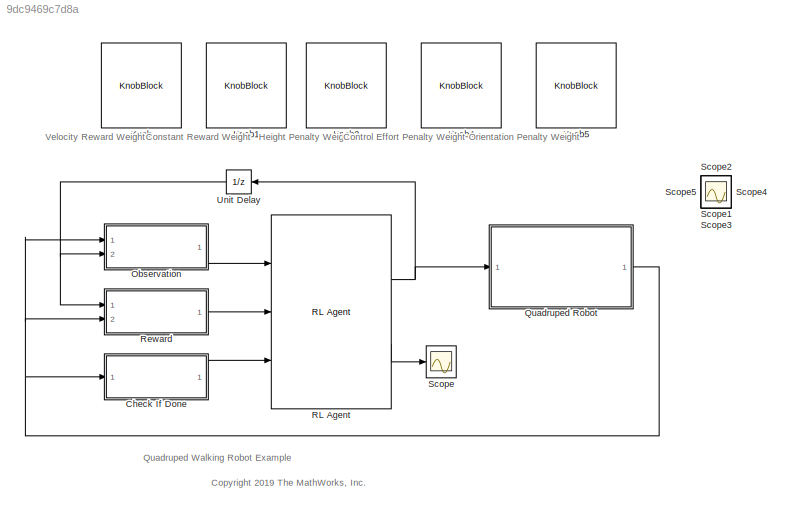
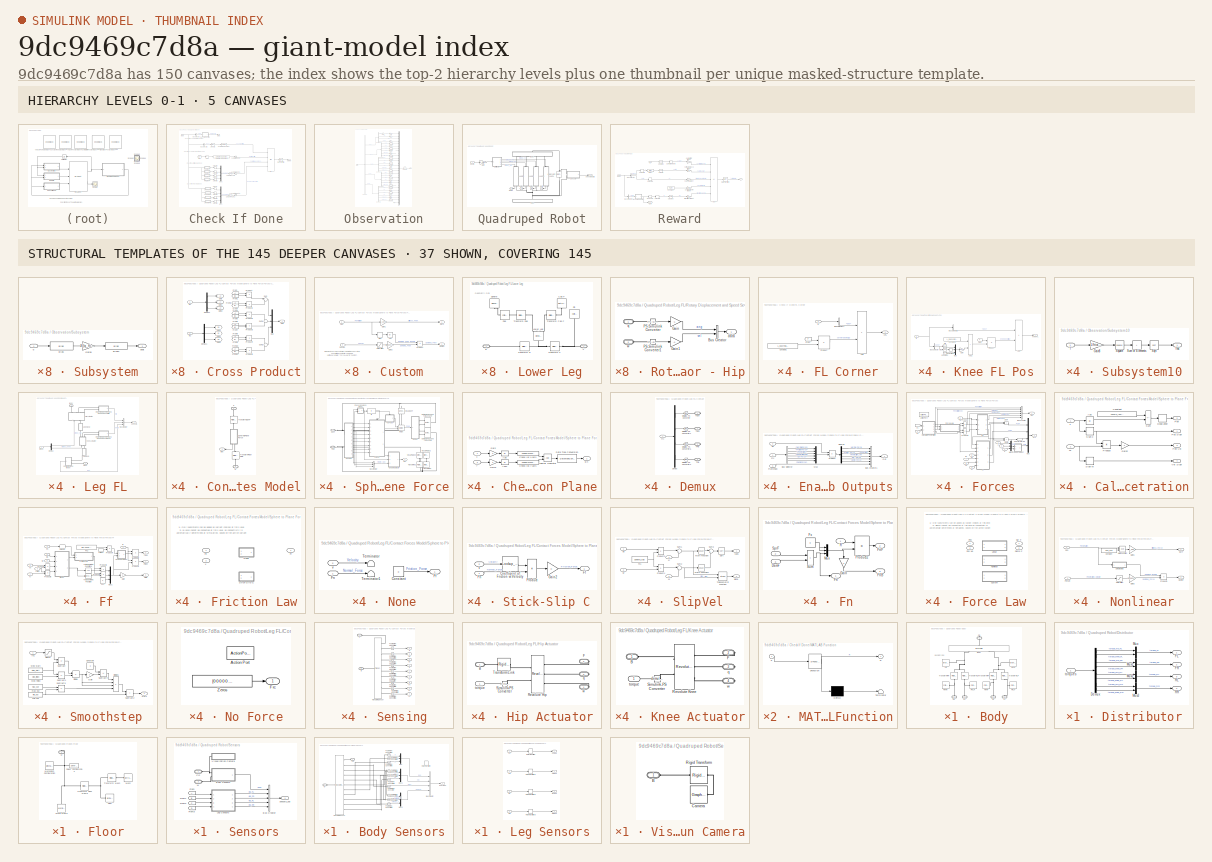
[diagram: thumbnail index - top-2 hierarchy levels (5 canvases) + 37 structural-template representatives of the remaining 145 canvases]
MODEL slx_9dc9469c7d8a
KIND model
CONFIG AbsTol = 1e-4
CONFIG EnableMultiTasking = on
CONFIG FixedStep = auto
CONFIG MaxStep = auto
CONFIG MinStep = auto
CONFIG RelTol = 1e-3
CONFIG SampleTimeConstraint = Unconstrained
CONFIG Solver = ode23t
CONFIG SolverName = ode23t
CONFIG StartTime = 0.0
CONFIG StopTime = Tf
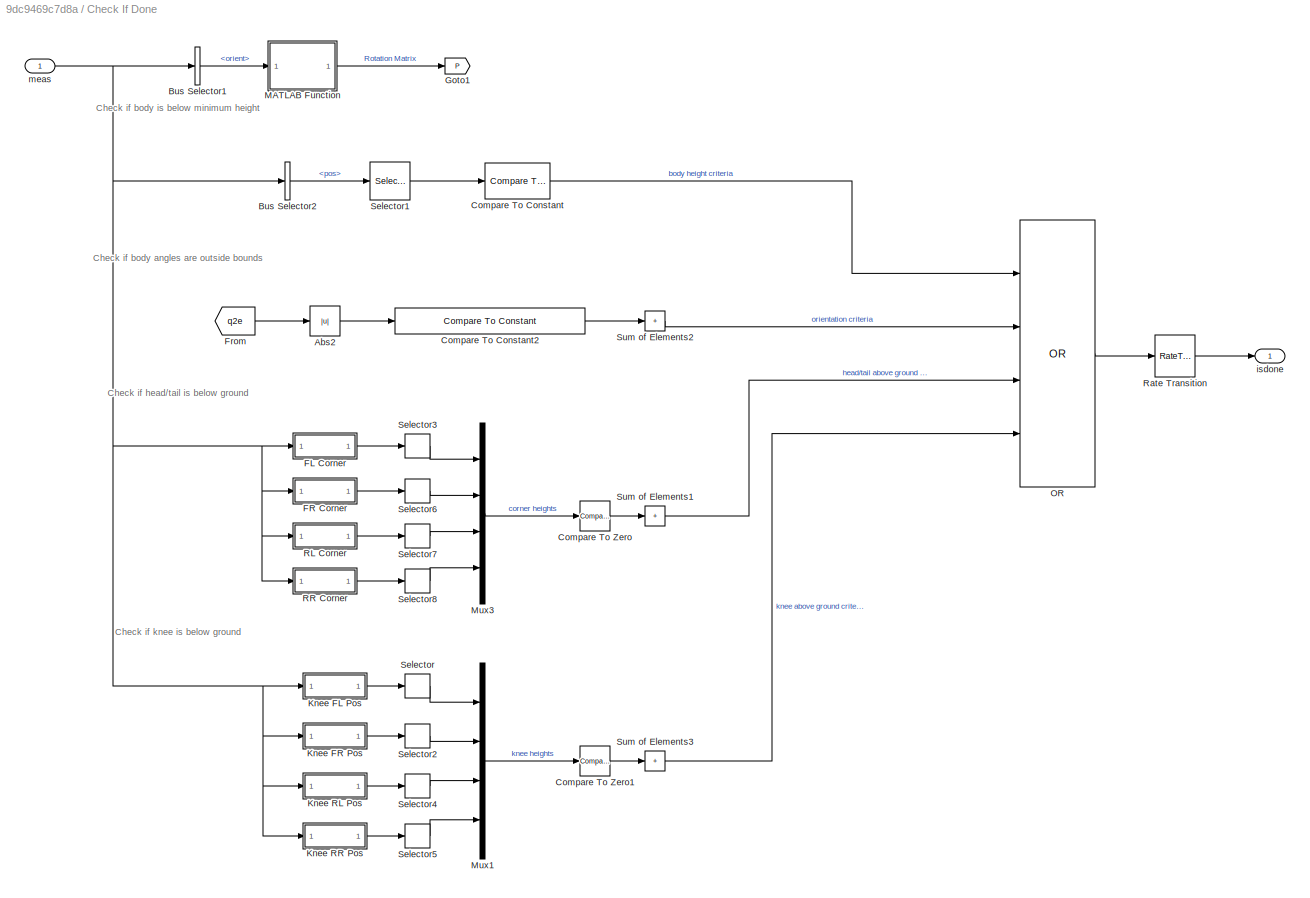
BLOCK [SubSystem] Check If Done
  Ports = [1, 1]
  RequestExecContextInheritance = off
BLOCK [Abs] Check If Done/Abs2
  SaturateOnIntegerOverflow = off
  ZeroCross = off
BLOCK [BusSelector] Check If Done/Bus Selector1
  OutputSignals = body.orient
  Ports = [1, 1]
BLOCK [BusSelector] Check If Done/Bus Selector2
  OutputSignals = body.pos
  Ports = [1, 1]
BLOCK [Reference] Check If Done/Compare To Constant  REF=simulink/Logic and Bit
Operations/Compare
To Constant
  Ports = [1, 1]
  SourceBlock = simulink/Logic and Bit\nOperations/Compare\nTo Constant
  SourceProductBaseCode = SL
  SourceType = Compare To Constant
BLOCK [Reference] Check If Done/Compare To Constant2  REF=simulink/Logic and Bit
Operations/Compare
To Constant
  Ports = [1, 1]
  SourceBlock = simulink/Logic and Bit\nOperations/Compare\nTo Constant
  SourceProductBaseCode = SL
  SourceType = Compare To Constant
BLOCK [Reference] Check If Done/Compare To Zero  REF=simulink/Logic and Bit
Operations/Compare
To Zero
  Ports = [1, 1]
  SourceBlock = simulink/Logic and Bit\nOperations/Compare\nTo Zero
  SourceProductBaseCode = SL
  SourceType = Compare To Zero
BLOCK [Reference] Check If Done/Compare To Zero1  REF=simulink/Logic and Bit
Operations/Compare
To Zero
  Ports = [1, 1]
  SourceBlock = simulink/Logic and Bit\nOperations/Compare\nTo Zero
  SourceProductBaseCode = SL
  SourceType = Compare To Zero
BLOCK [SubSystem] Check If Done/FL Corner
  Ports = [1, 1]
  RequestExecContextInheritance = off
BLOCK [Sum] Check If Done/FL Corner/Add
  IconShape = rectangular
  Ports = [2, 1]
BLOCK [BusSelector] Check If Done/FL Corner/Bus Selector1
  OutputSignals = body.pos
  Ports = [1, 1]
BLOCK [Constant] Check If Done/FL Corner/Constant1
  SampleTime = -1
  Value = L_back*[0.5; -0.5*0.1; 0.5*0.1]
BLOCK [From] Check If Done/FL Corner/From
  GotoTag = P
  TagVisibility = global
BLOCK [Product] Check If Done/FL Corner/Product
  Multiplication = Matrix(*)
  Ports = [2, 1]
BLOCK [Outport] Check If Done/FL Corner/cFL
  VectorParamsAs1DForOutWhenUnconnected = off
BLOCK [Inport] Check If Done/FL Corner/in
BLOCK [SubSystem] Check If Done/FR Corner
  Ports = [1, 1]
  RequestExecContextInheritance = off
BLOCK [Sum] Check If Done/FR Corner/Add
  IconShape = rectangular
  Ports = [2, 1]
BLOCK [BusSelector] Check If Done/FR Corner/Bus Selector1
  OutputSignals = body.pos
  Ports = [1, 1]
BLOCK [Constant] Check If Done/FR Corner/Constant1
  SampleTime = -1
  Value = L_back*[0.5; -0.5*0.1; -0.5*0.1]
BLOCK [From] Check If Done/FR Corner/From
  GotoTag = P
  TagVisibility = global
BLOCK [Product] Check If Done/FR Corner/Product
  Multiplication = Matrix(*)
  Ports = [2, 1]
BLOCK [Outport] Check If Done/FR Corner/cFR
  VectorParamsAs1DForOutWhenUnconnected = off
BLOCK [Inport] Check If Done/FR Corner/in
BLOCK [From] Check If Done/From
  GotoTag = q2e
  TagVisibility = global
BLOCK [Goto] Check If Done/Goto1
  GotoTag = P
  TagVisibility = global
BLOCK [SubSystem] Check If Done/Knee FL Pos
  Ports = [1, 1]
  RequestExecContextInheritance = off
BLOCK [Sum] Check If Done/Knee FL Pos/Add
  IconShape = rectangular
  Ports = [2, 1]
BLOCK [Sum] Check If Done/Knee FL Pos/Add1
  IconShape = rectangular
  Ports = [2, 1]
BLOCK [BusSelector] Check If Done/Knee FL Pos/Bus Selector
  OutputSignals = leg_FL.hip.ang
  Ports = [1, 1]
BLOCK [BusSelector] Check If Done/Knee FL Pos/Bus Selector1
  OutputSignals = body.pos
  Ports = [1, 1]
BLOCK [Constant] Check If Done/Knee FL Pos/Constant
  SampleTime = -1
  Value = 0
BLOCK [Constant] Check If Done/Knee FL Pos/Constant1
  SampleTime = -1
  Value = L_back*[0.5; 0; 0.5*0.1]
BLOCK [From] Check If Done/Knee FL Pos/From
  GotoTag = P
  TagVisibility = global
BLOCK [Gain] Check If Done/Knee FL Pos/Gain
  Gain = l1*1.1
BLOCK [Mux] Check If Done/Knee FL Pos/Mux
  DisplayOption = bar
  Inputs = 3
  Ports = [3, 1]
BLOCK [Product] Check If Done/Knee FL Pos/Product
  Multiplication = Matrix(*)
  Ports = [2, 1]
BLOCK [Trigonometry] Check If Done/Knee FL Pos/Sin
  Ports = [1, 1]
BLOCK [Trigonometry] Check If Done/Knee FL Pos/Sin1
  Operator = cos
  Ports = [1, 1]
BLOCK [UnaryMinus] Check If Done/Knee FL Pos/Unary Minus
BLOCK [Inport] Check If Done/Knee FL Pos/in
BLOCK [Outport] Check If Done/Knee FL Pos/kneeFL
  VectorParamsAs1DForOutWhenUnconnected = off
BLOCK [SubSystem] Check If Done/Knee FR Pos
  Ports = [1, 1]
  RequestExecContextInheritance = off
BLOCK [Sum] Check If Done/Knee FR Pos/Add
  IconShape = rectangular
  Ports = [2, 1]
BLOCK [Sum] Check If Done/Knee FR Pos/Add1
  IconShape = rectangular
  Ports = [2, 1]
BLOCK [BusSelector] Check If Done/Knee FR Pos/Bus Selector
  OutputSignals = leg_FR.hip.ang
  Ports = [1, 1]
BLOCK [BusSelector] Check If Done/Knee FR Pos/Bus Selector1
  OutputSignals = body.pos
  Ports = [1, 1]
BLOCK [Constant] Check If Done/Knee FR Pos/Constant
  SampleTime = -1
  Value = 0
BLOCK [Constant] Check If Done/Knee FR Pos/Constant1
  SampleTime = -1
  Value = L_back*[0.5; 0; -0.5*0.1]
BLOCK [From] Check If Done/Knee FR Pos/From
  GotoTag = P
  TagVisibility = global
BLOCK [Gain] Check If Done/Knee FR Pos/Gain
  Gain = l1*1.1
BLOCK [Mux] Check If Done/Knee FR Pos/Mux
  DisplayOption = bar
  Inputs = 3
  Ports = [3, 1]
BLOCK [Product] Check If Done/Knee FR Pos/Product
  Multiplication = Matrix(*)
  Ports = [2, 1]
BLOCK [Trigonometry] Check If Done/Knee FR Pos/Sin
  Ports = [1, 1]
BLOCK [Trigonometry] Check If Done/Knee FR Pos/Sin1
  Operator = cos
  Ports = [1, 1]
BLOCK [UnaryMinus] Check If Done/Knee FR Pos/Unary Minus
BLOCK [Inport] Check If Done/Knee FR Pos/in
BLOCK [Outport] Check If Done/Knee FR Pos/kneeFR
  VectorParamsAs1DForOutWhenUnconnected = off
BLOCK [SubSystem] Check If Done/Knee RL Pos
  Ports = [1, 1]
  RequestExecContextInheritance = off
BLOCK [Sum] Check If Done/Knee RL Pos/Add
  IconShape = rectangular
  Ports = [2, 1]
BLOCK [Sum] Check If Done/Knee RL Pos/Add1
  IconShape = rectangular
  Ports = [2, 1]
BLOCK [BusSelector] Check If Done/Knee RL Pos/Bus Selector
  OutputSignals = leg_RL.hip.ang
  Ports = [1, 1]
BLOCK [BusSelector] Check If Done/Knee RL Pos/Bus Selector1
  OutputSignals = body.pos
  Ports = [1, 1]
BLOCK [Constant] Check If Done/Knee RL Pos/Constant
  SampleTime = -1
  Value = 0
BLOCK [Constant] Check If Done/Knee RL Pos/Constant1
  SampleTime = -1
  Value = L_back*[-0.5; 0; 0.5*0.1]
BLOCK [From] Check If Done/Knee RL Pos/From
  GotoTag = P
  TagVisibility = global
BLOCK [Gain] Check If Done/Knee RL Pos/Gain
  Gain = l1*1.1
BLOCK [Mux] Check If Done/Knee RL Pos/Mux
  DisplayOption = bar
  Inputs = 3
  Ports = [3, 1]
BLOCK [Product] Check If Done/Knee RL Pos/Product
  Multiplication = Matrix(*)
  Ports = [2, 1]
BLOCK [Trigonometry] Check If Done/Knee RL Pos/Sin
  Ports = [1, 1]
BLOCK [Trigonometry] Check If Done/Knee RL Pos/Sin1
  Operator = cos
  Ports = [1, 1]
BLOCK [UnaryMinus] Check If Done/Knee RL Pos/Unary Minus
BLOCK [Inport] Check If Done/Knee RL Pos/in
BLOCK [Outport] Check If Done/Knee RL Pos/kneeRL
  VectorParamsAs1DForOutWhenUnconnected = off
BLOCK [SubSystem] Check If Done/Knee RR Pos
  Ports = [1, 1]
  RequestExecContextInheritance = off
BLOCK [Sum] Check If Done/Knee RR Pos/Add
  IconShape = rectangular
  Ports = [2, 1]
BLOCK [Sum] Check If Done/Knee RR Pos/Add1
  IconShape = rectangular
  Ports = [2, 1]
BLOCK [BusSelector] Check If Done/Knee RR Pos/Bus Selector
  OutputSignals = leg_RR.hip.ang
  Ports = [1, 1]
BLOCK [BusSelector] Check If Done/Knee RR Pos/Bus Selector1
  OutputSignals = body.pos
  Ports = [1, 1]
BLOCK [Constant] Check If Done/Knee RR Pos/Constant
  SampleTime = -1
  Value = 0
BLOCK [Constant] Check If Done/Knee RR Pos/Constant1
  SampleTime = -1
  Value = L_back*[-0.5; 0; -0.5*0.1]
BLOCK [From] Check If Done/Knee RR Pos/From
  GotoTag = P
  TagVisibility = global
BLOCK [Gain] Check If Done/Knee RR Pos/Gain
  Gain = l1*1.1
BLOCK [Mux] Check If Done/Knee RR Pos/Mux
  DisplayOption = bar
  Inputs = 3
  Ports = [3, 1]
BLOCK [Product] Check If Done/Knee RR Pos/Product
  Multiplication = Matrix(*)
  Ports = [2, 1]
BLOCK [Trigonometry] Check If Done/Knee RR Pos/Sin
  Ports = [1, 1]
BLOCK [Trigonometry] Check If Done/Knee RR Pos/Sin1
  Operator = cos
  Ports = [1, 1]
BLOCK [UnaryMinus] Check If Done/Knee RR Pos/Unary Minus
BLOCK [Inport] Check If Done/Knee RR Pos/in
BLOCK [Outport] Check If Done/Knee RR Pos/kneeRR
  VectorParamsAs1DForOutWhenUnconnected = off
BLOCK [SubSystem] Check If Done/MATLAB Function
  ErrorFcn = Stateflow.Translate.translate
  PermitHierarchicalResolution = ExplicitOnly
  Ports = [1, 1]
  RequestExecContextInheritance = off
  SFBlockType = MATLAB Function
  TreatAsAtomicUnit = on
BLOCK [Demux] Check If Done/MATLAB Function/ Demux 
  Outputs = 1
  Ports = [1, 1]
BLOCK [S-Function] Check If Done/MATLAB Function/ SFunction 
  EnableBusSupport = off
  FunctionName = sf_sfun
  PortCounts = [1 2]
  Ports = [1, 2]
  SFcnIsStateOwnerBlock = off
  SFunctionDeploymentMode = off
  Tag = Stateflow S-Function 2
BLOCK [Terminator] Check If Done/MATLAB Function/ Terminator 
BLOCK [Outport] Check If Done/MATLAB Function/R
  VectorParamsAs1DForOutWhenUnconnected = off
BLOCK [Inport] Check If Done/MATLAB Function/q
BLOCK [Mux] Check If Done/Mux1
  DisplayOption = bar
  Ports = [4, 1]
BLOCK [Mux] Check If Done/Mux3
  DisplayOption = bar
  Ports = [4, 1]
BLOCK [Logic] Check If Done/OR
  AllPortsSameDT = off
  Inputs = 4
  Operator = OR
  OutDataTypeStr = boolean
  Ports = [4, 1]
BLOCK [SubSystem] Check If Done/RL Corner
  Ports = [1, 1]
  RequestExecContextInheritance = off
BLOCK [Sum] Check If Done/RL Corner/Add
  IconShape = rectangular
  Ports = [2, 1]
BLOCK [BusSelector] Check If Done/RL Corner/Bus Selector1
  OutputSignals = body.pos
  Ports = [1, 1]
BLOCK [Constant] Check If Done/RL Corner/Constant1
  SampleTime = -1
  Value = L_back*[-0.5; 0.5*0.1; 0.5*0.1]
BLOCK [From] Check If Done/RL Corner/From
  GotoTag = P
  TagVisibility = global
BLOCK [Product] Check If Done/RL Corner/Product
  Multiplication = Matrix(*)
  Ports = [2, 1]
BLOCK [Outport] Check If Done/RL Corner/cRL
  VectorParamsAs1DForOutWhenUnconnected = off
BLOCK [Inport] Check If Done/RL Corner/in
BLOCK [SubSystem] Check If Done/RR Corner
  Ports = [1, 1]
  RequestExecContextInheritance = off
BLOCK [Sum] Check If Done/RR Corner/Add
  IconShape = rectangular
  Ports = [2, 1]
BLOCK [BusSelector] Check If Done/RR Corner/Bus Selector1
  OutputSignals = body.pos
  Ports = [1, 1]
BLOCK [Constant] Check If Done/RR Corner/Constant1
  SampleTime = -1
  Value = L_back*[-0.5; -0.5*0.1; -0.5*0.1]
BLOCK [From] Check If Done/RR Corner/From
  GotoTag = P
  TagVisibility = global
BLOCK [Product] Check If Done/RR Corner/Product
  Multiplication = Matrix(*)
  Ports = [2, 1]
BLOCK [Outport] Check If Done/RR Corner/cRR
  VectorParamsAs1DForOutWhenUnconnected = off
BLOCK [Inport] Check If Done/RR Corner/in
BLOCK [RateTransition] Check If Done/Rate Transition
BLOCK [Selector] Check If Done/Selector
  IndexOptions = Index vector (dialog)
  Indices = 2
  InputPortWidth = 3
  OutputSizes = 1
  Ports = [1, 1]
BLOCK [Selector] Check If Done/Selector1
  IndexOptions = Index vector (dialog)
  Indices = 2
  InputPortWidth = 3
  OutputSizes = 1
  Ports = [1, 1]
BLOCK [Selector] Check If Done/Selector2
  IndexOptions = Index vector (dialog)
  Indices = 2
  InputPortWidth = 3
  OutputSizes = 1
  Ports = [1, 1]
BLOCK [Selector] Check If Done/Selector3
  IndexOptions = Index vector (dialog)
  Indices = 2
  InputPortWidth = 3
  OutputSizes = 1
  Ports = [1, 1]
BLOCK [Selector] Check If Done/Selector4
  IndexOptions = Index vector (dialog)
  Indices = 2
  InputPortWidth = 3
  OutputSizes = 1
  Ports = [1, 1]
BLOCK [Selector] Check If Done/Selector5
  IndexOptions = Index vector (dialog)
  Indices = 2
  InputPortWidth = 3
  OutputSizes = 1
  Ports = [1, 1]
BLOCK [Selector] Check If Done/Selector6
  IndexOptions = Index vector (dialog)
  Indices = 2
  InputPortWidth = 3
  OutputSizes = 1
  Ports = [1, 1]
BLOCK [Selector] Check If Done/Selector7
  IndexOptions = Index vector (dialog)
  Indices = 2
  InputPortWidth = 3
  OutputSizes = 1
  Ports = [1, 1]
BLOCK [Selector] Check If Done/Selector8
  IndexOptions = Index vector (dialog)
  Indices = 2
  InputPortWidth = 3
  OutputSizes = 1
  Ports = [1, 1]
BLOCK [Sum] Check If Done/Sum of Elements1
  IconShape = rectangular
  Inputs = +
  Ports = [1, 1]
BLOCK [Sum] Check If Done/Sum of Elements2
  IconShape = rectangular
  Inputs = +
  Ports = [1, 1]
BLOCK [Sum] Check If Done/Sum of Elements3
  IconShape = rectangular
  Inputs = +
  Ports = [1, 1]
BLOCK [Outport] Check If Done/isdone
  VectorParamsAs1DForOutWhenUnconnected = off
BLOCK [Inport] Check If Done/meas
BLOCK [KnobBlock] Knob
  LabelPosition = Hide
  ScaleMax = 10
  TickInterval = 1
BLOCK [KnobBlock] Knob1
  LabelPosition = Hide
  TickInterval = 10
BLOCK [KnobBlock] Knob2
  LabelPosition = Hide
  TickInterval = 10
BLOCK [KnobBlock] Knob4
  LabelPosition = Hide
  ScaleMax = 1
  TickInterval = 0.10000000000000001
BLOCK [KnobBlock] Knob5
  LabelPosition = Hide
  TickInterval = 10
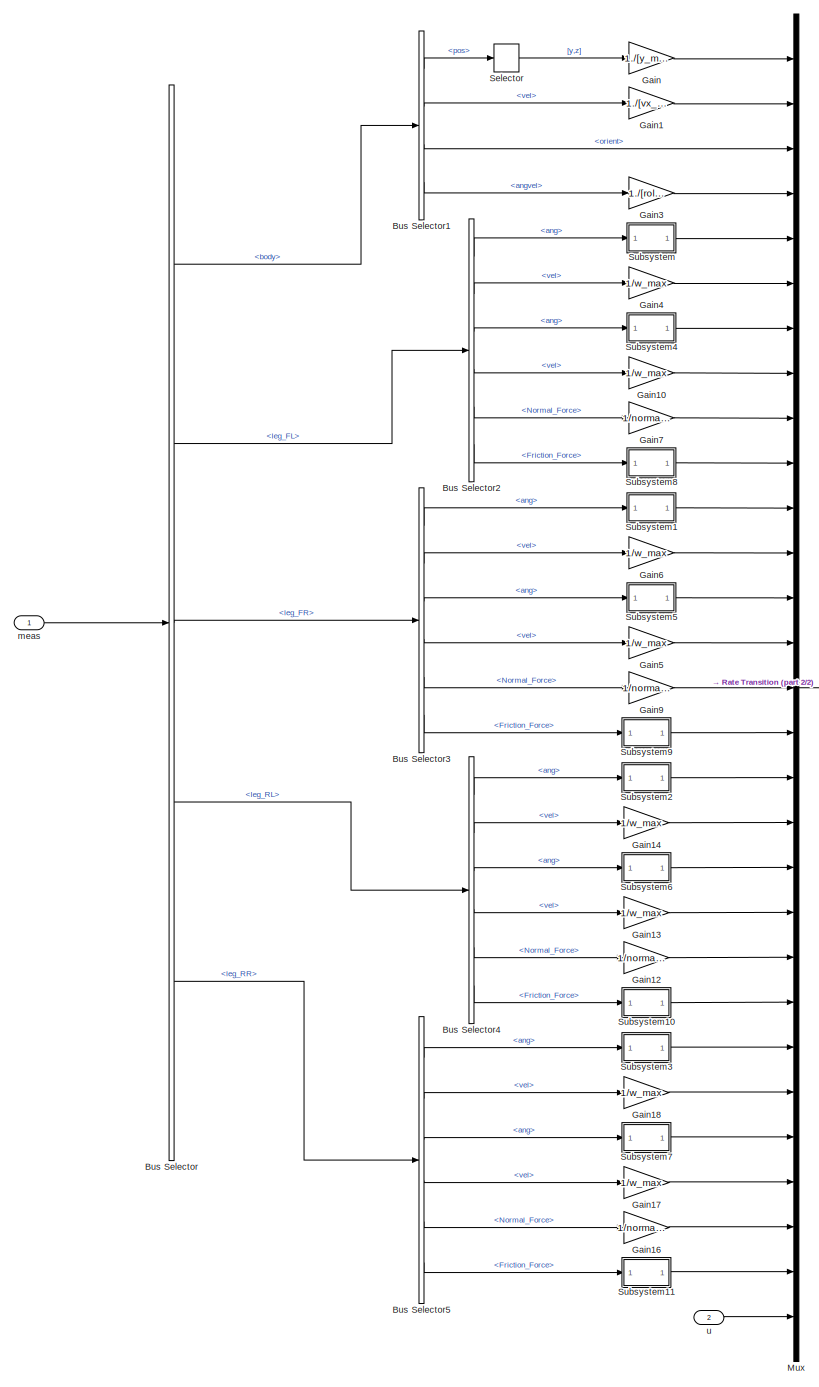
[diagram: Observation - part 1/2, most of the canvas]
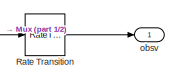
[diagram: Observation - part 2/2, middle right region]
BLOCK [SubSystem] Observation
  Ports = [2, 1]
  RequestExecContextInheritance = off
BLOCK [BusSelector] Observation/Bus Selector
  OutputSignals = body,leg_FL,leg_FR,leg_RL,leg_RR
  Ports = [1, 5]
BLOCK [BusSelector] Observation/Bus Selector1
  OutputSignals = pos,vel,orient,angvel
  Ports = [1, 4]
BLOCK [BusSelector] Observation/Bus Selector2
  OutputSignals = hip.ang,hip.vel,knee.ang,knee.vel,foot.Normal_Force,foot.Friction_Force
  Ports = [1, 6]
BLOCK [BusSelector] Observation/Bus Selector3
  OutputSignals = hip.ang,hip.vel,knee.ang,knee.vel,foot.Normal_Force,foot.Friction_Force
  Ports = [1, 6]
BLOCK [BusSelector] Observation/Bus Selector4
  OutputSignals = hip.ang,hip.vel,knee.ang,knee.vel,foot.Normal_Force,foot.Friction_Force
  Ports = [1, 6]
BLOCK [BusSelector] Observation/Bus Selector5
  OutputSignals = hip.ang,hip.vel,knee.ang,knee.vel,foot.Normal_Force,foot.Friction_Force
  Ports = [1, 6]
BLOCK [Gain] Observation/Gain
  Gain = 1./[y_max z_max]
BLOCK [Gain] Observation/Gain1
  Gain = 1./[vx_max vy_max vz_max]
BLOCK [Gain] Observation/Gain10
  Gain = 1/w_max
BLOCK [Gain] Observation/Gain12
  Gain = 1/normal_force_max
BLOCK [Gain] Observation/Gain13
  Gain = 1/w_max
BLOCK [Gain] Observation/Gain14
  Gain = 1/w_max
BLOCK [Gain] Observation/Gain16
  Gain = 1/normal_force_max
BLOCK [Gain] Observation/Gain17
  Gain = 1/w_max
BLOCK [Gain] Observation/Gain18
  Gain = 1/w_max
BLOCK [Gain] Observation/Gain3
  Gain = 1./[roll_max yaw_max pitch_max]
BLOCK [Gain] Observation/Gain4
  Gain = 1/w_max
BLOCK [Gain] Observation/Gain5
  Gain = 1/w_max
BLOCK [Gain] Observation/Gain6
  Gain = 1/w_max
BLOCK [Gain] Observation/Gain7
  Gain = 1/normal_force_max
BLOCK [Gain] Observation/Gain9
  Gain = 1/normal_force_max
BLOCK [Mux] Observation/Mux
  DisplayOption = bar
  Inputs = 29
  Ports = [29, 1]
BLOCK [RateTransition] Observation/Rate Transition
BLOCK [Selector] Observation/Selector
  IndexOptions = Index vector (dialog)
  Indices = [2 3]
  InputPortWidth = 3
  OutputSizes = 1
  Ports = [1, 1]
BLOCK [SubSystem] Observation/Subsystem
  Ports = [1, 1]
  RequestExecContextInheritance = off
BLOCK [Bias] Observation/Subsystem/Bias
  Bias = -q_hip_min
  SaturateOnIntegerOverflow = off
BLOCK [Bias] Observation/Subsystem/Bias1
  Bias = -1
  SaturateOnIntegerOverflow = off
BLOCK [Gain] Observation/Subsystem/Gain8
  Gain = 2/(q_hip_max-q_hip_min)
BLOCK [Inport] Observation/Subsystem/q
BLOCK [Outport] Observation/Subsystem/qhat
  VectorParamsAs1DForOutWhenUnconnected = off
BLOCK [SubSystem] Observation/Subsystem1
  Ports = [1, 1]
  RequestExecContextInheritance = off
BLOCK [Bias] Observation/Subsystem1/Bias
  Bias = -q_hip_min
  SaturateOnIntegerOverflow = off
BLOCK [Bias] Observation/Subsystem1/Bias1
  Bias = -1
  SaturateOnIntegerOverflow = off
BLOCK [Gain] Observation/Subsystem1/Gain8
  Gain = 2/(q_hip_max-q_hip_min)
BLOCK [Inport] Observation/Subsystem1/q
BLOCK [Outport] Observation/Subsystem1/qhat
  VectorParamsAs1DForOutWhenUnconnected = off
BLOCK [SubSystem] Observation/Subsystem10
  Ports = [1, 1]
  RequestExecContextInheritance = off
BLOCK [Gain] Observation/Subsystem10/Gain8
  Gain = 1/friction_force_max
BLOCK [Sqrt] Observation/Subsystem10/Sqrt
BLOCK [Math] Observation/Subsystem10/Square
  Operator = square
  Ports = [1, 1]
  SignedPower = on
BLOCK [Sum] Observation/Subsystem10/Sum of Elements
  IconShape = rectangular
  Inputs = +
  Ports = [1, 1]
BLOCK [Inport] Observation/Subsystem10/f
BLOCK [Outport] Observation/Subsystem10/fhat
  VectorParamsAs1DForOutWhenUnconnected = off
BLOCK [SubSystem] Observation/Subsystem11
  Ports = [1, 1]
  RequestExecContextInheritance = off
BLOCK [Gain] Observation/Subsystem11/Gain8
  Gain = 1/friction_force_max
BLOCK [Sqrt] Observation/Subsystem11/Sqrt
BLOCK [Math] Observation/Subsystem11/Square
  Operator = square
  Ports = [1, 1]
  SignedPower = on
BLOCK [Sum] Observation/Subsystem11/Sum of Elements
  IconShape = rectangular
  Inputs = +
  Ports = [1, 1]
BLOCK [Inport] Observation/Subsystem11/f
BLOCK [Outport] Observation/Subsystem11/fhat
  VectorParamsAs1DForOutWhenUnconnected = off
BLOCK [SubSystem] Observation/Subsystem2
  Ports = [1, 1]
  RequestExecContextInheritance = off
BLOCK [Bias] Observation/Subsystem2/Bias
  Bias = -q_hip_min
  SaturateOnIntegerOverflow = off
BLOCK [Bias] Observation/Subsystem2/Bias1
  Bias = -1
  SaturateOnIntegerOverflow = off
BLOCK [Gain] Observation/Subsystem2/Gain8
  Gain = 2/(q_hip_max-q_hip_min)
BLOCK [Inport] Observation/Subsystem2/q
BLOCK [Outport] Observation/Subsystem2/qhat
  VectorParamsAs1DForOutWhenUnconnected = off
BLOCK [SubSystem] Observation/Subsystem3
  Ports = [1, 1]
  RequestExecContextInheritance = off
BLOCK [Bias] Observation/Subsystem3/Bias
  Bias = -q_hip_min
  SaturateOnIntegerOverflow = off
BLOCK [Bias] Observation/Subsystem3/Bias1
  Bias = -1
  SaturateOnIntegerOverflow = off
BLOCK [Gain] Observation/Subsystem3/Gain8
  Gain = 2/(q_hip_max-q_hip_min)
BLOCK [Inport] Observation/Subsystem3/q
BLOCK [Outport] Observation/Subsystem3/qhat
  VectorParamsAs1DForOutWhenUnconnected = off
BLOCK [SubSystem] Observation/Subsystem4
  Ports = [1, 1]
  RequestExecContextInheritance = off
BLOCK [Bias] Observation/Subsystem4/Bias
  Bias = -q_knee_min
  SaturateOnIntegerOverflow = off
BLOCK [Bias] Observation/Subsystem4/Bias1
  Bias = -1
  SaturateOnIntegerOverflow = off
BLOCK [Gain] Observation/Subsystem4/Gain8
  Gain = 2/(q_knee_max-q_knee_min)
BLOCK [Inport] Observation/Subsystem4/q
BLOCK [Outport] Observation/Subsystem4/qhat
  VectorParamsAs1DForOutWhenUnconnected = off
BLOCK [SubSystem] Observation/Subsystem5
  Ports = [1, 1]
  RequestExecContextInheritance = off
BLOCK [Bias] Observation/Subsystem5/Bias
  Bias = -q_knee_min
  SaturateOnIntegerOverflow = off
BLOCK [Bias] Observation/Subsystem5/Bias1
  Bias = -1
  SaturateOnIntegerOverflow = off
BLOCK [Gain] Observation/Subsystem5/Gain8
  Gain = 2/(q_knee_max-q_knee_min)
BLOCK [Inport] Observation/Subsystem5/q
BLOCK [Outport] Observation/Subsystem5/qhat
  VectorParamsAs1DForOutWhenUnconnected = off
BLOCK [SubSystem] Observation/Subsystem6
  Ports = [1, 1]
  RequestExecContextInheritance = off
BLOCK [Bias] Observation/Subsystem6/Bias
  Bias = -q_knee_min
  SaturateOnIntegerOverflow = off
BLOCK [Bias] Observation/Subsystem6/Bias1
  Bias = -1
  SaturateOnIntegerOverflow = off
BLOCK [Gain] Observation/Subsystem6/Gain8
  Gain = 2/(q_knee_max-q_knee_min)
BLOCK [Inport] Observation/Subsystem6/q
BLOCK [Outport] Observation/Subsystem6/qhat
  VectorParamsAs1DForOutWhenUnconnected = off
BLOCK [SubSystem] Observation/Subsystem7
  Ports = [1, 1]
  RequestExecContextInheritance = off
BLOCK [Bias] Observation/Subsystem7/Bias
  Bias = -q_knee_min
  SaturateOnIntegerOverflow = off
BLOCK [Bias] Observation/Subsystem7/Bias1
  Bias = -1
  SaturateOnIntegerOverflow = off
BLOCK [Gain] Observation/Subsystem7/Gain8
  Gain = 2/(q_knee_max-q_knee_min)
BLOCK [Inport] Observation/Subsystem7/q
BLOCK [Outport] Observation/Subsystem7/qhat
  VectorParamsAs1DForOutWhenUnconnected = off
BLOCK [SubSystem] Observation/Subsystem8
  Ports = [1, 1]
  RequestExecContextInheritance = off
BLOCK [Gain] Observation/Subsystem8/Gain8
  Gain = 1/friction_force_max
BLOCK [Sqrt] Observation/Subsystem8/Sqrt
BLOCK [Math] Observation/Subsystem8/Square
  Operator = square
  Ports = [1, 1]
  SignedPower = on
BLOCK [Sum] Observation/Subsystem8/Sum of Elements
  IconShape = rectangular
  Inputs = +
  Ports = [1, 1]
BLOCK [Inport] Observation/Subsystem8/f
BLOCK [Outport] Observation/Subsystem8/fhat
  VectorParamsAs1DForOutWhenUnconnected = off
BLOCK [SubSystem] Observation/Subsystem9
  Ports = [1, 1]
  RequestExecContextInheritance = off
BLOCK [Gain] Observation/Subsystem9/Gain8
  Gain = 1/friction_force_max
BLOCK [Sqrt] Observation/Subsystem9/Sqrt
BLOCK [Math] Observation/Subsystem9/Square
  Operator = square
  Ports = [1, 1]
  SignedPower = on
BLOCK [Sum] Observation/Subsystem9/Sum of Elements
  IconShape = rectangular
  Inputs = +
  Ports = [1, 1]
BLOCK [Inport] Observation/Subsystem9/f
BLOCK [Outport] Observation/Subsystem9/fhat
  VectorParamsAs1DForOutWhenUnconnected = off
BLOCK [Inport] Observation/meas
BLOCK [Outport] Observation/obsv
  VectorParamsAs1DForOutWhenUnconnected = off
BLOCK [Inport] Observation/u
  Port = 2
BLOCK [SubSystem] Quadruped Robot
  Ports = [1, 1]
  RequestExecContextInheritance = off
BLOCK [Reference] Quadruped Robot/6-DOF Joint  REF=sm_lib/Joints/6-DOF Joint
  NameLocation = right
  Ports = [0, 0, 0, 0, 0, 1, 1]
  SourceBlock = sm_lib/Joints/6-DOF Joint
  SourceProductBaseCode = MS
  SourceType = 6-DOF Joint
BLOCK [SubSystem] Quadruped Robot/Body
  NameLocation = left
  Ports = [0, 0, 0, 0, 0, 4, 1]
  RequestExecContextInheritance = off
  Tag = CustomStyle
BLOCK [Reference] Quadruped Robot/Body/Body  REF=sm_lib/Body Elements/Brick Solid
  NameLocation = right
  Ports = [0, 0, 0, 0, 0, 2, 1]
  SourceBlock = sm_lib/Body Elements/Brick Solid
  SourceProductBaseCode = MS
  SourceType = Brick Solid
BLOCK [PMIOPort] Quadruped Robot/Body/CG
  NameLocation = right
  Side = Right
BLOCK [PMIOPort] Quadruped Robot/Body/LF
  NameLocation = right
  Port = 5
  Side = Left
BLOCK [PMIOPort] Quadruped Robot/Body/LR
  NameLocation = right
  Port = 3
  Side = Left
BLOCK [Reference] Quadruped Robot/Body/Nose  REF=sm_lib/Body Elements/Brick Solid
  Ports = [0, 0, 0, 0, 0, 1]
  SourceBlock = sm_lib/Body Elements/Brick Solid
  SourceProductBaseCode = MS
  SourceType = Brick Solid
BLOCK [Reference] Quadruped Robot/Body/Pin LF  REF=sm_lib/Body Elements/Cylindrical Solid
  Ports = [0, 0, 0, 0, 0, 1, 1]
  SourceBlock = sm_lib/Body Elements/Cylindrical Solid
  SourceProductBaseCode = MS
  SourceType = Cylindrical Solid
BLOCK [Reference] Quadruped Robot/Body/Pin LR  REF=sm_lib/Body Elements/Cylindrical Solid
  Ports = [0, 0, 0, 0, 0, 1, 1]
  SourceBlock = sm_lib/Body Elements/Cylindrical Solid
  SourceProductBaseCode = MS
  SourceType = Cylindrical Solid
BLOCK [Reference] Quadruped Robot/Body/Pin RF  REF=sm_lib/Body Elements/Cylindrical Solid
  Ports = [0, 0, 0, 0, 0, 1, 1]
  SourceBlock = sm_lib/Body Elements/Cylindrical Solid
  SourceProductBaseCode = MS
  SourceType = Cylindrical Solid
BLOCK [Reference] Quadruped Robot/Body/Pin RR  REF=sm_lib/Body Elements/Cylindrical Solid
  Ports = [0, 0, 0, 0, 0, 1, 1]
  SourceBlock = sm_lib/Body Elements/Cylindrical Solid
  SourceProductBaseCode = MS
  SourceType = Cylindrical Solid
BLOCK [PMIOPort] Quadruped Robot/Body/RF
  NameLocation = left
  Port = 4
  Side = Left
BLOCK [PMIOPort] Quadruped Robot/Body/RR
  NameLocation = left
  Port = 2
  Side = Left
BLOCK [Reference] Quadruped Robot/Body/Tail  REF=sm_lib/Body Elements/Brick Solid
  Ports = [0, 0, 0, 0, 0, 1]
  SourceBlock = sm_lib/Body Elements/Brick Solid
  SourceProductBaseCode = MS
  SourceType = Brick Solid
BLOCK [Reference] Quadruped Robot/Body/Transform LF  REF=sm_lib/Frames and
Transforms/Rigid
Transform
  NameLocation = right
  Ports = [0, 0, 0, 0, 0, 1, 1]
  SourceBlock = sm_lib/Frames and\nTransforms/Rigid\nTransform
  SourceProductBaseCode = MS
  SourceType = Rigid\nTransform
BLOCK [Reference] Quadruped Robot/Body/Transform LR  REF=sm_lib/Frames and
Transforms/Rigid
Transform
  NameLocation = right
  Ports = [0, 0, 0, 0, 0, 1, 1]
  SourceBlock = sm_lib/Frames and\nTransforms/Rigid\nTransform
  SourceProductBaseCode = MS
  SourceType = Rigid\nTransform
BLOCK [Reference] Quadruped Robot/Body/Transform RF  REF=sm_lib/Frames and
Transforms/Rigid
Transform
  NameLocation = left
  Ports = [0, 0, 0, 0, 0, 1, 1]
  SourceBlock = sm_lib/Frames and\nTransforms/Rigid\nTransform
  SourceProductBaseCode = MS
  SourceType = Rigid\nTransform
BLOCK [Reference] Quadruped Robot/Body/Transform RR  REF=sm_lib/Frames and
Transforms/Rigid
Transform
  NameLocation = left
  Ports = [0, 0, 0, 0, 0, 1, 1]
  SourceBlock = sm_lib/Frames and\nTransforms/Rigid\nTransform
  SourceProductBaseCode = MS
  SourceType = Rigid\nTransform
BLOCK [SubSystem] Quadruped Robot/Distributor
  Ports = [1, 4]
  RequestExecContextInheritance = off
BLOCK [Demux] Quadruped Robot/Distributor/Demux
  Outputs = 8
  Ports = [1, 8]
BLOCK [Outport] Quadruped Robot/Distributor/FL
  VectorParamsAs1DForOutWhenUnconnected = off
BLOCK [Outport] Quadruped Robot/Distributor/FR
  Port = 2
  VectorParamsAs1DForOutWhenUnconnected = off
BLOCK [Mux] Quadruped Robot/Distributor/Mux
  DisplayOption = bar
  Inputs = 2
  Ports = [2, 1]
BLOCK [Mux] Quadruped Robot/Distributor/Mux1
  DisplayOption = bar
  Inputs = 2
  Ports = [2, 1]
BLOCK [Mux] Quadruped Robot/Distributor/Mux2
  DisplayOption = bar
  Inputs = 2
  Ports = [2, 1]
BLOCK [Mux] Quadruped Robot/Distributor/Mux3
  DisplayOption = bar
  Inputs = 2
  Ports = [2, 1]
BLOCK [Outport] Quadruped Robot/Distributor/RL
  Port = 3
  VectorParamsAs1DForOutWhenUnconnected = off
BLOCK [Outport] Quadruped Robot/Distributor/RR
  Port = 4
  VectorParamsAs1DForOutWhenUnconnected = off
BLOCK [Inport] Quadruped Robot/Distributor/torques
BLOCK [SubSystem] Quadruped Robot/Floor
  NameLocation = left
  Ports = [0, 0, 0, 0, 0, 0, 1]
  RequestExecContextInheritance = off
BLOCK [Reference] Quadruped Robot/Floor/Floor  REF=sm_lib/Body Elements/Brick Solid
  NameLocation = top
  Ports = [0, 0, 0, 0, 0, 0, 1]
  SourceBlock = sm_lib/Body Elements/Brick Solid
  SourceProductBaseCode = MS
  SourceType = Brick Solid
BLOCK [Reference] Quadruped Robot/Floor/Mechanism Configuration  REF=sm_lib/Utilities/Mechanism
Configuration
  Ports = [0, 0, 0, 0, 0, 0, 1]
  SourceBlock = sm_lib/Utilities/Mechanism\nConfiguration
  SourceProductBaseCode = MS
  SourceType = Mechanism\nConfiguration
BLOCK [Reference] Quadruped Robot/Floor/Mesh  REF=sm_lib/Body Elements/Extruded Solid
  Ports = [0, 0, 0, 0, 0, 0, 1]
  SourceBlock = sm_lib/Body Elements/Extruded Solid
  SourceProductBaseCode = MS
  SourceType = Extruded Solid
BLOCK [Reference] Quadruped Robot/Floor/Solver Configuration  REF=nesl_utility/Solver
Configuration
  Ports = [0, 0, 0, 0, 0, 0, 1]
  SourceBlock = nesl_utility/Solver\nConfiguration
  SourceProductBaseCode = MT,SS
  SourceType = Solver\nConfiguration
BLOCK [Reference] Quadruped Robot/Floor/Transform Floor Frame  REF=sm_lib/Frames and
Transforms/Rigid
Transform
  NameLocation = top
  Ports = [0, 0, 0, 0, 0, 1, 1]
  SourceBlock = sm_lib/Frames and\nTransforms/Rigid\nTransform
  SourceProductBaseCode = MS
  SourceType = Rigid\nTransform
BLOCK [Reference] Quadruped Robot/Floor/Transform Mesh  REF=sm_lib/Frames and
Transforms/Rigid
Transform
  Ports = [0, 0, 0, 0, 0, 1, 1]
  SourceBlock = sm_lib/Frames and\nTransforms/Rigid\nTransform
  SourceProductBaseCode = MS
  SourceType = Rigid\nTransform
BLOCK [PMIOPort] Quadruped Robot/Floor/W
  NameLocation = right
  Side = Right
BLOCK [Reference] Quadruped Robot/Floor/World Frame  REF=sm_lib/Frames and
Transforms/World Frame
  NameLocation = right
  Ports = [0, 0, 0, 0, 0, 0, 1]
  SourceBlock = sm_lib/Frames and\nTransforms/World Frame
  SourceProductBaseCode = MS
  SourceType = World Frame
BLOCK [Gain] Quadruped Robot/Gain
  Gain = u_max
BLOCK [Goto] Quadruped Robot/Goto
  NameLocation = top
  TagVisibility = global
BLOCK [Goto] Quadruped Robot/Goto1
  GotoTag = B
  NameLocation = top
  TagVisibility = global
BLOCK [Goto] Quadruped Robot/Goto2
  GotoTag = C
  NameLocation = top
  TagVisibility = global
BLOCK [Goto] Quadruped Robot/Goto3
  GotoTag = D
  NameLocation = top
  TagVisibility = global
BLOCK [SubSystem] Quadruped Robot/Leg FL
  NameLocation = left
  Ports = [1, 1, 0, 0, 0, 1, 1]
  RequestExecContextInheritance = off
  Tag = PublishSubsystemCustomStyle
BLOCK [PMIOPort] Quadruped Robot/Leg FL/Body
  NameLocation = left
  Side = Left
BLOCK [BusCreator] Quadruped Robot/Leg FL/Bus Creator
  DisplayOption = bar
  InheritFromInputs = on
  Inputs = 3
  Ports = [3, 1]
BLOCK [SubSystem] Quadruped Robot/Leg FL/Contact Forces Model
  Ports = [0, 1, 0, 0, 0, 2]
  RequestExecContextInheritance = off
  VariantControl = SixDOF
BLOCK [PMIOPort] Quadruped Robot/Leg FL/Contact Forces Model/F
  NameLocation = right
  Side = Left
BLOCK [SubSystem] Quadruped Robot/Leg FL/Contact Forces Model/Sphere to Plane Force
  NameLocation = right
  Ports = [0, 1, 0, 0, 0, 1, 1]
  RequestExecContextInheritance = off
BLOCK [BusCreator] Quadruped Robot/Leg FL/Contact Forces Model/Sphere to Plane Force/Bus Creator
  DisplayOption = bar
  InheritFromInputs = on
  Inputs = 3
  Ports = [3, 1]
BLOCK [SubSystem] Quadruped Robot/Leg FL/Contact Forces Model/Sphere to Plane Force/Check Sphere on Plane
  NameLocation = top
  Ports = [2, 1]
  RequestExecContextInheritance = off
BLOCK [Abs] Quadruped Robot/Leg FL/Contact Forces Model/Sphere to Plane Force/Check Sphere on Plane/Abs
  SaturateOnIntegerOverflow = off
  ZeroCross = off
BLOCK [Abs] Quadruped Robot/Leg FL/Contact Forces Model/Sphere to Plane Force/Check Sphere on Plane/Abs1
  SaturateOnIntegerOverflow = off
  ZeroCross = off
BLOCK [Reference] Quadruped Robot/Leg FL/Contact Forces Model/Sphere to Plane Force/Check Sphere on Plane/Check loc x-axis  REF=simulink/Logic and Bit
Operations/Compare
To Constant
  NameLocation = top
  Ports = [1, 1]
  SourceBlock = simulink/Logic and Bit\nOperations/Compare\nTo Constant
  SourceProductBaseCode = SL
  SourceType = Compare To Constant
BLOCK [Reference] Quadruped Robot/Leg FL/Contact Forces Model/Sphere to Plane Force/Check Sphere on Plane/Check loc y-axis  REF=simulink/Logic and Bit
Operations/Compare
To Constant
  Ports = [1, 1]
  SourceBlock = simulink/Logic and Bit\nOperations/Compare\nTo Constant
  SourceProductBaseCode = SL
  SourceType = Compare To Constant
BLOCK [DataTypeConversion] Quadruped Robot/Leg FL/Contact Forces Model/Sphere to Plane Force/Check Sphere on Plane/Data Type Conversion
  RndMeth = Floor
  SaturateOnIntegerOverflow = off
BLOCK [Outport] Quadruped Robot/Leg FL/Contact Forces Model/Sphere to Plane Force/Check Sphere on Plane/En
  VectorParamsAs1DForOutWhenUnconnected = off
BLOCK [Gain] Quadruped Robot/Leg FL/Contact Forces Model/Sphere to Plane Force/Check Sphere on Plane/Gain
  Gain = 2
BLOCK [Gain] Quadruped Robot/Leg FL/Contact Forces Model/Sphere to Plane Force/Check Sphere on Plane/Gain1
  Gain = 2
BLOCK [Logic] Quadruped Robot/Leg FL/Contact Forces Model/Sphere to Plane Force/Check Sphere on Plane/Logical Operator
  AllPortsSameDT = off
  OutDataTypeStr = boolean
  Ports = [2, 1]
BLOCK [Inport] Quadruped Robot/Leg FL/Contact Forces Model/Sphere to Plane Force/Check Sphere on Plane/x
  NameLocation = top
BLOCK [Inport] Quadruped Robot/Leg FL/Contact Forces Model/Sphere to Plane Force/Check Sphere on Plane/y
  Port = 2
BLOCK [SubSystem] Quadruped Robot/Leg FL/Contact Forces Model/Sphere to Plane Force/Demux
  Ports = [1, 0, 0, 0, 0, 0, 4]
  RequestExecContextInheritance = off
BLOCK [Demux] Quadruped Robot/Leg FL/Contact Forces Model/Sphere to Plane Force/Demux/Demux
  Ports = [1, 4]
BLOCK [PMIOPort] Quadruped Robot/Leg FL/Contact Forces Model/Sphere to Plane Force/Demux/FPla
  Port = 3
  Side = Right
BLOCK [PMIOPort] Quadruped Robot/Leg FL/Contact Forces Model/Sphere to Plane Force/Demux/FSph
  Side = Right
BLOCK [Inport] Quadruped Robot/Leg FL/Contact Forces Model/Sphere to Plane Force/Demux/Frc
BLOCK [Reference] Quadruped Robot/Leg FL/Contact Forces Model/Sphere to Plane Force/Demux/Simulink-PS Converter  REF=nesl_utility/Simulink-PS
Converter
  Ports = [1, 0, 0, 0, 0, 0, 1]
  SourceBlock = nesl_utility/Simulink-PS\nConverter
  SourceProductBaseCode = MT,SS
  SourceType = Simulink-PS\nConverter
BLOCK [Reference] Quadruped Robot/Leg FL/Contact Forces Model/Sphere to Plane Force/Demux/Simulink-PS Converter1  REF=nesl_utility/Simulink-PS
Converter
  Ports = [1, 0, 0, 0, 0, 0, 1]
  SourceBlock = nesl_utility/Simulink-PS\nConverter
  SourceProductBaseCode = MT,SS
  SourceType = Simulink-PS\nConverter
BLOCK [Reference] Quadruped Robot/Leg FL/Contact Forces Model/Sphere to Plane Force/Demux/Simulink-PS Converter2  REF=nesl_utility/Simulink-PS
Converter
  Ports = [1, 0, 0, 0, 0, 0, 1]
  SourceBlock = nesl_utility/Simulink-PS\nConverter
  SourceProductBaseCode = MT,SS
  SourceType = Simulink-PS\nConverter
BLOCK [Reference] Quadruped Robot/Leg FL/Contact Forces Model/Sphere to Plane Force/Demux/Simulink-PS Converter6  REF=nesl_utility/Simulink-PS
Converter
  Ports = [1, 0, 0, 0, 0, 0, 1]
  SourceBlock = nesl_utility/Simulink-PS\nConverter
  SourceProductBaseCode = MT,SS
  SourceType = Simulink-PS\nConverter
BLOCK [PMIOPort] Quadruped Robot/Leg FL/Contact Forces Model/Sphere to Plane Force/Demux/TPla
  Port = 4
  Side = Right
BLOCK [PMIOPort] Quadruped Robot/Leg FL/Contact Forces Model/Sphere to Plane Force/Demux/TSph
  Port = 2
  Side = Right
BLOCK [SubSystem] Quadruped Robot/Leg FL/Contact Forces Model/Sphere to Plane Force/Enable Outputs
  NameLocation = top
  Ports = [3, 1]
  RequestExecContextInheritance = off
BLOCK [BusCreator] Quadruped Robot/Leg FL/Contact Forces Model/Sphere to Plane Force/Enable Outputs/Bus Creator1
  DisplayOption = bar
  InheritFromInputs = on
  Inputs = 7
  Ports = [7, 1]
BLOCK [BusSelector] Quadruped Robot/Leg FL/Contact Forces Model/Sphere to Plane Force/Enable Outputs/Bus Selector
  OutputSignals = Normal Force,Friction Force,Penetration,Penetration Vel,Spr Force,Damp Force
  Ports = [1, 6]
BLOCK [Demux] Quadruped Robot/Leg FL/Contact Forces Model/Sphere to Plane Force/Enable Outputs/Demux
  Outputs = [1 3 1 1 1 1]
  Ports = [1, 6]
BLOCK [Inport] Quadruped Robot/Leg FL/Contact Forces Model/Sphere to Plane Force/Enable Outputs/En
  Port = 2
BLOCK [Inport] Quadruped Robot/Leg FL/Contact Forces Model/Sphere to Plane Force/Enable Outputs/FrameSep
  Port = 3
BLOCK [Inport] Quadruped Robot/Leg FL/Contact Forces Model/Sphere to Plane Force/Enable Outputs/Frc
BLOCK [Mux] Quadruped Robot/Leg FL/Contact Forces Model/Sphere to Plane Force/Enable Outputs/Mux
  DisplayOption = bar
  Inputs = 6
  Ports = [6, 1]
BLOCK [Outport] Quadruped Robot/Leg FL/Contact Forces Model/Sphere to Plane Force/Enable Outputs/Out
  VectorParamsAs1DForOutWhenUnconnected = off
BLOCK [Product] Quadruped Robot/Leg FL/Contact Forces Model/Sphere to Plane Force/Enable Outputs/Product
  Ports = [2, 1]
BLOCK [Reference] Quadruped Robot/Leg FL/Contact Forces Model/Sphere to Plane Force/External Force and Torque PlaB  REF=sm_lib/Forces and
Torques/External Force
and Torque
  Ports = [0, 0, 0, 0, 0, 2, 1]
  SourceBlock = sm_lib/Forces and\nTorques/External Force\nand Torque
  SourceProductBaseCode = MS
  SourceType = External Force\nand Torque
BLOCK [Reference] Quadruped Robot/Leg FL/Contact Forces Model/Sphere to Plane Force/External Force and Torque SphF  REF=sm_lib/Forces and
Torques/External Force
and Torque
  NameLocation = top
  Ports = [0, 0, 0, 0, 0, 2, 1]
  SourceBlock = sm_lib/Forces and\nTorques/External Force\nand Torque
  SourceProductBaseCode = MS
  SourceType = External Force\nand Torque
BLOCK [SubSystem] Quadruped Robot/Leg FL/Contact Forces Model/Sphere to Plane Force/Forces
  Ports = [9, 2, 0, 0, 0, 0, 0, 1]
  RequestExecContextInheritance = off
BLOCK [ActionPort] Quadruped Robot/Leg FL/Contact Forces Model/Sphere to Plane Force/Forces/Action Port
  ActionPortLabel = if(u1>0)
BLOCK [BusCreator] Quadruped Robot/Leg FL/Contact Forces Model/Sphere to Plane Force/Forces/Bus Creator
  DisplayOption = bar
  InheritFromInputs = on
  Inputs = 6
  Ports = [6, 1]
BLOCK [SubSystem] Quadruped Robot/Leg FL/Contact Forces Model/Sphere to Plane Force/Forces/Calculate Penetration
  Ports = [2, 4]
  RequestExecContextInheritance = off
BLOCK [Abs] Quadruped Robot/Leg FL/Contact Forces Model/Sphere to Plane Force/Forces/Calculate Penetration/Abs
  NameLocation = top
  SaturateOnIntegerOverflow = off
  ZeroCross = off
BLOCK [Constant] Quadruped Robot/Leg FL/Contact Forces Model/Sphere to Plane Force/Forces/Calculate Penetration/Constant
  NameLocation = top
  Value = sphere_rad+plane_depth
BLOCK [DeadZone] Quadruped Robot/Leg FL/Contact Forces Model/Sphere to Plane Force/Forces/Calculate Penetration/Dead Zone
  LowerValue = -inf
  UpperValue = 0
BLOCK [Gain] Quadruped Robot/Leg FL/Contact Forces Model/Sphere to Plane Force/Forces/Calculate Penetration/Gain2
  Gain = -1
BLOCK [Outport] Quadruped Robot/Leg FL/Contact Forces Model/Sphere to Plane Force/Forces/Calculate Penetration/Pen
  Port = 2
  VectorParamsAs1DForOutWhenUnconnected = off
BLOCK [Outport] Quadruped Robot/Leg FL/Contact Forces Model/Sphere to Plane Force/Forces/Calculate Penetration/Pen Vel
  Port = 3
  VectorParamsAs1DForOutWhenUnconnected = off
BLOCK [Outport] Quadruped Robot/Leg FL/Contact Forces Model/Sphere to Plane Force/Forces/Calculate Penetration/Pos Sign
  VectorParamsAs1DForOutWhenUnconnected = off
BLOCK [Product] Quadruped Robot/Leg FL/Contact Forces Model/Sphere to Plane Force/Forces/Calculate Penetration/Product
  Ports = [2, 1]
BLOCK [Signum] Quadruped Robot/Leg FL/Contact Forces Model/Sphere to Plane Force/Forces/Calculate Penetration/Sign vx
  ZeroCross = off
BLOCK [Signum] Quadruped Robot/Leg FL/Contact Forces Model/Sphere to Plane Force/Forces/Calculate Penetration/Sign x
  ZeroCross = off
BLOCK [Sum] Quadruped Robot/Leg FL/Contact Forces Model/Sphere to Plane Force/Forces/Calculate Penetration/Sum
  IconShape = rectangular
  Inputs = +-
  Ports = [2, 1]
BLOCK [Outport] Quadruped Robot/Leg FL/Contact Forces Model/Sphere to Plane Force/Forces/Calculate Penetration/Vel Sign
  Port = 4
  VectorParamsAs1DForOutWhenUnconnected = off
BLOCK [Inport] Quadruped Robot/Leg FL/Contact Forces Model/Sphere to Plane Force/Forces/Calculate Penetration/vz
  Port = 2
BLOCK [Inport] Quadruped Robot/Leg FL/Contact Forces Model/Sphere to Plane Force/Forces/Calculate Penetration/z
BLOCK [SignalConversion] Quadruped Robot/Leg FL/Contact Forces Model/Sphere to Plane Force/Forces/Copy for Merge
  NameLocation = top
  OverrideOpt = off
BLOCK [SubSystem] Quadruped Robot/Leg FL/Contact Forces Model/Sphere to Plane Force/Forces/Cross Product
  Ports = [2, 1]
  RequestExecContextInheritance = off
BLOCK [Demux] Quadruped Robot/Leg FL/Contact Forces Model/Sphere to Plane Force/Forces/Cross Product/Demux1
  Outputs = 3
  Ports = [1, 3]
BLOCK [Demux] Quadruped Robot/Leg FL/Contact Forces Model/Sphere to Plane Force/Forces/Cross Product/Demux2
  Outputs = 3
  Ports = [1, 3]
BLOCK [From] Quadruped Robot/Leg FL/Contact Forces Model/Sphere to Plane Force/Forces/Cross Product/From
  GotoTag = Ay
BLOCK [From] Quadruped Robot/Leg FL/Contact Forces Model/Sphere to Plane Force/Forces/Cross Product/From1
  GotoTag = Bz
BLOCK [From] Quadruped Robot/Leg FL/Contact Forces Model/Sphere to Plane Force/Forces/Cross Product/From10
  GotoTag = Ay
BLOCK [From] Quadruped Robot/Leg FL/Contact Forces Model/Sphere to Plane Force/Forces/Cross Product/From11
  GotoTag = Bx
BLOCK [From] Quadruped Robot/Leg FL/Contact Forces Model/Sphere to Plane Force/Forces/Cross Product/From2
  GotoTag = Az
BLOCK [From] Quadruped Robot/Leg FL/Contact Forces Model/Sphere to Plane Force/Forces/Cross Product/From3
  GotoTag = By
BLOCK [From] Quadruped Robot/Leg FL/Contact Forces Model/Sphere to Plane Force/Forces/Cross Product/From4
  GotoTag = Az
BLOCK [From] Quadruped Robot/Leg FL/Contact Forces Model/Sphere to Plane Force/Forces/Cross Product/From5
  GotoTag = Bx
BLOCK [From] Quadruped Robot/Leg FL/Contact Forces Model/Sphere to Plane Force/Forces/Cross Product/From6
  GotoTag = Ax
BLOCK [From] Quadruped Robot/Leg FL/Contact Forces Model/Sphere to Plane Force/Forces/Cross Product/From7
  GotoTag = Bz
BLOCK [From] Quadruped Robot/Leg FL/Contact Forces Model/Sphere to Plane Force/Forces/Cross Product/From8
  GotoTag = Ax
BLOCK [From] Quadruped Robot/Leg FL/Contact Forces Model/Sphere to Plane Force/Forces/Cross Product/From9
  GotoTag = By
BLOCK [Goto] Quadruped Robot/Leg FL/Contact Forces Model/Sphere to Plane Force/Forces/Cross Product/Goto
  GotoTag = Ax
BLOCK [Goto] Quadruped Robot/Leg FL/Contact Forces Model/Sphere to Plane Force/Forces/Cross Product/Goto1
  GotoTag = Ay
BLOCK [Goto] Quadruped Robot/Leg FL/Contact Forces Model/Sphere to Plane Force/Forces/Cross Product/Goto2
  GotoTag = Az
BLOCK [Goto] Quadruped Robot/Leg FL/Contact Forces Model/Sphere to Plane Force/Forces/Cross Product/Goto3
  GotoTag = Bx
BLOCK [Goto] Quadruped Robot/Leg FL/Contact Forces Model/Sphere to Plane Force/Forces/Cross Product/Goto4
  GotoTag = By
BLOCK [Goto] Quadruped Robot/Leg FL/Contact Forces Model/Sphere to Plane Force/Forces/Cross Product/Goto5
  GotoTag = Bz
BLOCK [Inport] Quadruped Robot/Leg FL/Contact Forces Model/Sphere to Plane Force/Forces/Cross Product/In1
BLOCK [Inport] Quadruped Robot/Leg FL/Contact Forces Model/Sphere to Plane Force/Forces/Cross Product/In2
  Port = 2
BLOCK [Mux] Quadruped Robot/Leg FL/Contact Forces Model/Sphere to Plane Force/Forces/Cross Product/Mux
  DisplayOption = bar
  Inputs = 3
  Ports = [3, 1]
BLOCK [Outport] Quadruped Robot/Leg FL/Contact Forces Model/Sphere to Plane Force/Forces/Cross Product/Out1
  VectorParamsAs1DForOutWhenUnconnected = off
BLOCK [Product] Quadruped Robot/Leg FL/Contact Forces Model/Sphere to Plane Force/Forces/Cross Product/Product
  Ports = [2, 1]
BLOCK [Product] Quadruped Robot/Leg FL/Contact Forces Model/Sphere to Plane Force/Forces/Cross Product/Product1
  Ports = [2, 1]
BLOCK [Product] Quadruped Robot/Leg FL/Contact Forces Model/Sphere to Plane Force/Forces/Cross Product/Product2
  Ports = [2, 1]
BLOCK [Product] Quadruped Robot/Leg FL/Contact Forces Model/Sphere to Plane Force/Forces/Cross Product/Product3
  Ports = [2, 1]
BLOCK [Product] Quadruped Robot/Leg FL/Contact Forces Model/Sphere to Plane Force/Forces/Cross Product/Product4
  Ports = [2, 1]
BLOCK [Product] Quadruped Robot/Leg FL/Contact Forces Model/Sphere to Plane Force/Forces/Cross Product/Product5
  Ports = [2, 1]
BLOCK [Sum] Quadruped Robot/Leg FL/Contact Forces Model/Sphere to Plane Force/Forces/Cross Product/Sum
  Inputs = +|-
  Ports = [2, 1]
BLOCK [Sum] Quadruped Robot/Leg FL/Contact Forces Model/Sphere to Plane Force/Forces/Cross Product/Sum1
  Inputs = +|-
  Ports = [2, 1]
BLOCK [Sum] Quadruped Robot/Leg FL/Contact Forces Model/Sphere to Plane Force/Forces/Cross Product/Sum2
  Inputs = +|-
  Ports = [2, 1]
BLOCK [SubSystem] Quadruped Robot/Leg FL/Contact Forces Model/Sphere to Plane Force/Forces/Ff
  Ports = [7, 3]
  RequestExecContextInheritance = off
BLOCK [SubSystem] Quadruped Robot/Leg FL/Contact Forces Model/Sphere to Plane Force/Forces/Ff/Cross Product
  Ports = [2, 1]
  RequestExecContextInheritance = off
BLOCK [Demux] Quadruped Robot/Leg FL/Contact Forces Model/Sphere to Plane Force/Forces/Ff/Cross Product/Demux1
  Outputs = 3
  Ports = [1, 3]
BLOCK [Demux] Quadruped Robot/Leg FL/Contact Forces Model/Sphere to Plane Force/Forces/Ff/Cross Product/Demux2
  Outputs = 3
  Ports = [1, 3]
BLOCK [From] Quadruped Robot/Leg FL/Contact Forces Model/Sphere to Plane Force/Forces/Ff/Cross Product/From
  GotoTag = Ay
BLOCK [From] Quadruped Robot/Leg FL/Contact Forces Model/Sphere to Plane Force/Forces/Ff/Cross Product/From1
  GotoTag = Bz
BLOCK [From] Quadruped Robot/Leg FL/Contact Forces Model/Sphere to Plane Force/Forces/Ff/Cross Product/From10
  GotoTag = Ay
BLOCK [From] Quadruped Robot/Leg FL/Contact Forces Model/Sphere to Plane Force/Forces/Ff/Cross Product/From11
  GotoTag = Bx
BLOCK [From] Quadruped Robot/Leg FL/Contact Forces Model/Sphere to Plane Force/Forces/Ff/Cross Product/From2
  GotoTag = Az
BLOCK [From] Quadruped Robot/Leg FL/Contact Forces Model/Sphere to Plane Force/Forces/Ff/Cross Product/From3
  GotoTag = By
BLOCK [From] Quadruped Robot/Leg FL/Contact Forces Model/Sphere to Plane Force/Forces/Ff/Cross Product/From4
  GotoTag = Az
BLOCK [From] Quadruped Robot/Leg FL/Contact Forces Model/Sphere to Plane Force/Forces/Ff/Cross Product/From5
  GotoTag = Bx
BLOCK [From] Quadruped Robot/Leg FL/Contact Forces Model/Sphere to Plane Force/Forces/Ff/Cross Product/From6
  GotoTag = Ax
BLOCK [From] Quadruped Robot/Leg FL/Contact Forces Model/Sphere to Plane Force/Forces/Ff/Cross Product/From7
  GotoTag = Bz
BLOCK [From] Quadruped Robot/Leg FL/Contact Forces Model/Sphere to Plane Force/Forces/Ff/Cross Product/From8
  GotoTag = Ax
BLOCK [From] Quadruped Robot/Leg FL/Contact Forces Model/Sphere to Plane Force/Forces/Ff/Cross Product/From9
  GotoTag = By
BLOCK [Goto] Quadruped Robot/Leg FL/Contact Forces Model/Sphere to Plane Force/Forces/Ff/Cross Product/Goto
  GotoTag = Ax
BLOCK [Goto] Quadruped Robot/Leg FL/Contact Forces Model/Sphere to Plane Force/Forces/Ff/Cross Product/Goto1
  GotoTag = Ay
BLOCK [Goto] Quadruped Robot/Leg FL/Contact Forces Model/Sphere to Plane Force/Forces/Ff/Cross Product/Goto2
  GotoTag = Az
BLOCK [Goto] Quadruped Robot/Leg FL/Contact Forces Model/Sphere to Plane Force/Forces/Ff/Cross Product/Goto3
  GotoTag = Bx
BLOCK [Goto] Quadruped Robot/Leg FL/Contact Forces Model/Sphere to Plane Force/Forces/Ff/Cross Product/Goto4
  GotoTag = By
BLOCK [Goto] Quadruped Robot/Leg FL/Contact Forces Model/Sphere to Plane Force/Forces/Ff/Cross Product/Goto5
  GotoTag = Bz
BLOCK [Inport] Quadruped Robot/Leg FL/Contact Forces Model/Sphere to Plane Force/Forces/Ff/Cross Product/In1
BLOCK [Inport] Quadruped Robot/Leg FL/Contact Forces Model/Sphere to Plane Force/Forces/Ff/Cross Product/In2
  Port = 2
BLOCK [Mux] Quadruped Robot/Leg FL/Contact Forces Model/Sphere to Plane Force/Forces/Ff/Cross Product/Mux
  DisplayOption = bar
  Inputs = 3
  Ports = [3, 1]
BLOCK [Outport] Quadruped Robot/Leg FL/Contact Forces Model/Sphere to Plane Force/Forces/Ff/Cross Product/Out1
  VectorParamsAs1DForOutWhenUnconnected = off
BLOCK [Product] Quadruped Robot/Leg FL/Contact Forces Model/Sphere to Plane Force/Forces/Ff/Cross Product/Product
  Ports = [2, 1]
BLOCK [Product] Quadruped Robot/Leg FL/Contact Forces Model/Sphere to Plane Force/Forces/Ff/Cross Product/Product1
  Ports = [2, 1]
BLOCK [Product] Quadruped Robot/Leg FL/Contact Forces Model/Sphere to Plane Force/Forces/Ff/Cross Product/Product2
  Ports = [2, 1]
BLOCK [Product] Quadruped Robot/Leg FL/Contact Forces Model/Sphere to Plane Force/Forces/Ff/Cross Product/Product3
  Ports = [2, 1]
BLOCK [Product] Quadruped Robot/Leg FL/Contact Forces Model/Sphere to Plane Force/Forces/Ff/Cross Product/Product4
  Ports = [2, 1]
BLOCK [Product] Quadruped Robot/Leg FL/Contact Forces Model/Sphere to Plane Force/Forces/Ff/Cross Product/Product5
  Ports = [2, 1]
BLOCK [Sum] Quadruped Robot/Leg FL/Contact Forces Model/Sphere to Plane Force/Forces/Ff/Cross Product/Sum
  Inputs = +|-
  Ports = [2, 1]
BLOCK [Sum] Quadruped Robot/Leg FL/Contact Forces Model/Sphere to Plane Force/Forces/Ff/Cross Product/Sum1
  Inputs = +|-
  Ports = [2, 1]
BLOCK [Sum] Quadruped Robot/Leg FL/Contact Forces Model/Sphere to Plane Force/Forces/Ff/Cross Product/Sum2
  Inputs = +|-
  Ports = [2, 1]
BLOCK [Outport] Quadruped Robot/Leg FL/Contact Forces Model/Sphere to Plane Force/Forces/Ff/Ff Pla
  Port = 3
  VectorParamsAs1DForOutWhenUnconnected = off
BLOCK [Outport] Quadruped Robot/Leg FL/Contact Forces Model/Sphere to Plane Force/Forces/Ff/Ff Sph
  VectorParamsAs1DForOutWhenUnconnected = off
BLOCK [Inport] Quadruped Robot/Leg FL/Contact Forces Model/Sphere to Plane Force/Forces/Ff/Fn
  NameLocation = top
BLOCK [SubSystem] Quadruped Robot/Leg FL/Contact Forces Model/Sphere to Plane Force/Forces/Ff/Friction Law
  LabelModeActiveChoice = Stick_Slip_C
  Ports = [2, 1]
  RequestExecContextInheritance = off
  Variant = on
  VariantControlMode = Label
BLOCK [Outport] Quadruped Robot/Leg FL/Contact Forces Model/Sphere to Plane Force/Forces/Ff/Friction Law/Ff
  VectorParamsAs1DForOutWhenUnconnected = off
BLOCK [Inport] Quadruped Robot/Leg FL/Contact Forces Model/Sphere to Plane Force/Forces/Ff/Friction Law/Fn
BLOCK [SubSystem] Quadruped Robot/Leg FL/Contact Forces Model/Sphere to Plane Force/Forces/Ff/Friction Law/None
  Ports = [2, 1]
  RequestExecContextInheritance = off
  VariantControl = None
BLOCK [Constant] Quadruped Robot/Leg FL/Contact Forces Model/Sphere to Plane Force/Forces/Ff/Friction Law/None/Constant
  Value = 0
BLOCK [Outport] Quadruped Robot/Leg FL/Contact Forces Model/Sphere to Plane Force/Forces/Ff/Friction Law/None/Ff
  VectorParamsAs1DForOutWhenUnconnected = off
BLOCK [Inport] Quadruped Robot/Leg FL/Contact Forces Model/Sphere to Plane Force/Forces/Ff/Friction Law/None/Fn
BLOCK [Terminator] Quadruped Robot/Leg FL/Contact Forces Model/Sphere to Plane Force/Forces/Ff/Friction Law/None/Terminator
  NameLocation = top
BLOCK [Terminator] Quadruped Robot/Leg FL/Contact Forces Model/Sphere to Plane Force/Forces/Ff/Friction Law/None/Terminator1
BLOCK [Inport] Quadruped Robot/Leg FL/Contact Forces Model/Sphere to Plane Force/Forces/Ff/Friction Law/None/v
  Port = 2
BLOCK [SubSystem] Quadruped Robot/Leg FL/Contact Forces Model/Sphere to Plane Force/Forces/Ff/Friction Law/Stick-Slip C 
  Ports = [2, 1]
  RequestExecContextInheritance = off
  VariantControl = Stick_Slip_C
BLOCK [Lookup_n-D] Quadruped Robot/Leg FL/Contact Forces Model/Sphere to Plane Force/Forces/Ff/Friction Law/Stick-Slip C /Coefficient of Friction vs Velocity
  BreakpointsForDimension1 = [-3 -1.5 -1 1 1.5 3]*vth
  InternalRulePriority = Speed
  NameLocation = top
  NumberOfTableDimensions = 1
  Ports = [1, 1]
  Table = [-muk -muk -mus mus  muk muk]
BLOCK [Outport] Quadruped Robot/Leg FL/Contact Forces Model/Sphere to Plane Force/Forces/Ff/Friction Law/Stick-Slip C /Ff
  VectorParamsAs1DForOutWhenUnconnected = off
BLOCK [Inport] Quadruped Robot/Leg FL/Contact Forces Model/Sphere to Plane Force/Forces/Ff/Friction Law/Stick-Slip C /Fn
BLOCK [Gain] Quadruped Robot/Leg FL/Contact Forces Model/Sphere to Plane Force/Forces/Ff/Friction Law/Stick-Slip C /Gain2
  Multiplication = Matrix(K*u)
  OutDataTypeStr = Inherit: Same as input
  ParamDataTypeStr = Inherit: Same as input
  SaturateOnIntegerOverflow = on
BLOCK [Product] Quadruped Robot/Leg FL/Contact Forces Model/Sphere to Plane Force/Forces/Ff/Friction Law/Stick-Slip C /Product
  Ports = [2, 1]
  RndMeth = Zero
BLOCK [Inport] Quadruped Robot/Leg FL/Contact Forces Model/Sphere to Plane Force/Forces/Ff/Friction Law/Stick-Slip C /v
  Port = 2
BLOCK [Inport] Quadruped Robot/Leg FL/Contact Forces Model/Sphere to Plane Force/Forces/Ff/Friction Law/v
  Port = 2
BLOCK [Constant] Quadruped Robot/Leg FL/Contact Forces Model/Sphere to Plane Force/Forces/Ff/Fx1
  Value = 0
BLOCK [Constant] Quadruped Robot/Leg FL/Contact Forces Model/Sphere to Plane Force/Forces/Ff/Fx2
  Value = [0 0 -sphere_rad]
BLOCK [Gain] Quadruped Robot/Leg FL/Contact Forces Model/Sphere to Plane Force/Forces/Ff/Gain
  Gain = -1
BLOCK [Mux] Quadruped Robot/Leg FL/Contact Forces Model/Sphere to Plane Force/Forces/Ff/Mux1
  DisplayOption = bar
  Inputs = 3
  Ports = [3, 1]
BLOCK [Product] Quadruped Robot/Leg FL/Contact Forces Model/Sphere to Plane Force/Forces/Ff/Product1
  Inputs = /*
  Multiplication = Matrix(*)
  Ports = [2, 1]
BLOCK [Product] Quadruped Robot/Leg FL/Contact Forces Model/Sphere to Plane Force/Forces/Ff/Product2
  Inputs = /*
  Multiplication = Matrix(*)
  Ports = [2, 1]
BLOCK [Product] Quadruped Robot/Leg FL/Contact Forces Model/Sphere to Plane Force/Forces/Ff/Product3
  Ports = [2, 1]
BLOCK [Product] Quadruped Robot/Leg FL/Contact Forces Model/Sphere to Plane Force/Forces/Ff/Product4
  Ports = [2, 1]
BLOCK [Product] Quadruped Robot/Leg FL/Contact Forces Model/Sphere to Plane Force/Forces/Ff/Product5
  Ports = [2, 1]
BLOCK [Product] Quadruped Robot/Leg FL/Contact Forces Model/Sphere to Plane Force/Forces/Ff/Product6
  Ports = [2, 1]
BLOCK [Product] Quadruped Robot/Leg FL/Contact Forces Model/Sphere to Plane Force/Forces/Ff/Product7
  Ports = [2, 1]
BLOCK [Inport] Quadruped Robot/Leg FL/Contact Forces Model/Sphere to Plane Force/Forces/Ff/R
  NameLocation = top
  Port = 2
BLOCK [Selector] Quadruped Robot/Leg FL/Contact Forces Model/Sphere to Plane Force/Forces/Ff/Selector
  IndexOptions = Index vector (dialog)
  Indices = 3
  InputPortWidth = 3
  OutputSizes = 1
  Ports = [1, 1]
BLOCK [SubSystem] Quadruped Robot/Leg FL/Contact Forces Model/Sphere to Plane Force/Forces/Ff/SlipVel
  Ports = [4, 2]
  RequestExecContextInheritance = off
BLOCK [Constant] Quadruped Robot/Leg FL/Contact Forces Model/Sphere to Plane Force/Forces/Ff/SlipVel/Fx1
  Value = sphere_rad
BLOCK [Math] Quadruped Robot/Leg FL/Contact Forces Model/Sphere to Plane Force/Forces/Ff/SlipVel/Math Function
  Operator = square
  Ports = [1, 1]
  SignedPower = on
BLOCK [Math] Quadruped Robot/Leg FL/Contact Forces Model/Sphere to Plane Force/Forces/Ff/SlipVel/Math Function1
  Operator = square
  Ports = [1, 1]
  SignedPower = on
BLOCK [Product] Quadruped Robot/Leg FL/Contact Forces Model/Sphere to Plane Force/Forces/Ff/SlipVel/Product3
  Ports = [2, 1]
BLOCK [Product] Quadruped Robot/Leg FL/Contact Forces Model/Sphere to Plane Force/Forces/Ff/SlipVel/Product4
  Ports = [2, 1]
BLOCK [Sqrt] Quadruped Robot/Leg FL/Contact Forces Model/Sphere to Plane Force/Forces/Ff/SlipVel/Sqrt
BLOCK [Sum] Quadruped Robot/Leg FL/Contact Forces Model/Sphere to Plane Force/Forces/Ff/SlipVel/Sum1
  Inputs = |++
  Ports = [2, 1]
BLOCK [Sum] Quadruped Robot/Leg FL/Contact Forces Model/Sphere to Plane Force/Forces/Ff/SlipVel/Sum2
  Inputs = |-+
  Ports = [2, 1]
BLOCK [Sum] Quadruped Robot/Leg FL/Contact Forces Model/Sphere to Plane Force/Forces/Ff/SlipVel/Sum3
  Inputs = |++
  Ports = [2, 1]
BLOCK [Trigonometry] Quadruped Robot/Leg FL/Contact Forces Model/Sphere to Plane Force/Forces/Ff/SlipVel/Trigonometric Function
  Operator = atan2
  Ports = [2, 1]
BLOCK [Outport] Quadruped Robot/Leg FL/Contact Forces Model/Sphere to Plane Force/Forces/Ff/SlipVel/alpha
  Port = 2
  VectorParamsAs1DForOutWhenUnconnected = off
BLOCK [Outport] Quadruped Robot/Leg FL/Contact Forces Model/Sphere to Plane Force/Forces/Ff/SlipVel/vabs
  VectorParamsAs1DForOutWhenUnconnected = off
BLOCK [Inport] Quadruped Robot/Leg FL/Contact Forces Model/Sphere to Plane Force/Forces/Ff/SlipVel/vx
  Port = 3
BLOCK [Inport] Quadruped Robot/Leg FL/Contact Forces Model/Sphere to Plane Force/Forces/Ff/SlipVel/vy
  Port = 4
BLOCK [Inport] Quadruped Robot/Leg FL/Contact Forces Model/Sphere to Plane Force/Forces/Ff/SlipVel/wx
BLOCK [Inport] Quadruped Robot/Leg FL/Contact Forces Model/Sphere to Plane Force/Forces/Ff/SlipVel/wy
  Port = 2
BLOCK [Outport] Quadruped Robot/Leg FL/Contact Forces Model/Sphere to Plane Force/Forces/Ff/T Sph
  Port = 2
  VectorParamsAs1DForOutWhenUnconnected = off
BLOCK [Trigonometry] Quadruped Robot/Leg FL/Contact Forces Model/Sphere to Plane Force/Forces/Ff/Trigonometric Function
  Ports = [1, 1]
BLOCK [Trigonometry] Quadruped Robot/Leg FL/Contact Forces Model/Sphere to Plane Force/Forces/Ff/Trigonometric Function1
  Operator = cos
  Ports = [1, 1]
BLOCK [Inport] Quadruped Robot/Leg FL/Contact Forces Model/Sphere to Plane Force/Forces/Ff/vx
  Port = 6
BLOCK [Inport] Quadruped Robot/Leg FL/Contact Forces Model/Sphere to Plane Force/Forces/Ff/vy
  Port = 7
BLOCK [Inport] Quadruped Robot/Leg FL/Contact Forces Model/Sphere to Plane Force/Forces/Ff/wx
  NameLocation = top
  Port = 4
BLOCK [Inport] Quadruped Robot/Leg FL/Contact Forces Model/Sphere to Plane Force/Forces/Ff/wy
  NameLocation = top
  Port = 5
BLOCK [Inport] Quadruped Robot/Leg FL/Contact Forces Model/Sphere to Plane Force/Forces/Ff/zSign
  Port = 3
BLOCK [InportShadow] Quadruped Robot/Leg FL/Contact Forces Model/Sphere to Plane Force/Forces/Ff/zSign1
  Port = 3
BLOCK [SubSystem] Quadruped Robot/Leg FL/Contact Forces Model/Sphere to Plane Force/Forces/Fn
  Ports = [3, 3]
  RequestExecContextInheritance = off
BLOCK [Inport] Quadruped Robot/Leg FL/Contact Forces Model/Sphere to Plane Force/Forces/Fn/DamF
  Port = 3
BLOCK [Outport] Quadruped Robot/Leg FL/Contact Forces Model/Sphere to Plane Force/Forces/Fn/Fn
  VectorParamsAs1DForOutWhenUnconnected = off
BLOCK [Outport] Quadruped Robot/Leg FL/Contact Forces Model/Sphere to Plane Force/Forces/Fn/FnB
  Port = 3
  VectorParamsAs1DForOutWhenUnconnected = off
BLOCK [Outport] Quadruped Robot/Leg FL/Contact Forces Model/Sphere to Plane Force/Forces/Fn/FnF
  Port = 2
  VectorParamsAs1DForOutWhenUnconnected = off
BLOCK [Constant] Quadruped Robot/Leg FL/Contact Forces Model/Sphere to Plane Force/Forces/Fn/Fx
  Value = 0
BLOCK [Gain] Quadruped Robot/Leg FL/Contact Forces Model/Sphere to Plane Force/Forces/Fn/Gain
  Gain = -1
  NameLocation = left
BLOCK [Mux] Quadruped Robot/Leg FL/Contact Forces Model/Sphere to Plane Force/Forces/Fn/Mux
  DisplayOption = bar
  Inputs = 3
  Ports = [3, 1]
BLOCK [Product] Quadruped Robot/Leg FL/Contact Forces Model/Sphere to Plane Force/Forces/Fn/Product2
  Inputs = /*
  Multiplication = Matrix(*)
  Ports = [2, 1]
BLOCK [Inport] Quadruped Robot/Leg FL/Contact Forces Model/Sphere to Plane Force/Forces/Fn/R
BLOCK [Inport] Quadruped Robot/Leg FL/Contact Forces Model/Sphere to Plane Force/Forces/Fn/SprF
  NameLocation = top
  Port = 2
BLOCK [Sum] Quadruped Robot/Leg FL/Contact Forces Model/Sphere to Plane Force/Forces/Fn/Sum
  IconShape = rectangular
  Ports = [2, 1]
BLOCK [SubSystem] Quadruped Robot/Leg FL/Contact Forces Model/Sphere to Plane Force/Forces/Force Law
  LabelModeActiveChoice = Linear
  Ports = [2, 2]
  RequestExecContextInheritance = off
  Variant = on
  VariantControlMode = Label
BLOCK [SubSystem] Quadruped Robot/Leg FL/Contact Forces Model/Sphere to Plane Force/Forces/Force Law/Custom
  Ports = [2, 2]
  RequestExecContextInheritance = off
  VariantControl = Custom
BLOCK [Abs] Quadruped Robot/Leg FL/Contact Forces Model/Sphere to Plane Force/Forces/Force Law/Custom/Abs
  SaturateOnIntegerOverflow = off
  ZeroCross = off
BLOCK [Outport] Quadruped Robot/Leg FL/Contact Forces Model/Sphere to Plane Force/Forces/Force Law/Custom/Damp F
  Port = 2
  VectorParamsAs1DForOutWhenUnconnected = off
BLOCK [Gain] Quadruped Robot/Leg FL/Contact Forces Model/Sphere to Plane Force/Forces/Force Law/Custom/Gain1
  Gain = k_pen
  Multiplication = Matrix(K*u)
  OutDataTypeStr = Inherit: Same as input
  ParamDataTypeStr = Inherit: Same as input
  SaturateOnIntegerOverflow = on
BLOCK [Gain] Quadruped Robot/Leg FL/Contact Forces Model/Sphere to Plane Force/Forces/Force Law/Custom/Gain2
  Gain = -b_penvel
  Multiplication = Matrix(K*u)
  OutDataTypeStr = Inherit: Same as input
  ParamDataTypeStr = Inherit: Same as input
  SaturateOnIntegerOverflow = on
BLOCK [Inport] Quadruped Robot/Leg FL/Contact Forces Model/Sphere to Plane Force/Forces/Force Law/Custom/Pen
BLOCK [Inport] Quadruped Robot/Leg FL/Contact Forces Model/Sphere to Plane Force/Forces/Force Law/Custom/Pen Vel
  Port = 2
BLOCK [Product] Quadruped Robot/Leg FL/Contact Forces Model/Sphere to Plane Force/Forces/Force Law/Custom/Product
  Ports = [2, 1]
  RndMeth = Zero
BLOCK [Saturate] Quadruped Robot/Leg FL/Contact Forces Model/Sphere to Plane Force/Forces/Force Law/Custom/Saturation
  LowerLimit = 0
  UpperLimit = Inf
  ZeroCross = off
BLOCK [Signum] Quadruped Robot/Leg FL/Contact Forces Model/Sphere to Plane Force/Forces/Force Law/Custom/Sign
  ZeroCross = off
BLOCK [Outport] Quadruped Robot/Leg FL/Contact Forces Model/Sphere to Plane Force/Forces/Force Law/Custom/Spr F
  VectorParamsAs1DForOutWhenUnconnected = off
BLOCK [Outport] Quadruped Robot/Leg FL/Contact Forces Model/Sphere to Plane Force/Forces/Force Law/Damp F
  Port = 2
  VectorParamsAs1DForOutWhenUnconnected = off
BLOCK [SubSystem] Quadruped Robot/Leg FL/Contact Forces Model/Sphere to Plane Force/Forces/Force Law/Linear
  Ports = [2, 2]
  RequestExecContextInheritance = off
  VariantControl = Linear
BLOCK [Abs] Quadruped Robot/Leg FL/Contact Forces Model/Sphere to Plane Force/Forces/Force Law/Linear/Abs
  SaturateOnIntegerOverflow = off
  ZeroCross = off
BLOCK [Outport] Quadruped Robot/Leg FL/Contact Forces Model/Sphere to Plane Force/Forces/Force Law/Linear/Damp F
  Port = 2
  VectorParamsAs1DForOutWhenUnconnected = off
BLOCK [Gain] Quadruped Robot/Leg FL/Contact Forces Model/Sphere to Plane Force/Forces/Force Law/Linear/Gain1
  Gain = k_pen
  Multiplication = Matrix(K*u)
  OutDataTypeStr = Inherit: Same as input
  ParamDataTypeStr = Inherit: Same as input
  SaturateOnIntegerOverflow = on
BLOCK [Gain] Quadruped Robot/Leg FL/Contact Forces Model/Sphere to Plane Force/Forces/Force Law/Linear/Gain2
  Gain = -b_penvel
  Multiplication = Matrix(K*u)
  OutDataTypeStr = Inherit: Same as input
  ParamDataTypeStr = Inherit: Same as input
  SaturateOnIntegerOverflow = on
BLOCK [Inport] Quadruped Robot/Leg FL/Contact Forces Model/Sphere to Plane Force/Forces/Force Law/Linear/Pen
BLOCK [Inport] Quadruped Robot/Leg FL/Contact Forces Model/Sphere to Plane Force/Forces/Force Law/Linear/Pen Vel
  Port = 2
BLOCK [Product] Quadruped Robot/Leg FL/Contact Forces Model/Sphere to Plane Force/Forces/Force Law/Linear/Product
  Ports = [2, 1]
  RndMeth = Zero
BLOCK [Saturate] Quadruped Robot/Leg FL/Contact Forces Model/Sphere to Plane Force/Forces/Force Law/Linear/Saturation
  LowerLimit = 0
  UpperLimit = Inf
  ZeroCross = off
BLOCK [Signum] Quadruped Robot/Leg FL/Contact Forces Model/Sphere to Plane Force/Forces/Force Law/Linear/Sign
  ZeroCross = off
BLOCK [Outport] Quadruped Robot/Leg FL/Contact Forces Model/Sphere to Plane Force/Forces/Force Law/Linear/Spr F
  VectorParamsAs1DForOutWhenUnconnected = off
BLOCK [SubSystem] Quadruped Robot/Leg FL/Contact Forces Model/Sphere to Plane Force/Forces/Force Law/Nonlinear
  Ports = [2, 2]
  RequestExecContextInheritance = off
  VariantControl = Nonlinear
BLOCK [Constant] Quadruped Robot/Leg FL/Contact Forces Model/Sphere to Plane Force/Forces/Force Law/Nonlinear/Constant
  Value = pen_exp
BLOCK [Outport] Quadruped Robot/Leg FL/Contact Forces Model/Sphere to Plane Force/Forces/Force Law/Nonlinear/Damp F
  Port = 2
  VectorParamsAs1DForOutWhenUnconnected = off
BLOCK [Gain] Quadruped Robot/Leg FL/Contact Forces Model/Sphere to Plane Force/Forces/Force Law/Nonlinear/Gain1
  Gain = k_pen
  Multiplication = Matrix(K*u)
  OutDataTypeStr = Inherit: Same as input
  ParamDataTypeStr = Inherit: Same as input
  SaturateOnIntegerOverflow = on
BLOCK [Gain] Quadruped Robot/Leg FL/Contact Forces Model/Sphere to Plane Force/Forces/Force Law/Nonlinear/Gain2
  Gain = -b_penvel
  Multiplication = Matrix(K*u)
  OutDataTypeStr = Inherit: Same as input
  ParamDataTypeStr = Inherit: Same as input
  SaturateOnIntegerOverflow = on
BLOCK [Math] Quadruped Robot/Leg FL/Contact Forces Model/Sphere to Plane Force/Forces/Force Law/Nonlinear/Math Function
  Operator = pow
  Ports = [2, 1]
  SignedPower = on
BLOCK [Inport] Quadruped Robot/Leg FL/Contact Forces Model/Sphere to Plane Force/Forces/Force Law/Nonlinear/Pen
BLOCK [Inport] Quadruped Robot/Leg FL/Contact Forces Model/Sphere to Plane Force/Forces/Force Law/Nonlinear/Pen Vel
  Port = 2
BLOCK [Product] Quadruped Robot/Leg FL/Contact Forces Model/Sphere to Plane Force/Forces/Force Law/Nonlinear/Product1
  Ports = [2, 1]
  RndMeth = Zero
BLOCK [Saturate] Quadruped Robot/Leg FL/Contact Forces Model/Sphere to Plane Force/Forces/Force Law/Nonlinear/Saturation
  LowerLimit = 0
  UpperLimit = Inf
  ZeroCross = off
BLOCK [SubSystem] Quadruped Robot/Leg FL/Contact Forces Model/Sphere to Plane Force/Forces/Force Law/Nonlinear/Smoothstep
  Ports = [1, 1]
  RequestExecContextInheritance = off
BLOCK [Saturate] Quadruped Robot/Leg FL/Contact Forces Model/Sphere to Plane Force/Forces/Force Law/Nonlinear/Smoothstep/Clamp
  LowerLimit = step_start
  NameLocation = top
  UpperLimit = step_finish
BLOCK [Constant] Quadruped Robot/Leg FL/Contact Forces Model/Sphere to Plane Force/Forces/Force Law/Nonlinear/Smoothstep/Constant
  NameLocation = top
  Value = 3
BLOCK [Product] Quadruped Robot/Leg FL/Contact Forces Model/Sphere to Plane Force/Forces/Force Law/Nonlinear/Smoothstep/Divide
  Inputs = */
  Ports = [2, 1]
BLOCK [Product] Quadruped Robot/Leg FL/Contact Forces Model/Sphere to Plane Force/Forces/Force Law/Nonlinear/Smoothstep/Divide1
  Inputs = ****
  NameLocation = top
  Ports = [4, 1]
BLOCK [Gain] Quadruped Robot/Leg FL/Contact Forces Model/Sphere to Plane Force/Forces/Force Law/Nonlinear/Smoothstep/Gain
  Gain = 2
BLOCK [Inport] Quadruped Robot/Leg FL/Contact Forces Model/Sphere to Plane Force/Forces/Force Law/Nonlinear/Smoothstep/In1
  NameLocation = top
BLOCK [Outport] Quadruped Robot/Leg FL/Contact Forces Model/Sphere to Plane Force/Forces/Force Law/Nonlinear/Smoothstep/Out1
  VectorParamsAs1DForOutWhenUnconnected = off
BLOCK [Sum] Quadruped Robot/Leg FL/Contact Forces Model/Sphere to Plane Force/Forces/Force Law/Nonlinear/Smoothstep/Subtract
  IconShape = rectangular
  Inputs = +-
  Ports = [2, 1]
BLOCK [Sum] Quadruped Robot/Leg FL/Contact Forces Model/Sphere to Plane Force/Forces/Force Law/Nonlinear/Smoothstep/Subtract1
  IconShape = rectangular
  Inputs = -+
  Ports = [2, 1]
BLOCK [Sum] Quadruped Robot/Leg FL/Contact Forces Model/Sphere to Plane Force/Forces/Force Law/Nonlinear/Smoothstep/Subtract2
  IconShape = rectangular
  Ports = [2, 1]
BLOCK [Sum] Quadruped Robot/Leg FL/Contact Forces Model/Sphere to Plane Force/Forces/Force Law/Nonlinear/Smoothstep/Subtract3
  IconShape = rectangular
  Inputs = +-
  Ports = [2, 1]
BLOCK [Sum] Quadruped Robot/Leg FL/Contact Forces Model/Sphere to Plane Force/Forces/Force Law/Nonlinear/Smoothstep/Subtract4
  IconShape = rectangular
  Inputs = +-
  Ports = [2, 1]
BLOCK [Constant] Quadruped Robot/Leg FL/Contact Forces Model/Sphere to Plane Force/Forces/Force Law/Nonlinear/Smoothstep/max out
  Value = max_out
BLOCK [Constant] Quadruped Robot/Leg FL/Contact Forces Model/Sphere to Plane Force/Forces/Force Law/Nonlinear/Smoothstep/min out
  Value = min_out
BLOCK [Constant] Quadruped Robot/Leg FL/Contact Forces Model/Sphere to Plane Force/Forces/Force Law/Nonlinear/Smoothstep/step finish
  Value = step_finish
BLOCK [Constant] Quadruped Robot/Leg FL/Contact Forces Model/Sphere to Plane Force/Forces/Force Law/Nonlinear/Smoothstep/step start
  Value = step_start
BLOCK [Outport] Quadruped Robot/Leg FL/Contact Forces Model/Sphere to Plane Force/Forces/Force Law/Nonlinear/Spr F
  VectorParamsAs1DForOutWhenUnconnected = off
BLOCK [Inport] Quadruped Robot/Leg FL/Contact Forces Model/Sphere to Plane Force/Forces/Force Law/Pen
  NameLocation = top
BLOCK [Inport] Quadruped Robot/Leg FL/Contact Forces Model/Sphere to Plane Force/Forces/Force Law/Pen Vel
  Port = 2
BLOCK [Outport] Quadruped Robot/Leg FL/Contact Forces Model/Sphere to Plane Force/Forces/Force Law/Spr F
  NameLocation = top
  VectorParamsAs1DForOutWhenUnconnected = off
BLOCK [Outport] Quadruped Robot/Leg FL/Contact Forces Model/Sphere to Plane Force/Forces/Frc
  VectorParamsAs1DForOutWhenUnconnected = off
BLOCK [Mux] Quadruped Robot/Leg FL/Contact Forces Model/Sphere to Plane Force/Forces/Mux
  DisplayOption = bar
  Ports = [4, 1]
BLOCK [Mux] Quadruped Robot/Leg FL/Contact Forces Model/Sphere to Plane Force/Forces/Mux2
  DisplayOption = bar
  Inputs = 3
  Ports = [3, 1]
BLOCK [Outport] Quadruped Robot/Leg FL/Contact Forces Model/Sphere to Plane Force/Forces/Out
  Port = 2
  VectorParamsAs1DForOutWhenUnconnected = off
BLOCK [Product] Quadruped Robot/Leg FL/Contact Forces Model/Sphere to Plane Force/Forces/Product
  Ports = [2, 1]
BLOCK [Product] Quadruped Robot/Leg FL/Contact Forces Model/Sphere to Plane Force/Forces/Product1
  Ports = [2, 1]
BLOCK [Inport] Quadruped Robot/Leg FL/Contact Forces Model/Sphere to Plane Force/Forces/R
  NameLocation = top
  Port = 5
BLOCK [Sum] Quadruped Robot/Leg FL/Contact Forces Model/Sphere to Plane Force/Forces/Sum
  IconShape = rectangular
  Ports = [2, 1]
BLOCK [Sum] Quadruped Robot/Leg FL/Contact Forces Model/Sphere to Plane Force/Forces/Sum1
  IconShape = rectangular
  Ports = [2, 1]
BLOCK [Inport] Quadruped Robot/Leg FL/Contact Forces Model/Sphere to Plane Force/Forces/vx
  Port = 8
BLOCK [Inport] Quadruped Robot/Leg FL/Contact Forces Model/Sphere to Plane Force/Forces/vy
  Port = 9
BLOCK [Inport] Quadruped Robot/Leg FL/Contact Forces Model/Sphere to Plane Force/Forces/vz
  Port = 4
BLOCK [Inport] Quadruped Robot/Leg FL/Contact Forces Model/Sphere to Plane Force/Forces/wx
  NameLocation = top
  Port = 6
BLOCK [Inport] Quadruped Robot/Leg FL/Contact Forces Model/Sphere to Plane Force/Forces/wy
  NameLocation = top
  Port = 7
BLOCK [Inport] Quadruped Robot/Leg FL/Contact Forces Model/Sphere to Plane Force/Forces/x
BLOCK [Inport] Quadruped Robot/Leg FL/Contact Forces Model/Sphere to Plane Force/Forces/y
  Port = 2
BLOCK [Inport] Quadruped Robot/Leg FL/Contact Forces Model/Sphere to Plane Force/Forces/z
  Port = 3
BLOCK [InportShadow] Quadruped Robot/Leg FL/Contact Forces Model/Sphere to Plane Force/Forces/z1
  Port = 3
BLOCK [If] Quadruped Robot/Leg FL/Contact Forces Model/Sphere to Plane Force/If1
  IfExpression = u1>0
  Ports = [1, 2]
BLOCK [Merge] Quadruped Robot/Leg FL/Contact Forces Model/Sphere to Plane Force/Merge
  Ports = [2, 1]
BLOCK [SubSystem] Quadruped Robot/Leg FL/Contact Forces Model/Sphere to Plane Force/No Force
  Ports = [0, 1, 0, 0, 0, 0, 0, 1]
  RequestExecContextInheritance = off
  TreatAsAtomicUnit = on
BLOCK [ActionPort] Quadruped Robot/Leg FL/Contact Forces Model/Sphere to Plane Force/No Force/Action Port
  ActionPortLabel = else
BLOCK [Outport] Quadruped Robot/Leg FL/Contact Forces Model/Sphere to Plane Force/No Force/Frc
  InitialOutput = [0 0 0 0 0 0 0 0 0 0 0 0]
  VectorParamsAs1DForOutWhenUnconnected = off
BLOCK [Constant] Quadruped Robot/Leg FL/Contact Forces Model/Sphere to Plane Force/No Force/Zeros
  SampleTime = 0
  Value = [0 0 0 0 0 0 0 0 0 0 0 0]
BLOCK [Outport] Quadruped Robot/Leg FL/Contact Forces Model/Sphere to Plane Force/Out
  VectorParamsAs1DForOutWhenUnconnected = off
BLOCK [PMIOPort] Quadruped Robot/Leg FL/Contact Forces Model/Sphere to Plane Force/PlaB
  Port = 2
  Side = Right
BLOCK [SubSystem] Quadruped Robot/Leg FL/Contact Forces Model/Sphere to Plane Force/Sensing
  Ports = [0, 9, 0, 0, 0, 2]
  RequestExecContextInheritance = off
BLOCK [PMIOPort] Quadruped Robot/Leg FL/Contact Forces Model/Sphere to Plane Force/Sensing/B
  Port = 2
  Side = Left
BLOCK [PMIOPort] Quadruped Robot/Leg FL/Contact Forces Model/Sphere to Plane Force/Sensing/F
  Side = Left
BLOCK [Reference] Quadruped Robot/Leg FL/Contact Forces Model/Sphere to Plane Force/Sensing/PS-Simulink Converter  REF=nesl_utility/PS-Simulink
Converter
  Ports = [0, 1, 0, 0, 0, 1]
  SourceBlock = nesl_utility/PS-Simulink\nConverter
  SourceProductBaseCode = MT,SS
  SourceType = PS-Simulink\nConverter
BLOCK [Reference] Quadruped Robot/Leg FL/Contact Forces Model/Sphere to Plane Force/Sensing/PS-Simulink Converter1  REF=nesl_utility/PS-Simulink
Converter
  Ports = [0, 1, 0, 0, 0, 1]
  SourceBlock = nesl_utility/PS-Simulink\nConverter
  SourceProductBaseCode = MT,SS
  SourceType = PS-Simulink\nConverter
BLOCK [Reference] Quadruped Robot/Leg FL/Contact Forces Model/Sphere to Plane Force/Sensing/PS-Simulink Converter2  REF=nesl_utility/PS-Simulink
Converter
  Ports = [0, 1, 0, 0, 0, 1]
  SourceBlock = nesl_utility/PS-Simulink\nConverter
  SourceProductBaseCode = MT,SS
  SourceType = PS-Simulink\nConverter
BLOCK [Reference] Quadruped Robot/Leg FL/Contact Forces Model/Sphere to Plane Force/Sensing/PS-Simulink Converter3  REF=nesl_utility/PS-Simulink
Converter
  Ports = [0, 1, 0, 0, 0, 1]
  SourceBlock = nesl_utility/PS-Simulink\nConverter
  SourceProductBaseCode = MT,SS
  SourceType = PS-Simulink\nConverter
BLOCK [Reference] Quadruped Robot/Leg FL/Contact Forces Model/Sphere to Plane Force/Sensing/PS-Simulink Converter4  REF=nesl_utility/PS-Simulink
Converter
  Ports = [0, 1, 0, 0, 0, 1]
  SourceBlock = nesl_utility/PS-Simulink\nConverter
  SourceProductBaseCode = MT,SS
  SourceType = PS-Simulink\nConverter
BLOCK [Reference] Quadruped Robot/Leg FL/Contact Forces Model/Sphere to Plane Force/Sensing/PS-Simulink Converter5  REF=nesl_utility/PS-Simulink
Converter
  Ports = [0, 1, 0, 0, 0, 1]
  SourceBlock = nesl_utility/PS-Simulink\nConverter
  SourceProductBaseCode = MT,SS
  SourceType = PS-Simulink\nConverter
BLOCK [Reference] Quadruped Robot/Leg FL/Contact Forces Model/Sphere to Plane Force/Sensing/PS-Simulink Converter6  REF=nesl_utility/PS-Simulink
Converter
  Ports = [0, 1, 0, 0, 0, 1]
  SourceBlock = nesl_utility/PS-Simulink\nConverter
  SourceProductBaseCode = MT,SS
  SourceType = PS-Simulink\nConverter
BLOCK [Reference] Quadruped Robot/Leg FL/Contact Forces Model/Sphere to Plane Force/Sensing/PS-Simulink Converter7  REF=nesl_utility/PS-Simulink
Converter
  Ports = [0, 1, 0, 0, 0, 1]
  SourceBlock = nesl_utility/PS-Simulink\nConverter
  SourceProductBaseCode = MT,SS
  SourceType = PS-Simulink\nConverter
BLOCK [Reference] Quadruped Robot/Leg FL/Contact Forces Model/Sphere to Plane Force/Sensing/PS-Simulink Converter8  REF=nesl_utility/PS-Simulink
Converter
  Ports = [0, 1, 0, 0, 0, 1]
  SourceBlock = nesl_utility/PS-Simulink\nConverter
  SourceProductBaseCode = MT,SS
  SourceType = PS-Simulink\nConverter
BLOCK [Outport] Quadruped Robot/Leg FL/Contact Forces Model/Sphere to Plane Force/Sensing/R
  Port = 5
  VectorParamsAs1DForOutWhenUnconnected = off
BLOCK [Reference] Quadruped Robot/Leg FL/Contact Forces Model/Sphere to Plane Force/Sensing/Transform Sensor  REF=sm_lib/Frames and
Transforms/Transform
Sensor
  Ports = [0, 0, 0, 0, 0, 1, 10]
  SourceBlock = sm_lib/Frames and\nTransforms/Transform\nSensor
  SourceProductBaseCode = MS
  SourceType = Transform\nSensor
BLOCK [Outport] Quadruped Robot/Leg FL/Contact Forces Model/Sphere to Plane Force/Sensing/vx
  Port = 8
  VectorParamsAs1DForOutWhenUnconnected = off
BLOCK [Outport] Quadruped Robot/Leg FL/Contact Forces Model/Sphere to Plane Force/Sensing/vy
  Port = 9
  VectorParamsAs1DForOutWhenUnconnected = off
BLOCK [Outport] Quadruped Robot/Leg FL/Contact Forces Model/Sphere to Plane Force/Sensing/vz
  Port = 4
  VectorParamsAs1DForOutWhenUnconnected = off
BLOCK [Outport] Quadruped Robot/Leg FL/Contact Forces Model/Sphere to Plane Force/Sensing/wx
  Port = 6
  VectorParamsAs1DForOutWhenUnconnected = off
BLOCK [Outport] Quadruped Robot/Leg FL/Contact Forces Model/Sphere to Plane Force/Sensing/wy
  Port = 7
  VectorParamsAs1DForOutWhenUnconnected = off
BLOCK [Outport] Quadruped Robot/Leg FL/Contact Forces Model/Sphere to Plane Force/Sensing/x
  VectorParamsAs1DForOutWhenUnconnected = off
BLOCK [Outport] Quadruped Robot/Leg FL/Contact Forces Model/Sphere to Plane Force/Sensing/y
  Port = 2
  VectorParamsAs1DForOutWhenUnconnected = off
BLOCK [Outport] Quadruped Robot/Leg FL/Contact Forces Model/Sphere to Plane Force/Sensing/z
  Port = 3
  VectorParamsAs1DForOutWhenUnconnected = off
BLOCK [PMIOPort] Quadruped Robot/Leg FL/Contact Forces Model/Sphere to Plane Force/SphF
  Side = Left
BLOCK [Reference] Quadruped Robot/Leg FL/Contact Forces Model/Sphere to Plane Force/Transform nZ  REF=sm_lib/Frames and
Transforms/Rigid
Transform
  NameLocation = left
  Ports = [0, 0, 0, 0, 0, 1, 1]
  SourceBlock = sm_lib/Frames and\nTransforms/Rigid\nTransform
  SourceProductBaseCode = MS
  SourceType = Rigid\nTransform
BLOCK [Reference] Quadruped Robot/Leg FL/Contact Forces Model/Sphere to Plane Force/Transform pZ  REF=sm_lib/Frames and
Transforms/Rigid
Transform
  NameLocation = right
  Ports = [0, 0, 0, 0, 0, 1, 1]
  SourceBlock = sm_lib/Frames and\nTransforms/Rigid\nTransform
  SourceProductBaseCode = MS
  SourceType = Rigid\nTransform
BLOCK [Reference] Quadruped Robot/Leg FL/Contact Forces Model/Sphere to Plane Force/Visual PlaBnZ  REF=sm_lib/Body Elements/Brick Solid
  NameLocation = left
  Ports = [0, 0, 0, 0, 0, 0, 1]
  SourceBlock = sm_lib/Body Elements/Brick Solid
  SourceProductBaseCode = MS
  SourceType = Brick Solid
BLOCK [Reference] Quadruped Robot/Leg FL/Contact Forces Model/Sphere to Plane Force/Visual PlaBpZ  REF=sm_lib/Body Elements/Brick Solid
  NameLocation = right
  Ports = [0, 0, 0, 0, 0, 0, 1]
  SourceBlock = sm_lib/Body Elements/Brick Solid
  SourceProductBaseCode = MS
  SourceType = Brick Solid
BLOCK [Reference] Quadruped Robot/Leg FL/Contact Forces Model/Sphere to Plane Force/Visual SphF  REF=sm_lib/Body Elements/Spherical Solid
  NameLocation = left
  Ports = [0, 0, 0, 0, 0, 0, 1]
  SourceBlock = sm_lib/Body Elements/Spherical Solid
  SourceProductBaseCode = MS
  SourceType = Spherical Solid
BLOCK [Reference] Quadruped Robot/Leg FL/Contact Forces Model/Transform Floor PlaB  REF=sm_lib/Frames and
Transforms/Rigid
Transform
  NameLocation = right
  Ports = [0, 0, 0, 0, 0, 1, 1]
  SourceBlock = sm_lib/Frames and\nTransforms/Rigid\nTransform
  SourceProductBaseCode = MS
  SourceType = Rigid\nTransform
BLOCK [Reference] Quadruped Robot/Leg FL/Contact Forces Model/Transform SphF  REF=sm_lib/Frames and
Transforms/Rigid
Transform
  NameLocation = right
  Ports = [0, 0, 0, 0, 0, 1, 1]
  SourceBlock = sm_lib/Frames and\nTransforms/Rigid\nTransform
  SourceProductBaseCode = MS
  SourceType = Rigid\nTransform
BLOCK [PMIOPort] Quadruped Robot/Leg FL/Contact Forces Model/W
  NameLocation = right
  Port = 2
  Side = Left
BLOCK [Outport] Quadruped Robot/Leg FL/Contact Forces Model/foot
  NameLocation = top
  VectorParamsAs1DForOutWhenUnconnected = off
BLOCK [Demux] Quadruped Robot/Leg FL/Demux
  Outputs = 2
  Ports = [1, 2]
BLOCK [PMIOPort] Quadruped Robot/Leg FL/Floor
  NameLocation = top
  Port = 2
  Side = Right
  Tag = PMCPort
BLOCK [SubSystem] Quadruped Robot/Leg FL/Hip Actuator
  NameLocation = right
  Ports = [1, 0, 0, 0, 0, 1, 3]
  RequestExecContextInheritance = off
BLOCK [PMIOPort] Quadruped Robot/Leg FL/Hip Actuator/B
  Side = Left
BLOCK [PMIOPort] Quadruped Robot/Leg FL/Hip Actuator/F
  Port = 2
  Side = Right
BLOCK [Reference] Quadruped Robot/Leg FL/Hip Actuator/Revolute Hip  REF=sm_lib/Joints/Revolute Joint
  NameLocation = top
  Ports = [0, 0, 0, 0, 0, 2, 3]
  SourceBlock = sm_lib/Joints/Revolute Joint
  SourceProductBaseCode = MS
  SourceType = Revolute Joint
BLOCK [Reference] Quadruped Robot/Leg FL/Hip Actuator/Simulink-PS Converter  REF=nesl_utility/Simulink-PS
Converter
  Ports = [1, 0, 0, 0, 0, 0, 1]
  SourceBlock = nesl_utility/Simulink-PS\nConverter
  SourceProductBaseCode = MT,SS
  SourceType = Simulink-PS\nConverter
BLOCK [Reference] Quadruped Robot/Leg FL/Hip Actuator/Transform Link  REF=sm_lib/Frames and
Transforms/Rigid
Transform
  Ports = [0, 0, 0, 0, 0, 1, 1]
  SourceBlock = sm_lib/Frames and\nTransforms/Rigid\nTransform
  SourceProductBaseCode = MS
  SourceType = Rigid\nTransform
BLOCK [PMIOPort] Quadruped Robot/Leg FL/Hip Actuator/q
  Port = 3
  Side = Right
BLOCK [Inport] Quadruped Robot/Leg FL/Hip Actuator/torque
BLOCK [PMIOPort] Quadruped Robot/Leg FL/Hip Actuator/w
  Port = 4
  Side = Right
BLOCK [SubSystem] Quadruped Robot/Leg FL/Knee Actuator
  NameLocation = right
  Ports = [1, 0, 0, 0, 0, 1, 3]
  RequestExecContextInheritance = off
BLOCK [PMIOPort] Quadruped Robot/Leg FL/Knee Actuator/B
  Side = Left
BLOCK [PMIOPort] Quadruped Robot/Leg FL/Knee Actuator/F
  Port = 2
  Side = Right
BLOCK [Reference] Quadruped Robot/Leg FL/Knee Actuator/Revolute Knee  REF=sm_lib/Joints/Revolute Joint
  Ports = [0, 0, 0, 0, 0, 2, 3]
  SourceBlock = sm_lib/Joints/Revolute Joint
  SourceProductBaseCode = MS
  SourceType = Revolute Joint
BLOCK [Reference] Quadruped Robot/Leg FL/Knee Actuator/Simulink-PS Converter  REF=nesl_utility/Simulink-PS
Converter
  Ports = [1, 0, 0, 0, 0, 0, 1]
  SourceBlock = nesl_utility/Simulink-PS\nConverter
  SourceProductBaseCode = MT,SS
  SourceType = Simulink-PS\nConverter
BLOCK [PMIOPort] Quadruped Robot/Leg FL/Knee Actuator/q
  Port = 3
  Side = Right
BLOCK [Inport] Quadruped Robot/Leg FL/Knee Actuator/torque
  NameLocation = top
BLOCK [PMIOPort] Quadruped Robot/Leg FL/Knee Actuator/w
  Port = 4
  Side = Right
BLOCK [SubSystem] Quadruped Robot/Leg FL/Lower Leg
  NameLocation = right
  Ports = [0, 0, 0, 0, 0, 1, 1]
  RequestExecContextInheritance = off
BLOCK [PMIOPort] Quadruped Robot/Leg FL/Lower Leg/B
  Port = 2
  Side = Left
BLOCK [Reference] Quadruped Robot/Leg FL/Lower Leg/Cap F  REF=sm_lib/Body Elements/Extruded Solid
  NameLocation = left
  Ports = [0, 0, 0, 0, 0, 0, 1]
  SourceBlock = sm_lib/Body Elements/Extruded Solid
  SourceProductBaseCode = MS
  SourceType = Extruded Solid
BLOCK [PMIOPort] Quadruped Robot/Leg FL/Lower Leg/F
  Side = Right
BLOCK [Reference] Quadruped Robot/Leg FL/Lower Leg/Lower Leg  REF=sm_lib/Body Elements/Brick Solid
  NameLocation = left
  Ports = [0, 0, 0, 0, 0, 2, 1]
  SourceBlock = sm_lib/Body Elements/Brick Solid
  SourceProductBaseCode = MS
  SourceType = Brick Solid
BLOCK [Reference] Quadruped Robot/Leg FL/Lower Leg/Peg  REF=sm_lib/Body Elements/Cylindrical Solid
  Ports = [0, 0, 0, 0, 0, 1, 1]
  SourceBlock = sm_lib/Body Elements/Cylindrical Solid
  SourceProductBaseCode = MS
  SourceType = Cylindrical Solid
BLOCK [Reference] Quadruped Robot/Leg FL/Lower Leg/Pin  REF=sm_lib/Body Elements/Cylindrical Solid
  NameLocation = left
  Ports = [0, 0, 0, 0, 0, 0, 1]
  SourceBlock = sm_lib/Body Elements/Cylindrical Solid
  SourceProductBaseCode = MS
  SourceType = Cylindrical Solid
BLOCK [Reference] Quadruped Robot/Leg FL/Lower Leg/Sphere  REF=sm_lib/Body Elements/Revolved Solid
  NameLocation = right
  Ports = [0, 0, 0, 0, 0, 0, 1]
  SourceBlock = sm_lib/Body Elements/Revolved Solid
  SourceProductBaseCode = MS
  SourceType = Revolved Solid
BLOCK [Reference] Quadruped Robot/Leg FL/Lower Leg/Transform Cap F  REF=sm_lib/Frames and
Transforms/Rigid
Transform
  Ports = [0, 0, 0, 0, 0, 1, 1]
  SourceBlock = sm_lib/Frames and\nTransforms/Rigid\nTransform
  SourceProductBaseCode = MS
  SourceType = Rigid\nTransform
BLOCK [Reference] Quadruped Robot/Leg FL/Lower Leg/Transform F  REF=sm_lib/Frames and
Transforms/Rigid
Transform
  Ports = [0, 0, 0, 0, 0, 1, 1]
  SourceBlock = sm_lib/Frames and\nTransforms/Rigid\nTransform
  SourceProductBaseCode = MS
  SourceType = Rigid\nTransform
BLOCK [Reference] Quadruped Robot/Leg FL/Lower Leg/Transform Peg  REF=sm_lib/Frames and
Transforms/Rigid
Transform
  Ports = [0, 0, 0, 0, 0, 1, 1]
  SourceBlock = sm_lib/Frames and\nTransforms/Rigid\nTransform
  SourceProductBaseCode = MS
  SourceType = Rigid\nTransform
BLOCK [Reference] Quadruped Robot/Leg FL/Lower Leg/Transform R  REF=sm_lib/Frames and
Transforms/Rigid
Transform
  Ports = [0, 0, 0, 0, 0, 1, 1]
  SourceBlock = sm_lib/Frames and\nTransforms/Rigid\nTransform
  SourceProductBaseCode = MS
  SourceType = Rigid\nTransform
BLOCK [SubSystem] Quadruped Robot/Leg FL/Rotary Displacement and Speed Sensor - Hip
  Ports = [0, 1, 0, 0, 0, 2]
  RequestExecContextInheritance = off
BLOCK [BusCreator] Quadruped Robot/Leg FL/Rotary Displacement and Speed Sensor - Hip/Bus Creator
  DisplayOption = bar
  InheritFromInputs = on
  Inputs = 2
  Ports = [2, 1]
BLOCK [Gain] Quadruped Robot/Leg FL/Rotary Displacement and Speed Sensor - Hip/Gain
  Gain = -1
BLOCK [Gain] Quadruped Robot/Leg FL/Rotary Displacement and Speed Sensor - Hip/Gain1
  Gain = -1
BLOCK [Reference] Quadruped Robot/Leg FL/Rotary Displacement and Speed Sensor - Hip/PS-Simulink Converter  REF=nesl_utility/PS-Simulink
Converter
  Ports = [0, 1, 0, 0, 0, 1]
  SourceBlock = nesl_utility/PS-Simulink\nConverter
  SourceProductBaseCode = MT,SS
  SourceType = PS-Simulink\nConverter
BLOCK [Reference] Quadruped Robot/Leg FL/Rotary Displacement and Speed Sensor - Hip/PS-Simulink Converter1  REF=nesl_utility/PS-Simulink
Converter
  Ports = [0, 1, 0, 0, 0, 1]
  SourceBlock = nesl_utility/PS-Simulink\nConverter
  SourceProductBaseCode = MT,SS
  SourceType = PS-Simulink\nConverter
BLOCK [Outport] Quadruped Robot/Leg FL/Rotary Displacement and Speed Sensor - Hip/data
  VectorParamsAs1DForOutWhenUnconnected = off
BLOCK [PMIOPort] Quadruped Robot/Leg FL/Rotary Displacement and Speed Sensor - Hip/q
  Side = Left
BLOCK [PMIOPort] Quadruped Robot/Leg FL/Rotary Displacement and Speed Sensor - Hip/w
  Port = 2
  Side = Left
BLOCK [SubSystem] Quadruped Robot/Leg FL/Rotary Displacement and Speed Sensor - Knee
  Ports = [0, 1, 0, 0, 0, 2]
  RequestExecContextInheritance = off
BLOCK [BusCreator] Quadruped Robot/Leg FL/Rotary Displacement and Speed Sensor - Knee/Bus Creator
  DisplayOption = bar
  InheritFromInputs = on
  Inputs = 2
  Ports = [2, 1]
BLOCK [Gain] Quadruped Robot/Leg FL/Rotary Displacement and Speed Sensor - Knee/Gain
  Gain = -1
  OutDataTypeStr = Inherit: Same as input
BLOCK [Gain] Quadruped Robot/Leg FL/Rotary Displacement and Speed Sensor - Knee/Gain1
  Gain = -1
  OutDataTypeStr = Inherit: Same as input
BLOCK [Reference] Quadruped Robot/Leg FL/Rotary Displacement and Speed Sensor - Knee/PS-Simulink Converter  REF=nesl_utility/PS-Simulink
Converter
  Ports = [0, 1, 0, 0, 0, 1]
  SourceBlock = nesl_utility/PS-Simulink\nConverter
  SourceProductBaseCode = MT,SS
  SourceType = PS-Simulink\nConverter
BLOCK [Reference] Quadruped Robot/Leg FL/Rotary Displacement and Speed Sensor - Knee/PS-Simulink Converter1  REF=nesl_utility/PS-Simulink
Converter
  Ports = [0, 1, 0, 0, 0, 1]
  SourceBlock = nesl_utility/PS-Simulink\nConverter
  SourceProductBaseCode = MT,SS
  SourceType = PS-Simulink\nConverter
BLOCK [Outport] Quadruped Robot/Leg FL/Rotary Displacement and Speed Sensor - Knee/data
  VectorParamsAs1DForOutWhenUnconnected = off
BLOCK [PMIOPort] Quadruped Robot/Leg FL/Rotary Displacement and Speed Sensor - Knee/q
  Side = Left
BLOCK [PMIOPort] Quadruped Robot/Leg FL/Rotary Displacement and Speed Sensor - Knee/w
  Port = 2
  Side = Left
BLOCK [SubSystem] Quadruped Robot/Leg FL/Upper Leg
  NameLocation = right
  Ports = [0, 0, 0, 0, 0, 1, 1]
  RequestExecContextInheritance = off
BLOCK [PMIOPort] Quadruped Robot/Leg FL/Upper Leg/B
  Port = 2
  Side = Left
BLOCK [Reference] Quadruped Robot/Leg FL/Upper Leg/Cap B Left  REF=sm_lib/Body Elements/Extruded Solid
  NameLocation = right
  Ports = [0, 0, 0, 0, 0, 0, 1]
  SourceBlock = sm_lib/Body Elements/Extruded Solid
  SourceProductBaseCode = MS
  SourceType = Extruded Solid
BLOCK [Reference] Quadruped Robot/Leg FL/Upper Leg/Cap B Right  REF=sm_lib/Body Elements/Extruded Solid
  NameLocation = right
  Ports = [0, 0, 0, 0, 0, 0, 1]
  SourceBlock = sm_lib/Body Elements/Extruded Solid
  SourceProductBaseCode = MS
  SourceType = Extruded Solid
BLOCK [Reference] Quadruped Robot/Leg FL/Upper Leg/Cap F  REF=sm_lib/Body Elements/Extruded Solid
  NameLocation = left
  Ports = [0, 0, 0, 0, 0, 0, 1]
  SourceBlock = sm_lib/Body Elements/Extruded Solid
  SourceProductBaseCode = MS
  SourceType = Extruded Solid
BLOCK [PMIOPort] Quadruped Robot/Leg FL/Upper Leg/F
  Side = Right
BLOCK [Reference] Quadruped Robot/Leg FL/Upper Leg/Rigid Transform  REF=sm_lib/Frames and
Transforms/Rigid
Transform
  Ports = [0, 0, 0, 0, 0, 1, 1]
  SourceBlock = sm_lib/Frames and\nTransforms/Rigid\nTransform
  SourceProductBaseCode = MS
  SourceType = Rigid\nTransform
BLOCK [Reference] Quadruped Robot/Leg FL/Upper Leg/Transform Cap F  REF=sm_lib/Frames and
Transforms/Rigid
Transform
  Ports = [0, 0, 0, 0, 0, 1, 1]
  SourceBlock = sm_lib/Frames and\nTransforms/Rigid\nTransform
  SourceProductBaseCode = MS
  SourceType = Rigid\nTransform
BLOCK [Reference] Quadruped Robot/Leg FL/Upper Leg/Transform F  REF=sm_lib/Frames and
Transforms/Rigid
Transform
  Ports = [0, 0, 0, 0, 0, 1, 1]
  SourceBlock = sm_lib/Frames and\nTransforms/Rigid\nTransform
  SourceProductBaseCode = MS
  SourceType = Rigid\nTransform
BLOCK [Reference] Quadruped Robot/Leg FL/Upper Leg/Transform R  REF=sm_lib/Frames and
Transforms/Rigid
Transform
  Ports = [0, 0, 0, 0, 0, 1, 1]
  SourceBlock = sm_lib/Frames and\nTransforms/Rigid\nTransform
  SourceProductBaseCode = MS
  SourceType = Rigid\nTransform
BLOCK [Reference] Quadruped Robot/Leg FL/Upper Leg/Transform Stem   REF=sm_lib/Frames and
Transforms/Rigid
Transform
  Ports = [0, 0, 0, 0, 0, 1, 1]
  SourceBlock = sm_lib/Frames and\nTransforms/Rigid\nTransform
  SourceProductBaseCode = MS
  SourceType = Rigid\nTransform
BLOCK [Reference] Quadruped Robot/Leg FL/Upper Leg/Upper Leg  REF=sm_lib/Body Elements/Brick Solid
  NameLocation = left
  Ports = [0, 0, 0, 0, 0, 2, 1]
  SourceBlock = sm_lib/Body Elements/Brick Solid
  SourceProductBaseCode = MS
  SourceType = Brick Solid
BLOCK [Outport] Quadruped Robot/Leg FL/sensors
  VectorParamsAs1DForOutWhenUnconnected = off
BLOCK [Inport] Quadruped Robot/Leg FL/torque
BLOCK [SubSystem] Quadruped Robot/Leg FR
  NameLocation = left
  Ports = [1, 1, 0, 0, 0, 1, 1]
  RequestExecContextInheritance = off
  Tag = CustomStyle
BLOCK [PMIOPort] Quadruped Robot/Leg FR/Body
  NameLocation = left
  Side = Left
BLOCK [BusCreator] Quadruped Robot/Leg FR/Bus Creator
  DisplayOption = bar
  InheritFromInputs = on
  Inputs = 3
  Ports = [3, 1]
BLOCK [SubSystem] Quadruped Robot/Leg FR/Contact Forces Model
  Ports = [0, 1, 0, 0, 0, 2]
  RequestExecContextInheritance = off
  VariantControl = SixDOF
BLOCK [PMIOPort] Quadruped Robot/Leg FR/Contact Forces Model/F
  NameLocation = right
  Side = Left
BLOCK [SubSystem] Quadruped Robot/Leg FR/Contact Forces Model/Sphere to Plane Force
  NameLocation = right
  Ports = [0, 1, 0, 0, 0, 1, 1]
  RequestExecContextInheritance = off
BLOCK [BusCreator] Quadruped Robot/Leg FR/Contact Forces Model/Sphere to Plane Force/Bus Creator
  DisplayOption = bar
  InheritFromInputs = on
  Inputs = 3
  Ports = [3, 1]
BLOCK [SubSystem] Quadruped Robot/Leg FR/Contact Forces Model/Sphere to Plane Force/Check Sphere on Plane
  NameLocation = top
  Ports = [2, 1]
  RequestExecContextInheritance = off
BLOCK [Abs] Quadruped Robot/Leg FR/Contact Forces Model/Sphere to Plane Force/Check Sphere on Plane/Abs
  SaturateOnIntegerOverflow = off
  ZeroCross = off
BLOCK [Abs] Quadruped Robot/Leg FR/Contact Forces Model/Sphere to Plane Force/Check Sphere on Plane/Abs1
  SaturateOnIntegerOverflow = off
  ZeroCross = off
BLOCK [Reference] Quadruped Robot/Leg FR/Contact Forces Model/Sphere to Plane Force/Check Sphere on Plane/Check loc x-axis  REF=simulink/Logic and Bit
Operations/Compare
To Constant
  NameLocation = top
  Ports = [1, 1]
  SourceBlock = simulink/Logic and Bit\nOperations/Compare\nTo Constant
  SourceProductBaseCode = SL
  SourceType = Compare To Constant
BLOCK [Reference] Quadruped Robot/Leg FR/Contact Forces Model/Sphere to Plane Force/Check Sphere on Plane/Check loc y-axis  REF=simulink/Logic and Bit
Operations/Compare
To Constant
  Ports = [1, 1]
  SourceBlock = simulink/Logic and Bit\nOperations/Compare\nTo Constant
  SourceProductBaseCode = SL
  SourceType = Compare To Constant
BLOCK [DataTypeConversion] Quadruped Robot/Leg FR/Contact Forces Model/Sphere to Plane Force/Check Sphere on Plane/Data Type Conversion
  RndMeth = Floor
  SaturateOnIntegerOverflow = off
BLOCK [Outport] Quadruped Robot/Leg FR/Contact Forces Model/Sphere to Plane Force/Check Sphere on Plane/En
  VectorParamsAs1DForOutWhenUnconnected = off
BLOCK [Gain] Quadruped Robot/Leg FR/Contact Forces Model/Sphere to Plane Force/Check Sphere on Plane/Gain
  Gain = 2
BLOCK [Gain] Quadruped Robot/Leg FR/Contact Forces Model/Sphere to Plane Force/Check Sphere on Plane/Gain1
  Gain = 2
BLOCK [Logic] Quadruped Robot/Leg FR/Contact Forces Model/Sphere to Plane Force/Check Sphere on Plane/Logical Operator
  AllPortsSameDT = off
  OutDataTypeStr = boolean
  Ports = [2, 1]
BLOCK [Inport] Quadruped Robot/Leg FR/Contact Forces Model/Sphere to Plane Force/Check Sphere on Plane/x
  NameLocation = top
BLOCK [Inport] Quadruped Robot/Leg FR/Contact Forces Model/Sphere to Plane Force/Check Sphere on Plane/y
  Port = 2
BLOCK [SubSystem] Quadruped Robot/Leg FR/Contact Forces Model/Sphere to Plane Force/Demux
  Ports = [1, 0, 0, 0, 0, 0, 4]
  RequestExecContextInheritance = off
BLOCK [Demux] Quadruped Robot/Leg FR/Contact Forces Model/Sphere to Plane Force/Demux/Demux
  Ports = [1, 4]
BLOCK [PMIOPort] Quadruped Robot/Leg FR/Contact Forces Model/Sphere to Plane Force/Demux/FPla
  Port = 3
  Side = Right
BLOCK [PMIOPort] Quadruped Robot/Leg FR/Contact Forces Model/Sphere to Plane Force/Demux/FSph
  Side = Right
BLOCK [Inport] Quadruped Robot/Leg FR/Contact Forces Model/Sphere to Plane Force/Demux/Frc
BLOCK [Reference] Quadruped Robot/Leg FR/Contact Forces Model/Sphere to Plane Force/Demux/Simulink-PS Converter  REF=nesl_utility/Simulink-PS
Converter
  Ports = [1, 0, 0, 0, 0, 0, 1]
  SourceBlock = nesl_utility/Simulink-PS\nConverter
  SourceProductBaseCode = MT,SS
  SourceType = Simulink-PS\nConverter
BLOCK [Reference] Quadruped Robot/Leg FR/Contact Forces Model/Sphere to Plane Force/Demux/Simulink-PS Converter1  REF=nesl_utility/Simulink-PS
Converter
  Ports = [1, 0, 0, 0, 0, 0, 1]
  SourceBlock = nesl_utility/Simulink-PS\nConverter
  SourceProductBaseCode = MT,SS
  SourceType = Simulink-PS\nConverter
BLOCK [Reference] Quadruped Robot/Leg FR/Contact Forces Model/Sphere to Plane Force/Demux/Simulink-PS Converter2  REF=nesl_utility/Simulink-PS
Converter
  Ports = [1, 0, 0, 0, 0, 0, 1]
  SourceBlock = nesl_utility/Simulink-PS\nConverter
  SourceProductBaseCode = MT,SS
  SourceType = Simulink-PS\nConverter
BLOCK [Reference] Quadruped Robot/Leg FR/Contact Forces Model/Sphere to Plane Force/Demux/Simulink-PS Converter6  REF=nesl_utility/Simulink-PS
Converter
  Ports = [1, 0, 0, 0, 0, 0, 1]
  SourceBlock = nesl_utility/Simulink-PS\nConverter
  SourceProductBaseCode = MT,SS
  SourceType = Simulink-PS\nConverter
BLOCK [PMIOPort] Quadruped Robot/Leg FR/Contact Forces Model/Sphere to Plane Force/Demux/TPla
  Port = 4
  Side = Right
BLOCK [PMIOPort] Quadruped Robot/Leg FR/Contact Forces Model/Sphere to Plane Force/Demux/TSph
  Port = 2
  Side = Right
BLOCK [SubSystem] Quadruped Robot/Leg FR/Contact Forces Model/Sphere to Plane Force/Enable Outputs
  NameLocation = top
  Ports = [3, 1]
  RequestExecContextInheritance = off
BLOCK [BusCreator] Quadruped Robot/Leg FR/Contact Forces Model/Sphere to Plane Force/Enable Outputs/Bus Creator1
  DisplayOption = bar
  InheritFromInputs = on
  Inputs = 7
  Ports = [7, 1]
BLOCK [BusSelector] Quadruped Robot/Leg FR/Contact Forces Model/Sphere to Plane Force/Enable Outputs/Bus Selector
  OutputSignals = Normal Force,Friction Force,Penetration,Penetration Vel,Spr Force,Damp Force
  Ports = [1, 6]
BLOCK [Demux] Quadruped Robot/Leg FR/Contact Forces Model/Sphere to Plane Force/Enable Outputs/Demux
  Outputs = [1 3 1 1 1 1]
  Ports = [1, 6]
BLOCK [Inport] Quadruped Robot/Leg FR/Contact Forces Model/Sphere to Plane Force/Enable Outputs/En
  Port = 2
BLOCK [Inport] Quadruped Robot/Leg FR/Contact Forces Model/Sphere to Plane Force/Enable Outputs/FrameSep
  Port = 3
BLOCK [Inport] Quadruped Robot/Leg FR/Contact Forces Model/Sphere to Plane Force/Enable Outputs/Frc
BLOCK [Mux] Quadruped Robot/Leg FR/Contact Forces Model/Sphere to Plane Force/Enable Outputs/Mux
  DisplayOption = bar
  Inputs = 6
  Ports = [6, 1]
BLOCK [Outport] Quadruped Robot/Leg FR/Contact Forces Model/Sphere to Plane Force/Enable Outputs/Out
  VectorParamsAs1DForOutWhenUnconnected = off
BLOCK [Product] Quadruped Robot/Leg FR/Contact Forces Model/Sphere to Plane Force/Enable Outputs/Product
  Ports = [2, 1]
BLOCK [Reference] Quadruped Robot/Leg FR/Contact Forces Model/Sphere to Plane Force/External Force and Torque PlaB  REF=sm_lib/Forces and
Torques/External Force
and Torque
  Ports = [0, 0, 0, 0, 0, 2, 1]
  SourceBlock = sm_lib/Forces and\nTorques/External Force\nand Torque
  SourceProductBaseCode = MS
  SourceType = External Force\nand Torque
BLOCK [Reference] Quadruped Robot/Leg FR/Contact Forces Model/Sphere to Plane Force/External Force and Torque SphF  REF=sm_lib/Forces and
Torques/External Force
and Torque
  NameLocation = top
  Ports = [0, 0, 0, 0, 0, 2, 1]
  SourceBlock = sm_lib/Forces and\nTorques/External Force\nand Torque
  SourceProductBaseCode = MS
  SourceType = External Force\nand Torque
BLOCK [SubSystem] Quadruped Robot/Leg FR/Contact Forces Model/Sphere to Plane Force/Forces
  Ports = [9, 2, 0, 0, 0, 0, 0, 1]
  RequestExecContextInheritance = off
BLOCK [ActionPort] Quadruped Robot/Leg FR/Contact Forces Model/Sphere to Plane Force/Forces/Action Port
  ActionPortLabel = if(u1>0)
BLOCK [BusCreator] Quadruped Robot/Leg FR/Contact Forces Model/Sphere to Plane Force/Forces/Bus Creator
  DisplayOption = bar
  InheritFromInputs = on
  Inputs = 6
  Ports = [6, 1]
BLOCK [SubSystem] Quadruped Robot/Leg FR/Contact Forces Model/Sphere to Plane Force/Forces/Calculate Penetration
  Ports = [2, 4]
  RequestExecContextInheritance = off
BLOCK [Abs] Quadruped Robot/Leg FR/Contact Forces Model/Sphere to Plane Force/Forces/Calculate Penetration/Abs
  NameLocation = top
  SaturateOnIntegerOverflow = off
  ZeroCross = off
BLOCK [Constant] Quadruped Robot/Leg FR/Contact Forces Model/Sphere to Plane Force/Forces/Calculate Penetration/Constant
  NameLocation = top
  Value = sphere_rad+plane_depth
BLOCK [DeadZone] Quadruped Robot/Leg FR/Contact Forces Model/Sphere to Plane Force/Forces/Calculate Penetration/Dead Zone
  LowerValue = -inf
  UpperValue = 0
BLOCK [Gain] Quadruped Robot/Leg FR/Contact Forces Model/Sphere to Plane Force/Forces/Calculate Penetration/Gain2
  Gain = -1
BLOCK [Outport] Quadruped Robot/Leg FR/Contact Forces Model/Sphere to Plane Force/Forces/Calculate Penetration/Pen
  Port = 2
  VectorParamsAs1DForOutWhenUnconnected = off
BLOCK [Outport] Quadruped Robot/Leg FR/Contact Forces Model/Sphere to Plane Force/Forces/Calculate Penetration/Pen Vel
  Port = 3
  VectorParamsAs1DForOutWhenUnconnected = off
BLOCK [Outport] Quadruped Robot/Leg FR/Contact Forces Model/Sphere to Plane Force/Forces/Calculate Penetration/Pos Sign
  VectorParamsAs1DForOutWhenUnconnected = off
BLOCK [Product] Quadruped Robot/Leg FR/Contact Forces Model/Sphere to Plane Force/Forces/Calculate Penetration/Product
  Ports = [2, 1]
BLOCK [Signum] Quadruped Robot/Leg FR/Contact Forces Model/Sphere to Plane Force/Forces/Calculate Penetration/Sign vx
  ZeroCross = off
BLOCK [Signum] Quadruped Robot/Leg FR/Contact Forces Model/Sphere to Plane Force/Forces/Calculate Penetration/Sign x
  ZeroCross = off
BLOCK [Sum] Quadruped Robot/Leg FR/Contact Forces Model/Sphere to Plane Force/Forces/Calculate Penetration/Sum
  IconShape = rectangular
  Inputs = +-
  Ports = [2, 1]
BLOCK [Outport] Quadruped Robot/Leg FR/Contact Forces Model/Sphere to Plane Force/Forces/Calculate Penetration/Vel Sign
  Port = 4
  VectorParamsAs1DForOutWhenUnconnected = off
BLOCK [Inport] Quadruped Robot/Leg FR/Contact Forces Model/Sphere to Plane Force/Forces/Calculate Penetration/vz
  Port = 2
BLOCK [Inport] Quadruped Robot/Leg FR/Contact Forces Model/Sphere to Plane Force/Forces/Calculate Penetration/z
BLOCK [SignalConversion] Quadruped Robot/Leg FR/Contact Forces Model/Sphere to Plane Force/Forces/Copy for Merge
  NameLocation = top
  OverrideOpt = off
BLOCK [SubSystem] Quadruped Robot/Leg FR/Contact Forces Model/Sphere to Plane Force/Forces/Cross Product
  Ports = [2, 1]
  RequestExecContextInheritance = off
BLOCK [Demux] Quadruped Robot/Leg FR/Contact Forces Model/Sphere to Plane Force/Forces/Cross Product/Demux1
  Outputs = 3
  Ports = [1, 3]
BLOCK [Demux] Quadruped Robot/Leg FR/Contact Forces Model/Sphere to Plane Force/Forces/Cross Product/Demux2
  Outputs = 3
  Ports = [1, 3]
BLOCK [From] Quadruped Robot/Leg FR/Contact Forces Model/Sphere to Plane Force/Forces/Cross Product/From
  GotoTag = Ay
BLOCK [From] Quadruped Robot/Leg FR/Contact Forces Model/Sphere to Plane Force/Forces/Cross Product/From1
  GotoTag = Bz
BLOCK [From] Quadruped Robot/Leg FR/Contact Forces Model/Sphere to Plane Force/Forces/Cross Product/From10
  GotoTag = Ay
BLOCK [From] Quadruped Robot/Leg FR/Contact Forces Model/Sphere to Plane Force/Forces/Cross Product/From11
  GotoTag = Bx
BLOCK [From] Quadruped Robot/Leg FR/Contact Forces Model/Sphere to Plane Force/Forces/Cross Product/From2
  GotoTag = Az
BLOCK [From] Quadruped Robot/Leg FR/Contact Forces Model/Sphere to Plane Force/Forces/Cross Product/From3
  GotoTag = By
BLOCK [From] Quadruped Robot/Leg FR/Contact Forces Model/Sphere to Plane Force/Forces/Cross Product/From4
  GotoTag = Az
BLOCK [From] Quadruped Robot/Leg FR/Contact Forces Model/Sphere to Plane Force/Forces/Cross Product/From5
  GotoTag = Bx
BLOCK [From] Quadruped Robot/Leg FR/Contact Forces Model/Sphere to Plane Force/Forces/Cross Product/From6
  GotoTag = Ax
BLOCK [From] Quadruped Robot/Leg FR/Contact Forces Model/Sphere to Plane Force/Forces/Cross Product/From7
  GotoTag = Bz
BLOCK [From] Quadruped Robot/Leg FR/Contact Forces Model/Sphere to Plane Force/Forces/Cross Product/From8
  GotoTag = Ax
BLOCK [From] Quadruped Robot/Leg FR/Contact Forces Model/Sphere to Plane Force/Forces/Cross Product/From9
  GotoTag = By
BLOCK [Goto] Quadruped Robot/Leg FR/Contact Forces Model/Sphere to Plane Force/Forces/Cross Product/Goto
  GotoTag = Ax
BLOCK [Goto] Quadruped Robot/Leg FR/Contact Forces Model/Sphere to Plane Force/Forces/Cross Product/Goto1
  GotoTag = Ay
BLOCK [Goto] Quadruped Robot/Leg FR/Contact Forces Model/Sphere to Plane Force/Forces/Cross Product/Goto2
  GotoTag = Az
BLOCK [Goto] Quadruped Robot/Leg FR/Contact Forces Model/Sphere to Plane Force/Forces/Cross Product/Goto3
  GotoTag = Bx
BLOCK [Goto] Quadruped Robot/Leg FR/Contact Forces Model/Sphere to Plane Force/Forces/Cross Product/Goto4
  GotoTag = By
BLOCK [Goto] Quadruped Robot/Leg FR/Contact Forces Model/Sphere to Plane Force/Forces/Cross Product/Goto5
  GotoTag = Bz
BLOCK [Inport] Quadruped Robot/Leg FR/Contact Forces Model/Sphere to Plane Force/Forces/Cross Product/In1
BLOCK [Inport] Quadruped Robot/Leg FR/Contact Forces Model/Sphere to Plane Force/Forces/Cross Product/In2
  Port = 2
BLOCK [Mux] Quadruped Robot/Leg FR/Contact Forces Model/Sphere to Plane Force/Forces/Cross Product/Mux
  DisplayOption = bar
  Inputs = 3
  Ports = [3, 1]
BLOCK [Outport] Quadruped Robot/Leg FR/Contact Forces Model/Sphere to Plane Force/Forces/Cross Product/Out1
  VectorParamsAs1DForOutWhenUnconnected = off
BLOCK [Product] Quadruped Robot/Leg FR/Contact Forces Model/Sphere to Plane Force/Forces/Cross Product/Product
  Ports = [2, 1]
BLOCK [Product] Quadruped Robot/Leg FR/Contact Forces Model/Sphere to Plane Force/Forces/Cross Product/Product1
  Ports = [2, 1]
BLOCK [Product] Quadruped Robot/Leg FR/Contact Forces Model/Sphere to Plane Force/Forces/Cross Product/Product2
  Ports = [2, 1]
BLOCK [Product] Quadruped Robot/Leg FR/Contact Forces Model/Sphere to Plane Force/Forces/Cross Product/Product3
  Ports = [2, 1]
BLOCK [Product] Quadruped Robot/Leg FR/Contact Forces Model/Sphere to Plane Force/Forces/Cross Product/Product4
  Ports = [2, 1]
BLOCK [Product] Quadruped Robot/Leg FR/Contact Forces Model/Sphere to Plane Force/Forces/Cross Product/Product5
  Ports = [2, 1]
BLOCK [Sum] Quadruped Robot/Leg FR/Contact Forces Model/Sphere to Plane Force/Forces/Cross Product/Sum
  Inputs = +|-
  Ports = [2, 1]
BLOCK [Sum] Quadruped Robot/Leg FR/Contact Forces Model/Sphere to Plane Force/Forces/Cross Product/Sum1
  Inputs = +|-
  Ports = [2, 1]
BLOCK [Sum] Quadruped Robot/Leg FR/Contact Forces Model/Sphere to Plane Force/Forces/Cross Product/Sum2
  Inputs = +|-
  Ports = [2, 1]
BLOCK [SubSystem] Quadruped Robot/Leg FR/Contact Forces Model/Sphere to Plane Force/Forces/Ff
  Ports = [7, 3]
  RequestExecContextInheritance = off
BLOCK [SubSystem] Quadruped Robot/Leg FR/Contact Forces Model/Sphere to Plane Force/Forces/Ff/Cross Product
  Ports = [2, 1]
  RequestExecContextInheritance = off
BLOCK [Demux] Quadruped Robot/Leg FR/Contact Forces Model/Sphere to Plane Force/Forces/Ff/Cross Product/Demux1
  Outputs = 3
  Ports = [1, 3]
BLOCK [Demux] Quadruped Robot/Leg FR/Contact Forces Model/Sphere to Plane Force/Forces/Ff/Cross Product/Demux2
  Outputs = 3
  Ports = [1, 3]
BLOCK [From] Quadruped Robot/Leg FR/Contact Forces Model/Sphere to Plane Force/Forces/Ff/Cross Product/From
  GotoTag = Ay
BLOCK [From] Quadruped Robot/Leg FR/Contact Forces Model/Sphere to Plane Force/Forces/Ff/Cross Product/From1
  GotoTag = Bz
BLOCK [From] Quadruped Robot/Leg FR/Contact Forces Model/Sphere to Plane Force/Forces/Ff/Cross Product/From10
  GotoTag = Ay
BLOCK [From] Quadruped Robot/Leg FR/Contact Forces Model/Sphere to Plane Force/Forces/Ff/Cross Product/From11
  GotoTag = Bx
BLOCK [From] Quadruped Robot/Leg FR/Contact Forces Model/Sphere to Plane Force/Forces/Ff/Cross Product/From2
  GotoTag = Az
BLOCK [From] Quadruped Robot/Leg FR/Contact Forces Model/Sphere to Plane Force/Forces/Ff/Cross Product/From3
  GotoTag = By
BLOCK [From] Quadruped Robot/Leg FR/Contact Forces Model/Sphere to Plane Force/Forces/Ff/Cross Product/From4
  GotoTag = Az
BLOCK [From] Quadruped Robot/Leg FR/Contact Forces Model/Sphere to Plane Force/Forces/Ff/Cross Product/From5
  GotoTag = Bx
BLOCK [From] Quadruped Robot/Leg FR/Contact Forces Model/Sphere to Plane Force/Forces/Ff/Cross Product/From6
  GotoTag = Ax
BLOCK [From] Quadruped Robot/Leg FR/Contact Forces Model/Sphere to Plane Force/Forces/Ff/Cross Product/From7
  GotoTag = Bz
BLOCK [From] Quadruped Robot/Leg FR/Contact Forces Model/Sphere to Plane Force/Forces/Ff/Cross Product/From8
  GotoTag = Ax
BLOCK [From] Quadruped Robot/Leg FR/Contact Forces Model/Sphere to Plane Force/Forces/Ff/Cross Product/From9
  GotoTag = By
BLOCK [Goto] Quadruped Robot/Leg FR/Contact Forces Model/Sphere to Plane Force/Forces/Ff/Cross Product/Goto
  GotoTag = Ax
BLOCK [Goto] Quadruped Robot/Leg FR/Contact Forces Model/Sphere to Plane Force/Forces/Ff/Cross Product/Goto1
  GotoTag = Ay
BLOCK [Goto] Quadruped Robot/Leg FR/Contact Forces Model/Sphere to Plane Force/Forces/Ff/Cross Product/Goto2
  GotoTag = Az
BLOCK [Goto] Quadruped Robot/Leg FR/Contact Forces Model/Sphere to Plane Force/Forces/Ff/Cross Product/Goto3
  GotoTag = Bx
BLOCK [Goto] Quadruped Robot/Leg FR/Contact Forces Model/Sphere to Plane Force/Forces/Ff/Cross Product/Goto4
  GotoTag = By
BLOCK [Goto] Quadruped Robot/Leg FR/Contact Forces Model/Sphere to Plane Force/Forces/Ff/Cross Product/Goto5
  GotoTag = Bz
BLOCK [Inport] Quadruped Robot/Leg FR/Contact Forces Model/Sphere to Plane Force/Forces/Ff/Cross Product/In1
BLOCK [Inport] Quadruped Robot/Leg FR/Contact Forces Model/Sphere to Plane Force/Forces/Ff/Cross Product/In2
  Port = 2
BLOCK [Mux] Quadruped Robot/Leg FR/Contact Forces Model/Sphere to Plane Force/Forces/Ff/Cross Product/Mux
  DisplayOption = bar
  Inputs = 3
  Ports = [3, 1]
BLOCK [Outport] Quadruped Robot/Leg FR/Contact Forces Model/Sphere to Plane Force/Forces/Ff/Cross Product/Out1
  VectorParamsAs1DForOutWhenUnconnected = off
BLOCK [Product] Quadruped Robot/Leg FR/Contact Forces Model/Sphere to Plane Force/Forces/Ff/Cross Product/Product
  Ports = [2, 1]
BLOCK [Product] Quadruped Robot/Leg FR/Contact Forces Model/Sphere to Plane Force/Forces/Ff/Cross Product/Product1
  Ports = [2, 1]
BLOCK [Product] Quadruped Robot/Leg FR/Contact Forces Model/Sphere to Plane Force/Forces/Ff/Cross Product/Product2
  Ports = [2, 1]
BLOCK [Product] Quadruped Robot/Leg FR/Contact Forces Model/Sphere to Plane Force/Forces/Ff/Cross Product/Product3
  Ports = [2, 1]
BLOCK [Product] Quadruped Robot/Leg FR/Contact Forces Model/Sphere to Plane Force/Forces/Ff/Cross Product/Product4
  Ports = [2, 1]
BLOCK [Product] Quadruped Robot/Leg FR/Contact Forces Model/Sphere to Plane Force/Forces/Ff/Cross Product/Product5
  Ports = [2, 1]
BLOCK [Sum] Quadruped Robot/Leg FR/Contact Forces Model/Sphere to Plane Force/Forces/Ff/Cross Product/Sum
  Inputs = +|-
  Ports = [2, 1]
BLOCK [Sum] Quadruped Robot/Leg FR/Contact Forces Model/Sphere to Plane Force/Forces/Ff/Cross Product/Sum1
  Inputs = +|-
  Ports = [2, 1]
BLOCK [Sum] Quadruped Robot/Leg FR/Contact Forces Model/Sphere to Plane Force/Forces/Ff/Cross Product/Sum2
  Inputs = +|-
  Ports = [2, 1]
BLOCK [Outport] Quadruped Robot/Leg FR/Contact Forces Model/Sphere to Plane Force/Forces/Ff/Ff Pla
  Port = 3
  VectorParamsAs1DForOutWhenUnconnected = off
BLOCK [Outport] Quadruped Robot/Leg FR/Contact Forces Model/Sphere to Plane Force/Forces/Ff/Ff Sph
  VectorParamsAs1DForOutWhenUnconnected = off
BLOCK [Inport] Quadruped Robot/Leg FR/Contact Forces Model/Sphere to Plane Force/Forces/Ff/Fn
  NameLocation = top
BLOCK [SubSystem] Quadruped Robot/Leg FR/Contact Forces Model/Sphere to Plane Force/Forces/Ff/Friction Law
  LabelModeActiveChoice = Stick_Slip_C
  Ports = [2, 1]
  RequestExecContextInheritance = off
  Variant = on
  VariantControlMode = Label
BLOCK [Outport] Quadruped Robot/Leg FR/Contact Forces Model/Sphere to Plane Force/Forces/Ff/Friction Law/Ff
  VectorParamsAs1DForOutWhenUnconnected = off
BLOCK [Inport] Quadruped Robot/Leg FR/Contact Forces Model/Sphere to Plane Force/Forces/Ff/Friction Law/Fn
BLOCK [SubSystem] Quadruped Robot/Leg FR/Contact Forces Model/Sphere to Plane Force/Forces/Ff/Friction Law/None
  Ports = [2, 1]
  RequestExecContextInheritance = off
  VariantControl = None
BLOCK [Constant] Quadruped Robot/Leg FR/Contact Forces Model/Sphere to Plane Force/Forces/Ff/Friction Law/None/Constant
  Value = 0
BLOCK [Outport] Quadruped Robot/Leg FR/Contact Forces Model/Sphere to Plane Force/Forces/Ff/Friction Law/None/Ff
  VectorParamsAs1DForOutWhenUnconnected = off
BLOCK [Inport] Quadruped Robot/Leg FR/Contact Forces Model/Sphere to Plane Force/Forces/Ff/Friction Law/None/Fn
BLOCK [Terminator] Quadruped Robot/Leg FR/Contact Forces Model/Sphere to Plane Force/Forces/Ff/Friction Law/None/Terminator
  NameLocation = top
BLOCK [Terminator] Quadruped Robot/Leg FR/Contact Forces Model/Sphere to Plane Force/Forces/Ff/Friction Law/None/Terminator1
BLOCK [Inport] Quadruped Robot/Leg FR/Contact Forces Model/Sphere to Plane Force/Forces/Ff/Friction Law/None/v
  Port = 2
BLOCK [SubSystem] Quadruped Robot/Leg FR/Contact Forces Model/Sphere to Plane Force/Forces/Ff/Friction Law/Stick-Slip C 
  Ports = [2, 1]
  RequestExecContextInheritance = off
  VariantControl = Stick_Slip_C
BLOCK [Lookup_n-D] Quadruped Robot/Leg FR/Contact Forces Model/Sphere to Plane Force/Forces/Ff/Friction Law/Stick-Slip C /Coefficient of Friction vs Velocity
  BreakpointsForDimension1 = [-3 -1.5 -1 1 1.5 3]*vth
  InternalRulePriority = Speed
  NameLocation = top
  NumberOfTableDimensions = 1
  Ports = [1, 1]
  Table = [-muk -muk -mus mus  muk muk]
BLOCK [Outport] Quadruped Robot/Leg FR/Contact Forces Model/Sphere to Plane Force/Forces/Ff/Friction Law/Stick-Slip C /Ff
  VectorParamsAs1DForOutWhenUnconnected = off
BLOCK [Inport] Quadruped Robot/Leg FR/Contact Forces Model/Sphere to Plane Force/Forces/Ff/Friction Law/Stick-Slip C /Fn
BLOCK [Gain] Quadruped Robot/Leg FR/Contact Forces Model/Sphere to Plane Force/Forces/Ff/Friction Law/Stick-Slip C /Gain2
  Multiplication = Matrix(K*u)
  OutDataTypeStr = Inherit: Same as input
  ParamDataTypeStr = Inherit: Same as input
  SaturateOnIntegerOverflow = on
BLOCK [Product] Quadruped Robot/Leg FR/Contact Forces Model/Sphere to Plane Force/Forces/Ff/Friction Law/Stick-Slip C /Product
  Ports = [2, 1]
  RndMeth = Zero
BLOCK [Inport] Quadruped Robot/Leg FR/Contact Forces Model/Sphere to Plane Force/Forces/Ff/Friction Law/Stick-Slip C /v
  Port = 2
BLOCK [Inport] Quadruped Robot/Leg FR/Contact Forces Model/Sphere to Plane Force/Forces/Ff/Friction Law/v
  Port = 2
BLOCK [Constant] Quadruped Robot/Leg FR/Contact Forces Model/Sphere to Plane Force/Forces/Ff/Fx1
  Value = 0
BLOCK [Constant] Quadruped Robot/Leg FR/Contact Forces Model/Sphere to Plane Force/Forces/Ff/Fx2
  Value = [0 0 -sphere_rad]
BLOCK [Gain] Quadruped Robot/Leg FR/Contact Forces Model/Sphere to Plane Force/Forces/Ff/Gain
  Gain = -1
BLOCK [Mux] Quadruped Robot/Leg FR/Contact Forces Model/Sphere to Plane Force/Forces/Ff/Mux1
  DisplayOption = bar
  Inputs = 3
  Ports = [3, 1]
BLOCK [Product] Quadruped Robot/Leg FR/Contact Forces Model/Sphere to Plane Force/Forces/Ff/Product1
  Inputs = /*
  Multiplication = Matrix(*)
  Ports = [2, 1]
BLOCK [Product] Quadruped Robot/Leg FR/Contact Forces Model/Sphere to Plane Force/Forces/Ff/Product2
  Inputs = /*
  Multiplication = Matrix(*)
  Ports = [2, 1]
BLOCK [Product] Quadruped Robot/Leg FR/Contact Forces Model/Sphere to Plane Force/Forces/Ff/Product3
  Ports = [2, 1]
BLOCK [Product] Quadruped Robot/Leg FR/Contact Forces Model/Sphere to Plane Force/Forces/Ff/Product4
  Ports = [2, 1]
BLOCK [Product] Quadruped Robot/Leg FR/Contact Forces Model/Sphere to Plane Force/Forces/Ff/Product5
  Ports = [2, 1]
BLOCK [Product] Quadruped Robot/Leg FR/Contact Forces Model/Sphere to Plane Force/Forces/Ff/Product6
  Ports = [2, 1]
BLOCK [Product] Quadruped Robot/Leg FR/Contact Forces Model/Sphere to Plane Force/Forces/Ff/Product7
  Ports = [2, 1]
BLOCK [Inport] Quadruped Robot/Leg FR/Contact Forces Model/Sphere to Plane Force/Forces/Ff/R
  NameLocation = top
  Port = 2
BLOCK [Selector] Quadruped Robot/Leg FR/Contact Forces Model/Sphere to Plane Force/Forces/Ff/Selector
  IndexOptions = Index vector (dialog)
  Indices = 3
  InputPortWidth = 3
  OutputSizes = 1
  Ports = [1, 1]
BLOCK [SubSystem] Quadruped Robot/Leg FR/Contact Forces Model/Sphere to Plane Force/Forces/Ff/SlipVel
  Ports = [4, 2]
  RequestExecContextInheritance = off
BLOCK [Constant] Quadruped Robot/Leg FR/Contact Forces Model/Sphere to Plane Force/Forces/Ff/SlipVel/Fx1
  Value = sphere_rad
BLOCK [Math] Quadruped Robot/Leg FR/Contact Forces Model/Sphere to Plane Force/Forces/Ff/SlipVel/Math Function
  Operator = square
  Ports = [1, 1]
  SignedPower = on
BLOCK [Math] Quadruped Robot/Leg FR/Contact Forces Model/Sphere to Plane Force/Forces/Ff/SlipVel/Math Function1
  Operator = square
  Ports = [1, 1]
  SignedPower = on
BLOCK [Product] Quadruped Robot/Leg FR/Contact Forces Model/Sphere to Plane Force/Forces/Ff/SlipVel/Product3
  Ports = [2, 1]
BLOCK [Product] Quadruped Robot/Leg FR/Contact Forces Model/Sphere to Plane Force/Forces/Ff/SlipVel/Product4
  Ports = [2, 1]
BLOCK [Sqrt] Quadruped Robot/Leg FR/Contact Forces Model/Sphere to Plane Force/Forces/Ff/SlipVel/Sqrt
BLOCK [Sum] Quadruped Robot/Leg FR/Contact Forces Model/Sphere to Plane Force/Forces/Ff/SlipVel/Sum1
  Inputs = |++
  Ports = [2, 1]
BLOCK [Sum] Quadruped Robot/Leg FR/Contact Forces Model/Sphere to Plane Force/Forces/Ff/SlipVel/Sum2
  Inputs = |-+
  Ports = [2, 1]
BLOCK [Sum] Quadruped Robot/Leg FR/Contact Forces Model/Sphere to Plane Force/Forces/Ff/SlipVel/Sum3
  Inputs = |++
  Ports = [2, 1]
BLOCK [Trigonometry] Quadruped Robot/Leg FR/Contact Forces Model/Sphere to Plane Force/Forces/Ff/SlipVel/Trigonometric Function
  Operator = atan2
  Ports = [2, 1]
BLOCK [Outport] Quadruped Robot/Leg FR/Contact Forces Model/Sphere to Plane Force/Forces/Ff/SlipVel/alpha
  Port = 2
  VectorParamsAs1DForOutWhenUnconnected = off
BLOCK [Outport] Quadruped Robot/Leg FR/Contact Forces Model/Sphere to Plane Force/Forces/Ff/SlipVel/vabs
  VectorParamsAs1DForOutWhenUnconnected = off
BLOCK [Inport] Quadruped Robot/Leg FR/Contact Forces Model/Sphere to Plane Force/Forces/Ff/SlipVel/vx
  Port = 3
BLOCK [Inport] Quadruped Robot/Leg FR/Contact Forces Model/Sphere to Plane Force/Forces/Ff/SlipVel/vy
  Port = 4
BLOCK [Inport] Quadruped Robot/Leg FR/Contact Forces Model/Sphere to Plane Force/Forces/Ff/SlipVel/wx
BLOCK [Inport] Quadruped Robot/Leg FR/Contact Forces Model/Sphere to Plane Force/Forces/Ff/SlipVel/wy
  Port = 2
BLOCK [Outport] Quadruped Robot/Leg FR/Contact Forces Model/Sphere to Plane Force/Forces/Ff/T Sph
  Port = 2
  VectorParamsAs1DForOutWhenUnconnected = off
BLOCK [Trigonometry] Quadruped Robot/Leg FR/Contact Forces Model/Sphere to Plane Force/Forces/Ff/Trigonometric Function
  Ports = [1, 1]
BLOCK [Trigonometry] Quadruped Robot/Leg FR/Contact Forces Model/Sphere to Plane Force/Forces/Ff/Trigonometric Function1
  Operator = cos
  Ports = [1, 1]
BLOCK [Inport] Quadruped Robot/Leg FR/Contact Forces Model/Sphere to Plane Force/Forces/Ff/vx
  Port = 6
BLOCK [Inport] Quadruped Robot/Leg FR/Contact Forces Model/Sphere to Plane Force/Forces/Ff/vy
  Port = 7
BLOCK [Inport] Quadruped Robot/Leg FR/Contact Forces Model/Sphere to Plane Force/Forces/Ff/wx
  NameLocation = top
  Port = 4
BLOCK [Inport] Quadruped Robot/Leg FR/Contact Forces Model/Sphere to Plane Force/Forces/Ff/wy
  NameLocation = top
  Port = 5
BLOCK [Inport] Quadruped Robot/Leg FR/Contact Forces Model/Sphere to Plane Force/Forces/Ff/zSign
  Port = 3
BLOCK [InportShadow] Quadruped Robot/Leg FR/Contact Forces Model/Sphere to Plane Force/Forces/Ff/zSign1
  Port = 3
BLOCK [SubSystem] Quadruped Robot/Leg FR/Contact Forces Model/Sphere to Plane Force/Forces/Fn
  Ports = [3, 3]
  RequestExecContextInheritance = off
BLOCK [Inport] Quadruped Robot/Leg FR/Contact Forces Model/Sphere to Plane Force/Forces/Fn/DamF
  Port = 3
BLOCK [Outport] Quadruped Robot/Leg FR/Contact Forces Model/Sphere to Plane Force/Forces/Fn/Fn
  VectorParamsAs1DForOutWhenUnconnected = off
BLOCK [Outport] Quadruped Robot/Leg FR/Contact Forces Model/Sphere to Plane Force/Forces/Fn/FnB
  Port = 3
  VectorParamsAs1DForOutWhenUnconnected = off
BLOCK [Outport] Quadruped Robot/Leg FR/Contact Forces Model/Sphere to Plane Force/Forces/Fn/FnF
  Port = 2
  VectorParamsAs1DForOutWhenUnconnected = off
BLOCK [Constant] Quadruped Robot/Leg FR/Contact Forces Model/Sphere to Plane Force/Forces/Fn/Fx
  Value = 0
BLOCK [Gain] Quadruped Robot/Leg FR/Contact Forces Model/Sphere to Plane Force/Forces/Fn/Gain
  Gain = -1
  NameLocation = left
BLOCK [Mux] Quadruped Robot/Leg FR/Contact Forces Model/Sphere to Plane Force/Forces/Fn/Mux
  DisplayOption = bar
  Inputs = 3
  Ports = [3, 1]
BLOCK [Product] Quadruped Robot/Leg FR/Contact Forces Model/Sphere to Plane Force/Forces/Fn/Product2
  Inputs = /*
  Multiplication = Matrix(*)
  Ports = [2, 1]
BLOCK [Inport] Quadruped Robot/Leg FR/Contact Forces Model/Sphere to Plane Force/Forces/Fn/R
BLOCK [Inport] Quadruped Robot/Leg FR/Contact Forces Model/Sphere to Plane Force/Forces/Fn/SprF
  NameLocation = top
  Port = 2
BLOCK [Sum] Quadruped Robot/Leg FR/Contact Forces Model/Sphere to Plane Force/Forces/Fn/Sum
  IconShape = rectangular
  Ports = [2, 1]
BLOCK [SubSystem] Quadruped Robot/Leg FR/Contact Forces Model/Sphere to Plane Force/Forces/Force Law
  LabelModeActiveChoice = Linear
  Ports = [2, 2]
  RequestExecContextInheritance = off
  Variant = on
  VariantControlMode = Label
BLOCK [SubSystem] Quadruped Robot/Leg FR/Contact Forces Model/Sphere to Plane Force/Forces/Force Law/Custom
  Ports = [2, 2]
  RequestExecContextInheritance = off
  VariantControl = Custom
BLOCK [Abs] Quadruped Robot/Leg FR/Contact Forces Model/Sphere to Plane Force/Forces/Force Law/Custom/Abs
  SaturateOnIntegerOverflow = off
  ZeroCross = off
BLOCK [Outport] Quadruped Robot/Leg FR/Contact Forces Model/Sphere to Plane Force/Forces/Force Law/Custom/Damp F
  Port = 2
  VectorParamsAs1DForOutWhenUnconnected = off
BLOCK [Gain] Quadruped Robot/Leg FR/Contact Forces Model/Sphere to Plane Force/Forces/Force Law/Custom/Gain1
  Gain = k_pen
  Multiplication = Matrix(K*u)
  OutDataTypeStr = Inherit: Same as input
  ParamDataTypeStr = Inherit: Same as input
  SaturateOnIntegerOverflow = on
BLOCK [Gain] Quadruped Robot/Leg FR/Contact Forces Model/Sphere to Plane Force/Forces/Force Law/Custom/Gain2
  Gain = -b_penvel
  Multiplication = Matrix(K*u)
  OutDataTypeStr = Inherit: Same as input
  ParamDataTypeStr = Inherit: Same as input
  SaturateOnIntegerOverflow = on
BLOCK [Inport] Quadruped Robot/Leg FR/Contact Forces Model/Sphere to Plane Force/Forces/Force Law/Custom/Pen
BLOCK [Inport] Quadruped Robot/Leg FR/Contact Forces Model/Sphere to Plane Force/Forces/Force Law/Custom/Pen Vel
  Port = 2
BLOCK [Product] Quadruped Robot/Leg FR/Contact Forces Model/Sphere to Plane Force/Forces/Force Law/Custom/Product
  Ports = [2, 1]
  RndMeth = Zero
BLOCK [Saturate] Quadruped Robot/Leg FR/Contact Forces Model/Sphere to Plane Force/Forces/Force Law/Custom/Saturation
  LowerLimit = 0
  UpperLimit = Inf
  ZeroCross = off
BLOCK [Signum] Quadruped Robot/Leg FR/Contact Forces Model/Sphere to Plane Force/Forces/Force Law/Custom/Sign
  ZeroCross = off
BLOCK [Outport] Quadruped Robot/Leg FR/Contact Forces Model/Sphere to Plane Force/Forces/Force Law/Custom/Spr F
  VectorParamsAs1DForOutWhenUnconnected = off
BLOCK [Outport] Quadruped Robot/Leg FR/Contact Forces Model/Sphere to Plane Force/Forces/Force Law/Damp F
  Port = 2
  VectorParamsAs1DForOutWhenUnconnected = off
BLOCK [SubSystem] Quadruped Robot/Leg FR/Contact Forces Model/Sphere to Plane Force/Forces/Force Law/Linear
  Ports = [2, 2]
  RequestExecContextInheritance = off
  VariantControl = Linear
BLOCK [Abs] Quadruped Robot/Leg FR/Contact Forces Model/Sphere to Plane Force/Forces/Force Law/Linear/Abs
  SaturateOnIntegerOverflow = off
  ZeroCross = off
BLOCK [Outport] Quadruped Robot/Leg FR/Contact Forces Model/Sphere to Plane Force/Forces/Force Law/Linear/Damp F
  Port = 2
  VectorParamsAs1DForOutWhenUnconnected = off
BLOCK [Gain] Quadruped Robot/Leg FR/Contact Forces Model/Sphere to Plane Force/Forces/Force Law/Linear/Gain1
  Gain = k_pen
  Multiplication = Matrix(K*u)
  OutDataTypeStr = Inherit: Same as input
  ParamDataTypeStr = Inherit: Same as input
  SaturateOnIntegerOverflow = on
BLOCK [Gain] Quadruped Robot/Leg FR/Contact Forces Model/Sphere to Plane Force/Forces/Force Law/Linear/Gain2
  Gain = -b_penvel
  Multiplication = Matrix(K*u)
  OutDataTypeStr = Inherit: Same as input
  ParamDataTypeStr = Inherit: Same as input
  SaturateOnIntegerOverflow = on
BLOCK [Inport] Quadruped Robot/Leg FR/Contact Forces Model/Sphere to Plane Force/Forces/Force Law/Linear/Pen
BLOCK [Inport] Quadruped Robot/Leg FR/Contact Forces Model/Sphere to Plane Force/Forces/Force Law/Linear/Pen Vel
  Port = 2
BLOCK [Product] Quadruped Robot/Leg FR/Contact Forces Model/Sphere to Plane Force/Forces/Force Law/Linear/Product
  Ports = [2, 1]
  RndMeth = Zero
BLOCK [Saturate] Quadruped Robot/Leg FR/Contact Forces Model/Sphere to Plane Force/Forces/Force Law/Linear/Saturation
  LowerLimit = 0
  UpperLimit = Inf
  ZeroCross = off
BLOCK [Signum] Quadruped Robot/Leg FR/Contact Forces Model/Sphere to Plane Force/Forces/Force Law/Linear/Sign
  ZeroCross = off
BLOCK [Outport] Quadruped Robot/Leg FR/Contact Forces Model/Sphere to Plane Force/Forces/Force Law/Linear/Spr F
  VectorParamsAs1DForOutWhenUnconnected = off
BLOCK [SubSystem] Quadruped Robot/Leg FR/Contact Forces Model/Sphere to Plane Force/Forces/Force Law/Nonlinear
  Ports = [2, 2]
  RequestExecContextInheritance = off
  VariantControl = Nonlinear
BLOCK [Constant] Quadruped Robot/Leg FR/Contact Forces Model/Sphere to Plane Force/Forces/Force Law/Nonlinear/Constant
  Value = pen_exp
BLOCK [Outport] Quadruped Robot/Leg FR/Contact Forces Model/Sphere to Plane Force/Forces/Force Law/Nonlinear/Damp F
  Port = 2
  VectorParamsAs1DForOutWhenUnconnected = off
BLOCK [Gain] Quadruped Robot/Leg FR/Contact Forces Model/Sphere to Plane Force/Forces/Force Law/Nonlinear/Gain1
  Gain = k_pen
  Multiplication = Matrix(K*u)
  OutDataTypeStr = Inherit: Same as input
  ParamDataTypeStr = Inherit: Same as input
  SaturateOnIntegerOverflow = on
BLOCK [Gain] Quadruped Robot/Leg FR/Contact Forces Model/Sphere to Plane Force/Forces/Force Law/Nonlinear/Gain2
  Gain = -b_penvel
  Multiplication = Matrix(K*u)
  OutDataTypeStr = Inherit: Same as input
  ParamDataTypeStr = Inherit: Same as input
  SaturateOnIntegerOverflow = on
BLOCK [Math] Quadruped Robot/Leg FR/Contact Forces Model/Sphere to Plane Force/Forces/Force Law/Nonlinear/Math Function
  Operator = pow
  Ports = [2, 1]
  SignedPower = on
BLOCK [Inport] Quadruped Robot/Leg FR/Contact Forces Model/Sphere to Plane Force/Forces/Force Law/Nonlinear/Pen
BLOCK [Inport] Quadruped Robot/Leg FR/Contact Forces Model/Sphere to Plane Force/Forces/Force Law/Nonlinear/Pen Vel
  Port = 2
BLOCK [Product] Quadruped Robot/Leg FR/Contact Forces Model/Sphere to Plane Force/Forces/Force Law/Nonlinear/Product1
  Ports = [2, 1]
  RndMeth = Zero
BLOCK [Saturate] Quadruped Robot/Leg FR/Contact Forces Model/Sphere to Plane Force/Forces/Force Law/Nonlinear/Saturation
  LowerLimit = 0
  UpperLimit = Inf
  ZeroCross = off
BLOCK [SubSystem] Quadruped Robot/Leg FR/Contact Forces Model/Sphere to Plane Force/Forces/Force Law/Nonlinear/Smoothstep
  Ports = [1, 1]
  RequestExecContextInheritance = off
BLOCK [Saturate] Quadruped Robot/Leg FR/Contact Forces Model/Sphere to Plane Force/Forces/Force Law/Nonlinear/Smoothstep/Clamp
  LowerLimit = step_start
  NameLocation = top
  UpperLimit = step_finish
BLOCK [Constant] Quadruped Robot/Leg FR/Contact Forces Model/Sphere to Plane Force/Forces/Force Law/Nonlinear/Smoothstep/Constant
  NameLocation = top
  Value = 3
BLOCK [Product] Quadruped Robot/Leg FR/Contact Forces Model/Sphere to Plane Force/Forces/Force Law/Nonlinear/Smoothstep/Divide
  Inputs = */
  Ports = [2, 1]
BLOCK [Product] Quadruped Robot/Leg FR/Contact Forces Model/Sphere to Plane Force/Forces/Force Law/Nonlinear/Smoothstep/Divide1
  Inputs = ****
  NameLocation = top
  Ports = [4, 1]
BLOCK [Gain] Quadruped Robot/Leg FR/Contact Forces Model/Sphere to Plane Force/Forces/Force Law/Nonlinear/Smoothstep/Gain
  Gain = 2
BLOCK [Inport] Quadruped Robot/Leg FR/Contact Forces Model/Sphere to Plane Force/Forces/Force Law/Nonlinear/Smoothstep/In1
  NameLocation = top
BLOCK [Outport] Quadruped Robot/Leg FR/Contact Forces Model/Sphere to Plane Force/Forces/Force Law/Nonlinear/Smoothstep/Out1
  VectorParamsAs1DForOutWhenUnconnected = off
BLOCK [Sum] Quadruped Robot/Leg FR/Contact Forces Model/Sphere to Plane Force/Forces/Force Law/Nonlinear/Smoothstep/Subtract
  IconShape = rectangular
  Inputs = +-
  Ports = [2, 1]
BLOCK [Sum] Quadruped Robot/Leg FR/Contact Forces Model/Sphere to Plane Force/Forces/Force Law/Nonlinear/Smoothstep/Subtract1
  IconShape = rectangular
  Inputs = -+
  Ports = [2, 1]
BLOCK [Sum] Quadruped Robot/Leg FR/Contact Forces Model/Sphere to Plane Force/Forces/Force Law/Nonlinear/Smoothstep/Subtract2
  IconShape = rectangular
  Ports = [2, 1]
BLOCK [Sum] Quadruped Robot/Leg FR/Contact Forces Model/Sphere to Plane Force/Forces/Force Law/Nonlinear/Smoothstep/Subtract3
  IconShape = rectangular
  Inputs = +-
  Ports = [2, 1]
BLOCK [Sum] Quadruped Robot/Leg FR/Contact Forces Model/Sphere to Plane Force/Forces/Force Law/Nonlinear/Smoothstep/Subtract4
  IconShape = rectangular
  Inputs = +-
  Ports = [2, 1]
BLOCK [Constant] Quadruped Robot/Leg FR/Contact Forces Model/Sphere to Plane Force/Forces/Force Law/Nonlinear/Smoothstep/max out
  Value = max_out
BLOCK [Constant] Quadruped Robot/Leg FR/Contact Forces Model/Sphere to Plane Force/Forces/Force Law/Nonlinear/Smoothstep/min out
  Value = min_out
BLOCK [Constant] Quadruped Robot/Leg FR/Contact Forces Model/Sphere to Plane Force/Forces/Force Law/Nonlinear/Smoothstep/step finish
  Value = step_finish
BLOCK [Constant] Quadruped Robot/Leg FR/Contact Forces Model/Sphere to Plane Force/Forces/Force Law/Nonlinear/Smoothstep/step start
  Value = step_start
BLOCK [Outport] Quadruped Robot/Leg FR/Contact Forces Model/Sphere to Plane Force/Forces/Force Law/Nonlinear/Spr F
  VectorParamsAs1DForOutWhenUnconnected = off
BLOCK [Inport] Quadruped Robot/Leg FR/Contact Forces Model/Sphere to Plane Force/Forces/Force Law/Pen
  NameLocation = top
BLOCK [Inport] Quadruped Robot/Leg FR/Contact Forces Model/Sphere to Plane Force/Forces/Force Law/Pen Vel
  Port = 2
BLOCK [Outport] Quadruped Robot/Leg FR/Contact Forces Model/Sphere to Plane Force/Forces/Force Law/Spr F
  NameLocation = top
  VectorParamsAs1DForOutWhenUnconnected = off
BLOCK [Outport] Quadruped Robot/Leg FR/Contact Forces Model/Sphere to Plane Force/Forces/Frc
  VectorParamsAs1DForOutWhenUnconnected = off
BLOCK [Mux] Quadruped Robot/Leg FR/Contact Forces Model/Sphere to Plane Force/Forces/Mux
  DisplayOption = bar
  Ports = [4, 1]
BLOCK [Mux] Quadruped Robot/Leg FR/Contact Forces Model/Sphere to Plane Force/Forces/Mux2
  DisplayOption = bar
  Inputs = 3
  Ports = [3, 1]
BLOCK [Outport] Quadruped Robot/Leg FR/Contact Forces Model/Sphere to Plane Force/Forces/Out
  Port = 2
  VectorParamsAs1DForOutWhenUnconnected = off
BLOCK [Product] Quadruped Robot/Leg FR/Contact Forces Model/Sphere to Plane Force/Forces/Product
  Ports = [2, 1]
BLOCK [Product] Quadruped Robot/Leg FR/Contact Forces Model/Sphere to Plane Force/Forces/Product1
  Ports = [2, 1]
BLOCK [Inport] Quadruped Robot/Leg FR/Contact Forces Model/Sphere to Plane Force/Forces/R
  NameLocation = top
  Port = 5
BLOCK [Sum] Quadruped Robot/Leg FR/Contact Forces Model/Sphere to Plane Force/Forces/Sum
  IconShape = rectangular
  Ports = [2, 1]
BLOCK [Sum] Quadruped Robot/Leg FR/Contact Forces Model/Sphere to Plane Force/Forces/Sum1
  IconShape = rectangular
  Ports = [2, 1]
BLOCK [Inport] Quadruped Robot/Leg FR/Contact Forces Model/Sphere to Plane Force/Forces/vx
  Port = 8
BLOCK [Inport] Quadruped Robot/Leg FR/Contact Forces Model/Sphere to Plane Force/Forces/vy
  Port = 9
BLOCK [Inport] Quadruped Robot/Leg FR/Contact Forces Model/Sphere to Plane Force/Forces/vz
  Port = 4
BLOCK [Inport] Quadruped Robot/Leg FR/Contact Forces Model/Sphere to Plane Force/Forces/wx
  NameLocation = top
  Port = 6
BLOCK [Inport] Quadruped Robot/Leg FR/Contact Forces Model/Sphere to Plane Force/Forces/wy
  NameLocation = top
  Port = 7
BLOCK [Inport] Quadruped Robot/Leg FR/Contact Forces Model/Sphere to Plane Force/Forces/x
BLOCK [Inport] Quadruped Robot/Leg FR/Contact Forces Model/Sphere to Plane Force/Forces/y
  Port = 2
BLOCK [Inport] Quadruped Robot/Leg FR/Contact Forces Model/Sphere to Plane Force/Forces/z
  Port = 3
BLOCK [InportShadow] Quadruped Robot/Leg FR/Contact Forces Model/Sphere to Plane Force/Forces/z1
  Port = 3
BLOCK [If] Quadruped Robot/Leg FR/Contact Forces Model/Sphere to Plane Force/If1
  IfExpression = u1>0
  Ports = [1, 2]
BLOCK [Merge] Quadruped Robot/Leg FR/Contact Forces Model/Sphere to Plane Force/Merge
  Ports = [2, 1]
BLOCK [SubSystem] Quadruped Robot/Leg FR/Contact Forces Model/Sphere to Plane Force/No Force
  Ports = [0, 1, 0, 0, 0, 0, 0, 1]
  RequestExecContextInheritance = off
  TreatAsAtomicUnit = on
BLOCK [ActionPort] Quadruped Robot/Leg FR/Contact Forces Model/Sphere to Plane Force/No Force/Action Port
  ActionPortLabel = else
BLOCK [Outport] Quadruped Robot/Leg FR/Contact Forces Model/Sphere to Plane Force/No Force/Frc
  InitialOutput = [0 0 0 0 0 0 0 0 0 0 0 0]
  VectorParamsAs1DForOutWhenUnconnected = off
BLOCK [Constant] Quadruped Robot/Leg FR/Contact Forces Model/Sphere to Plane Force/No Force/Zeros
  SampleTime = 0
  Value = [0 0 0 0 0 0 0 0 0 0 0 0]
BLOCK [Outport] Quadruped Robot/Leg FR/Contact Forces Model/Sphere to Plane Force/Out
  VectorParamsAs1DForOutWhenUnconnected = off
BLOCK [PMIOPort] Quadruped Robot/Leg FR/Contact Forces Model/Sphere to Plane Force/PlaB
  Port = 2
  Side = Right
BLOCK [SubSystem] Quadruped Robot/Leg FR/Contact Forces Model/Sphere to Plane Force/Sensing
  Ports = [0, 9, 0, 0, 0, 2]
  RequestExecContextInheritance = off
BLOCK [PMIOPort] Quadruped Robot/Leg FR/Contact Forces Model/Sphere to Plane Force/Sensing/B
  Port = 2
  Side = Left
BLOCK [PMIOPort] Quadruped Robot/Leg FR/Contact Forces Model/Sphere to Plane Force/Sensing/F
  Side = Left
BLOCK [Reference] Quadruped Robot/Leg FR/Contact Forces Model/Sphere to Plane Force/Sensing/PS-Simulink Converter  REF=nesl_utility/PS-Simulink
Converter
  Ports = [0, 1, 0, 0, 0, 1]
  SourceBlock = nesl_utility/PS-Simulink\nConverter
  SourceProductBaseCode = MT,SS
  SourceType = PS-Simulink\nConverter
BLOCK [Reference] Quadruped Robot/Leg FR/Contact Forces Model/Sphere to Plane Force/Sensing/PS-Simulink Converter1  REF=nesl_utility/PS-Simulink
Converter
  Ports = [0, 1, 0, 0, 0, 1]
  SourceBlock = nesl_utility/PS-Simulink\nConverter
  SourceProductBaseCode = MT,SS
  SourceType = PS-Simulink\nConverter
BLOCK [Reference] Quadruped Robot/Leg FR/Contact Forces Model/Sphere to Plane Force/Sensing/PS-Simulink Converter2  REF=nesl_utility/PS-Simulink
Converter
  Ports = [0, 1, 0, 0, 0, 1]
  SourceBlock = nesl_utility/PS-Simulink\nConverter
  SourceProductBaseCode = MT,SS
  SourceType = PS-Simulink\nConverter
BLOCK [Reference] Quadruped Robot/Leg FR/Contact Forces Model/Sphere to Plane Force/Sensing/PS-Simulink Converter3  REF=nesl_utility/PS-Simulink
Converter
  Ports = [0, 1, 0, 0, 0, 1]
  SourceBlock = nesl_utility/PS-Simulink\nConverter
  SourceProductBaseCode = MT,SS
  SourceType = PS-Simulink\nConverter
BLOCK [Reference] Quadruped Robot/Leg FR/Contact Forces Model/Sphere to Plane Force/Sensing/PS-Simulink Converter4  REF=nesl_utility/PS-Simulink
Converter
  Ports = [0, 1, 0, 0, 0, 1]
  SourceBlock = nesl_utility/PS-Simulink\nConverter
  SourceProductBaseCode = MT,SS
  SourceType = PS-Simulink\nConverter
BLOCK [Reference] Quadruped Robot/Leg FR/Contact Forces Model/Sphere to Plane Force/Sensing/PS-Simulink Converter5  REF=nesl_utility/PS-Simulink
Converter
  Ports = [0, 1, 0, 0, 0, 1]
  SourceBlock = nesl_utility/PS-Simulink\nConverter
  SourceProductBaseCode = MT,SS
  SourceType = PS-Simulink\nConverter
BLOCK [Reference] Quadruped Robot/Leg FR/Contact Forces Model/Sphere to Plane Force/Sensing/PS-Simulink Converter6  REF=nesl_utility/PS-Simulink
Converter
  Ports = [0, 1, 0, 0, 0, 1]
  SourceBlock = nesl_utility/PS-Simulink\nConverter
  SourceProductBaseCode = MT,SS
  SourceType = PS-Simulink\nConverter
BLOCK [Reference] Quadruped Robot/Leg FR/Contact Forces Model/Sphere to Plane Force/Sensing/PS-Simulink Converter7  REF=nesl_utility/PS-Simulink
Converter
  Ports = [0, 1, 0, 0, 0, 1]
  SourceBlock = nesl_utility/PS-Simulink\nConverter
  SourceProductBaseCode = MT,SS
  SourceType = PS-Simulink\nConverter
BLOCK [Reference] Quadruped Robot/Leg FR/Contact Forces Model/Sphere to Plane Force/Sensing/PS-Simulink Converter8  REF=nesl_utility/PS-Simulink
Converter
  Ports = [0, 1, 0, 0, 0, 1]
  SourceBlock = nesl_utility/PS-Simulink\nConverter
  SourceProductBaseCode = MT,SS
  SourceType = PS-Simulink\nConverter
BLOCK [Outport] Quadruped Robot/Leg FR/Contact Forces Model/Sphere to Plane Force/Sensing/R
  Port = 5
  VectorParamsAs1DForOutWhenUnconnected = off
BLOCK [Reference] Quadruped Robot/Leg FR/Contact Forces Model/Sphere to Plane Force/Sensing/Transform Sensor  REF=sm_lib/Frames and
Transforms/Transform
Sensor
  Ports = [0, 0, 0, 0, 0, 1, 10]
  SourceBlock = sm_lib/Frames and\nTransforms/Transform\nSensor
  SourceProductBaseCode = MS
  SourceType = Transform\nSensor
BLOCK [Outport] Quadruped Robot/Leg FR/Contact Forces Model/Sphere to Plane Force/Sensing/vx
  Port = 8
  VectorParamsAs1DForOutWhenUnconnected = off
BLOCK [Outport] Quadruped Robot/Leg FR/Contact Forces Model/Sphere to Plane Force/Sensing/vy
  Port = 9
  VectorParamsAs1DForOutWhenUnconnected = off
BLOCK [Outport] Quadruped Robot/Leg FR/Contact Forces Model/Sphere to Plane Force/Sensing/vz
  Port = 4
  VectorParamsAs1DForOutWhenUnconnected = off
BLOCK [Outport] Quadruped Robot/Leg FR/Contact Forces Model/Sphere to Plane Force/Sensing/wx
  Port = 6
  VectorParamsAs1DForOutWhenUnconnected = off
BLOCK [Outport] Quadruped Robot/Leg FR/Contact Forces Model/Sphere to Plane Force/Sensing/wy
  Port = 7
  VectorParamsAs1DForOutWhenUnconnected = off
BLOCK [Outport] Quadruped Robot/Leg FR/Contact Forces Model/Sphere to Plane Force/Sensing/x
  VectorParamsAs1DForOutWhenUnconnected = off
BLOCK [Outport] Quadruped Robot/Leg FR/Contact Forces Model/Sphere to Plane Force/Sensing/y
  Port = 2
  VectorParamsAs1DForOutWhenUnconnected = off
BLOCK [Outport] Quadruped Robot/Leg FR/Contact Forces Model/Sphere to Plane Force/Sensing/z
  Port = 3
  VectorParamsAs1DForOutWhenUnconnected = off
BLOCK [PMIOPort] Quadruped Robot/Leg FR/Contact Forces Model/Sphere to Plane Force/SphF
  Side = Left
BLOCK [Reference] Quadruped Robot/Leg FR/Contact Forces Model/Sphere to Plane Force/Transform nZ  REF=sm_lib/Frames and
Transforms/Rigid
Transform
  NameLocation = left
  Ports = [0, 0, 0, 0, 0, 1, 1]
  SourceBlock = sm_lib/Frames and\nTransforms/Rigid\nTransform
  SourceProductBaseCode = MS
  SourceType = Rigid\nTransform
BLOCK [Reference] Quadruped Robot/Leg FR/Contact Forces Model/Sphere to Plane Force/Transform pZ  REF=sm_lib/Frames and
Transforms/Rigid
Transform
  NameLocation = right
  Ports = [0, 0, 0, 0, 0, 1, 1]
  SourceBlock = sm_lib/Frames and\nTransforms/Rigid\nTransform
  SourceProductBaseCode = MS
  SourceType = Rigid\nTransform
BLOCK [Reference] Quadruped Robot/Leg FR/Contact Forces Model/Sphere to Plane Force/Visual PlaBnZ  REF=sm_lib/Body Elements/Brick Solid
  NameLocation = left
  Ports = [0, 0, 0, 0, 0, 0, 1]
  SourceBlock = sm_lib/Body Elements/Brick Solid
  SourceProductBaseCode = MS
  SourceType = Brick Solid
BLOCK [Reference] Quadruped Robot/Leg FR/Contact Forces Model/Sphere to Plane Force/Visual PlaBpZ  REF=sm_lib/Body Elements/Brick Solid
  NameLocation = right
  Ports = [0, 0, 0, 0, 0, 0, 1]
  SourceBlock = sm_lib/Body Elements/Brick Solid
  SourceProductBaseCode = MS
  SourceType = Brick Solid
BLOCK [Reference] Quadruped Robot/Leg FR/Contact Forces Model/Sphere to Plane Force/Visual SphF  REF=sm_lib/Body Elements/Spherical Solid
  NameLocation = left
  Ports = [0, 0, 0, 0, 0, 0, 1]
  SourceBlock = sm_lib/Body Elements/Spherical Solid
  SourceProductBaseCode = MS
  SourceType = Spherical Solid
BLOCK [Reference] Quadruped Robot/Leg FR/Contact Forces Model/Transform Floor PlaB  REF=sm_lib/Frames and
Transforms/Rigid
Transform
  NameLocation = right
  Ports = [0, 0, 0, 0, 0, 1, 1]
  SourceBlock = sm_lib/Frames and\nTransforms/Rigid\nTransform
  SourceProductBaseCode = MS
  SourceType = Rigid\nTransform
BLOCK [Reference] Quadruped Robot/Leg FR/Contact Forces Model/Transform SphF  REF=sm_lib/Frames and
Transforms/Rigid
Transform
  NameLocation = right
  Ports = [0, 0, 0, 0, 0, 1, 1]
  SourceBlock = sm_lib/Frames and\nTransforms/Rigid\nTransform
  SourceProductBaseCode = MS
  SourceType = Rigid\nTransform
BLOCK [PMIOPort] Quadruped Robot/Leg FR/Contact Forces Model/W
  NameLocation = right
  Port = 2
  Side = Left
BLOCK [Outport] Quadruped Robot/Leg FR/Contact Forces Model/foot
  NameLocation = top
  VectorParamsAs1DForOutWhenUnconnected = off
BLOCK [Demux] Quadruped Robot/Leg FR/Demux
  Outputs = 2
  Ports = [1, 2]
BLOCK [PMIOPort] Quadruped Robot/Leg FR/Floor
  NameLocation = top
  Port = 2
  Side = Right
  Tag = PMCPort
BLOCK [SubSystem] Quadruped Robot/Leg FR/Hip Actuator
  NameLocation = right
  Ports = [1, 0, 0, 0, 0, 1, 3]
  RequestExecContextInheritance = off
BLOCK [PMIOPort] Quadruped Robot/Leg FR/Hip Actuator/B
  Side = Left
BLOCK [PMIOPort] Quadruped Robot/Leg FR/Hip Actuator/F
  Port = 2
  Side = Right
BLOCK [Reference] Quadruped Robot/Leg FR/Hip Actuator/Revolute Hip  REF=sm_lib/Joints/Revolute Joint
  NameLocation = top
  Ports = [0, 0, 0, 0, 0, 2, 3]
  SourceBlock = sm_lib/Joints/Revolute Joint
  SourceProductBaseCode = MS
  SourceType = Revolute Joint
BLOCK [Reference] Quadruped Robot/Leg FR/Hip Actuator/Simulink-PS Converter  REF=nesl_utility/Simulink-PS
Converter
  Ports = [1, 0, 0, 0, 0, 0, 1]
  SourceBlock = nesl_utility/Simulink-PS\nConverter
  SourceProductBaseCode = MT,SS
  SourceType = Simulink-PS\nConverter
BLOCK [Reference] Quadruped Robot/Leg FR/Hip Actuator/Transform Link  REF=sm_lib/Frames and
Transforms/Rigid
Transform
  Ports = [0, 0, 0, 0, 0, 1, 1]
  SourceBlock = sm_lib/Frames and\nTransforms/Rigid\nTransform
  SourceProductBaseCode = MS
  SourceType = Rigid\nTransform
BLOCK [PMIOPort] Quadruped Robot/Leg FR/Hip Actuator/q
  Port = 3
  Side = Right
BLOCK [Inport] Quadruped Robot/Leg FR/Hip Actuator/torque
BLOCK [PMIOPort] Quadruped Robot/Leg FR/Hip Actuator/w
  Port = 4
  Side = Right
BLOCK [SubSystem] Quadruped Robot/Leg FR/Knee Actuator
  NameLocation = right
  Ports = [1, 0, 0, 0, 0, 1, 3]
  RequestExecContextInheritance = off
BLOCK [PMIOPort] Quadruped Robot/Leg FR/Knee Actuator/B
  Side = Left
BLOCK [PMIOPort] Quadruped Robot/Leg FR/Knee Actuator/F
  Port = 2
  Side = Right
BLOCK [Reference] Quadruped Robot/Leg FR/Knee Actuator/Revolute Knee  REF=sm_lib/Joints/Revolute Joint
  Ports = [0, 0, 0, 0, 0, 2, 3]
  SourceBlock = sm_lib/Joints/Revolute Joint
  SourceProductBaseCode = MS
  SourceType = Revolute Joint
BLOCK [Reference] Quadruped Robot/Leg FR/Knee Actuator/Simulink-PS Converter  REF=nesl_utility/Simulink-PS
Converter
  Ports = [1, 0, 0, 0, 0, 0, 1]
  SourceBlock = nesl_utility/Simulink-PS\nConverter
  SourceProductBaseCode = MT,SS
  SourceType = Simulink-PS\nConverter
BLOCK [PMIOPort] Quadruped Robot/Leg FR/Knee Actuator/q
  Port = 3
  Side = Right
BLOCK [Inport] Quadruped Robot/Leg FR/Knee Actuator/torque
  NameLocation = top
BLOCK [PMIOPort] Quadruped Robot/Leg FR/Knee Actuator/w
  Port = 4
  Side = Right
BLOCK [SubSystem] Quadruped Robot/Leg FR/Lower Leg
  NameLocation = right
  Ports = [0, 0, 0, 0, 0, 1, 1]
  RequestExecContextInheritance = off
BLOCK [PMIOPort] Quadruped Robot/Leg FR/Lower Leg/B
  Port = 2
  Side = Left
BLOCK [Reference] Quadruped Robot/Leg FR/Lower Leg/Cap F  REF=sm_lib/Body Elements/Extruded Solid
  NameLocation = left
  Ports = [0, 0, 0, 0, 0, 0, 1]
  SourceBlock = sm_lib/Body Elements/Extruded Solid
  SourceProductBaseCode = MS
  SourceType = Extruded Solid
BLOCK [PMIOPort] Quadruped Robot/Leg FR/Lower Leg/F
  Side = Right
BLOCK [Reference] Quadruped Robot/Leg FR/Lower Leg/Lower Leg  REF=sm_lib/Body Elements/Brick Solid
  NameLocation = left
  Ports = [0, 0, 0, 0, 0, 2, 1]
  SourceBlock = sm_lib/Body Elements/Brick Solid
  SourceProductBaseCode = MS
  SourceType = Brick Solid
BLOCK [Reference] Quadruped Robot/Leg FR/Lower Leg/Peg  REF=sm_lib/Body Elements/Cylindrical Solid
  Ports = [0, 0, 0, 0, 0, 1, 1]
  SourceBlock = sm_lib/Body Elements/Cylindrical Solid
  SourceProductBaseCode = MS
  SourceType = Cylindrical Solid
BLOCK [Reference] Quadruped Robot/Leg FR/Lower Leg/Pin  REF=sm_lib/Body Elements/Cylindrical Solid
  NameLocation = left
  Ports = [0, 0, 0, 0, 0, 0, 1]
  SourceBlock = sm_lib/Body Elements/Cylindrical Solid
  SourceProductBaseCode = MS
  SourceType = Cylindrical Solid
BLOCK [Reference] Quadruped Robot/Leg FR/Lower Leg/Sphere  REF=sm_lib/Body Elements/Revolved Solid
  NameLocation = right
  Ports = [0, 0, 0, 0, 0, 0, 1]
  SourceBlock = sm_lib/Body Elements/Revolved Solid
  SourceProductBaseCode = MS
  SourceType = Revolved Solid
BLOCK [Reference] Quadruped Robot/Leg FR/Lower Leg/Transform Cap F  REF=sm_lib/Frames and
Transforms/Rigid
Transform
  Ports = [0, 0, 0, 0, 0, 1, 1]
  SourceBlock = sm_lib/Frames and\nTransforms/Rigid\nTransform
  SourceProductBaseCode = MS
  SourceType = Rigid\nTransform
BLOCK [Reference] Quadruped Robot/Leg FR/Lower Leg/Transform F  REF=sm_lib/Frames and
Transforms/Rigid
Transform
  Ports = [0, 0, 0, 0, 0, 1, 1]
  SourceBlock = sm_lib/Frames and\nTransforms/Rigid\nTransform
  SourceProductBaseCode = MS
  SourceType = Rigid\nTransform
BLOCK [Reference] Quadruped Robot/Leg FR/Lower Leg/Transform Peg  REF=sm_lib/Frames and
Transforms/Rigid
Transform
  Ports = [0, 0, 0, 0, 0, 1, 1]
  SourceBlock = sm_lib/Frames and\nTransforms/Rigid\nTransform
  SourceProductBaseCode = MS
  SourceType = Rigid\nTransform
BLOCK [Reference] Quadruped Robot/Leg FR/Lower Leg/Transform R  REF=sm_lib/Frames and
Transforms/Rigid
Transform
  Ports = [0, 0, 0, 0, 0, 1, 1]
  SourceBlock = sm_lib/Frames and\nTransforms/Rigid\nTransform
  SourceProductBaseCode = MS
  SourceType = Rigid\nTransform
BLOCK [SubSystem] Quadruped Robot/Leg FR/Rotary Displacement and Speed Sensor - Hip
  Ports = [0, 1, 0, 0, 0, 2]
  RequestExecContextInheritance = off
BLOCK [BusCreator] Quadruped Robot/Leg FR/Rotary Displacement and Speed Sensor - Hip/Bus Creator
  DisplayOption = bar
  InheritFromInputs = on
  Inputs = 2
  Ports = [2, 1]
BLOCK [Gain] Quadruped Robot/Leg FR/Rotary Displacement and Speed Sensor - Hip/Gain
  Gain = -1
BLOCK [Gain] Quadruped Robot/Leg FR/Rotary Displacement and Speed Sensor - Hip/Gain1
  Gain = -1
BLOCK [Reference] Quadruped Robot/Leg FR/Rotary Displacement and Speed Sensor - Hip/PS-Simulink Converter  REF=nesl_utility/PS-Simulink
Converter
  Ports = [0, 1, 0, 0, 0, 1]
  SourceBlock = nesl_utility/PS-Simulink\nConverter
  SourceProductBaseCode = MT,SS
  SourceType = PS-Simulink\nConverter
BLOCK [Reference] Quadruped Robot/Leg FR/Rotary Displacement and Speed Sensor - Hip/PS-Simulink Converter1  REF=nesl_utility/PS-Simulink
Converter
  Ports = [0, 1, 0, 0, 0, 1]
  SourceBlock = nesl_utility/PS-Simulink\nConverter
  SourceProductBaseCode = MT,SS
  SourceType = PS-Simulink\nConverter
BLOCK [Outport] Quadruped Robot/Leg FR/Rotary Displacement and Speed Sensor - Hip/data
  VectorParamsAs1DForOutWhenUnconnected = off
BLOCK [PMIOPort] Quadruped Robot/Leg FR/Rotary Displacement and Speed Sensor - Hip/q
  Side = Left
BLOCK [PMIOPort] Quadruped Robot/Leg FR/Rotary Displacement and Speed Sensor - Hip/w
  Port = 2
  Side = Left
BLOCK [SubSystem] Quadruped Robot/Leg FR/Rotary Displacement and Speed Sensor - Knee
  Ports = [0, 1, 0, 0, 0, 2]
  RequestExecContextInheritance = off
BLOCK [BusCreator] Quadruped Robot/Leg FR/Rotary Displacement and Speed Sensor - Knee/Bus Creator
  DisplayOption = bar
  InheritFromInputs = on
  Inputs = 2
  Ports = [2, 1]
BLOCK [Gain] Quadruped Robot/Leg FR/Rotary Displacement and Speed Sensor - Knee/Gain
  Gain = -1
  OutDataTypeStr = Inherit: Same as input
BLOCK [Gain] Quadruped Robot/Leg FR/Rotary Displacement and Speed Sensor - Knee/Gain1
  Gain = -1
  OutDataTypeStr = Inherit: Same as input
BLOCK [Reference] Quadruped Robot/Leg FR/Rotary Displacement and Speed Sensor - Knee/PS-Simulink Converter  REF=nesl_utility/PS-Simulink
Converter
  Ports = [0, 1, 0, 0, 0, 1]
  SourceBlock = nesl_utility/PS-Simulink\nConverter
  SourceProductBaseCode = MT,SS
  SourceType = PS-Simulink\nConverter
BLOCK [Reference] Quadruped Robot/Leg FR/Rotary Displacement and Speed Sensor - Knee/PS-Simulink Converter1  REF=nesl_utility/PS-Simulink
Converter
  Ports = [0, 1, 0, 0, 0, 1]
  SourceBlock = nesl_utility/PS-Simulink\nConverter
  SourceProductBaseCode = MT,SS
  SourceType = PS-Simulink\nConverter
BLOCK [Outport] Quadruped Robot/Leg FR/Rotary Displacement and Speed Sensor - Knee/data
  VectorParamsAs1DForOutWhenUnconnected = off
BLOCK [PMIOPort] Quadruped Robot/Leg FR/Rotary Displacement and Speed Sensor - Knee/q
  Side = Left
BLOCK [PMIOPort] Quadruped Robot/Leg FR/Rotary Displacement and Speed Sensor - Knee/w
  Port = 2
  Side = Left
BLOCK [SubSystem] Quadruped Robot/Leg FR/Upper Leg
  NameLocation = right
  Ports = [0, 0, 0, 0, 0, 1, 1]
  RequestExecContextInheritance = off
BLOCK [PMIOPort] Quadruped Robot/Leg FR/Upper Leg/B
  Port = 2
  Side = Left
BLOCK [Reference] Quadruped Robot/Leg FR/Upper Leg/Cap B Left  REF=sm_lib/Body Elements/Extruded Solid
  NameLocation = right
  Ports = [0, 0, 0, 0, 0, 0, 1]
  SourceBlock = sm_lib/Body Elements/Extruded Solid
  SourceProductBaseCode = MS
  SourceType = Extruded Solid
BLOCK [Reference] Quadruped Robot/Leg FR/Upper Leg/Cap B Right  REF=sm_lib/Body Elements/Extruded Solid
  NameLocation = right
  Ports = [0, 0, 0, 0, 0, 0, 1]
  SourceBlock = sm_lib/Body Elements/Extruded Solid
  SourceProductBaseCode = MS
  SourceType = Extruded Solid
BLOCK [Reference] Quadruped Robot/Leg FR/Upper Leg/Cap F  REF=sm_lib/Body Elements/Extruded Solid
  NameLocation = left
  Ports = [0, 0, 0, 0, 0, 0, 1]
  SourceBlock = sm_lib/Body Elements/Extruded Solid
  SourceProductBaseCode = MS
  SourceType = Extruded Solid
BLOCK [PMIOPort] Quadruped Robot/Leg FR/Upper Leg/F
  Side = Right
BLOCK [Reference] Quadruped Robot/Leg FR/Upper Leg/Rigid Transform  REF=sm_lib/Frames and
Transforms/Rigid
Transform
  Ports = [0, 0, 0, 0, 0, 1, 1]
  SourceBlock = sm_lib/Frames and\nTransforms/Rigid\nTransform
  SourceProductBaseCode = MS
  SourceType = Rigid\nTransform
BLOCK [Reference] Quadruped Robot/Leg FR/Upper Leg/Transform Cap F  REF=sm_lib/Frames and
Transforms/Rigid
Transform
  Ports = [0, 0, 0, 0, 0, 1, 1]
  SourceBlock = sm_lib/Frames and\nTransforms/Rigid\nTransform
  SourceProductBaseCode = MS
  SourceType = Rigid\nTransform
BLOCK [Reference] Quadruped Robot/Leg FR/Upper Leg/Transform F  REF=sm_lib/Frames and
Transforms/Rigid
Transform
  Ports = [0, 0, 0, 0, 0, 1, 1]
  SourceBlock = sm_lib/Frames and\nTransforms/Rigid\nTransform
  SourceProductBaseCode = MS
  SourceType = Rigid\nTransform
BLOCK [Reference] Quadruped Robot/Leg FR/Upper Leg/Transform R  REF=sm_lib/Frames and
Transforms/Rigid
Transform
  Ports = [0, 0, 0, 0, 0, 1, 1]
  SourceBlock = sm_lib/Frames and\nTransforms/Rigid\nTransform
  SourceProductBaseCode = MS
  SourceType = Rigid\nTransform
BLOCK [Reference] Quadruped Robot/Leg FR/Upper Leg/Transform Stem   REF=sm_lib/Frames and
Transforms/Rigid
Transform
  Ports = [0, 0, 0, 0, 0, 1, 1]
  SourceBlock = sm_lib/Frames and\nTransforms/Rigid\nTransform
  SourceProductBaseCode = MS
  SourceType = Rigid\nTransform
BLOCK [Reference] Quadruped Robot/Leg FR/Upper Leg/Upper Leg  REF=sm_lib/Body Elements/Brick Solid
  NameLocation = left
  Ports = [0, 0, 0, 0, 0, 2, 1]
  SourceBlock = sm_lib/Body Elements/Brick Solid
  SourceProductBaseCode = MS
  SourceType = Brick Solid
BLOCK [Outport] Quadruped Robot/Leg FR/sensors
  VectorParamsAs1DForOutWhenUnconnected = off
BLOCK [Inport] Quadruped Robot/Leg FR/torque
BLOCK [SubSystem] Quadruped Robot/Leg RL
  NameLocation = left
  Ports = [1, 1, 0, 0, 0, 1, 1]
  RequestExecContextInheritance = off
  Tag = CustomStyle
BLOCK [PMIOPort] Quadruped Robot/Leg RL/Body
  NameLocation = left
  Side = Left
BLOCK [BusCreator] Quadruped Robot/Leg RL/Bus Creator
  DisplayOption = bar
  InheritFromInputs = on
  Inputs = 3
  Ports = [3, 1]
BLOCK [SubSystem] Quadruped Robot/Leg RL/Contact Forces Model
  Ports = [0, 1, 0, 0, 0, 2]
  RequestExecContextInheritance = off
  VariantControl = SixDOF
BLOCK [PMIOPort] Quadruped Robot/Leg RL/Contact Forces Model/F
  NameLocation = right
  Side = Left
BLOCK [SubSystem] Quadruped Robot/Leg RL/Contact Forces Model/Sphere to Plane Force
  NameLocation = right
  Ports = [0, 1, 0, 0, 0, 1, 1]
  RequestExecContextInheritance = off
BLOCK [BusCreator] Quadruped Robot/Leg RL/Contact Forces Model/Sphere to Plane Force/Bus Creator
  DisplayOption = bar
  InheritFromInputs = on
  Inputs = 3
  Ports = [3, 1]
BLOCK [SubSystem] Quadruped Robot/Leg RL/Contact Forces Model/Sphere to Plane Force/Check Sphere on Plane
  NameLocation = top
  Ports = [2, 1]
  RequestExecContextInheritance = off
BLOCK [Abs] Quadruped Robot/Leg RL/Contact Forces Model/Sphere to Plane Force/Check Sphere on Plane/Abs
  SaturateOnIntegerOverflow = off
  ZeroCross = off
BLOCK [Abs] Quadruped Robot/Leg RL/Contact Forces Model/Sphere to Plane Force/Check Sphere on Plane/Abs1
  SaturateOnIntegerOverflow = off
  ZeroCross = off
BLOCK [Reference] Quadruped Robot/Leg RL/Contact Forces Model/Sphere to Plane Force/Check Sphere on Plane/Check loc x-axis  REF=simulink/Logic and Bit
Operations/Compare
To Constant
  NameLocation = top
  Ports = [1, 1]
  SourceBlock = simulink/Logic and Bit\nOperations/Compare\nTo Constant
  SourceProductBaseCode = SL
  SourceType = Compare To Constant
BLOCK [Reference] Quadruped Robot/Leg RL/Contact Forces Model/Sphere to Plane Force/Check Sphere on Plane/Check loc y-axis  REF=simulink/Logic and Bit
Operations/Compare
To Constant
  Ports = [1, 1]
  SourceBlock = simulink/Logic and Bit\nOperations/Compare\nTo Constant
  SourceProductBaseCode = SL
  SourceType = Compare To Constant
BLOCK [DataTypeConversion] Quadruped Robot/Leg RL/Contact Forces Model/Sphere to Plane Force/Check Sphere on Plane/Data Type Conversion
  RndMeth = Floor
  SaturateOnIntegerOverflow = off
BLOCK [Outport] Quadruped Robot/Leg RL/Contact Forces Model/Sphere to Plane Force/Check Sphere on Plane/En
  VectorParamsAs1DForOutWhenUnconnected = off
BLOCK [Gain] Quadruped Robot/Leg RL/Contact Forces Model/Sphere to Plane Force/Check Sphere on Plane/Gain
  Gain = 2
BLOCK [Gain] Quadruped Robot/Leg RL/Contact Forces Model/Sphere to Plane Force/Check Sphere on Plane/Gain1
  Gain = 2
BLOCK [Logic] Quadruped Robot/Leg RL/Contact Forces Model/Sphere to Plane Force/Check Sphere on Plane/Logical Operator
  AllPortsSameDT = off
  OutDataTypeStr = boolean
  Ports = [2, 1]
BLOCK [Inport] Quadruped Robot/Leg RL/Contact Forces Model/Sphere to Plane Force/Check Sphere on Plane/x
  NameLocation = top
BLOCK [Inport] Quadruped Robot/Leg RL/Contact Forces Model/Sphere to Plane Force/Check Sphere on Plane/y
  Port = 2
BLOCK [SubSystem] Quadruped Robot/Leg RL/Contact Forces Model/Sphere to Plane Force/Demux
  Ports = [1, 0, 0, 0, 0, 0, 4]
  RequestExecContextInheritance = off
BLOCK [Demux] Quadruped Robot/Leg RL/Contact Forces Model/Sphere to Plane Force/Demux/Demux
  Ports = [1, 4]
BLOCK [PMIOPort] Quadruped Robot/Leg RL/Contact Forces Model/Sphere to Plane Force/Demux/FPla
  Port = 3
  Side = Right
BLOCK [PMIOPort] Quadruped Robot/Leg RL/Contact Forces Model/Sphere to Plane Force/Demux/FSph
  Side = Right
BLOCK [Inport] Quadruped Robot/Leg RL/Contact Forces Model/Sphere to Plane Force/Demux/Frc
BLOCK [Reference] Quadruped Robot/Leg RL/Contact Forces Model/Sphere to Plane Force/Demux/Simulink-PS Converter  REF=nesl_utility/Simulink-PS
Converter
  Ports = [1, 0, 0, 0, 0, 0, 1]
  SourceBlock = nesl_utility/Simulink-PS\nConverter
  SourceProductBaseCode = MT,SS
  SourceType = Simulink-PS\nConverter
BLOCK [Reference] Quadruped Robot/Leg RL/Contact Forces Model/Sphere to Plane Force/Demux/Simulink-PS Converter1  REF=nesl_utility/Simulink-PS
Converter
  Ports = [1, 0, 0, 0, 0, 0, 1]
  SourceBlock = nesl_utility/Simulink-PS\nConverter
  SourceProductBaseCode = MT,SS
  SourceType = Simulink-PS\nConverter
BLOCK [Reference] Quadruped Robot/Leg RL/Contact Forces Model/Sphere to Plane Force/Demux/Simulink-PS Converter2  REF=nesl_utility/Simulink-PS
Converter
  Ports = [1, 0, 0, 0, 0, 0, 1]
  SourceBlock = nesl_utility/Simulink-PS\nConverter
  SourceProductBaseCode = MT,SS
  SourceType = Simulink-PS\nConverter
BLOCK [Reference] Quadruped Robot/Leg RL/Contact Forces Model/Sphere to Plane Force/Demux/Simulink-PS Converter6  REF=nesl_utility/Simulink-PS
Converter
  Ports = [1, 0, 0, 0, 0, 0, 1]
  SourceBlock = nesl_utility/Simulink-PS\nConverter
  SourceProductBaseCode = MT,SS
  SourceType = Simulink-PS\nConverter
BLOCK [PMIOPort] Quadruped Robot/Leg RL/Contact Forces Model/Sphere to Plane Force/Demux/TPla
  Port = 4
  Side = Right
BLOCK [PMIOPort] Quadruped Robot/Leg RL/Contact Forces Model/Sphere to Plane Force/Demux/TSph
  Port = 2
  Side = Right
BLOCK [SubSystem] Quadruped Robot/Leg RL/Contact Forces Model/Sphere to Plane Force/Enable Outputs
  NameLocation = top
  Ports = [3, 1]
  RequestExecContextInheritance = off
BLOCK [BusCreator] Quadruped Robot/Leg RL/Contact Forces Model/Sphere to Plane Force/Enable Outputs/Bus Creator1
  DisplayOption = bar
  InheritFromInputs = on
  Inputs = 7
  Ports = [7, 1]
BLOCK [BusSelector] Quadruped Robot/Leg RL/Contact Forces Model/Sphere to Plane Force/Enable Outputs/Bus Selector
  OutputSignals = Normal Force,Friction Force,Penetration,Penetration Vel,Spr Force,Damp Force
  Ports = [1, 6]
BLOCK [Demux] Quadruped Robot/Leg RL/Contact Forces Model/Sphere to Plane Force/Enable Outputs/Demux
  Outputs = [1 3 1 1 1 1]
  Ports = [1, 6]
BLOCK [Inport] Quadruped Robot/Leg RL/Contact Forces Model/Sphere to Plane Force/Enable Outputs/En
  Port = 2
BLOCK [Inport] Quadruped Robot/Leg RL/Contact Forces Model/Sphere to Plane Force/Enable Outputs/FrameSep
  Port = 3
BLOCK [Inport] Quadruped Robot/Leg RL/Contact Forces Model/Sphere to Plane Force/Enable Outputs/Frc
BLOCK [Mux] Quadruped Robot/Leg RL/Contact Forces Model/Sphere to Plane Force/Enable Outputs/Mux
  DisplayOption = bar
  Inputs = 6
  Ports = [6, 1]
BLOCK [Outport] Quadruped Robot/Leg RL/Contact Forces Model/Sphere to Plane Force/Enable Outputs/Out
  VectorParamsAs1DForOutWhenUnconnected = off
BLOCK [Product] Quadruped Robot/Leg RL/Contact Forces Model/Sphere to Plane Force/Enable Outputs/Product
  Ports = [2, 1]
BLOCK [Reference] Quadruped Robot/Leg RL/Contact Forces Model/Sphere to Plane Force/External Force and Torque PlaB  REF=sm_lib/Forces and
Torques/External Force
and Torque
  Ports = [0, 0, 0, 0, 0, 2, 1]
  SourceBlock = sm_lib/Forces and\nTorques/External Force\nand Torque
  SourceProductBaseCode = MS
  SourceType = External Force\nand Torque
BLOCK [Reference] Quadruped Robot/Leg RL/Contact Forces Model/Sphere to Plane Force/External Force and Torque SphF  REF=sm_lib/Forces and
Torques/External Force
and Torque
  NameLocation = top
  Ports = [0, 0, 0, 0, 0, 2, 1]
  SourceBlock = sm_lib/Forces and\nTorques/External Force\nand Torque
  SourceProductBaseCode = MS
  SourceType = External Force\nand Torque
BLOCK [SubSystem] Quadruped Robot/Leg RL/Contact Forces Model/Sphere to Plane Force/Forces
  Ports = [9, 2, 0, 0, 0, 0, 0, 1]
  RequestExecContextInheritance = off
BLOCK [ActionPort] Quadruped Robot/Leg RL/Contact Forces Model/Sphere to Plane Force/Forces/Action Port
  ActionPortLabel = if(u1>0)
BLOCK [BusCreator] Quadruped Robot/Leg RL/Contact Forces Model/Sphere to Plane Force/Forces/Bus Creator
  DisplayOption = bar
  InheritFromInputs = on
  Inputs = 6
  Ports = [6, 1]
BLOCK [SubSystem] Quadruped Robot/Leg RL/Contact Forces Model/Sphere to Plane Force/Forces/Calculate Penetration
  Ports = [2, 4]
  RequestExecContextInheritance = off
BLOCK [Abs] Quadruped Robot/Leg RL/Contact Forces Model/Sphere to Plane Force/Forces/Calculate Penetration/Abs
  NameLocation = top
  SaturateOnIntegerOverflow = off
  ZeroCross = off
BLOCK [Constant] Quadruped Robot/Leg RL/Contact Forces Model/Sphere to Plane Force/Forces/Calculate Penetration/Constant
  NameLocation = top
  Value = sphere_rad+plane_depth
BLOCK [DeadZone] Quadruped Robot/Leg RL/Contact Forces Model/Sphere to Plane Force/Forces/Calculate Penetration/Dead Zone
  LowerValue = -inf
  UpperValue = 0
BLOCK [Gain] Quadruped Robot/Leg RL/Contact Forces Model/Sphere to Plane Force/Forces/Calculate Penetration/Gain2
  Gain = -1
BLOCK [Outport] Quadruped Robot/Leg RL/Contact Forces Model/Sphere to Plane Force/Forces/Calculate Penetration/Pen
  Port = 2
  VectorParamsAs1DForOutWhenUnconnected = off
BLOCK [Outport] Quadruped Robot/Leg RL/Contact Forces Model/Sphere to Plane Force/Forces/Calculate Penetration/Pen Vel
  Port = 3
  VectorParamsAs1DForOutWhenUnconnected = off
BLOCK [Outport] Quadruped Robot/Leg RL/Contact Forces Model/Sphere to Plane Force/Forces/Calculate Penetration/Pos Sign
  VectorParamsAs1DForOutWhenUnconnected = off
BLOCK [Product] Quadruped Robot/Leg RL/Contact Forces Model/Sphere to Plane Force/Forces/Calculate Penetration/Product
  Ports = [2, 1]
BLOCK [Signum] Quadruped Robot/Leg RL/Contact Forces Model/Sphere to Plane Force/Forces/Calculate Penetration/Sign vx
  ZeroCross = off
BLOCK [Signum] Quadruped Robot/Leg RL/Contact Forces Model/Sphere to Plane Force/Forces/Calculate Penetration/Sign x
  ZeroCross = off
BLOCK [Sum] Quadruped Robot/Leg RL/Contact Forces Model/Sphere to Plane Force/Forces/Calculate Penetration/Sum
  IconShape = rectangular
  Inputs = +-
  Ports = [2, 1]
BLOCK [Outport] Quadruped Robot/Leg RL/Contact Forces Model/Sphere to Plane Force/Forces/Calculate Penetration/Vel Sign
  Port = 4
  VectorParamsAs1DForOutWhenUnconnected = off
BLOCK [Inport] Quadruped Robot/Leg RL/Contact Forces Model/Sphere to Plane Force/Forces/Calculate Penetration/vz
  Port = 2
BLOCK [Inport] Quadruped Robot/Leg RL/Contact Forces Model/Sphere to Plane Force/Forces/Calculate Penetration/z
BLOCK [SignalConversion] Quadruped Robot/Leg RL/Contact Forces Model/Sphere to Plane Force/Forces/Copy for Merge
  NameLocation = top
  OverrideOpt = off
BLOCK [SubSystem] Quadruped Robot/Leg RL/Contact Forces Model/Sphere to Plane Force/Forces/Cross Product
  Ports = [2, 1]
  RequestExecContextInheritance = off
BLOCK [Demux] Quadruped Robot/Leg RL/Contact Forces Model/Sphere to Plane Force/Forces/Cross Product/Demux1
  Outputs = 3
  Ports = [1, 3]
BLOCK [Demux] Quadruped Robot/Leg RL/Contact Forces Model/Sphere to Plane Force/Forces/Cross Product/Demux2
  Outputs = 3
  Ports = [1, 3]
BLOCK [From] Quadruped Robot/Leg RL/Contact Forces Model/Sphere to Plane Force/Forces/Cross Product/From
  GotoTag = Ay
BLOCK [From] Quadruped Robot/Leg RL/Contact Forces Model/Sphere to Plane Force/Forces/Cross Product/From1
  GotoTag = Bz
BLOCK [From] Quadruped Robot/Leg RL/Contact Forces Model/Sphere to Plane Force/Forces/Cross Product/From10
  GotoTag = Ay
BLOCK [From] Quadruped Robot/Leg RL/Contact Forces Model/Sphere to Plane Force/Forces/Cross Product/From11
  GotoTag = Bx
BLOCK [From] Quadruped Robot/Leg RL/Contact Forces Model/Sphere to Plane Force/Forces/Cross Product/From2
  GotoTag = Az
BLOCK [From] Quadruped Robot/Leg RL/Contact Forces Model/Sphere to Plane Force/Forces/Cross Product/From3
  GotoTag = By
BLOCK [From] Quadruped Robot/Leg RL/Contact Forces Model/Sphere to Plane Force/Forces/Cross Product/From4
  GotoTag = Az
BLOCK [From] Quadruped Robot/Leg RL/Contact Forces Model/Sphere to Plane Force/Forces/Cross Product/From5
  GotoTag = Bx
BLOCK [From] Quadruped Robot/Leg RL/Contact Forces Model/Sphere to Plane Force/Forces/Cross Product/From6
  GotoTag = Ax
BLOCK [From] Quadruped Robot/Leg RL/Contact Forces Model/Sphere to Plane Force/Forces/Cross Product/From7
  GotoTag = Bz
BLOCK [From] Quadruped Robot/Leg RL/Contact Forces Model/Sphere to Plane Force/Forces/Cross Product/From8
  GotoTag = Ax
BLOCK [From] Quadruped Robot/Leg RL/Contact Forces Model/Sphere to Plane Force/Forces/Cross Product/From9
  GotoTag = By
BLOCK [Goto] Quadruped Robot/Leg RL/Contact Forces Model/Sphere to Plane Force/Forces/Cross Product/Goto
  GotoTag = Ax
BLOCK [Goto] Quadruped Robot/Leg RL/Contact Forces Model/Sphere to Plane Force/Forces/Cross Product/Goto1
  GotoTag = Ay
BLOCK [Goto] Quadruped Robot/Leg RL/Contact Forces Model/Sphere to Plane Force/Forces/Cross Product/Goto2
  GotoTag = Az
BLOCK [Goto] Quadruped Robot/Leg RL/Contact Forces Model/Sphere to Plane Force/Forces/Cross Product/Goto3
  GotoTag = Bx
BLOCK [Goto] Quadruped Robot/Leg RL/Contact Forces Model/Sphere to Plane Force/Forces/Cross Product/Goto4
  GotoTag = By
BLOCK [Goto] Quadruped Robot/Leg RL/Contact Forces Model/Sphere to Plane Force/Forces/Cross Product/Goto5
  GotoTag = Bz
BLOCK [Inport] Quadruped Robot/Leg RL/Contact Forces Model/Sphere to Plane Force/Forces/Cross Product/In1
BLOCK [Inport] Quadruped Robot/Leg RL/Contact Forces Model/Sphere to Plane Force/Forces/Cross Product/In2
  Port = 2
BLOCK [Mux] Quadruped Robot/Leg RL/Contact Forces Model/Sphere to Plane Force/Forces/Cross Product/Mux
  DisplayOption = bar
  Inputs = 3
  Ports = [3, 1]
BLOCK [Outport] Quadruped Robot/Leg RL/Contact Forces Model/Sphere to Plane Force/Forces/Cross Product/Out1
  VectorParamsAs1DForOutWhenUnconnected = off
BLOCK [Product] Quadruped Robot/Leg RL/Contact Forces Model/Sphere to Plane Force/Forces/Cross Product/Product
  Ports = [2, 1]
BLOCK [Product] Quadruped Robot/Leg RL/Contact Forces Model/Sphere to Plane Force/Forces/Cross Product/Product1
  Ports = [2, 1]
BLOCK [Product] Quadruped Robot/Leg RL/Contact Forces Model/Sphere to Plane Force/Forces/Cross Product/Product2
  Ports = [2, 1]
BLOCK [Product] Quadruped Robot/Leg RL/Contact Forces Model/Sphere to Plane Force/Forces/Cross Product/Product3
  Ports = [2, 1]
BLOCK [Product] Quadruped Robot/Leg RL/Contact Forces Model/Sphere to Plane Force/Forces/Cross Product/Product4
  Ports = [2, 1]
BLOCK [Product] Quadruped Robot/Leg RL/Contact Forces Model/Sphere to Plane Force/Forces/Cross Product/Product5
  Ports = [2, 1]
BLOCK [Sum] Quadruped Robot/Leg RL/Contact Forces Model/Sphere to Plane Force/Forces/Cross Product/Sum
  Inputs = +|-
  Ports = [2, 1]
BLOCK [Sum] Quadruped Robot/Leg RL/Contact Forces Model/Sphere to Plane Force/Forces/Cross Product/Sum1
  Inputs = +|-
  Ports = [2, 1]
BLOCK [Sum] Quadruped Robot/Leg RL/Contact Forces Model/Sphere to Plane Force/Forces/Cross Product/Sum2
  Inputs = +|-
  Ports = [2, 1]
BLOCK [SubSystem] Quadruped Robot/Leg RL/Contact Forces Model/Sphere to Plane Force/Forces/Ff
  Ports = [7, 3]
  RequestExecContextInheritance = off
BLOCK [SubSystem] Quadruped Robot/Leg RL/Contact Forces Model/Sphere to Plane Force/Forces/Ff/Cross Product
  Ports = [2, 1]
  RequestExecContextInheritance = off
BLOCK [Demux] Quadruped Robot/Leg RL/Contact Forces Model/Sphere to Plane Force/Forces/Ff/Cross Product/Demux1
  Outputs = 3
  Ports = [1, 3]
BLOCK [Demux] Quadruped Robot/Leg RL/Contact Forces Model/Sphere to Plane Force/Forces/Ff/Cross Product/Demux2
  Outputs = 3
  Ports = [1, 3]
BLOCK [From] Quadruped Robot/Leg RL/Contact Forces Model/Sphere to Plane Force/Forces/Ff/Cross Product/From
  GotoTag = Ay
BLOCK [From] Quadruped Robot/Leg RL/Contact Forces Model/Sphere to Plane Force/Forces/Ff/Cross Product/From1
  GotoTag = Bz
BLOCK [From] Quadruped Robot/Leg RL/Contact Forces Model/Sphere to Plane Force/Forces/Ff/Cross Product/From10
  GotoTag = Ay
BLOCK [From] Quadruped Robot/Leg RL/Contact Forces Model/Sphere to Plane Force/Forces/Ff/Cross Product/From11
  GotoTag = Bx
BLOCK [From] Quadruped Robot/Leg RL/Contact Forces Model/Sphere to Plane Force/Forces/Ff/Cross Product/From2
  GotoTag = Az
BLOCK [From] Quadruped Robot/Leg RL/Contact Forces Model/Sphere to Plane Force/Forces/Ff/Cross Product/From3
  GotoTag = By
BLOCK [From] Quadruped Robot/Leg RL/Contact Forces Model/Sphere to Plane Force/Forces/Ff/Cross Product/From4
  GotoTag = Az
BLOCK [From] Quadruped Robot/Leg RL/Contact Forces Model/Sphere to Plane Force/Forces/Ff/Cross Product/From5
  GotoTag = Bx
BLOCK [From] Quadruped Robot/Leg RL/Contact Forces Model/Sphere to Plane Force/Forces/Ff/Cross Product/From6
  GotoTag = Ax
BLOCK [From] Quadruped Robot/Leg RL/Contact Forces Model/Sphere to Plane Force/Forces/Ff/Cross Product/From7
  GotoTag = Bz
BLOCK [From] Quadruped Robot/Leg RL/Contact Forces Model/Sphere to Plane Force/Forces/Ff/Cross Product/From8
  GotoTag = Ax
BLOCK [From] Quadruped Robot/Leg RL/Contact Forces Model/Sphere to Plane Force/Forces/Ff/Cross Product/From9
  GotoTag = By
BLOCK [Goto] Quadruped Robot/Leg RL/Contact Forces Model/Sphere to Plane Force/Forces/Ff/Cross Product/Goto
  GotoTag = Ax
BLOCK [Goto] Quadruped Robot/Leg RL/Contact Forces Model/Sphere to Plane Force/Forces/Ff/Cross Product/Goto1
  GotoTag = Ay
BLOCK [Goto] Quadruped Robot/Leg RL/Contact Forces Model/Sphere to Plane Force/Forces/Ff/Cross Product/Goto2
  GotoTag = Az
BLOCK [Goto] Quadruped Robot/Leg RL/Contact Forces Model/Sphere to Plane Force/Forces/Ff/Cross Product/Goto3
  GotoTag = Bx
BLOCK [Goto] Quadruped Robot/Leg RL/Contact Forces Model/Sphere to Plane Force/Forces/Ff/Cross Product/Goto4
  GotoTag = By
BLOCK [Goto] Quadruped Robot/Leg RL/Contact Forces Model/Sphere to Plane Force/Forces/Ff/Cross Product/Goto5
  GotoTag = Bz
BLOCK [Inport] Quadruped Robot/Leg RL/Contact Forces Model/Sphere to Plane Force/Forces/Ff/Cross Product/In1
BLOCK [Inport] Quadruped Robot/Leg RL/Contact Forces Model/Sphere to Plane Force/Forces/Ff/Cross Product/In2
  Port = 2
BLOCK [Mux] Quadruped Robot/Leg RL/Contact Forces Model/Sphere to Plane Force/Forces/Ff/Cross Product/Mux
  DisplayOption = bar
  Inputs = 3
  Ports = [3, 1]
BLOCK [Outport] Quadruped Robot/Leg RL/Contact Forces Model/Sphere to Plane Force/Forces/Ff/Cross Product/Out1
  VectorParamsAs1DForOutWhenUnconnected = off
BLOCK [Product] Quadruped Robot/Leg RL/Contact Forces Model/Sphere to Plane Force/Forces/Ff/Cross Product/Product
  Ports = [2, 1]
BLOCK [Product] Quadruped Robot/Leg RL/Contact Forces Model/Sphere to Plane Force/Forces/Ff/Cross Product/Product1
  Ports = [2, 1]
BLOCK [Product] Quadruped Robot/Leg RL/Contact Forces Model/Sphere to Plane Force/Forces/Ff/Cross Product/Product2
  Ports = [2, 1]
BLOCK [Product] Quadruped Robot/Leg RL/Contact Forces Model/Sphere to Plane Force/Forces/Ff/Cross Product/Product3
  Ports = [2, 1]
BLOCK [Product] Quadruped Robot/Leg RL/Contact Forces Model/Sphere to Plane Force/Forces/Ff/Cross Product/Product4
  Ports = [2, 1]
BLOCK [Product] Quadruped Robot/Leg RL/Contact Forces Model/Sphere to Plane Force/Forces/Ff/Cross Product/Product5
  Ports = [2, 1]
BLOCK [Sum] Quadruped Robot/Leg RL/Contact Forces Model/Sphere to Plane Force/Forces/Ff/Cross Product/Sum
  Inputs = +|-
  Ports = [2, 1]
BLOCK [Sum] Quadruped Robot/Leg RL/Contact Forces Model/Sphere to Plane Force/Forces/Ff/Cross Product/Sum1
  Inputs = +|-
  Ports = [2, 1]
BLOCK [Sum] Quadruped Robot/Leg RL/Contact Forces Model/Sphere to Plane Force/Forces/Ff/Cross Product/Sum2
  Inputs = +|-
  Ports = [2, 1]
BLOCK [Outport] Quadruped Robot/Leg RL/Contact Forces Model/Sphere to Plane Force/Forces/Ff/Ff Pla
  Port = 3
  VectorParamsAs1DForOutWhenUnconnected = off
BLOCK [Outport] Quadruped Robot/Leg RL/Contact Forces Model/Sphere to Plane Force/Forces/Ff/Ff Sph
  VectorParamsAs1DForOutWhenUnconnected = off
BLOCK [Inport] Quadruped Robot/Leg RL/Contact Forces Model/Sphere to Plane Force/Forces/Ff/Fn
  NameLocation = top
BLOCK [SubSystem] Quadruped Robot/Leg RL/Contact Forces Model/Sphere to Plane Force/Forces/Ff/Friction Law
  LabelModeActiveChoice = Stick_Slip_C
  Ports = [2, 1]
  RequestExecContextInheritance = off
  Variant = on
  VariantControlMode = Label
BLOCK [Outport] Quadruped Robot/Leg RL/Contact Forces Model/Sphere to Plane Force/Forces/Ff/Friction Law/Ff
  VectorParamsAs1DForOutWhenUnconnected = off
BLOCK [Inport] Quadruped Robot/Leg RL/Contact Forces Model/Sphere to Plane Force/Forces/Ff/Friction Law/Fn
BLOCK [SubSystem] Quadruped Robot/Leg RL/Contact Forces Model/Sphere to Plane Force/Forces/Ff/Friction Law/None
  Ports = [2, 1]
  RequestExecContextInheritance = off
  VariantControl = None
BLOCK [Constant] Quadruped Robot/Leg RL/Contact Forces Model/Sphere to Plane Force/Forces/Ff/Friction Law/None/Constant
  Value = 0
BLOCK [Outport] Quadruped Robot/Leg RL/Contact Forces Model/Sphere to Plane Force/Forces/Ff/Friction Law/None/Ff
  VectorParamsAs1DForOutWhenUnconnected = off
BLOCK [Inport] Quadruped Robot/Leg RL/Contact Forces Model/Sphere to Plane Force/Forces/Ff/Friction Law/None/Fn
BLOCK [Terminator] Quadruped Robot/Leg RL/Contact Forces Model/Sphere to Plane Force/Forces/Ff/Friction Law/None/Terminator
  NameLocation = top
BLOCK [Terminator] Quadruped Robot/Leg RL/Contact Forces Model/Sphere to Plane Force/Forces/Ff/Friction Law/None/Terminator1
BLOCK [Inport] Quadruped Robot/Leg RL/Contact Forces Model/Sphere to Plane Force/Forces/Ff/Friction Law/None/v
  Port = 2
BLOCK [SubSystem] Quadruped Robot/Leg RL/Contact Forces Model/Sphere to Plane Force/Forces/Ff/Friction Law/Stick-Slip C 
  Ports = [2, 1]
  RequestExecContextInheritance = off
  VariantControl = Stick_Slip_C
BLOCK [Lookup_n-D] Quadruped Robot/Leg RL/Contact Forces Model/Sphere to Plane Force/Forces/Ff/Friction Law/Stick-Slip C /Coefficient of Friction vs Velocity
  BreakpointsForDimension1 = [-3 -1.5 -1 1 1.5 3]*vth
  InternalRulePriority = Speed
  NameLocation = top
  NumberOfTableDimensions = 1
  Ports = [1, 1]
  Table = [-muk -muk -mus mus  muk muk]
BLOCK [Outport] Quadruped Robot/Leg RL/Contact Forces Model/Sphere to Plane Force/Forces/Ff/Friction Law/Stick-Slip C /Ff
  VectorParamsAs1DForOutWhenUnconnected = off
BLOCK [Inport] Quadruped Robot/Leg RL/Contact Forces Model/Sphere to Plane Force/Forces/Ff/Friction Law/Stick-Slip C /Fn
BLOCK [Gain] Quadruped Robot/Leg RL/Contact Forces Model/Sphere to Plane Force/Forces/Ff/Friction Law/Stick-Slip C /Gain2
  Multiplication = Matrix(K*u)
  OutDataTypeStr = Inherit: Same as input
  ParamDataTypeStr = Inherit: Same as input
  SaturateOnIntegerOverflow = on
BLOCK [Product] Quadruped Robot/Leg RL/Contact Forces Model/Sphere to Plane Force/Forces/Ff/Friction Law/Stick-Slip C /Product
  Ports = [2, 1]
  RndMeth = Zero
BLOCK [Inport] Quadruped Robot/Leg RL/Contact Forces Model/Sphere to Plane Force/Forces/Ff/Friction Law/Stick-Slip C /v
  Port = 2
BLOCK [Inport] Quadruped Robot/Leg RL/Contact Forces Model/Sphere to Plane Force/Forces/Ff/Friction Law/v
  Port = 2
BLOCK [Constant] Quadruped Robot/Leg RL/Contact Forces Model/Sphere to Plane Force/Forces/Ff/Fx1
  Value = 0
BLOCK [Constant] Quadruped Robot/Leg RL/Contact Forces Model/Sphere to Plane Force/Forces/Ff/Fx2
  Value = [0 0 -sphere_rad]
BLOCK [Gain] Quadruped Robot/Leg RL/Contact Forces Model/Sphere to Plane Force/Forces/Ff/Gain
  Gain = -1
BLOCK [Mux] Quadruped Robot/Leg RL/Contact Forces Model/Sphere to Plane Force/Forces/Ff/Mux1
  DisplayOption = bar
  Inputs = 3
  Ports = [3, 1]
BLOCK [Product] Quadruped Robot/Leg RL/Contact Forces Model/Sphere to Plane Force/Forces/Ff/Product1
  Inputs = /*
  Multiplication = Matrix(*)
  Ports = [2, 1]
BLOCK [Product] Quadruped Robot/Leg RL/Contact Forces Model/Sphere to Plane Force/Forces/Ff/Product2
  Inputs = /*
  Multiplication = Matrix(*)
  Ports = [2, 1]
BLOCK [Product] Quadruped Robot/Leg RL/Contact Forces Model/Sphere to Plane Force/Forces/Ff/Product3
  Ports = [2, 1]
BLOCK [Product] Quadruped Robot/Leg RL/Contact Forces Model/Sphere to Plane Force/Forces/Ff/Product4
  Ports = [2, 1]
BLOCK [Product] Quadruped Robot/Leg RL/Contact Forces Model/Sphere to Plane Force/Forces/Ff/Product5
  Ports = [2, 1]
BLOCK [Product] Quadruped Robot/Leg RL/Contact Forces Model/Sphere to Plane Force/Forces/Ff/Product6
  Ports = [2, 1]
BLOCK [Product] Quadruped Robot/Leg RL/Contact Forces Model/Sphere to Plane Force/Forces/Ff/Product7
  Ports = [2, 1]
BLOCK [Inport] Quadruped Robot/Leg RL/Contact Forces Model/Sphere to Plane Force/Forces/Ff/R
  NameLocation = top
  Port = 2
BLOCK [Selector] Quadruped Robot/Leg RL/Contact Forces Model/Sphere to Plane Force/Forces/Ff/Selector
  IndexOptions = Index vector (dialog)
  Indices = 3
  InputPortWidth = 3
  OutputSizes = 1
  Ports = [1, 1]
BLOCK [SubSystem] Quadruped Robot/Leg RL/Contact Forces Model/Sphere to Plane Force/Forces/Ff/SlipVel
  Ports = [4, 2]
  RequestExecContextInheritance = off
BLOCK [Constant] Quadruped Robot/Leg RL/Contact Forces Model/Sphere to Plane Force/Forces/Ff/SlipVel/Fx1
  Value = sphere_rad
BLOCK [Math] Quadruped Robot/Leg RL/Contact Forces Model/Sphere to Plane Force/Forces/Ff/SlipVel/Math Function
  Operator = square
  Ports = [1, 1]
  SignedPower = on
BLOCK [Math] Quadruped Robot/Leg RL/Contact Forces Model/Sphere to Plane Force/Forces/Ff/SlipVel/Math Function1
  Operator = square
  Ports = [1, 1]
  SignedPower = on
BLOCK [Product] Quadruped Robot/Leg RL/Contact Forces Model/Sphere to Plane Force/Forces/Ff/SlipVel/Product3
  Ports = [2, 1]
BLOCK [Product] Quadruped Robot/Leg RL/Contact Forces Model/Sphere to Plane Force/Forces/Ff/SlipVel/Product4
  Ports = [2, 1]
BLOCK [Sqrt] Quadruped Robot/Leg RL/Contact Forces Model/Sphere to Plane Force/Forces/Ff/SlipVel/Sqrt
BLOCK [Sum] Quadruped Robot/Leg RL/Contact Forces Model/Sphere to Plane Force/Forces/Ff/SlipVel/Sum1
  Inputs = |++
  Ports = [2, 1]
BLOCK [Sum] Quadruped Robot/Leg RL/Contact Forces Model/Sphere to Plane Force/Forces/Ff/SlipVel/Sum2
  Inputs = |-+
  Ports = [2, 1]
BLOCK [Sum] Quadruped Robot/Leg RL/Contact Forces Model/Sphere to Plane Force/Forces/Ff/SlipVel/Sum3
  Inputs = |++
  Ports = [2, 1]
BLOCK [Trigonometry] Quadruped Robot/Leg RL/Contact Forces Model/Sphere to Plane Force/Forces/Ff/SlipVel/Trigonometric Function
  Operator = atan2
  Ports = [2, 1]
BLOCK [Outport] Quadruped Robot/Leg RL/Contact Forces Model/Sphere to Plane Force/Forces/Ff/SlipVel/alpha
  Port = 2
  VectorParamsAs1DForOutWhenUnconnected = off
BLOCK [Outport] Quadruped Robot/Leg RL/Contact Forces Model/Sphere to Plane Force/Forces/Ff/SlipVel/vabs
  VectorParamsAs1DForOutWhenUnconnected = off
BLOCK [Inport] Quadruped Robot/Leg RL/Contact Forces Model/Sphere to Plane Force/Forces/Ff/SlipVel/vx
  Port = 3
BLOCK [Inport] Quadruped Robot/Leg RL/Contact Forces Model/Sphere to Plane Force/Forces/Ff/SlipVel/vy
  Port = 4
BLOCK [Inport] Quadruped Robot/Leg RL/Contact Forces Model/Sphere to Plane Force/Forces/Ff/SlipVel/wx
BLOCK [Inport] Quadruped Robot/Leg RL/Contact Forces Model/Sphere to Plane Force/Forces/Ff/SlipVel/wy
  Port = 2
BLOCK [Outport] Quadruped Robot/Leg RL/Contact Forces Model/Sphere to Plane Force/Forces/Ff/T Sph
  Port = 2
  VectorParamsAs1DForOutWhenUnconnected = off
BLOCK [Trigonometry] Quadruped Robot/Leg RL/Contact Forces Model/Sphere to Plane Force/Forces/Ff/Trigonometric Function
  Ports = [1, 1]
BLOCK [Trigonometry] Quadruped Robot/Leg RL/Contact Forces Model/Sphere to Plane Force/Forces/Ff/Trigonometric Function1
  Operator = cos
  Ports = [1, 1]
BLOCK [Inport] Quadruped Robot/Leg RL/Contact Forces Model/Sphere to Plane Force/Forces/Ff/vx
  Port = 6
BLOCK [Inport] Quadruped Robot/Leg RL/Contact Forces Model/Sphere to Plane Force/Forces/Ff/vy
  Port = 7
BLOCK [Inport] Quadruped Robot/Leg RL/Contact Forces Model/Sphere to Plane Force/Forces/Ff/wx
  NameLocation = top
  Port = 4
BLOCK [Inport] Quadruped Robot/Leg RL/Contact Forces Model/Sphere to Plane Force/Forces/Ff/wy
  NameLocation = top
  Port = 5
BLOCK [Inport] Quadruped Robot/Leg RL/Contact Forces Model/Sphere to Plane Force/Forces/Ff/zSign
  Port = 3
BLOCK [InportShadow] Quadruped Robot/Leg RL/Contact Forces Model/Sphere to Plane Force/Forces/Ff/zSign1
  Port = 3
BLOCK [SubSystem] Quadruped Robot/Leg RL/Contact Forces Model/Sphere to Plane Force/Forces/Fn
  Ports = [3, 3]
  RequestExecContextInheritance = off
BLOCK [Inport] Quadruped Robot/Leg RL/Contact Forces Model/Sphere to Plane Force/Forces/Fn/DamF
  Port = 3
BLOCK [Outport] Quadruped Robot/Leg RL/Contact Forces Model/Sphere to Plane Force/Forces/Fn/Fn
  VectorParamsAs1DForOutWhenUnconnected = off
BLOCK [Outport] Quadruped Robot/Leg RL/Contact Forces Model/Sphere to Plane Force/Forces/Fn/FnB
  Port = 3
  VectorParamsAs1DForOutWhenUnconnected = off
BLOCK [Outport] Quadruped Robot/Leg RL/Contact Forces Model/Sphere to Plane Force/Forces/Fn/FnF
  Port = 2
  VectorParamsAs1DForOutWhenUnconnected = off
BLOCK [Constant] Quadruped Robot/Leg RL/Contact Forces Model/Sphere to Plane Force/Forces/Fn/Fx
  Value = 0
BLOCK [Gain] Quadruped Robot/Leg RL/Contact Forces Model/Sphere to Plane Force/Forces/Fn/Gain
  Gain = -1
  NameLocation = left
BLOCK [Mux] Quadruped Robot/Leg RL/Contact Forces Model/Sphere to Plane Force/Forces/Fn/Mux
  DisplayOption = bar
  Inputs = 3
  Ports = [3, 1]
BLOCK [Product] Quadruped Robot/Leg RL/Contact Forces Model/Sphere to Plane Force/Forces/Fn/Product2
  Inputs = /*
  Multiplication = Matrix(*)
  Ports = [2, 1]
BLOCK [Inport] Quadruped Robot/Leg RL/Contact Forces Model/Sphere to Plane Force/Forces/Fn/R
BLOCK [Inport] Quadruped Robot/Leg RL/Contact Forces Model/Sphere to Plane Force/Forces/Fn/SprF
  NameLocation = top
  Port = 2
BLOCK [Sum] Quadruped Robot/Leg RL/Contact Forces Model/Sphere to Plane Force/Forces/Fn/Sum
  IconShape = rectangular
  Ports = [2, 1]
BLOCK [SubSystem] Quadruped Robot/Leg RL/Contact Forces Model/Sphere to Plane Force/Forces/Force Law
  LabelModeActiveChoice = Linear
  Ports = [2, 2]
  RequestExecContextInheritance = off
  Variant = on
  VariantControlMode = Label
BLOCK [SubSystem] Quadruped Robot/Leg RL/Contact Forces Model/Sphere to Plane Force/Forces/Force Law/Custom
  Ports = [2, 2]
  RequestExecContextInheritance = off
  VariantControl = Custom
BLOCK [Abs] Quadruped Robot/Leg RL/Contact Forces Model/Sphere to Plane Force/Forces/Force Law/Custom/Abs
  SaturateOnIntegerOverflow = off
  ZeroCross = off
BLOCK [Outport] Quadruped Robot/Leg RL/Contact Forces Model/Sphere to Plane Force/Forces/Force Law/Custom/Damp F
  Port = 2
  VectorParamsAs1DForOutWhenUnconnected = off
BLOCK [Gain] Quadruped Robot/Leg RL/Contact Forces Model/Sphere to Plane Force/Forces/Force Law/Custom/Gain1
  Gain = k_pen
  Multiplication = Matrix(K*u)
  OutDataTypeStr = Inherit: Same as input
  ParamDataTypeStr = Inherit: Same as input
  SaturateOnIntegerOverflow = on
BLOCK [Gain] Quadruped Robot/Leg RL/Contact Forces Model/Sphere to Plane Force/Forces/Force Law/Custom/Gain2
  Gain = -b_penvel
  Multiplication = Matrix(K*u)
  OutDataTypeStr = Inherit: Same as input
  ParamDataTypeStr = Inherit: Same as input
  SaturateOnIntegerOverflow = on
BLOCK [Inport] Quadruped Robot/Leg RL/Contact Forces Model/Sphere to Plane Force/Forces/Force Law/Custom/Pen
BLOCK [Inport] Quadruped Robot/Leg RL/Contact Forces Model/Sphere to Plane Force/Forces/Force Law/Custom/Pen Vel
  Port = 2
BLOCK [Product] Quadruped Robot/Leg RL/Contact Forces Model/Sphere to Plane Force/Forces/Force Law/Custom/Product
  Ports = [2, 1]
  RndMeth = Zero
BLOCK [Saturate] Quadruped Robot/Leg RL/Contact Forces Model/Sphere to Plane Force/Forces/Force Law/Custom/Saturation
  LowerLimit = 0
  UpperLimit = Inf
  ZeroCross = off
BLOCK [Signum] Quadruped Robot/Leg RL/Contact Forces Model/Sphere to Plane Force/Forces/Force Law/Custom/Sign
  ZeroCross = off
BLOCK [Outport] Quadruped Robot/Leg RL/Contact Forces Model/Sphere to Plane Force/Forces/Force Law/Custom/Spr F
  VectorParamsAs1DForOutWhenUnconnected = off
BLOCK [Outport] Quadruped Robot/Leg RL/Contact Forces Model/Sphere to Plane Force/Forces/Force Law/Damp F
  Port = 2
  VectorParamsAs1DForOutWhenUnconnected = off
BLOCK [SubSystem] Quadruped Robot/Leg RL/Contact Forces Model/Sphere to Plane Force/Forces/Force Law/Linear
  Ports = [2, 2]
  RequestExecContextInheritance = off
  VariantControl = Linear
BLOCK [Abs] Quadruped Robot/Leg RL/Contact Forces Model/Sphere to Plane Force/Forces/Force Law/Linear/Abs
  SaturateOnIntegerOverflow = off
  ZeroCross = off
BLOCK [Outport] Quadruped Robot/Leg RL/Contact Forces Model/Sphere to Plane Force/Forces/Force Law/Linear/Damp F
  Port = 2
  VectorParamsAs1DForOutWhenUnconnected = off
BLOCK [Gain] Quadruped Robot/Leg RL/Contact Forces Model/Sphere to Plane Force/Forces/Force Law/Linear/Gain1
  Gain = k_pen
  Multiplication = Matrix(K*u)
  OutDataTypeStr = Inherit: Same as input
  ParamDataTypeStr = Inherit: Same as input
  SaturateOnIntegerOverflow = on
BLOCK [Gain] Quadruped Robot/Leg RL/Contact Forces Model/Sphere to Plane Force/Forces/Force Law/Linear/Gain2
  Gain = -b_penvel
  Multiplication = Matrix(K*u)
  OutDataTypeStr = Inherit: Same as input
  ParamDataTypeStr = Inherit: Same as input
  SaturateOnIntegerOverflow = on
BLOCK [Inport] Quadruped Robot/Leg RL/Contact Forces Model/Sphere to Plane Force/Forces/Force Law/Linear/Pen
BLOCK [Inport] Quadruped Robot/Leg RL/Contact Forces Model/Sphere to Plane Force/Forces/Force Law/Linear/Pen Vel
  Port = 2
BLOCK [Product] Quadruped Robot/Leg RL/Contact Forces Model/Sphere to Plane Force/Forces/Force Law/Linear/Product
  Ports = [2, 1]
  RndMeth = Zero
BLOCK [Saturate] Quadruped Robot/Leg RL/Contact Forces Model/Sphere to Plane Force/Forces/Force Law/Linear/Saturation
  LowerLimit = 0
  UpperLimit = Inf
  ZeroCross = off
BLOCK [Signum] Quadruped Robot/Leg RL/Contact Forces Model/Sphere to Plane Force/Forces/Force Law/Linear/Sign
  ZeroCross = off
BLOCK [Outport] Quadruped Robot/Leg RL/Contact Forces Model/Sphere to Plane Force/Forces/Force Law/Linear/Spr F
  VectorParamsAs1DForOutWhenUnconnected = off
BLOCK [SubSystem] Quadruped Robot/Leg RL/Contact Forces Model/Sphere to Plane Force/Forces/Force Law/Nonlinear
  Ports = [2, 2]
  RequestExecContextInheritance = off
  VariantControl = Nonlinear
BLOCK [Constant] Quadruped Robot/Leg RL/Contact Forces Model/Sphere to Plane Force/Forces/Force Law/Nonlinear/Constant
  Value = pen_exp
BLOCK [Outport] Quadruped Robot/Leg RL/Contact Forces Model/Sphere to Plane Force/Forces/Force Law/Nonlinear/Damp F
  Port = 2
  VectorParamsAs1DForOutWhenUnconnected = off
BLOCK [Gain] Quadruped Robot/Leg RL/Contact Forces Model/Sphere to Plane Force/Forces/Force Law/Nonlinear/Gain1
  Gain = k_pen
  Multiplication = Matrix(K*u)
  OutDataTypeStr = Inherit: Same as input
  ParamDataTypeStr = Inherit: Same as input
  SaturateOnIntegerOverflow = on
BLOCK [Gain] Quadruped Robot/Leg RL/Contact Forces Model/Sphere to Plane Force/Forces/Force Law/Nonlinear/Gain2
  Gain = -b_penvel
  Multiplication = Matrix(K*u)
  OutDataTypeStr = Inherit: Same as input
  ParamDataTypeStr = Inherit: Same as input
  SaturateOnIntegerOverflow = on
BLOCK [Math] Quadruped Robot/Leg RL/Contact Forces Model/Sphere to Plane Force/Forces/Force Law/Nonlinear/Math Function
  Operator = pow
  Ports = [2, 1]
  SignedPower = on
BLOCK [Inport] Quadruped Robot/Leg RL/Contact Forces Model/Sphere to Plane Force/Forces/Force Law/Nonlinear/Pen
BLOCK [Inport] Quadruped Robot/Leg RL/Contact Forces Model/Sphere to Plane Force/Forces/Force Law/Nonlinear/Pen Vel
  Port = 2
BLOCK [Product] Quadruped Robot/Leg RL/Contact Forces Model/Sphere to Plane Force/Forces/Force Law/Nonlinear/Product1
  Ports = [2, 1]
  RndMeth = Zero
BLOCK [Saturate] Quadruped Robot/Leg RL/Contact Forces Model/Sphere to Plane Force/Forces/Force Law/Nonlinear/Saturation
  LowerLimit = 0
  UpperLimit = Inf
  ZeroCross = off
BLOCK [SubSystem] Quadruped Robot/Leg RL/Contact Forces Model/Sphere to Plane Force/Forces/Force Law/Nonlinear/Smoothstep
  Ports = [1, 1]
  RequestExecContextInheritance = off
BLOCK [Saturate] Quadruped Robot/Leg RL/Contact Forces Model/Sphere to Plane Force/Forces/Force Law/Nonlinear/Smoothstep/Clamp
  LowerLimit = step_start
  NameLocation = top
  UpperLimit = step_finish
BLOCK [Constant] Quadruped Robot/Leg RL/Contact Forces Model/Sphere to Plane Force/Forces/Force Law/Nonlinear/Smoothstep/Constant
  NameLocation = top
  Value = 3
BLOCK [Product] Quadruped Robot/Leg RL/Contact Forces Model/Sphere to Plane Force/Forces/Force Law/Nonlinear/Smoothstep/Divide
  Inputs = */
  Ports = [2, 1]
BLOCK [Product] Quadruped Robot/Leg RL/Contact Forces Model/Sphere to Plane Force/Forces/Force Law/Nonlinear/Smoothstep/Divide1
  Inputs = ****
  NameLocation = top
  Ports = [4, 1]
BLOCK [Gain] Quadruped Robot/Leg RL/Contact Forces Model/Sphere to Plane Force/Forces/Force Law/Nonlinear/Smoothstep/Gain
  Gain = 2
BLOCK [Inport] Quadruped Robot/Leg RL/Contact Forces Model/Sphere to Plane Force/Forces/Force Law/Nonlinear/Smoothstep/In1
  NameLocation = top
BLOCK [Outport] Quadruped Robot/Leg RL/Contact Forces Model/Sphere to Plane Force/Forces/Force Law/Nonlinear/Smoothstep/Out1
  VectorParamsAs1DForOutWhenUnconnected = off
BLOCK [Sum] Quadruped Robot/Leg RL/Contact Forces Model/Sphere to Plane Force/Forces/Force Law/Nonlinear/Smoothstep/Subtract
  IconShape = rectangular
  Inputs = +-
  Ports = [2, 1]
BLOCK [Sum] Quadruped Robot/Leg RL/Contact Forces Model/Sphere to Plane Force/Forces/Force Law/Nonlinear/Smoothstep/Subtract1
  IconShape = rectangular
  Inputs = -+
  Ports = [2, 1]
BLOCK [Sum] Quadruped Robot/Leg RL/Contact Forces Model/Sphere to Plane Force/Forces/Force Law/Nonlinear/Smoothstep/Subtract2
  IconShape = rectangular
  Ports = [2, 1]
BLOCK [Sum] Quadruped Robot/Leg RL/Contact Forces Model/Sphere to Plane Force/Forces/Force Law/Nonlinear/Smoothstep/Subtract3
  IconShape = rectangular
  Inputs = +-
  Ports = [2, 1]
BLOCK [Sum] Quadruped Robot/Leg RL/Contact Forces Model/Sphere to Plane Force/Forces/Force Law/Nonlinear/Smoothstep/Subtract4
  IconShape = rectangular
  Inputs = +-
  Ports = [2, 1]
BLOCK [Constant] Quadruped Robot/Leg RL/Contact Forces Model/Sphere to Plane Force/Forces/Force Law/Nonlinear/Smoothstep/max out
  Value = max_out
BLOCK [Constant] Quadruped Robot/Leg RL/Contact Forces Model/Sphere to Plane Force/Forces/Force Law/Nonlinear/Smoothstep/min out
  Value = min_out
BLOCK [Constant] Quadruped Robot/Leg RL/Contact Forces Model/Sphere to Plane Force/Forces/Force Law/Nonlinear/Smoothstep/step finish
  Value = step_finish
BLOCK [Constant] Quadruped Robot/Leg RL/Contact Forces Model/Sphere to Plane Force/Forces/Force Law/Nonlinear/Smoothstep/step start
  Value = step_start
BLOCK [Outport] Quadruped Robot/Leg RL/Contact Forces Model/Sphere to Plane Force/Forces/Force Law/Nonlinear/Spr F
  VectorParamsAs1DForOutWhenUnconnected = off
BLOCK [Inport] Quadruped Robot/Leg RL/Contact Forces Model/Sphere to Plane Force/Forces/Force Law/Pen
  NameLocation = top
BLOCK [Inport] Quadruped Robot/Leg RL/Contact Forces Model/Sphere to Plane Force/Forces/Force Law/Pen Vel
  Port = 2
BLOCK [Outport] Quadruped Robot/Leg RL/Contact Forces Model/Sphere to Plane Force/Forces/Force Law/Spr F
  NameLocation = top
  VectorParamsAs1DForOutWhenUnconnected = off
BLOCK [Outport] Quadruped Robot/Leg RL/Contact Forces Model/Sphere to Plane Force/Forces/Frc
  VectorParamsAs1DForOutWhenUnconnected = off
BLOCK [Mux] Quadruped Robot/Leg RL/Contact Forces Model/Sphere to Plane Force/Forces/Mux
  DisplayOption = bar
  Ports = [4, 1]
BLOCK [Mux] Quadruped Robot/Leg RL/Contact Forces Model/Sphere to Plane Force/Forces/Mux2
  DisplayOption = bar
  Inputs = 3
  Ports = [3, 1]
BLOCK [Outport] Quadruped Robot/Leg RL/Contact Forces Model/Sphere to Plane Force/Forces/Out
  Port = 2
  VectorParamsAs1DForOutWhenUnconnected = off
BLOCK [Product] Quadruped Robot/Leg RL/Contact Forces Model/Sphere to Plane Force/Forces/Product
  Ports = [2, 1]
BLOCK [Product] Quadruped Robot/Leg RL/Contact Forces Model/Sphere to Plane Force/Forces/Product1
  Ports = [2, 1]
BLOCK [Inport] Quadruped Robot/Leg RL/Contact Forces Model/Sphere to Plane Force/Forces/R
  NameLocation = top
  Port = 5
BLOCK [Sum] Quadruped Robot/Leg RL/Contact Forces Model/Sphere to Plane Force/Forces/Sum
  IconShape = rectangular
  Ports = [2, 1]
BLOCK [Sum] Quadruped Robot/Leg RL/Contact Forces Model/Sphere to Plane Force/Forces/Sum1
  IconShape = rectangular
  Ports = [2, 1]
BLOCK [Inport] Quadruped Robot/Leg RL/Contact Forces Model/Sphere to Plane Force/Forces/vx
  Port = 8
BLOCK [Inport] Quadruped Robot/Leg RL/Contact Forces Model/Sphere to Plane Force/Forces/vy
  Port = 9
BLOCK [Inport] Quadruped Robot/Leg RL/Contact Forces Model/Sphere to Plane Force/Forces/vz
  Port = 4
BLOCK [Inport] Quadruped Robot/Leg RL/Contact Forces Model/Sphere to Plane Force/Forces/wx
  NameLocation = top
  Port = 6
BLOCK [Inport] Quadruped Robot/Leg RL/Contact Forces Model/Sphere to Plane Force/Forces/wy
  NameLocation = top
  Port = 7
BLOCK [Inport] Quadruped Robot/Leg RL/Contact Forces Model/Sphere to Plane Force/Forces/x
BLOCK [Inport] Quadruped Robot/Leg RL/Contact Forces Model/Sphere to Plane Force/Forces/y
  Port = 2
BLOCK [Inport] Quadruped Robot/Leg RL/Contact Forces Model/Sphere to Plane Force/Forces/z
  Port = 3
BLOCK [InportShadow] Quadruped Robot/Leg RL/Contact Forces Model/Sphere to Plane Force/Forces/z1
  Port = 3
BLOCK [If] Quadruped Robot/Leg RL/Contact Forces Model/Sphere to Plane Force/If1
  IfExpression = u1>0
  Ports = [1, 2]
BLOCK [Merge] Quadruped Robot/Leg RL/Contact Forces Model/Sphere to Plane Force/Merge
  Ports = [2, 1]
BLOCK [SubSystem] Quadruped Robot/Leg RL/Contact Forces Model/Sphere to Plane Force/No Force
  Ports = [0, 1, 0, 0, 0, 0, 0, 1]
  RequestExecContextInheritance = off
  TreatAsAtomicUnit = on
BLOCK [ActionPort] Quadruped Robot/Leg RL/Contact Forces Model/Sphere to Plane Force/No Force/Action Port
  ActionPortLabel = else
BLOCK [Outport] Quadruped Robot/Leg RL/Contact Forces Model/Sphere to Plane Force/No Force/Frc
  InitialOutput = [0 0 0 0 0 0 0 0 0 0 0 0]
  VectorParamsAs1DForOutWhenUnconnected = off
BLOCK [Constant] Quadruped Robot/Leg RL/Contact Forces Model/Sphere to Plane Force/No Force/Zeros
  SampleTime = 0
  Value = [0 0 0 0 0 0 0 0 0 0 0 0]
BLOCK [Outport] Quadruped Robot/Leg RL/Contact Forces Model/Sphere to Plane Force/Out
  VectorParamsAs1DForOutWhenUnconnected = off
BLOCK [PMIOPort] Quadruped Robot/Leg RL/Contact Forces Model/Sphere to Plane Force/PlaB
  Port = 2
  Side = Right
BLOCK [SubSystem] Quadruped Robot/Leg RL/Contact Forces Model/Sphere to Plane Force/Sensing
  Ports = [0, 9, 0, 0, 0, 2]
  RequestExecContextInheritance = off
BLOCK [PMIOPort] Quadruped Robot/Leg RL/Contact Forces Model/Sphere to Plane Force/Sensing/B
  Port = 2
  Side = Left
BLOCK [PMIOPort] Quadruped Robot/Leg RL/Contact Forces Model/Sphere to Plane Force/Sensing/F
  Side = Left
BLOCK [Reference] Quadruped Robot/Leg RL/Contact Forces Model/Sphere to Plane Force/Sensing/PS-Simulink Converter  REF=nesl_utility/PS-Simulink
Converter
  Ports = [0, 1, 0, 0, 0, 1]
  SourceBlock = nesl_utility/PS-Simulink\nConverter
  SourceProductBaseCode = MT,SS
  SourceType = PS-Simulink\nConverter
BLOCK [Reference] Quadruped Robot/Leg RL/Contact Forces Model/Sphere to Plane Force/Sensing/PS-Simulink Converter1  REF=nesl_utility/PS-Simulink
Converter
  Ports = [0, 1, 0, 0, 0, 1]
  SourceBlock = nesl_utility/PS-Simulink\nConverter
  SourceProductBaseCode = MT,SS
  SourceType = PS-Simulink\nConverter
BLOCK [Reference] Quadruped Robot/Leg RL/Contact Forces Model/Sphere to Plane Force/Sensing/PS-Simulink Converter2  REF=nesl_utility/PS-Simulink
Converter
  Ports = [0, 1, 0, 0, 0, 1]
  SourceBlock = nesl_utility/PS-Simulink\nConverter
  SourceProductBaseCode = MT,SS
  SourceType = PS-Simulink\nConverter
BLOCK [Reference] Quadruped Robot/Leg RL/Contact Forces Model/Sphere to Plane Force/Sensing/PS-Simulink Converter3  REF=nesl_utility/PS-Simulink
Converter
  Ports = [0, 1, 0, 0, 0, 1]
  SourceBlock = nesl_utility/PS-Simulink\nConverter
  SourceProductBaseCode = MT,SS
  SourceType = PS-Simulink\nConverter
BLOCK [Reference] Quadruped Robot/Leg RL/Contact Forces Model/Sphere to Plane Force/Sensing/PS-Simulink Converter4  REF=nesl_utility/PS-Simulink
Converter
  Ports = [0, 1, 0, 0, 0, 1]
  SourceBlock = nesl_utility/PS-Simulink\nConverter
  SourceProductBaseCode = MT,SS
  SourceType = PS-Simulink\nConverter
BLOCK [Reference] Quadruped Robot/Leg RL/Contact Forces Model/Sphere to Plane Force/Sensing/PS-Simulink Converter5  REF=nesl_utility/PS-Simulink
Converter
  Ports = [0, 1, 0, 0, 0, 1]
  SourceBlock = nesl_utility/PS-Simulink\nConverter
  SourceProductBaseCode = MT,SS
  SourceType = PS-Simulink\nConverter
BLOCK [Reference] Quadruped Robot/Leg RL/Contact Forces Model/Sphere to Plane Force/Sensing/PS-Simulink Converter6  REF=nesl_utility/PS-Simulink
Converter
  Ports = [0, 1, 0, 0, 0, 1]
  SourceBlock = nesl_utility/PS-Simulink\nConverter
  SourceProductBaseCode = MT,SS
  SourceType = PS-Simulink\nConverter
BLOCK [Reference] Quadruped Robot/Leg RL/Contact Forces Model/Sphere to Plane Force/Sensing/PS-Simulink Converter7  REF=nesl_utility/PS-Simulink
Converter
  Ports = [0, 1, 0, 0, 0, 1]
  SourceBlock = nesl_utility/PS-Simulink\nConverter
  SourceProductBaseCode = MT,SS
  SourceType = PS-Simulink\nConverter
BLOCK [Reference] Quadruped Robot/Leg RL/Contact Forces Model/Sphere to Plane Force/Sensing/PS-Simulink Converter8  REF=nesl_utility/PS-Simulink
Converter
  Ports = [0, 1, 0, 0, 0, 1]
  SourceBlock = nesl_utility/PS-Simulink\nConverter
  SourceProductBaseCode = MT,SS
  SourceType = PS-Simulink\nConverter
BLOCK [Outport] Quadruped Robot/Leg RL/Contact Forces Model/Sphere to Plane Force/Sensing/R
  Port = 5
  VectorParamsAs1DForOutWhenUnconnected = off
BLOCK [Reference] Quadruped Robot/Leg RL/Contact Forces Model/Sphere to Plane Force/Sensing/Transform Sensor  REF=sm_lib/Frames and
Transforms/Transform
Sensor
  Ports = [0, 0, 0, 0, 0, 1, 10]
  SourceBlock = sm_lib/Frames and\nTransforms/Transform\nSensor
  SourceProductBaseCode = MS
  SourceType = Transform\nSensor
BLOCK [Outport] Quadruped Robot/Leg RL/Contact Forces Model/Sphere to Plane Force/Sensing/vx
  Port = 8
  VectorParamsAs1DForOutWhenUnconnected = off
BLOCK [Outport] Quadruped Robot/Leg RL/Contact Forces Model/Sphere to Plane Force/Sensing/vy
  Port = 9
  VectorParamsAs1DForOutWhenUnconnected = off
BLOCK [Outport] Quadruped Robot/Leg RL/Contact Forces Model/Sphere to Plane Force/Sensing/vz
  Port = 4
  VectorParamsAs1DForOutWhenUnconnected = off
BLOCK [Outport] Quadruped Robot/Leg RL/Contact Forces Model/Sphere to Plane Force/Sensing/wx
  Port = 6
  VectorParamsAs1DForOutWhenUnconnected = off
BLOCK [Outport] Quadruped Robot/Leg RL/Contact Forces Model/Sphere to Plane Force/Sensing/wy
  Port = 7
  VectorParamsAs1DForOutWhenUnconnected = off
BLOCK [Outport] Quadruped Robot/Leg RL/Contact Forces Model/Sphere to Plane Force/Sensing/x
  VectorParamsAs1DForOutWhenUnconnected = off
BLOCK [Outport] Quadruped Robot/Leg RL/Contact Forces Model/Sphere to Plane Force/Sensing/y
  Port = 2
  VectorParamsAs1DForOutWhenUnconnected = off
BLOCK [Outport] Quadruped Robot/Leg RL/Contact Forces Model/Sphere to Plane Force/Sensing/z
  Port = 3
  VectorParamsAs1DForOutWhenUnconnected = off
BLOCK [PMIOPort] Quadruped Robot/Leg RL/Contact Forces Model/Sphere to Plane Force/SphF
  Side = Left
BLOCK [Reference] Quadruped Robot/Leg RL/Contact Forces Model/Sphere to Plane Force/Transform nZ  REF=sm_lib/Frames and
Transforms/Rigid
Transform
  NameLocation = left
  Ports = [0, 0, 0, 0, 0, 1, 1]
  SourceBlock = sm_lib/Frames and\nTransforms/Rigid\nTransform
  SourceProductBaseCode = MS
  SourceType = Rigid\nTransform
BLOCK [Reference] Quadruped Robot/Leg RL/Contact Forces Model/Sphere to Plane Force/Transform pZ  REF=sm_lib/Frames and
Transforms/Rigid
Transform
  NameLocation = right
  Ports = [0, 0, 0, 0, 0, 1, 1]
  SourceBlock = sm_lib/Frames and\nTransforms/Rigid\nTransform
  SourceProductBaseCode = MS
  SourceType = Rigid\nTransform
BLOCK [Reference] Quadruped Robot/Leg RL/Contact Forces Model/Sphere to Plane Force/Visual PlaBnZ  REF=sm_lib/Body Elements/Brick Solid
  NameLocation = left
  Ports = [0, 0, 0, 0, 0, 0, 1]
  SourceBlock = sm_lib/Body Elements/Brick Solid
  SourceProductBaseCode = MS
  SourceType = Brick Solid
BLOCK [Reference] Quadruped Robot/Leg RL/Contact Forces Model/Sphere to Plane Force/Visual PlaBpZ  REF=sm_lib/Body Elements/Brick Solid
  NameLocation = right
  Ports = [0, 0, 0, 0, 0, 0, 1]
  SourceBlock = sm_lib/Body Elements/Brick Solid
  SourceProductBaseCode = MS
  SourceType = Brick Solid
BLOCK [Reference] Quadruped Robot/Leg RL/Contact Forces Model/Sphere to Plane Force/Visual SphF  REF=sm_lib/Body Elements/Spherical Solid
  NameLocation = left
  Ports = [0, 0, 0, 0, 0, 0, 1]
  SourceBlock = sm_lib/Body Elements/Spherical Solid
  SourceProductBaseCode = MS
  SourceType = Spherical Solid
BLOCK [Reference] Quadruped Robot/Leg RL/Contact Forces Model/Transform Floor PlaB  REF=sm_lib/Frames and
Transforms/Rigid
Transform
  NameLocation = right
  Ports = [0, 0, 0, 0, 0, 1, 1]
  SourceBlock = sm_lib/Frames and\nTransforms/Rigid\nTransform
  SourceProductBaseCode = MS
  SourceType = Rigid\nTransform
BLOCK [Reference] Quadruped Robot/Leg RL/Contact Forces Model/Transform SphF  REF=sm_lib/Frames and
Transforms/Rigid
Transform
  NameLocation = right
  Ports = [0, 0, 0, 0, 0, 1, 1]
  SourceBlock = sm_lib/Frames and\nTransforms/Rigid\nTransform
  SourceProductBaseCode = MS
  SourceType = Rigid\nTransform
BLOCK [PMIOPort] Quadruped Robot/Leg RL/Contact Forces Model/W
  NameLocation = right
  Port = 2
  Side = Left
BLOCK [Outport] Quadruped Robot/Leg RL/Contact Forces Model/foot
  NameLocation = top
  VectorParamsAs1DForOutWhenUnconnected = off
BLOCK [Demux] Quadruped Robot/Leg RL/Demux
  Outputs = 2
  Ports = [1, 2]
BLOCK [PMIOPort] Quadruped Robot/Leg RL/Floor
  NameLocation = top
  Port = 2
  Side = Right
  Tag = PMCPort
BLOCK [SubSystem] Quadruped Robot/Leg RL/Hip Actuator
  NameLocation = right
  Ports = [1, 0, 0, 0, 0, 1, 3]
  RequestExecContextInheritance = off
BLOCK [PMIOPort] Quadruped Robot/Leg RL/Hip Actuator/B
  Side = Left
BLOCK [PMIOPort] Quadruped Robot/Leg RL/Hip Actuator/F
  Port = 2
  Side = Right
BLOCK [Reference] Quadruped Robot/Leg RL/Hip Actuator/Revolute Hip  REF=sm_lib/Joints/Revolute Joint
  NameLocation = top
  Ports = [0, 0, 0, 0, 0, 2, 3]
  SourceBlock = sm_lib/Joints/Revolute Joint
  SourceProductBaseCode = MS
  SourceType = Revolute Joint
BLOCK [Reference] Quadruped Robot/Leg RL/Hip Actuator/Simulink-PS Converter  REF=nesl_utility/Simulink-PS
Converter
  Ports = [1, 0, 0, 0, 0, 0, 1]
  SourceBlock = nesl_utility/Simulink-PS\nConverter
  SourceProductBaseCode = MT,SS
  SourceType = Simulink-PS\nConverter
BLOCK [Reference] Quadruped Robot/Leg RL/Hip Actuator/Transform Link  REF=sm_lib/Frames and
Transforms/Rigid
Transform
  Ports = [0, 0, 0, 0, 0, 1, 1]
  SourceBlock = sm_lib/Frames and\nTransforms/Rigid\nTransform
  SourceProductBaseCode = MS
  SourceType = Rigid\nTransform
BLOCK [PMIOPort] Quadruped Robot/Leg RL/Hip Actuator/q
  Port = 3
  Side = Right
BLOCK [Inport] Quadruped Robot/Leg RL/Hip Actuator/torque
BLOCK [PMIOPort] Quadruped Robot/Leg RL/Hip Actuator/w
  Port = 4
  Side = Right
BLOCK [SubSystem] Quadruped Robot/Leg RL/Knee Actuator
  NameLocation = right
  Ports = [1, 0, 0, 0, 0, 1, 3]
  RequestExecContextInheritance = off
BLOCK [PMIOPort] Quadruped Robot/Leg RL/Knee Actuator/B
  Side = Left
BLOCK [PMIOPort] Quadruped Robot/Leg RL/Knee Actuator/F
  Port = 2
  Side = Right
BLOCK [Reference] Quadruped Robot/Leg RL/Knee Actuator/Revolute Knee  REF=sm_lib/Joints/Revolute Joint
  Ports = [0, 0, 0, 0, 0, 2, 3]
  SourceBlock = sm_lib/Joints/Revolute Joint
  SourceProductBaseCode = MS
  SourceType = Revolute Joint
BLOCK [Reference] Quadruped Robot/Leg RL/Knee Actuator/Simulink-PS Converter  REF=nesl_utility/Simulink-PS
Converter
  Ports = [1, 0, 0, 0, 0, 0, 1]
  SourceBlock = nesl_utility/Simulink-PS\nConverter
  SourceProductBaseCode = MT,SS
  SourceType = Simulink-PS\nConverter
BLOCK [PMIOPort] Quadruped Robot/Leg RL/Knee Actuator/q
  Port = 3
  Side = Right
BLOCK [Inport] Quadruped Robot/Leg RL/Knee Actuator/torque
  NameLocation = top
BLOCK [PMIOPort] Quadruped Robot/Leg RL/Knee Actuator/w
  Port = 4
  Side = Right
BLOCK [SubSystem] Quadruped Robot/Leg RL/Lower Leg
  NameLocation = right
  Ports = [0, 0, 0, 0, 0, 1, 1]
  RequestExecContextInheritance = off
BLOCK [PMIOPort] Quadruped Robot/Leg RL/Lower Leg/B
  Port = 2
  Side = Left
BLOCK [Reference] Quadruped Robot/Leg RL/Lower Leg/Cap F  REF=sm_lib/Body Elements/Extruded Solid
  NameLocation = left
  Ports = [0, 0, 0, 0, 0, 0, 1]
  SourceBlock = sm_lib/Body Elements/Extruded Solid
  SourceProductBaseCode = MS
  SourceType = Extruded Solid
BLOCK [PMIOPort] Quadruped Robot/Leg RL/Lower Leg/F
  Side = Right
BLOCK [Reference] Quadruped Robot/Leg RL/Lower Leg/Lower Leg  REF=sm_lib/Body Elements/Brick Solid
  NameLocation = left
  Ports = [0, 0, 0, 0, 0, 2, 1]
  SourceBlock = sm_lib/Body Elements/Brick Solid
  SourceProductBaseCode = MS
  SourceType = Brick Solid
BLOCK [Reference] Quadruped Robot/Leg RL/Lower Leg/Peg  REF=sm_lib/Body Elements/Cylindrical Solid
  Ports = [0, 0, 0, 0, 0, 1, 1]
  SourceBlock = sm_lib/Body Elements/Cylindrical Solid
  SourceProductBaseCode = MS
  SourceType = Cylindrical Solid
BLOCK [Reference] Quadruped Robot/Leg RL/Lower Leg/Pin  REF=sm_lib/Body Elements/Cylindrical Solid
  NameLocation = left
  Ports = [0, 0, 0, 0, 0, 0, 1]
  SourceBlock = sm_lib/Body Elements/Cylindrical Solid
  SourceProductBaseCode = MS
  SourceType = Cylindrical Solid
BLOCK [Reference] Quadruped Robot/Leg RL/Lower Leg/Sphere  REF=sm_lib/Body Elements/Revolved Solid
  NameLocation = right
  Ports = [0, 0, 0, 0, 0, 0, 1]
  SourceBlock = sm_lib/Body Elements/Revolved Solid
  SourceProductBaseCode = MS
  SourceType = Revolved Solid
BLOCK [Reference] Quadruped Robot/Leg RL/Lower Leg/Transform Cap F  REF=sm_lib/Frames and
Transforms/Rigid
Transform
  Ports = [0, 0, 0, 0, 0, 1, 1]
  SourceBlock = sm_lib/Frames and\nTransforms/Rigid\nTransform
  SourceProductBaseCode = MS
  SourceType = Rigid\nTransform
BLOCK [Reference] Quadruped Robot/Leg RL/Lower Leg/Transform F  REF=sm_lib/Frames and
Transforms/Rigid
Transform
  Ports = [0, 0, 0, 0, 0, 1, 1]
  SourceBlock = sm_lib/Frames and\nTransforms/Rigid\nTransform
  SourceProductBaseCode = MS
  SourceType = Rigid\nTransform
BLOCK [Reference] Quadruped Robot/Leg RL/Lower Leg/Transform Peg  REF=sm_lib/Frames and
Transforms/Rigid
Transform
  Ports = [0, 0, 0, 0, 0, 1, 1]
  SourceBlock = sm_lib/Frames and\nTransforms/Rigid\nTransform
  SourceProductBaseCode = MS
  SourceType = Rigid\nTransform
BLOCK [Reference] Quadruped Robot/Leg RL/Lower Leg/Transform R  REF=sm_lib/Frames and
Transforms/Rigid
Transform
  Ports = [0, 0, 0, 0, 0, 1, 1]
  SourceBlock = sm_lib/Frames and\nTransforms/Rigid\nTransform
  SourceProductBaseCode = MS
  SourceType = Rigid\nTransform
BLOCK [SubSystem] Quadruped Robot/Leg RL/Rotary Displacement and Speed Sensor - Hip
  Ports = [0, 1, 0, 0, 0, 2]
  RequestExecContextInheritance = off
BLOCK [BusCreator] Quadruped Robot/Leg RL/Rotary Displacement and Speed Sensor - Hip/Bus Creator
  DisplayOption = bar
  InheritFromInputs = on
  Inputs = 2
  Ports = [2, 1]
BLOCK [Gain] Quadruped Robot/Leg RL/Rotary Displacement and Speed Sensor - Hip/Gain
  Gain = -1
BLOCK [Gain] Quadruped Robot/Leg RL/Rotary Displacement and Speed Sensor - Hip/Gain1
  Gain = -1
BLOCK [Reference] Quadruped Robot/Leg RL/Rotary Displacement and Speed Sensor - Hip/PS-Simulink Converter  REF=nesl_utility/PS-Simulink
Converter
  Ports = [0, 1, 0, 0, 0, 1]
  SourceBlock = nesl_utility/PS-Simulink\nConverter
  SourceProductBaseCode = MT,SS
  SourceType = PS-Simulink\nConverter
BLOCK [Reference] Quadruped Robot/Leg RL/Rotary Displacement and Speed Sensor - Hip/PS-Simulink Converter1  REF=nesl_utility/PS-Simulink
Converter
  Ports = [0, 1, 0, 0, 0, 1]
  SourceBlock = nesl_utility/PS-Simulink\nConverter
  SourceProductBaseCode = MT,SS
  SourceType = PS-Simulink\nConverter
BLOCK [Outport] Quadruped Robot/Leg RL/Rotary Displacement and Speed Sensor - Hip/data
  VectorParamsAs1DForOutWhenUnconnected = off
BLOCK [PMIOPort] Quadruped Robot/Leg RL/Rotary Displacement and Speed Sensor - Hip/q
  Side = Left
BLOCK [PMIOPort] Quadruped Robot/Leg RL/Rotary Displacement and Speed Sensor - Hip/w
  Port = 2
  Side = Left
BLOCK [SubSystem] Quadruped Robot/Leg RL/Rotary Displacement and Speed Sensor - Knee
  Ports = [0, 1, 0, 0, 0, 2]
  RequestExecContextInheritance = off
BLOCK [BusCreator] Quadruped Robot/Leg RL/Rotary Displacement and Speed Sensor - Knee/Bus Creator
  DisplayOption = bar
  InheritFromInputs = on
  Inputs = 2
  Ports = [2, 1]
BLOCK [Gain] Quadruped Robot/Leg RL/Rotary Displacement and Speed Sensor - Knee/Gain
  Gain = -1
  OutDataTypeStr = Inherit: Same as input
BLOCK [Gain] Quadruped Robot/Leg RL/Rotary Displacement and Speed Sensor - Knee/Gain1
  Gain = -1
  OutDataTypeStr = Inherit: Same as input
BLOCK [Reference] Quadruped Robot/Leg RL/Rotary Displacement and Speed Sensor - Knee/PS-Simulink Converter  REF=nesl_utility/PS-Simulink
Converter
  Ports = [0, 1, 0, 0, 0, 1]
  SourceBlock = nesl_utility/PS-Simulink\nConverter
  SourceProductBaseCode = MT,SS
  SourceType = PS-Simulink\nConverter
BLOCK [Reference] Quadruped Robot/Leg RL/Rotary Displacement and Speed Sensor - Knee/PS-Simulink Converter1  REF=nesl_utility/PS-Simulink
Converter
  Ports = [0, 1, 0, 0, 0, 1]
  SourceBlock = nesl_utility/PS-Simulink\nConverter
  SourceProductBaseCode = MT,SS
  SourceType = PS-Simulink\nConverter
BLOCK [Outport] Quadruped Robot/Leg RL/Rotary Displacement and Speed Sensor - Knee/data
  VectorParamsAs1DForOutWhenUnconnected = off
BLOCK [PMIOPort] Quadruped Robot/Leg RL/Rotary Displacement and Speed Sensor - Knee/q
  Side = Left
BLOCK [PMIOPort] Quadruped Robot/Leg RL/Rotary Displacement and Speed Sensor - Knee/w
  Port = 2
  Side = Left
BLOCK [SubSystem] Quadruped Robot/Leg RL/Upper Leg
  NameLocation = right
  Ports = [0, 0, 0, 0, 0, 1, 1]
  RequestExecContextInheritance = off
BLOCK [PMIOPort] Quadruped Robot/Leg RL/Upper Leg/B
  Port = 2
  Side = Left
BLOCK [Reference] Quadruped Robot/Leg RL/Upper Leg/Cap B Left  REF=sm_lib/Body Elements/Extruded Solid
  NameLocation = right
  Ports = [0, 0, 0, 0, 0, 0, 1]
  SourceBlock = sm_lib/Body Elements/Extruded Solid
  SourceProductBaseCode = MS
  SourceType = Extruded Solid
BLOCK [Reference] Quadruped Robot/Leg RL/Upper Leg/Cap B Right  REF=sm_lib/Body Elements/Extruded Solid
  NameLocation = right
  Ports = [0, 0, 0, 0, 0, 0, 1]
  SourceBlock = sm_lib/Body Elements/Extruded Solid
  SourceProductBaseCode = MS
  SourceType = Extruded Solid
BLOCK [Reference] Quadruped Robot/Leg RL/Upper Leg/Cap F  REF=sm_lib/Body Elements/Extruded Solid
  NameLocation = left
  Ports = [0, 0, 0, 0, 0, 0, 1]
  SourceBlock = sm_lib/Body Elements/Extruded Solid
  SourceProductBaseCode = MS
  SourceType = Extruded Solid
BLOCK [PMIOPort] Quadruped Robot/Leg RL/Upper Leg/F
  Side = Right
BLOCK [Reference] Quadruped Robot/Leg RL/Upper Leg/Rigid Transform  REF=sm_lib/Frames and
Transforms/Rigid
Transform
  Ports = [0, 0, 0, 0, 0, 1, 1]
  SourceBlock = sm_lib/Frames and\nTransforms/Rigid\nTransform
  SourceProductBaseCode = MS
  SourceType = Rigid\nTransform
BLOCK [Reference] Quadruped Robot/Leg RL/Upper Leg/Transform Cap F  REF=sm_lib/Frames and
Transforms/Rigid
Transform
  Ports = [0, 0, 0, 0, 0, 1, 1]
  SourceBlock = sm_lib/Frames and\nTransforms/Rigid\nTransform
  SourceProductBaseCode = MS
  SourceType = Rigid\nTransform
BLOCK [Reference] Quadruped Robot/Leg RL/Upper Leg/Transform F  REF=sm_lib/Frames and
Transforms/Rigid
Transform
  Ports = [0, 0, 0, 0, 0, 1, 1]
  SourceBlock = sm_lib/Frames and\nTransforms/Rigid\nTransform
  SourceProductBaseCode = MS
  SourceType = Rigid\nTransform
BLOCK [Reference] Quadruped Robot/Leg RL/Upper Leg/Transform R  REF=sm_lib/Frames and
Transforms/Rigid
Transform
  Ports = [0, 0, 0, 0, 0, 1, 1]
  SourceBlock = sm_lib/Frames and\nTransforms/Rigid\nTransform
  SourceProductBaseCode = MS
  SourceType = Rigid\nTransform
BLOCK [Reference] Quadruped Robot/Leg RL/Upper Leg/Transform Stem   REF=sm_lib/Frames and
Transforms/Rigid
Transform
  Ports = [0, 0, 0, 0, 0, 1, 1]
  SourceBlock = sm_lib/Frames and\nTransforms/Rigid\nTransform
  SourceProductBaseCode = MS
  SourceType = Rigid\nTransform
BLOCK [Reference] Quadruped Robot/Leg RL/Upper Leg/Upper Leg  REF=sm_lib/Body Elements/Brick Solid
  NameLocation = left
  Ports = [0, 0, 0, 0, 0, 2, 1]
  SourceBlock = sm_lib/Body Elements/Brick Solid
  SourceProductBaseCode = MS
  SourceType = Brick Solid
BLOCK [Outport] Quadruped Robot/Leg RL/sensors
  VectorParamsAs1DForOutWhenUnconnected = off
BLOCK [Inport] Quadruped Robot/Leg RL/torque
BLOCK [SubSystem] Quadruped Robot/Leg RR
  NameLocation = left
  Ports = [1, 1, 0, 0, 0, 1, 1]
  RequestExecContextInheritance = off
  Tag = CustomStyle
BLOCK [PMIOPort] Quadruped Robot/Leg RR/Body
  NameLocation = left
  Side = Left
BLOCK [BusCreator] Quadruped Robot/Leg RR/Bus Creator
  DisplayOption = bar
  InheritFromInputs = on
  Inputs = 3
  Ports = [3, 1]
BLOCK [SubSystem] Quadruped Robot/Leg RR/Contact Forces Model
  Ports = [0, 1, 0, 0, 0, 2]
  RequestExecContextInheritance = off
  VariantControl = SixDOF
BLOCK [PMIOPort] Quadruped Robot/Leg RR/Contact Forces Model/F
  NameLocation = right
  Side = Left
BLOCK [SubSystem] Quadruped Robot/Leg RR/Contact Forces Model/Sphere to Plane Force
  NameLocation = right
  Ports = [0, 1, 0, 0, 0, 1, 1]
  RequestExecContextInheritance = off
BLOCK [BusCreator] Quadruped Robot/Leg RR/Contact Forces Model/Sphere to Plane Force/Bus Creator
  DisplayOption = bar
  InheritFromInputs = on
  Inputs = 3
  Ports = [3, 1]
BLOCK [SubSystem] Quadruped Robot/Leg RR/Contact Forces Model/Sphere to Plane Force/Check Sphere on Plane
  NameLocation = top
  Ports = [2, 1]
  RequestExecContextInheritance = off
BLOCK [Abs] Quadruped Robot/Leg RR/Contact Forces Model/Sphere to Plane Force/Check Sphere on Plane/Abs
  SaturateOnIntegerOverflow = off
  ZeroCross = off
BLOCK [Abs] Quadruped Robot/Leg RR/Contact Forces Model/Sphere to Plane Force/Check Sphere on Plane/Abs1
  SaturateOnIntegerOverflow = off
  ZeroCross = off
BLOCK [Reference] Quadruped Robot/Leg RR/Contact Forces Model/Sphere to Plane Force/Check Sphere on Plane/Check loc x-axis  REF=simulink/Logic and Bit
Operations/Compare
To Constant
  NameLocation = top
  Ports = [1, 1]
  SourceBlock = simulink/Logic and Bit\nOperations/Compare\nTo Constant
  SourceProductBaseCode = SL
  SourceType = Compare To Constant
BLOCK [Reference] Quadruped Robot/Leg RR/Contact Forces Model/Sphere to Plane Force/Check Sphere on Plane/Check loc y-axis  REF=simulink/Logic and Bit
Operations/Compare
To Constant
  Ports = [1, 1]
  SourceBlock = simulink/Logic and Bit\nOperations/Compare\nTo Constant
  SourceProductBaseCode = SL
  SourceType = Compare To Constant
BLOCK [DataTypeConversion] Quadruped Robot/Leg RR/Contact Forces Model/Sphere to Plane Force/Check Sphere on Plane/Data Type Conversion
  RndMeth = Floor
  SaturateOnIntegerOverflow = off
BLOCK [Outport] Quadruped Robot/Leg RR/Contact Forces Model/Sphere to Plane Force/Check Sphere on Plane/En
  VectorParamsAs1DForOutWhenUnconnected = off
BLOCK [Gain] Quadruped Robot/Leg RR/Contact Forces Model/Sphere to Plane Force/Check Sphere on Plane/Gain
  Gain = 2
BLOCK [Gain] Quadruped Robot/Leg RR/Contact Forces Model/Sphere to Plane Force/Check Sphere on Plane/Gain1
  Gain = 2
BLOCK [Logic] Quadruped Robot/Leg RR/Contact Forces Model/Sphere to Plane Force/Check Sphere on Plane/Logical Operator
  AllPortsSameDT = off
  OutDataTypeStr = boolean
  Ports = [2, 1]
BLOCK [Inport] Quadruped Robot/Leg RR/Contact Forces Model/Sphere to Plane Force/Check Sphere on Plane/x
  NameLocation = top
BLOCK [Inport] Quadruped Robot/Leg RR/Contact Forces Model/Sphere to Plane Force/Check Sphere on Plane/y
  Port = 2
BLOCK [SubSystem] Quadruped Robot/Leg RR/Contact Forces Model/Sphere to Plane Force/Demux
  Ports = [1, 0, 0, 0, 0, 0, 4]
  RequestExecContextInheritance = off
BLOCK [Demux] Quadruped Robot/Leg RR/Contact Forces Model/Sphere to Plane Force/Demux/Demux
  Ports = [1, 4]
BLOCK [PMIOPort] Quadruped Robot/Leg RR/Contact Forces Model/Sphere to Plane Force/Demux/FPla
  Port = 3
  Side = Right
BLOCK [PMIOPort] Quadruped Robot/Leg RR/Contact Forces Model/Sphere to Plane Force/Demux/FSph
  Side = Right
BLOCK [Inport] Quadruped Robot/Leg RR/Contact Forces Model/Sphere to Plane Force/Demux/Frc
BLOCK [Reference] Quadruped Robot/Leg RR/Contact Forces Model/Sphere to Plane Force/Demux/Simulink-PS Converter  REF=nesl_utility/Simulink-PS
Converter
  Ports = [1, 0, 0, 0, 0, 0, 1]
  SourceBlock = nesl_utility/Simulink-PS\nConverter
  SourceProductBaseCode = MT,SS
  SourceType = Simulink-PS\nConverter
BLOCK [Reference] Quadruped Robot/Leg RR/Contact Forces Model/Sphere to Plane Force/Demux/Simulink-PS Converter1  REF=nesl_utility/Simulink-PS
Converter
  Ports = [1, 0, 0, 0, 0, 0, 1]
  SourceBlock = nesl_utility/Simulink-PS\nConverter
  SourceProductBaseCode = MT,SS
  SourceType = Simulink-PS\nConverter
BLOCK [Reference] Quadruped Robot/Leg RR/Contact Forces Model/Sphere to Plane Force/Demux/Simulink-PS Converter2  REF=nesl_utility/Simulink-PS
Converter
  Ports = [1, 0, 0, 0, 0, 0, 1]
  SourceBlock = nesl_utility/Simulink-PS\nConverter
  SourceProductBaseCode = MT,SS
  SourceType = Simulink-PS\nConverter
BLOCK [Reference] Quadruped Robot/Leg RR/Contact Forces Model/Sphere to Plane Force/Demux/Simulink-PS Converter6  REF=nesl_utility/Simulink-PS
Converter
  Ports = [1, 0, 0, 0, 0, 0, 1]
  SourceBlock = nesl_utility/Simulink-PS\nConverter
  SourceProductBaseCode = MT,SS
  SourceType = Simulink-PS\nConverter
BLOCK [PMIOPort] Quadruped Robot/Leg RR/Contact Forces Model/Sphere to Plane Force/Demux/TPla
  Port = 4
  Side = Right
BLOCK [PMIOPort] Quadruped Robot/Leg RR/Contact Forces Model/Sphere to Plane Force/Demux/TSph
  Port = 2
  Side = Right
BLOCK [SubSystem] Quadruped Robot/Leg RR/Contact Forces Model/Sphere to Plane Force/Enable Outputs
  NameLocation = top
  Ports = [3, 1]
  RequestExecContextInheritance = off
BLOCK [BusCreator] Quadruped Robot/Leg RR/Contact Forces Model/Sphere to Plane Force/Enable Outputs/Bus Creator1
  DisplayOption = bar
  InheritFromInputs = on
  Inputs = 7
  Ports = [7, 1]
BLOCK [BusSelector] Quadruped Robot/Leg RR/Contact Forces Model/Sphere to Plane Force/Enable Outputs/Bus Selector
  OutputSignals = Normal Force,Friction Force,Penetration,Penetration Vel,Spr Force,Damp Force
  Ports = [1, 6]
BLOCK [Demux] Quadruped Robot/Leg RR/Contact Forces Model/Sphere to Plane Force/Enable Outputs/Demux
  Outputs = [1 3 1 1 1 1]
  Ports = [1, 6]
BLOCK [Inport] Quadruped Robot/Leg RR/Contact Forces Model/Sphere to Plane Force/Enable Outputs/En
  Port = 2
BLOCK [Inport] Quadruped Robot/Leg RR/Contact Forces Model/Sphere to Plane Force/Enable Outputs/FrameSep
  Port = 3
BLOCK [Inport] Quadruped Robot/Leg RR/Contact Forces Model/Sphere to Plane Force/Enable Outputs/Frc
BLOCK [Mux] Quadruped Robot/Leg RR/Contact Forces Model/Sphere to Plane Force/Enable Outputs/Mux
  DisplayOption = bar
  Inputs = 6
  Ports = [6, 1]
BLOCK [Outport] Quadruped Robot/Leg RR/Contact Forces Model/Sphere to Plane Force/Enable Outputs/Out
  VectorParamsAs1DForOutWhenUnconnected = off
BLOCK [Product] Quadruped Robot/Leg RR/Contact Forces Model/Sphere to Plane Force/Enable Outputs/Product
  Ports = [2, 1]
BLOCK [Reference] Quadruped Robot/Leg RR/Contact Forces Model/Sphere to Plane Force/External Force and Torque PlaB  REF=sm_lib/Forces and
Torques/External Force
and Torque
  Ports = [0, 0, 0, 0, 0, 2, 1]
  SourceBlock = sm_lib/Forces and\nTorques/External Force\nand Torque
  SourceProductBaseCode = MS
  SourceType = External Force\nand Torque
BLOCK [Reference] Quadruped Robot/Leg RR/Contact Forces Model/Sphere to Plane Force/External Force and Torque SphF  REF=sm_lib/Forces and
Torques/External Force
and Torque
  NameLocation = top
  Ports = [0, 0, 0, 0, 0, 2, 1]
  SourceBlock = sm_lib/Forces and\nTorques/External Force\nand Torque
  SourceProductBaseCode = MS
  SourceType = External Force\nand Torque
BLOCK [SubSystem] Quadruped Robot/Leg RR/Contact Forces Model/Sphere to Plane Force/Forces
  Ports = [9, 2, 0, 0, 0, 0, 0, 1]
  RequestExecContextInheritance = off
BLOCK [ActionPort] Quadruped Robot/Leg RR/Contact Forces Model/Sphere to Plane Force/Forces/Action Port
  ActionPortLabel = if(u1>0)
BLOCK [BusCreator] Quadruped Robot/Leg RR/Contact Forces Model/Sphere to Plane Force/Forces/Bus Creator
  DisplayOption = bar
  InheritFromInputs = on
  Inputs = 6
  Ports = [6, 1]
BLOCK [SubSystem] Quadruped Robot/Leg RR/Contact Forces Model/Sphere to Plane Force/Forces/Calculate Penetration
  Ports = [2, 4]
  RequestExecContextInheritance = off
BLOCK [Abs] Quadruped Robot/Leg RR/Contact Forces Model/Sphere to Plane Force/Forces/Calculate Penetration/Abs
  NameLocation = top
  SaturateOnIntegerOverflow = off
  ZeroCross = off
BLOCK [Constant] Quadruped Robot/Leg RR/Contact Forces Model/Sphere to Plane Force/Forces/Calculate Penetration/Constant
  NameLocation = top
  Value = sphere_rad+plane_depth
BLOCK [DeadZone] Quadruped Robot/Leg RR/Contact Forces Model/Sphere to Plane Force/Forces/Calculate Penetration/Dead Zone
  LowerValue = -inf
  UpperValue = 0
BLOCK [Gain] Quadruped Robot/Leg RR/Contact Forces Model/Sphere to Plane Force/Forces/Calculate Penetration/Gain2
  Gain = -1
BLOCK [Outport] Quadruped Robot/Leg RR/Contact Forces Model/Sphere to Plane Force/Forces/Calculate Penetration/Pen
  Port = 2
  VectorParamsAs1DForOutWhenUnconnected = off
BLOCK [Outport] Quadruped Robot/Leg RR/Contact Forces Model/Sphere to Plane Force/Forces/Calculate Penetration/Pen Vel
  Port = 3
  VectorParamsAs1DForOutWhenUnconnected = off
BLOCK [Outport] Quadruped Robot/Leg RR/Contact Forces Model/Sphere to Plane Force/Forces/Calculate Penetration/Pos Sign
  VectorParamsAs1DForOutWhenUnconnected = off
BLOCK [Product] Quadruped Robot/Leg RR/Contact Forces Model/Sphere to Plane Force/Forces/Calculate Penetration/Product
  Ports = [2, 1]
BLOCK [Signum] Quadruped Robot/Leg RR/Contact Forces Model/Sphere to Plane Force/Forces/Calculate Penetration/Sign vx
  ZeroCross = off
BLOCK [Signum] Quadruped Robot/Leg RR/Contact Forces Model/Sphere to Plane Force/Forces/Calculate Penetration/Sign x
  ZeroCross = off
BLOCK [Sum] Quadruped Robot/Leg RR/Contact Forces Model/Sphere to Plane Force/Forces/Calculate Penetration/Sum
  IconShape = rectangular
  Inputs = +-
  Ports = [2, 1]
BLOCK [Outport] Quadruped Robot/Leg RR/Contact Forces Model/Sphere to Plane Force/Forces/Calculate Penetration/Vel Sign
  Port = 4
  VectorParamsAs1DForOutWhenUnconnected = off
BLOCK [Inport] Quadruped Robot/Leg RR/Contact Forces Model/Sphere to Plane Force/Forces/Calculate Penetration/vz
  Port = 2
BLOCK [Inport] Quadruped Robot/Leg RR/Contact Forces Model/Sphere to Plane Force/Forces/Calculate Penetration/z
BLOCK [SignalConversion] Quadruped Robot/Leg RR/Contact Forces Model/Sphere to Plane Force/Forces/Copy for Merge
  NameLocation = top
  OverrideOpt = off
BLOCK [SubSystem] Quadruped Robot/Leg RR/Contact Forces Model/Sphere to Plane Force/Forces/Cross Product
  Ports = [2, 1]
  RequestExecContextInheritance = off
BLOCK [Demux] Quadruped Robot/Leg RR/Contact Forces Model/Sphere to Plane Force/Forces/Cross Product/Demux1
  Outputs = 3
  Ports = [1, 3]
BLOCK [Demux] Quadruped Robot/Leg RR/Contact Forces Model/Sphere to Plane Force/Forces/Cross Product/Demux2
  Outputs = 3
  Ports = [1, 3]
BLOCK [From] Quadruped Robot/Leg RR/Contact Forces Model/Sphere to Plane Force/Forces/Cross Product/From
  GotoTag = Ay
BLOCK [From] Quadruped Robot/Leg RR/Contact Forces Model/Sphere to Plane Force/Forces/Cross Product/From1
  GotoTag = Bz
BLOCK [From] Quadruped Robot/Leg RR/Contact Forces Model/Sphere to Plane Force/Forces/Cross Product/From10
  GotoTag = Ay
BLOCK [From] Quadruped Robot/Leg RR/Contact Forces Model/Sphere to Plane Force/Forces/Cross Product/From11
  GotoTag = Bx
BLOCK [From] Quadruped Robot/Leg RR/Contact Forces Model/Sphere to Plane Force/Forces/Cross Product/From2
  GotoTag = Az
BLOCK [From] Quadruped Robot/Leg RR/Contact Forces Model/Sphere to Plane Force/Forces/Cross Product/From3
  GotoTag = By
BLOCK [From] Quadruped Robot/Leg RR/Contact Forces Model/Sphere to Plane Force/Forces/Cross Product/From4
  GotoTag = Az
BLOCK [From] Quadruped Robot/Leg RR/Contact Forces Model/Sphere to Plane Force/Forces/Cross Product/From5
  GotoTag = Bx
BLOCK [From] Quadruped Robot/Leg RR/Contact Forces Model/Sphere to Plane Force/Forces/Cross Product/From6
  GotoTag = Ax
BLOCK [From] Quadruped Robot/Leg RR/Contact Forces Model/Sphere to Plane Force/Forces/Cross Product/From7
  GotoTag = Bz
BLOCK [From] Quadruped Robot/Leg RR/Contact Forces Model/Sphere to Plane Force/Forces/Cross Product/From8
  GotoTag = Ax
BLOCK [From] Quadruped Robot/Leg RR/Contact Forces Model/Sphere to Plane Force/Forces/Cross Product/From9
  GotoTag = By
BLOCK [Goto] Quadruped Robot/Leg RR/Contact Forces Model/Sphere to Plane Force/Forces/Cross Product/Goto
  GotoTag = Ax
BLOCK [Goto] Quadruped Robot/Leg RR/Contact Forces Model/Sphere to Plane Force/Forces/Cross Product/Goto1
  GotoTag = Ay
BLOCK [Goto] Quadruped Robot/Leg RR/Contact Forces Model/Sphere to Plane Force/Forces/Cross Product/Goto2
  GotoTag = Az
BLOCK [Goto] Quadruped Robot/Leg RR/Contact Forces Model/Sphere to Plane Force/Forces/Cross Product/Goto3
  GotoTag = Bx
BLOCK [Goto] Quadruped Robot/Leg RR/Contact Forces Model/Sphere to Plane Force/Forces/Cross Product/Goto4
  GotoTag = By
BLOCK [Goto] Quadruped Robot/Leg RR/Contact Forces Model/Sphere to Plane Force/Forces/Cross Product/Goto5
  GotoTag = Bz
BLOCK [Inport] Quadruped Robot/Leg RR/Contact Forces Model/Sphere to Plane Force/Forces/Cross Product/In1
BLOCK [Inport] Quadruped Robot/Leg RR/Contact Forces Model/Sphere to Plane Force/Forces/Cross Product/In2
  Port = 2
BLOCK [Mux] Quadruped Robot/Leg RR/Contact Forces Model/Sphere to Plane Force/Forces/Cross Product/Mux
  DisplayOption = bar
  Inputs = 3
  Ports = [3, 1]
BLOCK [Outport] Quadruped Robot/Leg RR/Contact Forces Model/Sphere to Plane Force/Forces/Cross Product/Out1
  VectorParamsAs1DForOutWhenUnconnected = off
BLOCK [Product] Quadruped Robot/Leg RR/Contact Forces Model/Sphere to Plane Force/Forces/Cross Product/Product
  Ports = [2, 1]
BLOCK [Product] Quadruped Robot/Leg RR/Contact Forces Model/Sphere to Plane Force/Forces/Cross Product/Product1
  Ports = [2, 1]
BLOCK [Product] Quadruped Robot/Leg RR/Contact Forces Model/Sphere to Plane Force/Forces/Cross Product/Product2
  Ports = [2, 1]
BLOCK [Product] Quadruped Robot/Leg RR/Contact Forces Model/Sphere to Plane Force/Forces/Cross Product/Product3
  Ports = [2, 1]
BLOCK [Product] Quadruped Robot/Leg RR/Contact Forces Model/Sphere to Plane Force/Forces/Cross Product/Product4
  Ports = [2, 1]
BLOCK [Product] Quadruped Robot/Leg RR/Contact Forces Model/Sphere to Plane Force/Forces/Cross Product/Product5
  Ports = [2, 1]
BLOCK [Sum] Quadruped Robot/Leg RR/Contact Forces Model/Sphere to Plane Force/Forces/Cross Product/Sum
  Inputs = +|-
  Ports = [2, 1]
BLOCK [Sum] Quadruped Robot/Leg RR/Contact Forces Model/Sphere to Plane Force/Forces/Cross Product/Sum1
  Inputs = +|-
  Ports = [2, 1]
BLOCK [Sum] Quadruped Robot/Leg RR/Contact Forces Model/Sphere to Plane Force/Forces/Cross Product/Sum2
  Inputs = +|-
  Ports = [2, 1]
BLOCK [SubSystem] Quadruped Robot/Leg RR/Contact Forces Model/Sphere to Plane Force/Forces/Ff
  Ports = [7, 3]
  RequestExecContextInheritance = off
BLOCK [SubSystem] Quadruped Robot/Leg RR/Contact Forces Model/Sphere to Plane Force/Forces/Ff/Cross Product
  Ports = [2, 1]
  RequestExecContextInheritance = off
BLOCK [Demux] Quadruped Robot/Leg RR/Contact Forces Model/Sphere to Plane Force/Forces/Ff/Cross Product/Demux1
  Outputs = 3
  Ports = [1, 3]
BLOCK [Demux] Quadruped Robot/Leg RR/Contact Forces Model/Sphere to Plane Force/Forces/Ff/Cross Product/Demux2
  Outputs = 3
  Ports = [1, 3]
BLOCK [From] Quadruped Robot/Leg RR/Contact Forces Model/Sphere to Plane Force/Forces/Ff/Cross Product/From
  GotoTag = Ay
BLOCK [From] Quadruped Robot/Leg RR/Contact Forces Model/Sphere to Plane Force/Forces/Ff/Cross Product/From1
  GotoTag = Bz
BLOCK [From] Quadruped Robot/Leg RR/Contact Forces Model/Sphere to Plane Force/Forces/Ff/Cross Product/From10
  GotoTag = Ay
BLOCK [From] Quadruped Robot/Leg RR/Contact Forces Model/Sphere to Plane Force/Forces/Ff/Cross Product/From11
  GotoTag = Bx
BLOCK [From] Quadruped Robot/Leg RR/Contact Forces Model/Sphere to Plane Force/Forces/Ff/Cross Product/From2
  GotoTag = Az
BLOCK [From] Quadruped Robot/Leg RR/Contact Forces Model/Sphere to Plane Force/Forces/Ff/Cross Product/From3
  GotoTag = By
BLOCK [From] Quadruped Robot/Leg RR/Contact Forces Model/Sphere to Plane Force/Forces/Ff/Cross Product/From4
  GotoTag = Az
BLOCK [From] Quadruped Robot/Leg RR/Contact Forces Model/Sphere to Plane Force/Forces/Ff/Cross Product/From5
  GotoTag = Bx
BLOCK [From] Quadruped Robot/Leg RR/Contact Forces Model/Sphere to Plane Force/Forces/Ff/Cross Product/From6
  GotoTag = Ax
BLOCK [From] Quadruped Robot/Leg RR/Contact Forces Model/Sphere to Plane Force/Forces/Ff/Cross Product/From7
  GotoTag = Bz
BLOCK [From] Quadruped Robot/Leg RR/Contact Forces Model/Sphere to Plane Force/Forces/Ff/Cross Product/From8
  GotoTag = Ax
BLOCK [From] Quadruped Robot/Leg RR/Contact Forces Model/Sphere to Plane Force/Forces/Ff/Cross Product/From9
  GotoTag = By
BLOCK [Goto] Quadruped Robot/Leg RR/Contact Forces Model/Sphere to Plane Force/Forces/Ff/Cross Product/Goto
  GotoTag = Ax
BLOCK [Goto] Quadruped Robot/Leg RR/Contact Forces Model/Sphere to Plane Force/Forces/Ff/Cross Product/Goto1
  GotoTag = Ay
BLOCK [Goto] Quadruped Robot/Leg RR/Contact Forces Model/Sphere to Plane Force/Forces/Ff/Cross Product/Goto2
  GotoTag = Az
BLOCK [Goto] Quadruped Robot/Leg RR/Contact Forces Model/Sphere to Plane Force/Forces/Ff/Cross Product/Goto3
  GotoTag = Bx
BLOCK [Goto] Quadruped Robot/Leg RR/Contact Forces Model/Sphere to Plane Force/Forces/Ff/Cross Product/Goto4
  GotoTag = By
BLOCK [Goto] Quadruped Robot/Leg RR/Contact Forces Model/Sphere to Plane Force/Forces/Ff/Cross Product/Goto5
  GotoTag = Bz
BLOCK [Inport] Quadruped Robot/Leg RR/Contact Forces Model/Sphere to Plane Force/Forces/Ff/Cross Product/In1
BLOCK [Inport] Quadruped Robot/Leg RR/Contact Forces Model/Sphere to Plane Force/Forces/Ff/Cross Product/In2
  Port = 2
BLOCK [Mux] Quadruped Robot/Leg RR/Contact Forces Model/Sphere to Plane Force/Forces/Ff/Cross Product/Mux
  DisplayOption = bar
  Inputs = 3
  Ports = [3, 1]
BLOCK [Outport] Quadruped Robot/Leg RR/Contact Forces Model/Sphere to Plane Force/Forces/Ff/Cross Product/Out1
  VectorParamsAs1DForOutWhenUnconnected = off
BLOCK [Product] Quadruped Robot/Leg RR/Contact Forces Model/Sphere to Plane Force/Forces/Ff/Cross Product/Product
  Ports = [2, 1]
BLOCK [Product] Quadruped Robot/Leg RR/Contact Forces Model/Sphere to Plane Force/Forces/Ff/Cross Product/Product1
  Ports = [2, 1]
BLOCK [Product] Quadruped Robot/Leg RR/Contact Forces Model/Sphere to Plane Force/Forces/Ff/Cross Product/Product2
  Ports = [2, 1]
BLOCK [Product] Quadruped Robot/Leg RR/Contact Forces Model/Sphere to Plane Force/Forces/Ff/Cross Product/Product3
  Ports = [2, 1]
BLOCK [Product] Quadruped Robot/Leg RR/Contact Forces Model/Sphere to Plane Force/Forces/Ff/Cross Product/Product4
  Ports = [2, 1]
BLOCK [Product] Quadruped Robot/Leg RR/Contact Forces Model/Sphere to Plane Force/Forces/Ff/Cross Product/Product5
  Ports = [2, 1]
BLOCK [Sum] Quadruped Robot/Leg RR/Contact Forces Model/Sphere to Plane Force/Forces/Ff/Cross Product/Sum
  Inputs = +|-
  Ports = [2, 1]
BLOCK [Sum] Quadruped Robot/Leg RR/Contact Forces Model/Sphere to Plane Force/Forces/Ff/Cross Product/Sum1
  Inputs = +|-
  Ports = [2, 1]
BLOCK [Sum] Quadruped Robot/Leg RR/Contact Forces Model/Sphere to Plane Force/Forces/Ff/Cross Product/Sum2
  Inputs = +|-
  Ports = [2, 1]
BLOCK [Outport] Quadruped Robot/Leg RR/Contact Forces Model/Sphere to Plane Force/Forces/Ff/Ff Pla
  Port = 3
  VectorParamsAs1DForOutWhenUnconnected = off
BLOCK [Outport] Quadruped Robot/Leg RR/Contact Forces Model/Sphere to Plane Force/Forces/Ff/Ff Sph
  VectorParamsAs1DForOutWhenUnconnected = off
BLOCK [Inport] Quadruped Robot/Leg RR/Contact Forces Model/Sphere to Plane Force/Forces/Ff/Fn
  NameLocation = top
BLOCK [SubSystem] Quadruped Robot/Leg RR/Contact Forces Model/Sphere to Plane Force/Forces/Ff/Friction Law
  LabelModeActiveChoice = Stick_Slip_C
  Ports = [2, 1]
  RequestExecContextInheritance = off
  Variant = on
  VariantControlMode = Label
BLOCK [Outport] Quadruped Robot/Leg RR/Contact Forces Model/Sphere to Plane Force/Forces/Ff/Friction Law/Ff
  VectorParamsAs1DForOutWhenUnconnected = off
BLOCK [Inport] Quadruped Robot/Leg RR/Contact Forces Model/Sphere to Plane Force/Forces/Ff/Friction Law/Fn
BLOCK [SubSystem] Quadruped Robot/Leg RR/Contact Forces Model/Sphere to Plane Force/Forces/Ff/Friction Law/None
  Ports = [2, 1]
  RequestExecContextInheritance = off
  VariantControl = None
BLOCK [Constant] Quadruped Robot/Leg RR/Contact Forces Model/Sphere to Plane Force/Forces/Ff/Friction Law/None/Constant
  Value = 0
BLOCK [Outport] Quadruped Robot/Leg RR/Contact Forces Model/Sphere to Plane Force/Forces/Ff/Friction Law/None/Ff
  VectorParamsAs1DForOutWhenUnconnected = off
BLOCK [Inport] Quadruped Robot/Leg RR/Contact Forces Model/Sphere to Plane Force/Forces/Ff/Friction Law/None/Fn
BLOCK [Terminator] Quadruped Robot/Leg RR/Contact Forces Model/Sphere to Plane Force/Forces/Ff/Friction Law/None/Terminator
  NameLocation = top
BLOCK [Terminator] Quadruped Robot/Leg RR/Contact Forces Model/Sphere to Plane Force/Forces/Ff/Friction Law/None/Terminator1
BLOCK [Inport] Quadruped Robot/Leg RR/Contact Forces Model/Sphere to Plane Force/Forces/Ff/Friction Law/None/v
  Port = 2
BLOCK [SubSystem] Quadruped Robot/Leg RR/Contact Forces Model/Sphere to Plane Force/Forces/Ff/Friction Law/Stick-Slip C 
  Ports = [2, 1]
  RequestExecContextInheritance = off
  VariantControl = Stick_Slip_C
BLOCK [Lookup_n-D] Quadruped Robot/Leg RR/Contact Forces Model/Sphere to Plane Force/Forces/Ff/Friction Law/Stick-Slip C /Coefficient of Friction vs Velocity
  BreakpointsForDimension1 = [-3 -1.5 -1 1 1.5 3]*vth
  InternalRulePriority = Speed
  NameLocation = top
  NumberOfTableDimensions = 1
  Ports = [1, 1]
  Table = [-muk -muk -mus mus  muk muk]
BLOCK [Outport] Quadruped Robot/Leg RR/Contact Forces Model/Sphere to Plane Force/Forces/Ff/Friction Law/Stick-Slip C /Ff
  VectorParamsAs1DForOutWhenUnconnected = off
BLOCK [Inport] Quadruped Robot/Leg RR/Contact Forces Model/Sphere to Plane Force/Forces/Ff/Friction Law/Stick-Slip C /Fn
BLOCK [Gain] Quadruped Robot/Leg RR/Contact Forces Model/Sphere to Plane Force/Forces/Ff/Friction Law/Stick-Slip C /Gain2
  Multiplication = Matrix(K*u)
  OutDataTypeStr = Inherit: Same as input
  ParamDataTypeStr = Inherit: Same as input
  SaturateOnIntegerOverflow = on
BLOCK [Product] Quadruped Robot/Leg RR/Contact Forces Model/Sphere to Plane Force/Forces/Ff/Friction Law/Stick-Slip C /Product
  Ports = [2, 1]
  RndMeth = Zero
BLOCK [Inport] Quadruped Robot/Leg RR/Contact Forces Model/Sphere to Plane Force/Forces/Ff/Friction Law/Stick-Slip C /v
  Port = 2
BLOCK [Inport] Quadruped Robot/Leg RR/Contact Forces Model/Sphere to Plane Force/Forces/Ff/Friction Law/v
  Port = 2
BLOCK [Constant] Quadruped Robot/Leg RR/Contact Forces Model/Sphere to Plane Force/Forces/Ff/Fx1
  Value = 0
BLOCK [Constant] Quadruped Robot/Leg RR/Contact Forces Model/Sphere to Plane Force/Forces/Ff/Fx2
  Value = [0 0 -sphere_rad]
BLOCK [Gain] Quadruped Robot/Leg RR/Contact Forces Model/Sphere to Plane Force/Forces/Ff/Gain
  Gain = -1
BLOCK [Mux] Quadruped Robot/Leg RR/Contact Forces Model/Sphere to Plane Force/Forces/Ff/Mux1
  DisplayOption = bar
  Inputs = 3
  Ports = [3, 1]
BLOCK [Product] Quadruped Robot/Leg RR/Contact Forces Model/Sphere to Plane Force/Forces/Ff/Product1
  Inputs = /*
  Multiplication = Matrix(*)
  Ports = [2, 1]
BLOCK [Product] Quadruped Robot/Leg RR/Contact Forces Model/Sphere to Plane Force/Forces/Ff/Product2
  Inputs = /*
  Multiplication = Matrix(*)
  Ports = [2, 1]
BLOCK [Product] Quadruped Robot/Leg RR/Contact Forces Model/Sphere to Plane Force/Forces/Ff/Product3
  Ports = [2, 1]
BLOCK [Product] Quadruped Robot/Leg RR/Contact Forces Model/Sphere to Plane Force/Forces/Ff/Product4
  Ports = [2, 1]
BLOCK [Product] Quadruped Robot/Leg RR/Contact Forces Model/Sphere to Plane Force/Forces/Ff/Product5
  Ports = [2, 1]
BLOCK [Product] Quadruped Robot/Leg RR/Contact Forces Model/Sphere to Plane Force/Forces/Ff/Product6
  Ports = [2, 1]
BLOCK [Product] Quadruped Robot/Leg RR/Contact Forces Model/Sphere to Plane Force/Forces/Ff/Product7
  Ports = [2, 1]
BLOCK [Inport] Quadruped Robot/Leg RR/Contact Forces Model/Sphere to Plane Force/Forces/Ff/R
  NameLocation = top
  Port = 2
BLOCK [Selector] Quadruped Robot/Leg RR/Contact Forces Model/Sphere to Plane Force/Forces/Ff/Selector
  IndexOptions = Index vector (dialog)
  Indices = 3
  InputPortWidth = 3
  OutputSizes = 1
  Ports = [1, 1]
BLOCK [SubSystem] Quadruped Robot/Leg RR/Contact Forces Model/Sphere to Plane Force/Forces/Ff/SlipVel
  Ports = [4, 2]
  RequestExecContextInheritance = off
BLOCK [Constant] Quadruped Robot/Leg RR/Contact Forces Model/Sphere to Plane Force/Forces/Ff/SlipVel/Fx1
  Value = sphere_rad
BLOCK [Math] Quadruped Robot/Leg RR/Contact Forces Model/Sphere to Plane Force/Forces/Ff/SlipVel/Math Function
  Operator = square
  Ports = [1, 1]
  SignedPower = on
BLOCK [Math] Quadruped Robot/Leg RR/Contact Forces Model/Sphere to Plane Force/Forces/Ff/SlipVel/Math Function1
  Operator = square
  Ports = [1, 1]
  SignedPower = on
BLOCK [Product] Quadruped Robot/Leg RR/Contact Forces Model/Sphere to Plane Force/Forces/Ff/SlipVel/Product3
  Ports = [2, 1]
BLOCK [Product] Quadruped Robot/Leg RR/Contact Forces Model/Sphere to Plane Force/Forces/Ff/SlipVel/Product4
  Ports = [2, 1]
BLOCK [Sqrt] Quadruped Robot/Leg RR/Contact Forces Model/Sphere to Plane Force/Forces/Ff/SlipVel/Sqrt
BLOCK [Sum] Quadruped Robot/Leg RR/Contact Forces Model/Sphere to Plane Force/Forces/Ff/SlipVel/Sum1
  Inputs = |++
  Ports = [2, 1]
BLOCK [Sum] Quadruped Robot/Leg RR/Contact Forces Model/Sphere to Plane Force/Forces/Ff/SlipVel/Sum2
  Inputs = |-+
  Ports = [2, 1]
BLOCK [Sum] Quadruped Robot/Leg RR/Contact Forces Model/Sphere to Plane Force/Forces/Ff/SlipVel/Sum3
  Inputs = |++
  Ports = [2, 1]
BLOCK [Trigonometry] Quadruped Robot/Leg RR/Contact Forces Model/Sphere to Plane Force/Forces/Ff/SlipVel/Trigonometric Function
  Operator = atan2
  Ports = [2, 1]
BLOCK [Outport] Quadruped Robot/Leg RR/Contact Forces Model/Sphere to Plane Force/Forces/Ff/SlipVel/alpha
  Port = 2
  VectorParamsAs1DForOutWhenUnconnected = off
BLOCK [Outport] Quadruped Robot/Leg RR/Contact Forces Model/Sphere to Plane Force/Forces/Ff/SlipVel/vabs
  VectorParamsAs1DForOutWhenUnconnected = off
BLOCK [Inport] Quadruped Robot/Leg RR/Contact Forces Model/Sphere to Plane Force/Forces/Ff/SlipVel/vx
  Port = 3
BLOCK [Inport] Quadruped Robot/Leg RR/Contact Forces Model/Sphere to Plane Force/Forces/Ff/SlipVel/vy
  Port = 4
BLOCK [Inport] Quadruped Robot/Leg RR/Contact Forces Model/Sphere to Plane Force/Forces/Ff/SlipVel/wx
BLOCK [Inport] Quadruped Robot/Leg RR/Contact Forces Model/Sphere to Plane Force/Forces/Ff/SlipVel/wy
  Port = 2
BLOCK [Outport] Quadruped Robot/Leg RR/Contact Forces Model/Sphere to Plane Force/Forces/Ff/T Sph
  Port = 2
  VectorParamsAs1DForOutWhenUnconnected = off
BLOCK [Trigonometry] Quadruped Robot/Leg RR/Contact Forces Model/Sphere to Plane Force/Forces/Ff/Trigonometric Function
  Ports = [1, 1]
BLOCK [Trigonometry] Quadruped Robot/Leg RR/Contact Forces Model/Sphere to Plane Force/Forces/Ff/Trigonometric Function1
  Operator = cos
  Ports = [1, 1]
BLOCK [Inport] Quadruped Robot/Leg RR/Contact Forces Model/Sphere to Plane Force/Forces/Ff/vx
  Port = 6
BLOCK [Inport] Quadruped Robot/Leg RR/Contact Forces Model/Sphere to Plane Force/Forces/Ff/vy
  Port = 7
BLOCK [Inport] Quadruped Robot/Leg RR/Contact Forces Model/Sphere to Plane Force/Forces/Ff/wx
  NameLocation = top
  Port = 4
BLOCK [Inport] Quadruped Robot/Leg RR/Contact Forces Model/Sphere to Plane Force/Forces/Ff/wy
  NameLocation = top
  Port = 5
BLOCK [Inport] Quadruped Robot/Leg RR/Contact Forces Model/Sphere to Plane Force/Forces/Ff/zSign
  Port = 3
BLOCK [InportShadow] Quadruped Robot/Leg RR/Contact Forces Model/Sphere to Plane Force/Forces/Ff/zSign1
  Port = 3
BLOCK [SubSystem] Quadruped Robot/Leg RR/Contact Forces Model/Sphere to Plane Force/Forces/Fn
  Ports = [3, 3]
  RequestExecContextInheritance = off
BLOCK [Inport] Quadruped Robot/Leg RR/Contact Forces Model/Sphere to Plane Force/Forces/Fn/DamF
  Port = 3
BLOCK [Outport] Quadruped Robot/Leg RR/Contact Forces Model/Sphere to Plane Force/Forces/Fn/Fn
  VectorParamsAs1DForOutWhenUnconnected = off
BLOCK [Outport] Quadruped Robot/Leg RR/Contact Forces Model/Sphere to Plane Force/Forces/Fn/FnB
  Port = 3
  VectorParamsAs1DForOutWhenUnconnected = off
BLOCK [Outport] Quadruped Robot/Leg RR/Contact Forces Model/Sphere to Plane Force/Forces/Fn/FnF
  Port = 2
  VectorParamsAs1DForOutWhenUnconnected = off
BLOCK [Constant] Quadruped Robot/Leg RR/Contact Forces Model/Sphere to Plane Force/Forces/Fn/Fx
  Value = 0
BLOCK [Gain] Quadruped Robot/Leg RR/Contact Forces Model/Sphere to Plane Force/Forces/Fn/Gain
  Gain = -1
  NameLocation = left
BLOCK [Mux] Quadruped Robot/Leg RR/Contact Forces Model/Sphere to Plane Force/Forces/Fn/Mux
  DisplayOption = bar
  Inputs = 3
  Ports = [3, 1]
BLOCK [Product] Quadruped Robot/Leg RR/Contact Forces Model/Sphere to Plane Force/Forces/Fn/Product2
  Inputs = /*
  Multiplication = Matrix(*)
  Ports = [2, 1]
BLOCK [Inport] Quadruped Robot/Leg RR/Contact Forces Model/Sphere to Plane Force/Forces/Fn/R
BLOCK [Inport] Quadruped Robot/Leg RR/Contact Forces Model/Sphere to Plane Force/Forces/Fn/SprF
  NameLocation = top
  Port = 2
BLOCK [Sum] Quadruped Robot/Leg RR/Contact Forces Model/Sphere to Plane Force/Forces/Fn/Sum
  IconShape = rectangular
  Ports = [2, 1]
BLOCK [SubSystem] Quadruped Robot/Leg RR/Contact Forces Model/Sphere to Plane Force/Forces/Force Law
  LabelModeActiveChoice = Linear
  Ports = [2, 2]
  RequestExecContextInheritance = off
  Variant = on
  VariantControlMode = Label
BLOCK [SubSystem] Quadruped Robot/Leg RR/Contact Forces Model/Sphere to Plane Force/Forces/Force Law/Custom
  Ports = [2, 2]
  RequestExecContextInheritance = off
  VariantControl = Custom
BLOCK [Abs] Quadruped Robot/Leg RR/Contact Forces Model/Sphere to Plane Force/Forces/Force Law/Custom/Abs
  SaturateOnIntegerOverflow = off
  ZeroCross = off
BLOCK [Outport] Quadruped Robot/Leg RR/Contact Forces Model/Sphere to Plane Force/Forces/Force Law/Custom/Damp F
  Port = 2
  VectorParamsAs1DForOutWhenUnconnected = off
BLOCK [Gain] Quadruped Robot/Leg RR/Contact Forces Model/Sphere to Plane Force/Forces/Force Law/Custom/Gain1
  Gain = k_pen
  Multiplication = Matrix(K*u)
  OutDataTypeStr = Inherit: Same as input
  ParamDataTypeStr = Inherit: Same as input
  SaturateOnIntegerOverflow = on
BLOCK [Gain] Quadruped Robot/Leg RR/Contact Forces Model/Sphere to Plane Force/Forces/Force Law/Custom/Gain2
  Gain = -b_penvel
  Multiplication = Matrix(K*u)
  OutDataTypeStr = Inherit: Same as input
  ParamDataTypeStr = Inherit: Same as input
  SaturateOnIntegerOverflow = on
BLOCK [Inport] Quadruped Robot/Leg RR/Contact Forces Model/Sphere to Plane Force/Forces/Force Law/Custom/Pen
BLOCK [Inport] Quadruped Robot/Leg RR/Contact Forces Model/Sphere to Plane Force/Forces/Force Law/Custom/Pen Vel
  Port = 2
BLOCK [Product] Quadruped Robot/Leg RR/Contact Forces Model/Sphere to Plane Force/Forces/Force Law/Custom/Product
  Ports = [2, 1]
  RndMeth = Zero
BLOCK [Saturate] Quadruped Robot/Leg RR/Contact Forces Model/Sphere to Plane Force/Forces/Force Law/Custom/Saturation
  LowerLimit = 0
  UpperLimit = Inf
  ZeroCross = off
BLOCK [Signum] Quadruped Robot/Leg RR/Contact Forces Model/Sphere to Plane Force/Forces/Force Law/Custom/Sign
  ZeroCross = off
BLOCK [Outport] Quadruped Robot/Leg RR/Contact Forces Model/Sphere to Plane Force/Forces/Force Law/Custom/Spr F
  VectorParamsAs1DForOutWhenUnconnected = off
BLOCK [Outport] Quadruped Robot/Leg RR/Contact Forces Model/Sphere to Plane Force/Forces/Force Law/Damp F
  Port = 2
  VectorParamsAs1DForOutWhenUnconnected = off
BLOCK [SubSystem] Quadruped Robot/Leg RR/Contact Forces Model/Sphere to Plane Force/Forces/Force Law/Linear
  Ports = [2, 2]
  RequestExecContextInheritance = off
  VariantControl = Linear
BLOCK [Abs] Quadruped Robot/Leg RR/Contact Forces Model/Sphere to Plane Force/Forces/Force Law/Linear/Abs
  SaturateOnIntegerOverflow = off
  ZeroCross = off
BLOCK [Outport] Quadruped Robot/Leg RR/Contact Forces Model/Sphere to Plane Force/Forces/Force Law/Linear/Damp F
  Port = 2
  VectorParamsAs1DForOutWhenUnconnected = off
BLOCK [Gain] Quadruped Robot/Leg RR/Contact Forces Model/Sphere to Plane Force/Forces/Force Law/Linear/Gain1
  Gain = k_pen
  Multiplication = Matrix(K*u)
  OutDataTypeStr = Inherit: Same as input
  ParamDataTypeStr = Inherit: Same as input
  SaturateOnIntegerOverflow = on
BLOCK [Gain] Quadruped Robot/Leg RR/Contact Forces Model/Sphere to Plane Force/Forces/Force Law/Linear/Gain2
  Gain = -b_penvel
  Multiplication = Matrix(K*u)
  OutDataTypeStr = Inherit: Same as input
  ParamDataTypeStr = Inherit: Same as input
  SaturateOnIntegerOverflow = on
BLOCK [Inport] Quadruped Robot/Leg RR/Contact Forces Model/Sphere to Plane Force/Forces/Force Law/Linear/Pen
BLOCK [Inport] Quadruped Robot/Leg RR/Contact Forces Model/Sphere to Plane Force/Forces/Force Law/Linear/Pen Vel
  Port = 2
BLOCK [Product] Quadruped Robot/Leg RR/Contact Forces Model/Sphere to Plane Force/Forces/Force Law/Linear/Product
  Ports = [2, 1]
  RndMeth = Zero
BLOCK [Saturate] Quadruped Robot/Leg RR/Contact Forces Model/Sphere to Plane Force/Forces/Force Law/Linear/Saturation
  LowerLimit = 0
  UpperLimit = Inf
  ZeroCross = off
BLOCK [Signum] Quadruped Robot/Leg RR/Contact Forces Model/Sphere to Plane Force/Forces/Force Law/Linear/Sign
  ZeroCross = off
BLOCK [Outport] Quadruped Robot/Leg RR/Contact Forces Model/Sphere to Plane Force/Forces/Force Law/Linear/Spr F
  VectorParamsAs1DForOutWhenUnconnected = off
BLOCK [SubSystem] Quadruped Robot/Leg RR/Contact Forces Model/Sphere to Plane Force/Forces/Force Law/Nonlinear
  Ports = [2, 2]
  RequestExecContextInheritance = off
  VariantControl = Nonlinear
BLOCK [Constant] Quadruped Robot/Leg RR/Contact Forces Model/Sphere to Plane Force/Forces/Force Law/Nonlinear/Constant
  Value = pen_exp
BLOCK [Outport] Quadruped Robot/Leg RR/Contact Forces Model/Sphere to Plane Force/Forces/Force Law/Nonlinear/Damp F
  Port = 2
  VectorParamsAs1DForOutWhenUnconnected = off
BLOCK [Gain] Quadruped Robot/Leg RR/Contact Forces Model/Sphere to Plane Force/Forces/Force Law/Nonlinear/Gain1
  Gain = k_pen
  Multiplication = Matrix(K*u)
  OutDataTypeStr = Inherit: Same as input
  ParamDataTypeStr = Inherit: Same as input
  SaturateOnIntegerOverflow = on
BLOCK [Gain] Quadruped Robot/Leg RR/Contact Forces Model/Sphere to Plane Force/Forces/Force Law/Nonlinear/Gain2
  Gain = -b_penvel
  Multiplication = Matrix(K*u)
  OutDataTypeStr = Inherit: Same as input
  ParamDataTypeStr = Inherit: Same as input
  SaturateOnIntegerOverflow = on
BLOCK [Math] Quadruped Robot/Leg RR/Contact Forces Model/Sphere to Plane Force/Forces/Force Law/Nonlinear/Math Function
  Operator = pow
  Ports = [2, 1]
  SignedPower = on
BLOCK [Inport] Quadruped Robot/Leg RR/Contact Forces Model/Sphere to Plane Force/Forces/Force Law/Nonlinear/Pen
BLOCK [Inport] Quadruped Robot/Leg RR/Contact Forces Model/Sphere to Plane Force/Forces/Force Law/Nonlinear/Pen Vel
  Port = 2
BLOCK [Product] Quadruped Robot/Leg RR/Contact Forces Model/Sphere to Plane Force/Forces/Force Law/Nonlinear/Product1
  Ports = [2, 1]
  RndMeth = Zero
BLOCK [Saturate] Quadruped Robot/Leg RR/Contact Forces Model/Sphere to Plane Force/Forces/Force Law/Nonlinear/Saturation
  LowerLimit = 0
  UpperLimit = Inf
  ZeroCross = off
BLOCK [SubSystem] Quadruped Robot/Leg RR/Contact Forces Model/Sphere to Plane Force/Forces/Force Law/Nonlinear/Smoothstep
  Ports = [1, 1]
  RequestExecContextInheritance = off
BLOCK [Saturate] Quadruped Robot/Leg RR/Contact Forces Model/Sphere to Plane Force/Forces/Force Law/Nonlinear/Smoothstep/Clamp
  LowerLimit = step_start
  NameLocation = top
  UpperLimit = step_finish
BLOCK [Constant] Quadruped Robot/Leg RR/Contact Forces Model/Sphere to Plane Force/Forces/Force Law/Nonlinear/Smoothstep/Constant
  NameLocation = top
  Value = 3
BLOCK [Product] Quadruped Robot/Leg RR/Contact Forces Model/Sphere to Plane Force/Forces/Force Law/Nonlinear/Smoothstep/Divide
  Inputs = */
  Ports = [2, 1]
BLOCK [Product] Quadruped Robot/Leg RR/Contact Forces Model/Sphere to Plane Force/Forces/Force Law/Nonlinear/Smoothstep/Divide1
  Inputs = ****
  NameLocation = top
  Ports = [4, 1]
BLOCK [Gain] Quadruped Robot/Leg RR/Contact Forces Model/Sphere to Plane Force/Forces/Force Law/Nonlinear/Smoothstep/Gain
  Gain = 2
BLOCK [Inport] Quadruped Robot/Leg RR/Contact Forces Model/Sphere to Plane Force/Forces/Force Law/Nonlinear/Smoothstep/In1
  NameLocation = top
BLOCK [Outport] Quadruped Robot/Leg RR/Contact Forces Model/Sphere to Plane Force/Forces/Force Law/Nonlinear/Smoothstep/Out1
  VectorParamsAs1DForOutWhenUnconnected = off
BLOCK [Sum] Quadruped Robot/Leg RR/Contact Forces Model/Sphere to Plane Force/Forces/Force Law/Nonlinear/Smoothstep/Subtract
  IconShape = rectangular
  Inputs = +-
  Ports = [2, 1]
BLOCK [Sum] Quadruped Robot/Leg RR/Contact Forces Model/Sphere to Plane Force/Forces/Force Law/Nonlinear/Smoothstep/Subtract1
  IconShape = rectangular
  Inputs = -+
  Ports = [2, 1]
BLOCK [Sum] Quadruped Robot/Leg RR/Contact Forces Model/Sphere to Plane Force/Forces/Force Law/Nonlinear/Smoothstep/Subtract2
  IconShape = rectangular
  Ports = [2, 1]
BLOCK [Sum] Quadruped Robot/Leg RR/Contact Forces Model/Sphere to Plane Force/Forces/Force Law/Nonlinear/Smoothstep/Subtract3
  IconShape = rectangular
  Inputs = +-
  Ports = [2, 1]
BLOCK [Sum] Quadruped Robot/Leg RR/Contact Forces Model/Sphere to Plane Force/Forces/Force Law/Nonlinear/Smoothstep/Subtract4
  IconShape = rectangular
  Inputs = +-
  Ports = [2, 1]
BLOCK [Constant] Quadruped Robot/Leg RR/Contact Forces Model/Sphere to Plane Force/Forces/Force Law/Nonlinear/Smoothstep/max out
  Value = max_out
BLOCK [Constant] Quadruped Robot/Leg RR/Contact Forces Model/Sphere to Plane Force/Forces/Force Law/Nonlinear/Smoothstep/min out
  Value = min_out
BLOCK [Constant] Quadruped Robot/Leg RR/Contact Forces Model/Sphere to Plane Force/Forces/Force Law/Nonlinear/Smoothstep/step finish
  Value = step_finish
BLOCK [Constant] Quadruped Robot/Leg RR/Contact Forces Model/Sphere to Plane Force/Forces/Force Law/Nonlinear/Smoothstep/step start
  Value = step_start
BLOCK [Outport] Quadruped Robot/Leg RR/Contact Forces Model/Sphere to Plane Force/Forces/Force Law/Nonlinear/Spr F
  VectorParamsAs1DForOutWhenUnconnected = off
BLOCK [Inport] Quadruped Robot/Leg RR/Contact Forces Model/Sphere to Plane Force/Forces/Force Law/Pen
  NameLocation = top
BLOCK [Inport] Quadruped Robot/Leg RR/Contact Forces Model/Sphere to Plane Force/Forces/Force Law/Pen Vel
  Port = 2
BLOCK [Outport] Quadruped Robot/Leg RR/Contact Forces Model/Sphere to Plane Force/Forces/Force Law/Spr F
  NameLocation = top
  VectorParamsAs1DForOutWhenUnconnected = off
BLOCK [Outport] Quadruped Robot/Leg RR/Contact Forces Model/Sphere to Plane Force/Forces/Frc
  VectorParamsAs1DForOutWhenUnconnected = off
BLOCK [Mux] Quadruped Robot/Leg RR/Contact Forces Model/Sphere to Plane Force/Forces/Mux
  DisplayOption = bar
  Ports = [4, 1]
BLOCK [Mux] Quadruped Robot/Leg RR/Contact Forces Model/Sphere to Plane Force/Forces/Mux2
  DisplayOption = bar
  Inputs = 3
  Ports = [3, 1]
BLOCK [Outport] Quadruped Robot/Leg RR/Contact Forces Model/Sphere to Plane Force/Forces/Out
  Port = 2
  VectorParamsAs1DForOutWhenUnconnected = off
BLOCK [Product] Quadruped Robot/Leg RR/Contact Forces Model/Sphere to Plane Force/Forces/Product
  Ports = [2, 1]
BLOCK [Product] Quadruped Robot/Leg RR/Contact Forces Model/Sphere to Plane Force/Forces/Product1
  Ports = [2, 1]
BLOCK [Inport] Quadruped Robot/Leg RR/Contact Forces Model/Sphere to Plane Force/Forces/R
  NameLocation = top
  Port = 5
BLOCK [Sum] Quadruped Robot/Leg RR/Contact Forces Model/Sphere to Plane Force/Forces/Sum
  IconShape = rectangular
  Ports = [2, 1]
BLOCK [Sum] Quadruped Robot/Leg RR/Contact Forces Model/Sphere to Plane Force/Forces/Sum1
  IconShape = rectangular
  Ports = [2, 1]
BLOCK [Inport] Quadruped Robot/Leg RR/Contact Forces Model/Sphere to Plane Force/Forces/vx
  Port = 8
BLOCK [Inport] Quadruped Robot/Leg RR/Contact Forces Model/Sphere to Plane Force/Forces/vy
  Port = 9
BLOCK [Inport] Quadruped Robot/Leg RR/Contact Forces Model/Sphere to Plane Force/Forces/vz
  Port = 4
BLOCK [Inport] Quadruped Robot/Leg RR/Contact Forces Model/Sphere to Plane Force/Forces/wx
  NameLocation = top
  Port = 6
BLOCK [Inport] Quadruped Robot/Leg RR/Contact Forces Model/Sphere to Plane Force/Forces/wy
  NameLocation = top
  Port = 7
BLOCK [Inport] Quadruped Robot/Leg RR/Contact Forces Model/Sphere to Plane Force/Forces/x
BLOCK [Inport] Quadruped Robot/Leg RR/Contact Forces Model/Sphere to Plane Force/Forces/y
  Port = 2
BLOCK [Inport] Quadruped Robot/Leg RR/Contact Forces Model/Sphere to Plane Force/Forces/z
  Port = 3
BLOCK [InportShadow] Quadruped Robot/Leg RR/Contact Forces Model/Sphere to Plane Force/Forces/z1
  Port = 3
BLOCK [If] Quadruped Robot/Leg RR/Contact Forces Model/Sphere to Plane Force/If1
  IfExpression = u1>0
  Ports = [1, 2]
BLOCK [Merge] Quadruped Robot/Leg RR/Contact Forces Model/Sphere to Plane Force/Merge
  Ports = [2, 1]
BLOCK [SubSystem] Quadruped Robot/Leg RR/Contact Forces Model/Sphere to Plane Force/No Force
  Ports = [0, 1, 0, 0, 0, 0, 0, 1]
  RequestExecContextInheritance = off
  TreatAsAtomicUnit = on
BLOCK [ActionPort] Quadruped Robot/Leg RR/Contact Forces Model/Sphere to Plane Force/No Force/Action Port
  ActionPortLabel = else
BLOCK [Outport] Quadruped Robot/Leg RR/Contact Forces Model/Sphere to Plane Force/No Force/Frc
  InitialOutput = [0 0 0 0 0 0 0 0 0 0 0 0]
  VectorParamsAs1DForOutWhenUnconnected = off
BLOCK [Constant] Quadruped Robot/Leg RR/Contact Forces Model/Sphere to Plane Force/No Force/Zeros
  SampleTime = 0
  Value = [0 0 0 0 0 0 0 0 0 0 0 0]
BLOCK [Outport] Quadruped Robot/Leg RR/Contact Forces Model/Sphere to Plane Force/Out
  VectorParamsAs1DForOutWhenUnconnected = off
BLOCK [PMIOPort] Quadruped Robot/Leg RR/Contact Forces Model/Sphere to Plane Force/PlaB
  Port = 2
  Side = Right
BLOCK [SubSystem] Quadruped Robot/Leg RR/Contact Forces Model/Sphere to Plane Force/Sensing
  Ports = [0, 9, 0, 0, 0, 2]
  RequestExecContextInheritance = off
BLOCK [PMIOPort] Quadruped Robot/Leg RR/Contact Forces Model/Sphere to Plane Force/Sensing/B
  Port = 2
  Side = Left
BLOCK [PMIOPort] Quadruped Robot/Leg RR/Contact Forces Model/Sphere to Plane Force/Sensing/F
  Side = Left
BLOCK [Reference] Quadruped Robot/Leg RR/Contact Forces Model/Sphere to Plane Force/Sensing/PS-Simulink Converter  REF=nesl_utility/PS-Simulink
Converter
  Ports = [0, 1, 0, 0, 0, 1]
  SourceBlock = nesl_utility/PS-Simulink\nConverter
  SourceProductBaseCode = MT,SS
  SourceType = PS-Simulink\nConverter
BLOCK [Reference] Quadruped Robot/Leg RR/Contact Forces Model/Sphere to Plane Force/Sensing/PS-Simulink Converter1  REF=nesl_utility/PS-Simulink
Converter
  Ports = [0, 1, 0, 0, 0, 1]
  SourceBlock = nesl_utility/PS-Simulink\nConverter
  SourceProductBaseCode = MT,SS
  SourceType = PS-Simulink\nConverter
BLOCK [Reference] Quadruped Robot/Leg RR/Contact Forces Model/Sphere to Plane Force/Sensing/PS-Simulink Converter2  REF=nesl_utility/PS-Simulink
Converter
  Ports = [0, 1, 0, 0, 0, 1]
  SourceBlock = nesl_utility/PS-Simulink\nConverter
  SourceProductBaseCode = MT,SS
  SourceType = PS-Simulink\nConverter
BLOCK [Reference] Quadruped Robot/Leg RR/Contact Forces Model/Sphere to Plane Force/Sensing/PS-Simulink Converter3  REF=nesl_utility/PS-Simulink
Converter
  Ports = [0, 1, 0, 0, 0, 1]
  SourceBlock = nesl_utility/PS-Simulink\nConverter
  SourceProductBaseCode = MT,SS
  SourceType = PS-Simulink\nConverter
BLOCK [Reference] Quadruped Robot/Leg RR/Contact Forces Model/Sphere to Plane Force/Sensing/PS-Simulink Converter4  REF=nesl_utility/PS-Simulink
Converter
  Ports = [0, 1, 0, 0, 0, 1]
  SourceBlock = nesl_utility/PS-Simulink\nConverter
  SourceProductBaseCode = MT,SS
  SourceType = PS-Simulink\nConverter
BLOCK [Reference] Quadruped Robot/Leg RR/Contact Forces Model/Sphere to Plane Force/Sensing/PS-Simulink Converter5  REF=nesl_utility/PS-Simulink
Converter
  Ports = [0, 1, 0, 0, 0, 1]
  SourceBlock = nesl_utility/PS-Simulink\nConverter
  SourceProductBaseCode = MT,SS
  SourceType = PS-Simulink\nConverter
BLOCK [Reference] Quadruped Robot/Leg RR/Contact Forces Model/Sphere to Plane Force/Sensing/PS-Simulink Converter6  REF=nesl_utility/PS-Simulink
Converter
  Ports = [0, 1, 0, 0, 0, 1]
  SourceBlock = nesl_utility/PS-Simulink\nConverter
  SourceProductBaseCode = MT,SS
  SourceType = PS-Simulink\nConverter
BLOCK [Reference] Quadruped Robot/Leg RR/Contact Forces Model/Sphere to Plane Force/Sensing/PS-Simulink Converter7  REF=nesl_utility/PS-Simulink
Converter
  Ports = [0, 1, 0, 0, 0, 1]
  SourceBlock = nesl_utility/PS-Simulink\nConverter
  SourceProductBaseCode = MT,SS
  SourceType = PS-Simulink\nConverter
BLOCK [Reference] Quadruped Robot/Leg RR/Contact Forces Model/Sphere to Plane Force/Sensing/PS-Simulink Converter8  REF=nesl_utility/PS-Simulink
Converter
  Ports = [0, 1, 0, 0, 0, 1]
  SourceBlock = nesl_utility/PS-Simulink\nConverter
  SourceProductBaseCode = MT,SS
  SourceType = PS-Simulink\nConverter
BLOCK [Outport] Quadruped Robot/Leg RR/Contact Forces Model/Sphere to Plane Force/Sensing/R
  Port = 5
  VectorParamsAs1DForOutWhenUnconnected = off
BLOCK [Reference] Quadruped Robot/Leg RR/Contact Forces Model/Sphere to Plane Force/Sensing/Transform Sensor  REF=sm_lib/Frames and
Transforms/Transform
Sensor
  Ports = [0, 0, 0, 0, 0, 1, 10]
  SourceBlock = sm_lib/Frames and\nTransforms/Transform\nSensor
  SourceProductBaseCode = MS
  SourceType = Transform\nSensor
BLOCK [Outport] Quadruped Robot/Leg RR/Contact Forces Model/Sphere to Plane Force/Sensing/vx
  Port = 8
  VectorParamsAs1DForOutWhenUnconnected = off
BLOCK [Outport] Quadruped Robot/Leg RR/Contact Forces Model/Sphere to Plane Force/Sensing/vy
  Port = 9
  VectorParamsAs1DForOutWhenUnconnected = off
BLOCK [Outport] Quadruped Robot/Leg RR/Contact Forces Model/Sphere to Plane Force/Sensing/vz
  Port = 4
  VectorParamsAs1DForOutWhenUnconnected = off
BLOCK [Outport] Quadruped Robot/Leg RR/Contact Forces Model/Sphere to Plane Force/Sensing/wx
  Port = 6
  VectorParamsAs1DForOutWhenUnconnected = off
BLOCK [Outport] Quadruped Robot/Leg RR/Contact Forces Model/Sphere to Plane Force/Sensing/wy
  Port = 7
  VectorParamsAs1DForOutWhenUnconnected = off
BLOCK [Outport] Quadruped Robot/Leg RR/Contact Forces Model/Sphere to Plane Force/Sensing/x
  VectorParamsAs1DForOutWhenUnconnected = off
BLOCK [Outport] Quadruped Robot/Leg RR/Contact Forces Model/Sphere to Plane Force/Sensing/y
  Port = 2
  VectorParamsAs1DForOutWhenUnconnected = off
BLOCK [Outport] Quadruped Robot/Leg RR/Contact Forces Model/Sphere to Plane Force/Sensing/z
  Port = 3
  VectorParamsAs1DForOutWhenUnconnected = off
BLOCK [PMIOPort] Quadruped Robot/Leg RR/Contact Forces Model/Sphere to Plane Force/SphF
  Side = Left
BLOCK [Reference] Quadruped Robot/Leg RR/Contact Forces Model/Sphere to Plane Force/Transform nZ  REF=sm_lib/Frames and
Transforms/Rigid
Transform
  NameLocation = left
  Ports = [0, 0, 0, 0, 0, 1, 1]
  SourceBlock = sm_lib/Frames and\nTransforms/Rigid\nTransform
  SourceProductBaseCode = MS
  SourceType = Rigid\nTransform
BLOCK [Reference] Quadruped Robot/Leg RR/Contact Forces Model/Sphere to Plane Force/Transform pZ  REF=sm_lib/Frames and
Transforms/Rigid
Transform
  NameLocation = right
  Ports = [0, 0, 0, 0, 0, 1, 1]
  SourceBlock = sm_lib/Frames and\nTransforms/Rigid\nTransform
  SourceProductBaseCode = MS
  SourceType = Rigid\nTransform
BLOCK [Reference] Quadruped Robot/Leg RR/Contact Forces Model/Sphere to Plane Force/Visual PlaBnZ  REF=sm_lib/Body Elements/Brick Solid
  NameLocation = left
  Ports = [0, 0, 0, 0, 0, 0, 1]
  SourceBlock = sm_lib/Body Elements/Brick Solid
  SourceProductBaseCode = MS
  SourceType = Brick Solid
BLOCK [Reference] Quadruped Robot/Leg RR/Contact Forces Model/Sphere to Plane Force/Visual PlaBpZ  REF=sm_lib/Body Elements/Brick Solid
  NameLocation = right
  Ports = [0, 0, 0, 0, 0, 0, 1]
  SourceBlock = sm_lib/Body Elements/Brick Solid
  SourceProductBaseCode = MS
  SourceType = Brick Solid
BLOCK [Reference] Quadruped Robot/Leg RR/Contact Forces Model/Sphere to Plane Force/Visual SphF  REF=sm_lib/Body Elements/Spherical Solid
  NameLocation = left
  Ports = [0, 0, 0, 0, 0, 0, 1]
  SourceBlock = sm_lib/Body Elements/Spherical Solid
  SourceProductBaseCode = MS
  SourceType = Spherical Solid
BLOCK [Reference] Quadruped Robot/Leg RR/Contact Forces Model/Transform Floor PlaB  REF=sm_lib/Frames and
Transforms/Rigid
Transform
  NameLocation = right
  Ports = [0, 0, 0, 0, 0, 1, 1]
  SourceBlock = sm_lib/Frames and\nTransforms/Rigid\nTransform
  SourceProductBaseCode = MS
  SourceType = Rigid\nTransform
BLOCK [Reference] Quadruped Robot/Leg RR/Contact Forces Model/Transform SphF  REF=sm_lib/Frames and
Transforms/Rigid
Transform
  NameLocation = right
  Ports = [0, 0, 0, 0, 0, 1, 1]
  SourceBlock = sm_lib/Frames and\nTransforms/Rigid\nTransform
  SourceProductBaseCode = MS
  SourceType = Rigid\nTransform
BLOCK [PMIOPort] Quadruped Robot/Leg RR/Contact Forces Model/W
  NameLocation = right
  Port = 2
  Side = Left
BLOCK [Outport] Quadruped Robot/Leg RR/Contact Forces Model/foot
  NameLocation = top
  VectorParamsAs1DForOutWhenUnconnected = off
BLOCK [Demux] Quadruped Robot/Leg RR/Demux
  Outputs = 2
  Ports = [1, 2]
BLOCK [PMIOPort] Quadruped Robot/Leg RR/Floor
  NameLocation = top
  Port = 2
  Side = Right
  Tag = PMCPort
BLOCK [SubSystem] Quadruped Robot/Leg RR/Hip Actuator
  NameLocation = right
  Ports = [1, 0, 0, 0, 0, 1, 3]
  RequestExecContextInheritance = off
BLOCK [PMIOPort] Quadruped Robot/Leg RR/Hip Actuator/B
  Side = Left
BLOCK [PMIOPort] Quadruped Robot/Leg RR/Hip Actuator/F
  Port = 2
  Side = Right
BLOCK [Reference] Quadruped Robot/Leg RR/Hip Actuator/Revolute Hip  REF=sm_lib/Joints/Revolute Joint
  NameLocation = top
  Ports = [0, 0, 0, 0, 0, 2, 3]
  SourceBlock = sm_lib/Joints/Revolute Joint
  SourceProductBaseCode = MS
  SourceType = Revolute Joint
BLOCK [Reference] Quadruped Robot/Leg RR/Hip Actuator/Simulink-PS Converter  REF=nesl_utility/Simulink-PS
Converter
  Ports = [1, 0, 0, 0, 0, 0, 1]
  SourceBlock = nesl_utility/Simulink-PS\nConverter
  SourceProductBaseCode = MT,SS
  SourceType = Simulink-PS\nConverter
BLOCK [Reference] Quadruped Robot/Leg RR/Hip Actuator/Transform Link  REF=sm_lib/Frames and
Transforms/Rigid
Transform
  Ports = [0, 0, 0, 0, 0, 1, 1]
  SourceBlock = sm_lib/Frames and\nTransforms/Rigid\nTransform
  SourceProductBaseCode = MS
  SourceType = Rigid\nTransform
BLOCK [PMIOPort] Quadruped Robot/Leg RR/Hip Actuator/q
  Port = 3
  Side = Right
BLOCK [Inport] Quadruped Robot/Leg RR/Hip Actuator/torque
BLOCK [PMIOPort] Quadruped Robot/Leg RR/Hip Actuator/w
  Port = 4
  Side = Right
BLOCK [SubSystem] Quadruped Robot/Leg RR/Knee Actuator
  NameLocation = right
  Ports = [1, 0, 0, 0, 0, 1, 3]
  RequestExecContextInheritance = off
BLOCK [PMIOPort] Quadruped Robot/Leg RR/Knee Actuator/B
  Side = Left
BLOCK [PMIOPort] Quadruped Robot/Leg RR/Knee Actuator/F
  Port = 2
  Side = Right
BLOCK [Reference] Quadruped Robot/Leg RR/Knee Actuator/Revolute Knee  REF=sm_lib/Joints/Revolute Joint
  Ports = [0, 0, 0, 0, 0, 2, 3]
  SourceBlock = sm_lib/Joints/Revolute Joint
  SourceProductBaseCode = MS
  SourceType = Revolute Joint
BLOCK [Reference] Quadruped Robot/Leg RR/Knee Actuator/Simulink-PS Converter  REF=nesl_utility/Simulink-PS
Converter
  Ports = [1, 0, 0, 0, 0, 0, 1]
  SourceBlock = nesl_utility/Simulink-PS\nConverter
  SourceProductBaseCode = MT,SS
  SourceType = Simulink-PS\nConverter
BLOCK [PMIOPort] Quadruped Robot/Leg RR/Knee Actuator/q
  Port = 3
  Side = Right
BLOCK [Inport] Quadruped Robot/Leg RR/Knee Actuator/torque
  NameLocation = top
BLOCK [PMIOPort] Quadruped Robot/Leg RR/Knee Actuator/w
  Port = 4
  Side = Right
BLOCK [SubSystem] Quadruped Robot/Leg RR/Lower Leg
  NameLocation = right
  Ports = [0, 0, 0, 0, 0, 1, 1]
  RequestExecContextInheritance = off
BLOCK [PMIOPort] Quadruped Robot/Leg RR/Lower Leg/B
  Port = 2
  Side = Left
BLOCK [Reference] Quadruped Robot/Leg RR/Lower Leg/Cap F  REF=sm_lib/Body Elements/Extruded Solid
  NameLocation = left
  Ports = [0, 0, 0, 0, 0, 0, 1]
  SourceBlock = sm_lib/Body Elements/Extruded Solid
  SourceProductBaseCode = MS
  SourceType = Extruded Solid
BLOCK [PMIOPort] Quadruped Robot/Leg RR/Lower Leg/F
  Side = Right
BLOCK [Reference] Quadruped Robot/Leg RR/Lower Leg/Lower Leg  REF=sm_lib/Body Elements/Brick Solid
  NameLocation = left
  Ports = [0, 0, 0, 0, 0, 2, 1]
  SourceBlock = sm_lib/Body Elements/Brick Solid
  SourceProductBaseCode = MS
  SourceType = Brick Solid
BLOCK [Reference] Quadruped Robot/Leg RR/Lower Leg/Peg  REF=sm_lib/Body Elements/Cylindrical Solid
  Ports = [0, 0, 0, 0, 0, 1, 1]
  SourceBlock = sm_lib/Body Elements/Cylindrical Solid
  SourceProductBaseCode = MS
  SourceType = Cylindrical Solid
BLOCK [Reference] Quadruped Robot/Leg RR/Lower Leg/Pin  REF=sm_lib/Body Elements/Cylindrical Solid
  NameLocation = left
  Ports = [0, 0, 0, 0, 0, 0, 1]
  SourceBlock = sm_lib/Body Elements/Cylindrical Solid
  SourceProductBaseCode = MS
  SourceType = Cylindrical Solid
BLOCK [Reference] Quadruped Robot/Leg RR/Lower Leg/Sphere  REF=sm_lib/Body Elements/Revolved Solid
  NameLocation = right
  Ports = [0, 0, 0, 0, 0, 0, 1]
  SourceBlock = sm_lib/Body Elements/Revolved Solid
  SourceProductBaseCode = MS
  SourceType = Revolved Solid
BLOCK [Reference] Quadruped Robot/Leg RR/Lower Leg/Transform Cap F  REF=sm_lib/Frames and
Transforms/Rigid
Transform
  Ports = [0, 0, 0, 0, 0, 1, 1]
  SourceBlock = sm_lib/Frames and\nTransforms/Rigid\nTransform
  SourceProductBaseCode = MS
  SourceType = Rigid\nTransform
BLOCK [Reference] Quadruped Robot/Leg RR/Lower Leg/Transform F  REF=sm_lib/Frames and
Transforms/Rigid
Transform
  Ports = [0, 0, 0, 0, 0, 1, 1]
  SourceBlock = sm_lib/Frames and\nTransforms/Rigid\nTransform
  SourceProductBaseCode = MS
  SourceType = Rigid\nTransform
BLOCK [Reference] Quadruped Robot/Leg RR/Lower Leg/Transform Peg  REF=sm_lib/Frames and
Transforms/Rigid
Transform
  Ports = [0, 0, 0, 0, 0, 1, 1]
  SourceBlock = sm_lib/Frames and\nTransforms/Rigid\nTransform
  SourceProductBaseCode = MS
  SourceType = Rigid\nTransform
BLOCK [Reference] Quadruped Robot/Leg RR/Lower Leg/Transform R  REF=sm_lib/Frames and
Transforms/Rigid
Transform
  Ports = [0, 0, 0, 0, 0, 1, 1]
  SourceBlock = sm_lib/Frames and\nTransforms/Rigid\nTransform
  SourceProductBaseCode = MS
  SourceType = Rigid\nTransform
BLOCK [SubSystem] Quadruped Robot/Leg RR/Rotary Displacement and Speed Sensor - Hip
  Ports = [0, 1, 0, 0, 0, 2]
  RequestExecContextInheritance = off
BLOCK [BusCreator] Quadruped Robot/Leg RR/Rotary Displacement and Speed Sensor - Hip/Bus Creator
  DisplayOption = bar
  InheritFromInputs = on
  Inputs = 2
  Ports = [2, 1]
BLOCK [Gain] Quadruped Robot/Leg RR/Rotary Displacement and Speed Sensor - Hip/Gain
  Gain = -1
BLOCK [Gain] Quadruped Robot/Leg RR/Rotary Displacement and Speed Sensor - Hip/Gain1
  Gain = -1
BLOCK [Reference] Quadruped Robot/Leg RR/Rotary Displacement and Speed Sensor - Hip/PS-Simulink Converter  REF=nesl_utility/PS-Simulink
Converter
  Ports = [0, 1, 0, 0, 0, 1]
  SourceBlock = nesl_utility/PS-Simulink\nConverter
  SourceProductBaseCode = MT,SS
  SourceType = PS-Simulink\nConverter
BLOCK [Reference] Quadruped Robot/Leg RR/Rotary Displacement and Speed Sensor - Hip/PS-Simulink Converter1  REF=nesl_utility/PS-Simulink
Converter
  Ports = [0, 1, 0, 0, 0, 1]
  SourceBlock = nesl_utility/PS-Simulink\nConverter
  SourceProductBaseCode = MT,SS
  SourceType = PS-Simulink\nConverter
BLOCK [Outport] Quadruped Robot/Leg RR/Rotary Displacement and Speed Sensor - Hip/data
  VectorParamsAs1DForOutWhenUnconnected = off
BLOCK [PMIOPort] Quadruped Robot/Leg RR/Rotary Displacement and Speed Sensor - Hip/q
  Side = Left
BLOCK [PMIOPort] Quadruped Robot/Leg RR/Rotary Displacement and Speed Sensor - Hip/w
  Port = 2
  Side = Left
BLOCK [SubSystem] Quadruped Robot/Leg RR/Rotary Displacement and Speed Sensor - Knee
  Ports = [0, 1, 0, 0, 0, 2]
  RequestExecContextInheritance = off
BLOCK [BusCreator] Quadruped Robot/Leg RR/Rotary Displacement and Speed Sensor - Knee/Bus Creator
  DisplayOption = bar
  InheritFromInputs = on
  Inputs = 2
  Ports = [2, 1]
BLOCK [Gain] Quadruped Robot/Leg RR/Rotary Displacement and Speed Sensor - Knee/Gain
  Gain = -1
  OutDataTypeStr = Inherit: Same as input
BLOCK [Gain] Quadruped Robot/Leg RR/Rotary Displacement and Speed Sensor - Knee/Gain1
  Gain = -1
  OutDataTypeStr = Inherit: Same as input
BLOCK [Reference] Quadruped Robot/Leg RR/Rotary Displacement and Speed Sensor - Knee/PS-Simulink Converter  REF=nesl_utility/PS-Simulink
Converter
  Ports = [0, 1, 0, 0, 0, 1]
  SourceBlock = nesl_utility/PS-Simulink\nConverter
  SourceProductBaseCode = MT,SS
  SourceType = PS-Simulink\nConverter
BLOCK [Reference] Quadruped Robot/Leg RR/Rotary Displacement and Speed Sensor - Knee/PS-Simulink Converter1  REF=nesl_utility/PS-Simulink
Converter
  Ports = [0, 1, 0, 0, 0, 1]
  SourceBlock = nesl_utility/PS-Simulink\nConverter
  SourceProductBaseCode = MT,SS
  SourceType = PS-Simulink\nConverter
BLOCK [Outport] Quadruped Robot/Leg RR/Rotary Displacement and Speed Sensor - Knee/data
  VectorParamsAs1DForOutWhenUnconnected = off
BLOCK [PMIOPort] Quadruped Robot/Leg RR/Rotary Displacement and Speed Sensor - Knee/q
  Side = Left
BLOCK [PMIOPort] Quadruped Robot/Leg RR/Rotary Displacement and Speed Sensor - Knee/w
  Port = 2
  Side = Left
BLOCK [SubSystem] Quadruped Robot/Leg RR/Upper Leg
  NameLocation = right
  Ports = [0, 0, 0, 0, 0, 1, 1]
  RequestExecContextInheritance = off
BLOCK [PMIOPort] Quadruped Robot/Leg RR/Upper Leg/B
  Port = 2
  Side = Left
BLOCK [Reference] Quadruped Robot/Leg RR/Upper Leg/Cap B Left  REF=sm_lib/Body Elements/Extruded Solid
  NameLocation = right
  Ports = [0, 0, 0, 0, 0, 0, 1]
  SourceBlock = sm_lib/Body Elements/Extruded Solid
  SourceProductBaseCode = MS
  SourceType = Extruded Solid
BLOCK [Reference] Quadruped Robot/Leg RR/Upper Leg/Cap B Right  REF=sm_lib/Body Elements/Extruded Solid
  NameLocation = right
  Ports = [0, 0, 0, 0, 0, 0, 1]
  SourceBlock = sm_lib/Body Elements/Extruded Solid
  SourceProductBaseCode = MS
  SourceType = Extruded Solid
BLOCK [Reference] Quadruped Robot/Leg RR/Upper Leg/Cap F  REF=sm_lib/Body Elements/Extruded Solid
  NameLocation = left
  Ports = [0, 0, 0, 0, 0, 0, 1]
  SourceBlock = sm_lib/Body Elements/Extruded Solid
  SourceProductBaseCode = MS
  SourceType = Extruded Solid
BLOCK [PMIOPort] Quadruped Robot/Leg RR/Upper Leg/F
  Side = Right
BLOCK [Reference] Quadruped Robot/Leg RR/Upper Leg/Rigid Transform  REF=sm_lib/Frames and
Transforms/Rigid
Transform
  Ports = [0, 0, 0, 0, 0, 1, 1]
  SourceBlock = sm_lib/Frames and\nTransforms/Rigid\nTransform
  SourceProductBaseCode = MS
  SourceType = Rigid\nTransform
BLOCK [Reference] Quadruped Robot/Leg RR/Upper Leg/Transform Cap F  REF=sm_lib/Frames and
Transforms/Rigid
Transform
  Ports = [0, 0, 0, 0, 0, 1, 1]
  SourceBlock = sm_lib/Frames and\nTransforms/Rigid\nTransform
  SourceProductBaseCode = MS
  SourceType = Rigid\nTransform
BLOCK [Reference] Quadruped Robot/Leg RR/Upper Leg/Transform F  REF=sm_lib/Frames and
Transforms/Rigid
Transform
  Ports = [0, 0, 0, 0, 0, 1, 1]
  SourceBlock = sm_lib/Frames and\nTransforms/Rigid\nTransform
  SourceProductBaseCode = MS
  SourceType = Rigid\nTransform
BLOCK [Reference] Quadruped Robot/Leg RR/Upper Leg/Transform R  REF=sm_lib/Frames and
Transforms/Rigid
Transform
  Ports = [0, 0, 0, 0, 0, 1, 1]
  SourceBlock = sm_lib/Frames and\nTransforms/Rigid\nTransform
  SourceProductBaseCode = MS
  SourceType = Rigid\nTransform
BLOCK [Reference] Quadruped Robot/Leg RR/Upper Leg/Transform Stem   REF=sm_lib/Frames and
Transforms/Rigid
Transform
  Ports = [0, 0, 0, 0, 0, 1, 1]
  SourceBlock = sm_lib/Frames and\nTransforms/Rigid\nTransform
  SourceProductBaseCode = MS
  SourceType = Rigid\nTransform
BLOCK [Reference] Quadruped Robot/Leg RR/Upper Leg/Upper Leg  REF=sm_lib/Body Elements/Brick Solid
  NameLocation = left
  Ports = [0, 0, 0, 0, 0, 2, 1]
  SourceBlock = sm_lib/Body Elements/Brick Solid
  SourceProductBaseCode = MS
  SourceType = Brick Solid
BLOCK [Outport] Quadruped Robot/Leg RR/sensors
  VectorParamsAs1DForOutWhenUnconnected = off
BLOCK [Inport] Quadruped Robot/Leg RR/torque
BLOCK [SubSystem] Quadruped Robot/Sensors
  Ports = [0, 1, 0, 0, 0, 2]
  RequestExecContextInheritance = off
BLOCK [SubSystem] Quadruped Robot/Sensors/Body Sensors
  Ports = [0, 1, 0, 0, 0, 2]
  RequestExecContextInheritance = off
BLOCK [BusCreator] Quadruped Robot/Sensors/Body Sensors/Bus Creator
  DisplayOption = bar
  InheritFromInputs = on
  Inputs = 4
  Ports = [4, 1]
BLOCK [PMIOPort] Quadruped Robot/Sensors/Body Sensors/CG
  Side = Left
BLOCK [Mux] Quadruped Robot/Sensors/Body Sensors/Mux
  DisplayOption = bar
  Inputs = 3
  Ports = [3, 1]
BLOCK [Mux] Quadruped Robot/Sensors/Body Sensors/Mux1
  DisplayOption = bar
  Inputs = 3
  Ports = [3, 1]
BLOCK [Mux] Quadruped Robot/Sensors/Body Sensors/Mux3
  DisplayOption = bar
  Inputs = 3
  Ports = [3, 1]
BLOCK [Reference] Quadruped Robot/Sensors/Body Sensors/PS-Simulink Converter  REF=nesl_utility/PS-Simulink
Converter
  Ports = [0, 1, 0, 0, 0, 1]
  SourceBlock = nesl_utility/PS-Simulink\nConverter
  SourceProductBaseCode = MT,SS
  SourceType = PS-Simulink\nConverter
BLOCK [Reference] Quadruped Robot/Sensors/Body Sensors/PS-Simulink Converter1  REF=nesl_utility/PS-Simulink
Converter
  Ports = [0, 1, 0, 0, 0, 1]
  SourceBlock = nesl_utility/PS-Simulink\nConverter
  SourceProductBaseCode = MT,SS
  SourceType = PS-Simulink\nConverter
BLOCK [Reference] Quadruped Robot/Sensors/Body Sensors/PS-Simulink Converter2  REF=nesl_utility/PS-Simulink
Converter
  Ports = [0, 1, 0, 0, 0, 1]
  SourceBlock = nesl_utility/PS-Simulink\nConverter
  SourceProductBaseCode = MT,SS
  SourceType = PS-Simulink\nConverter
BLOCK [Reference] Quadruped Robot/Sensors/Body Sensors/PS-Simulink Converter3  REF=nesl_utility/PS-Simulink
Converter
  Ports = [0, 1, 0, 0, 0, 1]
  SourceBlock = nesl_utility/PS-Simulink\nConverter
  SourceProductBaseCode = MT,SS
  SourceType = PS-Simulink\nConverter
BLOCK [Reference] Quadruped Robot/Sensors/Body Sensors/PS-Simulink Converter4  REF=nesl_utility/PS-Simulink
Converter
  Ports = [0, 1, 0, 0, 0, 1]
  SourceBlock = nesl_utility/PS-Simulink\nConverter
  SourceProductBaseCode = MT,SS
  SourceType = PS-Simulink\nConverter
BLOCK [Reference] Quadruped Robot/Sensors/Body Sensors/PS-Simulink Converter5  REF=nesl_utility/PS-Simulink
Converter
  Ports = [0, 1, 0, 0, 0, 1]
  SourceBlock = nesl_utility/PS-Simulink\nConverter
  SourceProductBaseCode = MT,SS
  SourceType = PS-Simulink\nConverter
BLOCK [Reference] Quadruped Robot/Sensors/Body Sensors/PS-Simulink Converter6  REF=nesl_utility/PS-Simulink
Converter
  Ports = [0, 1, 0, 0, 0, 1]
  SourceBlock = nesl_utility/PS-Simulink\nConverter
  SourceProductBaseCode = MT,SS
  SourceType = PS-Simulink\nConverter
BLOCK [Reference] Quadruped Robot/Sensors/Body Sensors/PS-Simulink Converter7  REF=nesl_utility/PS-Simulink
Converter
  Ports = [0, 1, 0, 0, 0, 1]
  SourceBlock = nesl_utility/PS-Simulink\nConverter
  SourceProductBaseCode = MT,SS
  SourceType = PS-Simulink\nConverter
BLOCK [Reference] Quadruped Robot/Sensors/Body Sensors/PS-Simulink Converter8  REF=nesl_utility/PS-Simulink
Converter
  Ports = [0, 1, 0, 0, 0, 1]
  SourceBlock = nesl_utility/PS-Simulink\nConverter
  SourceProductBaseCode = MT,SS
  SourceType = PS-Simulink\nConverter
BLOCK [Reference] Quadruped Robot/Sensors/Body Sensors/PS-Simulink Converter9  REF=nesl_utility/PS-Simulink
Converter
  Ports = [0, 1, 0, 0, 0, 1]
  SourceBlock = nesl_utility/PS-Simulink\nConverter
  SourceProductBaseCode = MT,SS
  SourceType = PS-Simulink\nConverter
BLOCK [RateTransition] Quadruped Robot/Sensors/Body Sensors/Rate Transition
  Commented = on
  OutPortSampleTime = Ts
BLOCK [Reference] Quadruped Robot/Sensors/Body Sensors/Transform Sensor  REF=sm_lib/Frames and
Transforms/Transform
Sensor
  Ports = [0, 0, 0, 0, 0, 1, 11]
  SourceBlock = sm_lib/Frames and\nTransforms/Transform\nSensor
  SourceProductBaseCode = MS
  SourceType = Transform\nSensor
BLOCK [PMIOPort] Quadruped Robot/Sensors/Body Sensors/W
  NameLocation = top
  Port = 2
  Side = Left
BLOCK [Outport] Quadruped Robot/Sensors/Body Sensors/bodyBus
  VectorParamsAs1DForOutWhenUnconnected = off
BLOCK [BusCreator] Quadruped Robot/Sensors/Bus Creator
  DisplayOption = bar
  InheritFromInputs = on
  Inputs = 5
  Ports = [5, 1]
BLOCK [PMIOPort] Quadruped Robot/Sensors/CG
  Side = Left
BLOCK [From] Quadruped Robot/Sensors/From
  TagVisibility = global
BLOCK [From] Quadruped Robot/Sensors/From1
  GotoTag = B
  TagVisibility = global
BLOCK [From] Quadruped Robot/Sensors/From2
  GotoTag = C
  TagVisibility = global
BLOCK [From] Quadruped Robot/Sensors/From3
  GotoTag = D
  TagVisibility = global
BLOCK [SubSystem] Quadruped Robot/Sensors/Leg Sensors
  Ports = [4, 4]
  RequestExecContextInheritance = off
BLOCK [Inport] Quadruped Robot/Sensors/Leg Sensors/FL
BLOCK [Outport] Quadruped Robot/Sensors/Leg Sensors/FLbus
  VectorParamsAs1DForOutWhenUnconnected = off
BLOCK [Inport] Quadruped Robot/Sensors/Leg Sensors/FR
  Port = 2
BLOCK [Outport] Quadruped Robot/Sensors/Leg Sensors/FRbus
  Port = 2
  VectorParamsAs1DForOutWhenUnconnected = off
BLOCK [Inport] Quadruped Robot/Sensors/Leg Sensors/RL
  Port = 3
BLOCK [Outport] Quadruped Robot/Sensors/Leg Sensors/RLbus
  Port = 3
  VectorParamsAs1DForOutWhenUnconnected = off
BLOCK [Inport] Quadruped Robot/Sensors/Leg Sensors/RR
  Port = 4
BLOCK [Outport] Quadruped Robot/Sensors/Leg Sensors/RRbus
  Port = 4
  VectorParamsAs1DForOutWhenUnconnected = off
BLOCK [RateTransition] Quadruped Robot/Sensors/Leg Sensors/Rate Transition
  Commented = through
  OutPortSampleTime = Ts
BLOCK [RateTransition] Quadruped Robot/Sensors/Leg Sensors/Rate Transition1
  Commented = through
  OutPortSampleTime = Ts
BLOCK [RateTransition] Quadruped Robot/Sensors/Leg Sensors/Rate Transition2
  Commented = through
  OutPortSampleTime = Ts
BLOCK [RateTransition] Quadruped Robot/Sensors/Leg Sensors/Rate Transition3
  Commented = through
  OutPortSampleTime = Ts
BLOCK [SubSystem] Quadruped Robot/Sensors/Visualization Camera
  Ports = [0, 0, 0, 0, 0, 1]
  RequestExecContextInheritance = off
BLOCK [PMIOPort] Quadruped Robot/Sensors/Visualization Camera/B
  Side = Left
BLOCK [Reference] Quadruped Robot/Sensors/Visualization Camera/Camera  REF=sm_lib/Body Elements/Graphic
  Ports = [0, 0, 0, 0, 0, 0, 1]
  SourceBlock = sm_lib/Body Elements/Graphic
  SourceProductBaseCode = MS
  SourceType = Graphic
BLOCK [Reference] Quadruped Robot/Sensors/Visualization Camera/Rigid Transform  REF=sm_lib/Frames and
Transforms/Rigid
Transform
  Ports = [0, 0, 0, 0, 0, 1, 1]
  SourceBlock = sm_lib/Frames and\nTransforms/Rigid\nTransform
  SourceProductBaseCode = MS
  SourceType = Rigid\nTransform
BLOCK [PMIOPort] Quadruped Robot/Sensors/W
  Port = 2
  Side = Left
BLOCK [Outport] Quadruped Robot/Sensors/sensors_out
  VectorParamsAs1DForOutWhenUnconnected = off
BLOCK [Inport] Quadruped Robot/inputs
BLOCK [Outport] Quadruped Robot/sensorsdata
  VectorParamsAs1DForOutWhenUnconnected = off
BLOCK [Reference] RL Agent  REF=rllib/RL Agent
  NameLocation = top
  Ports = [3, 2]
  SourceBlock = rllib/RL Agent
  SourceProductBaseCode = RL
  SourceType = RL Agent
BLOCK [SubSystem] Reward
  Ports = [2, 1]
  RequestExecContextInheritance = off
BLOCK [Sum] Reward/Add
  IconShape = rectangular
  Inputs = --++-
  Ports = [5, 1]
BLOCK [Bias] Reward/Bias2
  Bias = -h_final
  SaturateOnIntegerOverflow = off
BLOCK [BusSelector] Reward/Bus Selector
  OutputSignals = body.pos,body.vel
  Ports = [1, 2]
BLOCK [BusSelector] Reward/Bus Selector3
  OutputSignals = body.orient
  Ports = [1, 1]
BLOCK [Constant] Reward/Constant 
  SampleTime = -1
  Value = Ts/Tf
BLOCK [Gain] Reward/Constant Term Weight
  Gain = 25
BLOCK [Gain] Reward/Control Effort Weight
  Gain = 0.02
BLOCK [Goto] Reward/Goto
  GotoTag = q2e
  TagVisibility = global
BLOCK [SubSystem] Reward/MATLAB Function
  ErrorFcn = Stateflow.Translate.translate
  PermitHierarchicalResolution = ExplicitOnly
  Ports = [1, 1]
  RequestExecContextInheritance = off
  SFBlockType = MATLAB Function
  TreatAsAtomicUnit = on
BLOCK [Demux] Reward/MATLAB Function/ Demux 
  Outputs = 1
  Ports = [1, 1]
BLOCK [S-Function] Reward/MATLAB Function/ SFunction 
  EnableBusSupport = off
  FunctionName = sf_sfun
  PortCounts = [1 2]
  Ports = [1, 2]
  SFcnIsStateOwnerBlock = off
  SFunctionDeploymentMode = off
  Tag = Stateflow S-Function 1
BLOCK [Terminator] Reward/MATLAB Function/ Terminator 
BLOCK [Outport] Reward/MATLAB Function/e
  VectorParamsAs1DForOutWhenUnconnected = off
BLOCK [Inport] Reward/MATLAB Function/q
BLOCK [Gain] Reward/Orientation Weight
  Gain = 20
BLOCK [RateTransition] Reward/Rate Transition
BLOCK [Reshape] Reward/Reshape
  Ports = [1, 1]
BLOCK [Selector] Reward/Selector1
  IndexOptions = Index vector (dialog)
  Indices = 1
  InputPortWidth = 3
  OutputSizes = 1
  Ports = [1, 1]
BLOCK [Selector] Reward/Selector3
  IndexOptions = Index vector (dialog)
  Indices = 1
  InputPortWidth = 3
  OutputSizes = 1
  Ports = [1, 1]
BLOCK [Selector] Reward/Selector5
  IndexOptions = Index vector (dialog)
  Indices = 2
  InputPortWidth = 3
  OutputSizes = 1
  Ports = [1, 1]
BLOCK [Math] Reward/Square
  Operator = square
  Ports = [1, 1]
BLOCK [Math] Reward/Square2
  Operator = square
  Ports = [1, 1]
  SignedPower = on
BLOCK [Math] Reward/Square3
  Operator = square
  Ports = [1, 1]
  SignedPower = on
BLOCK [Sum] Reward/Sum of Elements
  IconShape = rectangular
  Inputs = +
  OutDataTypeStr = double
  Ports = [1, 1]
BLOCK [Gain] Reward/Velocity Weight
BLOCK [Gain] Reward/Vertical Distance Weight
  Gain = 50
BLOCK [Inport] Reward/meas
  Port = 2
BLOCK [Outport] Reward/r
  VectorParamsAs1DForOutWhenUnconnected = off
BLOCK [Inport] Reward/u
BLOCK [Scope] Scope
  Floating = off
  NumInputPorts = 1
  Ports = [1]
  ScopeSpecificationString = Simulink.scopes.TimeScopeBlockCfg('CurrentConfiguration', extmgr.ConfigurationSet(extmgr.Configuration('Core','General UI',true),extmgr.Configuration('Core','Source UI',true),extmgr.Configuration('Sources','WiredSimulink',true,'DataLoggingVariableName','ScopeData43'),extmgr.Configuration('Visuals','Time Domain',true,'SerializedDisplays',{struct('MinYLimReal','-123.46894','MaxYLimReal','1111.22043'...<+1388ch>
BLOCK [Scope] Scope1
  Floating = off
  IOType = viewer
  NumInputPorts = 1
  Ports = []
  ScopeSpecificationString = Simulink.scopes.TimeScopeBlockCfg('CurrentConfiguration', extmgr.ConfigurationSet(extmgr.Configuration('Core','General UI',true),extmgr.Configuration('Core','Source UI',true),extmgr.Configuration('Sources','WiredSimulink',true,'DataLoggingVariableName','ScopeData1'),extmgr.Configuration('Visuals','Time Domain',true,'SerializedDisplays',{struct('MinYLimReal','-0.15337','MaxYLimReal','0.01756','YLab...<+1426ch>
BLOCK [Scope] Scope2
  Floating = off
  IOType = viewer
  NumInputPorts = 1
  Ports = []
  ScopeSpecificationString = Simulink.scopes.TimeScopeBlockCfg('CurrentConfiguration', extmgr.ConfigurationSet(extmgr.Configuration('Core','General UI',true),extmgr.Configuration('Core','Source UI',true),extmgr.Configuration('Sources','WiredSimulink',true,'DataLoggingVariableName','ScopeData2'),extmgr.Configuration('Visuals','Time Domain',true,'SerializedDisplays',{struct('MinYLimReal','-0.01202','MaxYLimReal','0.00135','YLab...<+1359ch>
BLOCK [Scope] Scope3
  Floating = off
  IOType = viewer
  NumInputPorts = 1
  Ports = []
  ScopeSpecificationString = Simulink.scopes.TimeScopeBlockCfg('CurrentConfiguration', extmgr.ConfigurationSet(extmgr.Configuration('Core','General UI',true),extmgr.Configuration('Core','Source UI',true),extmgr.Configuration('Sources','WiredSimulink',true,'DataLoggingVariableName','ScopeData3'),extmgr.Configuration('Visuals','Time Domain',true,'SerializedDisplays',{struct('MinYLimReal','-55.18125','MaxYLimReal','6.13125','YLa...<+1460ch>
BLOCK [Scope] Scope4
  Floating = off
  IOType = viewer
  NumInputPorts = 1
  Ports = []
  ScopeSpecificationString = Simulink.scopes.TimeScopeBlockCfg('CurrentConfiguration', extmgr.ConfigurationSet(extmgr.Configuration('Core','General UI',true),extmgr.Configuration('Core','Source UI',true),extmgr.Configuration('Sources','WiredSimulink',true,'DataLoggingVariableName','ScopeData4'),extmgr.Configuration('Visuals','Time Domain',true,'SerializedDisplays',{struct('MinYLimReal','0.63343','MaxYLimReal','0.74545','YLabe...<+1424ch>
BLOCK [Scope] Scope5
  Floating = off
  IOType = viewer
  NumInputPorts = 1
  Ports = []
  ScopeSpecificationString = Simulink.scopes.TimeScopeBlockCfg('CurrentConfiguration', extmgr.ConfigurationSet(extmgr.Configuration('Core','General UI',true),extmgr.Configuration('Core','Source UI',true),extmgr.Configuration('Sources','WiredSimulink',true,'DataLoggingVariableName','ScopeData5'),extmgr.Configuration('Visuals','Time Domain',true,'SerializedDisplays',{struct('MinYLimReal','-0.88177','MaxYLimReal','1.05861','YLab...<+1437ch>
BLOCK [UnitDelay] Unit Delay
  HasFrameUpgradeWarning = on
  NameLocation = top
  SampleTime = -1
ANNOTATION (root): Quadruped Walking Robot Example
ANNOTATION (root): Constant Reward Weight
ANNOTATION (root): Control Effort Penalty Weight
ANNOTATION (root): Height Penalty Weight
ANNOTATION (root): Orientation Penalty Weight
ANNOTATION (root): Velocity Reward Weight
ANNOTATION (root): <copyright redacted>
ANNOTATION Check If Done: Check if body angles are outside bounds
ANNOTATION Check If Done: Check if body is below minimum height
ANNOTATION Check If Done: Check if head/tail is below ground
ANNOTATION Check If Done: Check if knee is below ground
ANNOTATION Quadruped Robot/Body: Geometry Only
ANNOTATION Quadruped Robot/Leg FL/Contact Forces Model/Sphere to Plane Force/Forces/Ff/Friction Law: 1) Only subsystems can be added as variant choices at this level 2) Blocks cannot be connected at this level as connectivity is automatically determined at simulation, based on the active variant
ANNOTATION Quadruped Robot/Leg FL/Contact Forces Model/Sphere to Plane Force/Forces/Force Law: 1) Only subsystems can be added as variant choices at this level 2) Blocks cannot be connected at this level as connectivity is automatically determined at simulation, based on the active variant
ANNOTATION Quadruped Robot/Leg FL/Contact Forces Model/Sphere to Plane Force/Forces/Force Law/Custom: Implement your own custom force law in this subsystem. To use it in the contact force models, set the parameter "Force Law" to "Custom".
ANNOTATION Quadruped Robot/Leg FL/Lower Leg: Geometry Only
ANNOTATION Quadruped Robot/Leg FL/Upper Leg: Geometry Only
ANNOTATION Quadruped Robot/Leg FR/Contact Forces Model/Sphere to Plane Force/Forces/Ff/Friction Law: 1) Only subsystems can be added as variant choices at this level 2) Blocks cannot be connected at this level as connectivity is automatically determined at simulation, based on the active variant
ANNOTATION Quadruped Robot/Leg FR/Contact Forces Model/Sphere to Plane Force/Forces/Force Law: 1) Only subsystems can be added as variant choices at this level 2) Blocks cannot be connected at this level as connectivity is automatically determined at simulation, based on the active variant
ANNOTATION Quadruped Robot/Leg FR/Contact Forces Model/Sphere to Plane Force/Forces/Force Law/Custom: Implement your own custom force law in this subsystem. To use it in the contact force models, set the parameter "Force Law" to "Custom".
ANNOTATION Quadruped Robot/Leg FR/Lower Leg: Geometry Only
ANNOTATION Quadruped Robot/Leg FR/Upper Leg: Geometry Only
ANNOTATION Quadruped Robot/Leg RL/Contact Forces Model/Sphere to Plane Force/Forces/Ff/Friction Law: 1) Only subsystems can be added as variant choices at this level 2) Blocks cannot be connected at this level as connectivity is automatically determined at simulation, based on the active variant
ANNOTATION Quadruped Robot/Leg RL/Contact Forces Model/Sphere to Plane Force/Forces/Force Law: 1) Only subsystems can be added as variant choices at this level 2) Blocks cannot be connected at this level as connectivity is automatically determined at simulation, based on the active variant
ANNOTATION Quadruped Robot/Leg RL/Contact Forces Model/Sphere to Plane Force/Forces/Force Law/Custom: Implement your own custom force law in this subsystem. To use it in the contact force models, set the parameter "Force Law" to "Custom".
ANNOTATION Quadruped Robot/Leg RL/Lower Leg: Geometry Only
ANNOTATION Quadruped Robot/Leg RL/Upper Leg: Geometry Only
ANNOTATION Quadruped Robot/Leg RR/Contact Forces Model/Sphere to Plane Force/Forces/Ff/Friction Law: 1) Only subsystems can be added as variant choices at this level 2) Blocks cannot be connected at this level as connectivity is automatically determined at simulation, based on the active variant
ANNOTATION Quadruped Robot/Leg RR/Contact Forces Model/Sphere to Plane Force/Forces/Force Law: 1) Only subsystems can be added as variant choices at this level 2) Blocks cannot be connected at this level as connectivity is automatically determined at simulation, based on the active variant
ANNOTATION Quadruped Robot/Leg RR/Contact Forces Model/Sphere to Plane Force/Forces/Force Law/Custom: Implement your own custom force law in this subsystem. To use it in the contact force models, set the parameter "Force Law" to "Custom".
ANNOTATION Quadruped Robot/Leg RR/Lower Leg: Geometry Only
ANNOTATION Quadruped Robot/Leg RR/Upper Leg: Geometry Only
LINE Check If Done/Abs2:1 -> Check If Done/Compare To Constant2:1
LINE Check If Done/Bus Selector1:1 -> Check If Done/MATLAB Function:1
LINE Check If Done/Bus Selector2:1 -> Check If Done/Selector1:1
LINE Check If Done/Compare To Constant2:1 -> Check If Done/Sum of Elements2:1
LINE Check If Done/Compare To Constant:1 -> Check If Done/OR:1
LINE Check If Done/Compare To Zero1:1 -> Check If Done/Sum of Elements3:1
LINE Check If Done/Compare To Zero:1 -> Check If Done/Sum of Elements1:1
LINE Check If Done/FL Corner/Add:1 -> Check If Done/FL Corner/cFL:1
LINE Check If Done/FL Corner/Bus Selector1:1 -> Check If Done/FL Corner/Add:1
LINE Check If Done/FL Corner/Constant1:1 -> Check If Done/FL Corner/Product:2
LINE Check If Done/FL Corner/From:1 -> Check If Done/FL Corner/Product:1
LINE Check If Done/FL Corner/Product:1 -> Check If Done/FL Corner/Add:2
LINE Check If Done/FL Corner/in:1 -> Check If Done/FL Corner/Bus Selector1:1
LINE Check If Done/FL Corner:1 -> Check If Done/Selector3:1
LINE Check If Done/FR Corner/Add:1 -> Check If Done/FR Corner/cFR:1
LINE Check If Done/FR Corner/Bus Selector1:1 -> Check If Done/FR Corner/Add:1
LINE Check If Done/FR Corner/Constant1:1 -> Check If Done/FR Corner/Product:2
LINE Check If Done/FR Corner/From:1 -> Check If Done/FR Corner/Product:1
LINE Check If Done/FR Corner/Product:1 -> Check If Done/FR Corner/Add:2
LINE Check If Done/FR Corner/in:1 -> Check If Done/FR Corner/Bus Selector1:1
LINE Check If Done/FR Corner:1 -> Check If Done/Selector6:1
LINE Check If Done/From:1 -> Check If Done/Abs2:1
LINE Check If Done/Knee FL Pos/Add1:1 -> Check If Done/Knee FL Pos/Product:2
LINE Check If Done/Knee FL Pos/Add:1 -> Check If Done/Knee FL Pos/kneeFL:1
LINE Check If Done/Knee FL Pos/Bus Selector1:1 -> Check If Done/Knee FL Pos/Add:1
NET Check If Done/Knee FL Pos/Bus Selector:1 -> Check If Done/Knee FL Pos/Sin1:1, Check If Done/Knee FL Pos/Sin:1
LINE Check If Done/Knee FL Pos/Constant1:1 -> Check If Done/Knee FL Pos/Add1:1
LINE Check If Done/Knee FL Pos/Constant:1 -> Check If Done/Knee FL Pos/Mux:3
LINE Check If Done/Knee FL Pos/From:1 -> Check If Done/Knee FL Pos/Product:1
LINE Check If Done/Knee FL Pos/Gain:1 -> Check If Done/Knee FL Pos/Add1:2
LINE Check If Done/Knee FL Pos/Mux:1 -> Check If Done/Knee FL Pos/Gain:1
LINE Check If Done/Knee FL Pos/Product:1 -> Check If Done/Knee FL Pos/Add:2
LINE Check If Done/Knee FL Pos/Sin1:1 -> Check If Done/Knee FL Pos/Unary Minus:1
LINE Check If Done/Knee FL Pos/Sin:1 -> Check If Done/Knee FL Pos/Mux:1
LINE Check If Done/Knee FL Pos/Unary Minus:1 -> Check If Done/Knee FL Pos/Mux:2
NET Check If Done/Knee FL Pos/in:1 -> Check If Done/Knee FL Pos/Bus Selector1:1, Check If Done/Knee FL Pos/Bus Selector:1
LINE Check If Done/Knee FL Pos:1 -> Check If Done/Selector:1
LINE Check If Done/Knee FR Pos/Add1:1 -> Check If Done/Knee FR Pos/Product:2
LINE Check If Done/Knee FR Pos/Add:1 -> Check If Done/Knee FR Pos/kneeFR:1
LINE Check If Done/Knee FR Pos/Bus Selector1:1 -> Check If Done/Knee FR Pos/Add:1
NET Check If Done/Knee FR Pos/Bus Selector:1 -> Check If Done/Knee FR Pos/Sin1:1, Check If Done/Knee FR Pos/Sin:1
LINE Check If Done/Knee FR Pos/Constant1:1 -> Check If Done/Knee FR Pos/Add1:1
LINE Check If Done/Knee FR Pos/Constant:1 -> Check If Done/Knee FR Pos/Mux:3
LINE Check If Done/Knee FR Pos/From:1 -> Check If Done/Knee FR Pos/Product:1
LINE Check If Done/Knee FR Pos/Gain:1 -> Check If Done/Knee FR Pos/Add1:2
LINE Check If Done/Knee FR Pos/Mux:1 -> Check If Done/Knee FR Pos/Gain:1
LINE Check If Done/Knee FR Pos/Product:1 -> Check If Done/Knee FR Pos/Add:2
LINE Check If Done/Knee FR Pos/Sin1:1 -> Check If Done/Knee FR Pos/Unary Minus:1
LINE Check If Done/Knee FR Pos/Sin:1 -> Check If Done/Knee FR Pos/Mux:1
LINE Check If Done/Knee FR Pos/Unary Minus:1 -> Check If Done/Knee FR Pos/Mux:2
NET Check If Done/Knee FR Pos/in:1 -> Check If Done/Knee FR Pos/Bus Selector1:1, Check If Done/Knee FR Pos/Bus Selector:1
LINE Check If Done/Knee FR Pos:1 -> Check If Done/Selector2:1
LINE Check If Done/Knee RL Pos/Add1:1 -> Check If Done/Knee RL Pos/Product:2
LINE Check If Done/Knee RL Pos/Add:1 -> Check If Done/Knee RL Pos/kneeRL:1
LINE Check If Done/Knee RL Pos/Bus Selector1:1 -> Check If Done/Knee RL Pos/Add:1
NET Check If Done/Knee RL Pos/Bus Selector:1 -> Check If Done/Knee RL Pos/Sin1:1, Check If Done/Knee RL Pos/Sin:1
LINE Check If Done/Knee RL Pos/Constant1:1 -> Check If Done/Knee RL Pos/Add1:1
LINE Check If Done/Knee RL Pos/Constant:1 -> Check If Done/Knee RL Pos/Mux:3
LINE Check If Done/Knee RL Pos/From:1 -> Check If Done/Knee RL Pos/Product:1
LINE Check If Done/Knee RL Pos/Gain:1 -> Check If Done/Knee RL Pos/Add1:2
LINE Check If Done/Knee RL Pos/Mux:1 -> Check If Done/Knee RL Pos/Gain:1
LINE Check If Done/Knee RL Pos/Product:1 -> Check If Done/Knee RL Pos/Add:2
LINE Check If Done/Knee RL Pos/Sin1:1 -> Check If Done/Knee RL Pos/Unary Minus:1
LINE Check If Done/Knee RL Pos/Sin:1 -> Check If Done/Knee RL Pos/Mux:1
LINE Check If Done/Knee RL Pos/Unary Minus:1 -> Check If Done/Knee RL Pos/Mux:2
NET Check If Done/Knee RL Pos/in:1 -> Check If Done/Knee RL Pos/Bus Selector1:1, Check If Done/Knee RL Pos/Bus Selector:1
LINE Check If Done/Knee RL Pos:1 -> Check If Done/Selector4:1
LINE Check If Done/Knee RR Pos/Add1:1 -> Check If Done/Knee RR Pos/Product:2
LINE Check If Done/Knee RR Pos/Add:1 -> Check If Done/Knee RR Pos/kneeRR:1
LINE Check If Done/Knee RR Pos/Bus Selector1:1 -> Check If Done/Knee RR Pos/Add:1
NET Check If Done/Knee RR Pos/Bus Selector:1 -> Check If Done/Knee RR Pos/Sin1:1, Check If Done/Knee RR Pos/Sin:1
LINE Check If Done/Knee RR Pos/Constant1:1 -> Check If Done/Knee RR Pos/Add1:1
LINE Check If Done/Knee RR Pos/Constant:1 -> Check If Done/Knee RR Pos/Mux:3
LINE Check If Done/Knee RR Pos/From:1 -> Check If Done/Knee RR Pos/Product:1
LINE Check If Done/Knee RR Pos/Gain:1 -> Check If Done/Knee RR Pos/Add1:2
LINE Check If Done/Knee RR Pos/Mux:1 -> Check If Done/Knee RR Pos/Gain:1
LINE Check If Done/Knee RR Pos/Product:1 -> Check If Done/Knee RR Pos/Add:2
LINE Check If Done/Knee RR Pos/Sin1:1 -> Check If Done/Knee RR Pos/Unary Minus:1
LINE Check If Done/Knee RR Pos/Sin:1 -> Check If Done/Knee RR Pos/Mux:1
LINE Check If Done/Knee RR Pos/Unary Minus:1 -> Check If Done/Knee RR Pos/Mux:2
NET Check If Done/Knee RR Pos/in:1 -> Check If Done/Knee RR Pos/Bus Selector1:1, Check If Done/Knee RR Pos/Bus Selector:1
LINE Check If Done/Knee RR Pos:1 -> Check If Done/Selector5:1
LINE Check If Done/MATLAB Function:1 -> Check If Done/Goto1:1
LINE Check If Done/Mux1:1 -> Check If Done/Compare To Zero1:1
LINE Check If Done/Mux3:1 -> Check If Done/Compare To Zero:1
LINE Check If Done/OR:1 -> Check If Done/Rate Transition:1
LINE Check If Done/RL Corner/Add:1 -> Check If Done/RL Corner/cRL:1
LINE Check If Done/RL Corner/Bus Selector1:1 -> Check If Done/RL Corner/Add:1
LINE Check If Done/RL Corner/Constant1:1 -> Check If Done/RL Corner/Product:2
LINE Check If Done/RL Corner/From:1 -> Check If Done/RL Corner/Product:1
LINE Check If Done/RL Corner/Product:1 -> Check If Done/RL Corner/Add:2
LINE Check If Done/RL Corner/in:1 -> Check If Done/RL Corner/Bus Selector1:1
LINE Check If Done/RL Corner:1 -> Check If Done/Selector7:1
LINE Check If Done/RR Corner/Add:1 -> Check If Done/RR Corner/cRR:1
LINE Check If Done/RR Corner/Bus Selector1:1 -> Check If Done/RR Corner/Add:1
LINE Check If Done/RR Corner/Constant1:1 -> Check If Done/RR Corner/Product:2
LINE Check If Done/RR Corner/From:1 -> Check If Done/RR Corner/Product:1
LINE Check If Done/RR Corner/Product:1 -> Check If Done/RR Corner/Add:2
LINE Check If Done/RR Corner/in:1 -> Check If Done/RR Corner/Bus Selector1:1
LINE Check If Done/RR Corner:1 -> Check If Done/Selector8:1
LINE Check If Done/Rate Transition:1 -> Check If Done/isdone:1
LINE Check If Done/Selector1:1 -> Check If Done/Compare To Constant:1
LINE Check If Done/Selector2:1 -> Check If Done/Mux1:2
LINE Check If Done/Selector3:1 -> Check If Done/Mux3:1
LINE Check If Done/Selector4:1 -> Check If Done/Mux1:3
LINE Check If Done/Selector5:1 -> Check If Done/Mux1:4
LINE Check If Done/Selector6:1 -> Check If Done/Mux3:2
LINE Check If Done/Selector7:1 -> Check If Done/Mux3:3
LINE Check If Done/Selector8:1 -> Check If Done/Mux3:4
LINE Check If Done/Selector:1 -> Check If Done/Mux1:1
LINE Check If Done/Sum of Elements1:1 -> Check If Done/OR:3
LINE Check If Done/Sum of Elements2:1 -> Check If Done/OR:2
LINE Check If Done/Sum of Elements3:1 -> Check If Done/OR:4
NET Check If Done/meas:1 -> Check If Done/Bus Selector1:1, Check If Done/Bus Selector2:1, Check If Done/FL Corner:1, Check If Done/FR Corner:1, Check If Done/Knee FL Pos:1, Check If Done/Knee FR Pos:1, Check If Done/Knee RL Pos:1, Check If Done/Knee RR Pos:1, Check If Done/RL Corner:1, Check If Done/RR Corner:1
LINE Check If Done:1 -> RL Agent:3
LINE Observation/Bus Selector1:1 -> Observation/Selector:1
LINE Observation/Bus Selector1:2 -> Observation/Gain1:1
LINE Observation/Bus Selector1:3 -> Observation/Mux:3
LINE Observation/Bus Selector1:4 -> Observation/Gain3:1
LINE Observation/Bus Selector2:1 -> Observation/Subsystem:1
LINE Observation/Bus Selector2:2 -> Observation/Gain4:1
LINE Observation/Bus Selector2:3 -> Observation/Subsystem4:1
LINE Observation/Bus Selector2:4 -> Observation/Gain10:1
LINE Observation/Bus Selector2:5 -> Observation/Gain7:1
LINE Observation/Bus Selector2:6 -> Observation/Subsystem8:1
LINE Observation/Bus Selector3:1 -> Observation/Subsystem1:1
LINE Observation/Bus Selector3:2 -> Observation/Gain6:1
LINE Observation/Bus Selector3:3 -> Observation/Subsystem5:1
LINE Observation/Bus Selector3:4 -> Observation/Gain5:1
LINE Observation/Bus Selector3:5 -> Observation/Gain9:1
LINE Observation/Bus Selector3:6 -> Observation/Subsystem9:1
LINE Observation/Bus Selector4:1 -> Observation/Subsystem2:1
LINE Observation/Bus Selector4:2 -> Observation/Gain14:1
LINE Observation/Bus Selector4:3 -> Observation/Subsystem6:1
LINE Observation/Bus Selector4:4 -> Observation/Gain13:1
LINE Observation/Bus Selector4:5 -> Observation/Gain12:1
LINE Observation/Bus Selector4:6 -> Observation/Subsystem10:1
LINE Observation/Bus Selector5:1 -> Observation/Subsystem3:1
LINE Observation/Bus Selector5:2 -> Observation/Gain18:1
LINE Observation/Bus Selector5:3 -> Observation/Subsystem7:1
LINE Observation/Bus Selector5:4 -> Observation/Gain17:1
LINE Observation/Bus Selector5:5 -> Observation/Gain16:1
LINE Observation/Bus Selector5:6 -> Observation/Subsystem11:1
LINE Observation/Bus Selector:1 -> Observation/Bus Selector1:1
LINE Observation/Bus Selector:2 -> Observation/Bus Selector2:1
LINE Observation/Bus Selector:3 -> Observation/Bus Selector3:1
LINE Observation/Bus Selector:4 -> Observation/Bus Selector4:1
LINE Observation/Bus Selector:5 -> Observation/Bus Selector5:1
LINE Observation/Gain10:1 -> Observation/Mux:8
LINE Observation/Gain12:1 -> Observation/Mux:21
LINE Observation/Gain13:1 -> Observation/Mux:20
LINE Observation/Gain14:1 -> Observation/Mux:18
LINE Observation/Gain16:1 -> Observation/Mux:27
LINE Observation/Gain17:1 -> Observation/Mux:26
LINE Observation/Gain18:1 -> Observation/Mux:24
LINE Observation/Gain1:1 -> Observation/Mux:2
LINE Observation/Gain3:1 -> Observation/Mux:4
LINE Observation/Gain4:1 -> Observation/Mux:6
LINE Observation/Gain5:1 -> Observation/Mux:14
LINE Observation/Gain6:1 -> Observation/Mux:12
LINE Observation/Gain7:1 -> Observation/Mux:9
LINE Observation/Gain9:1 -> Observation/Mux:15
LINE Observation/Gain:1 -> Observation/Mux:1
LINE Observation/Mux:1 -> Observation/Rate Transition:1
LINE Observation/Rate Transition:1 -> Observation/obsv:1
LINE Observation/Selector:1 -> Observation/Gain:1
LINE Observation/Subsystem/Bias1:1 -> Observation/Subsystem/qhat:1
LINE Observation/Subsystem/Bias:1 -> Observation/Subsystem/Gain8:1
LINE Observation/Subsystem/Gain8:1 -> Observation/Subsystem/Bias1:1
LINE Observation/Subsystem/q:1 -> Observation/Subsystem/Bias:1
LINE Observation/Subsystem1/Bias1:1 -> Observation/Subsystem1/qhat:1
LINE Observation/Subsystem1/Bias:1 -> Observation/Subsystem1/Gain8:1
LINE Observation/Subsystem1/Gain8:1 -> Observation/Subsystem1/Bias1:1
LINE Observation/Subsystem1/q:1 -> Observation/Subsystem1/Bias:1
LINE Observation/Subsystem10/Gain8:1 -> Observation/Subsystem10/Square:1
LINE Observation/Subsystem10/Sqrt:1 -> Observation/Subsystem10/fhat:1
LINE Observation/Subsystem10/Square:1 -> Observation/Subsystem10/Sum of Elements:1
LINE Observation/Subsystem10/Sum of Elements:1 -> Observation/Subsystem10/Sqrt:1
LINE Observation/Subsystem10/f:1 -> Observation/Subsystem10/Gain8:1
LINE Observation/Subsystem10:1 -> Observation/Mux:22
LINE Observation/Subsystem11/Gain8:1 -> Observation/Subsystem11/Square:1
LINE Observation/Subsystem11/Sqrt:1 -> Observation/Subsystem11/fhat:1
LINE Observation/Subsystem11/Square:1 -> Observation/Subsystem11/Sum of Elements:1
LINE Observation/Subsystem11/Sum of Elements:1 -> Observation/Subsystem11/Sqrt:1
LINE Observation/Subsystem11/f:1 -> Observation/Subsystem11/Gain8:1
LINE Observation/Subsystem11:1 -> Observation/Mux:28
LINE Observation/Subsystem1:1 -> Observation/Mux:11
LINE Observation/Subsystem2/Bias1:1 -> Observation/Subsystem2/qhat:1
LINE Observation/Subsystem2/Bias:1 -> Observation/Subsystem2/Gain8:1
LINE Observation/Subsystem2/Gain8:1 -> Observation/Subsystem2/Bias1:1
LINE Observation/Subsystem2/q:1 -> Observation/Subsystem2/Bias:1
LINE Observation/Subsystem2:1 -> Observation/Mux:17
LINE Observation/Subsystem3/Bias1:1 -> Observation/Subsystem3/qhat:1
LINE Observation/Subsystem3/Bias:1 -> Observation/Subsystem3/Gain8:1
LINE Observation/Subsystem3/Gain8:1 -> Observation/Subsystem3/Bias1:1
LINE Observation/Subsystem3/q:1 -> Observation/Subsystem3/Bias:1
LINE Observation/Subsystem3:1 -> Observation/Mux:23
LINE Observation/Subsystem4/Bias1:1 -> Observation/Subsystem4/qhat:1
LINE Observation/Subsystem4/Bias:1 -> Observation/Subsystem4/Gain8:1
LINE Observation/Subsystem4/Gain8:1 -> Observation/Subsystem4/Bias1:1
LINE Observation/Subsystem4/q:1 -> Observation/Subsystem4/Bias:1
LINE Observation/Subsystem4:1 -> Observation/Mux:7
LINE Observation/Subsystem5/Bias1:1 -> Observation/Subsystem5/qhat:1
LINE Observation/Subsystem5/Bias:1 -> Observation/Subsystem5/Gain8:1
LINE Observation/Subsystem5/Gain8:1 -> Observation/Subsystem5/Bias1:1
LINE Observation/Subsystem5/q:1 -> Observation/Subsystem5/Bias:1
LINE Observation/Subsystem5:1 -> Observation/Mux:13
LINE Observation/Subsystem6/Bias1:1 -> Observation/Subsystem6/qhat:1
LINE Observation/Subsystem6/Bias:1 -> Observation/Subsystem6/Gain8:1
LINE Observation/Subsystem6/Gain8:1 -> Observation/Subsystem6/Bias1:1
LINE Observation/Subsystem6/q:1 -> Observation/Subsystem6/Bias:1
LINE Observation/Subsystem6:1 -> Observation/Mux:19
LINE Observation/Subsystem7/Bias1:1 -> Observation/Subsystem7/qhat:1
LINE Observation/Subsystem7/Bias:1 -> Observation/Subsystem7/Gain8:1
LINE Observation/Subsystem7/Gain8:1 -> Observation/Subsystem7/Bias1:1
LINE Observation/Subsystem7/q:1 -> Observation/Subsystem7/Bias:1
LINE Observation/Subsystem7:1 -> Observation/Mux:25
LINE Observation/Subsystem8/Gain8:1 -> Observation/Subsystem8/Square:1
LINE Observation/Subsystem8/Sqrt:1 -> Observation/Subsystem8/fhat:1
LINE Observation/Subsystem8/Square:1 -> Observation/Subsystem8/Sum of Elements:1
LINE Observation/Subsystem8/Sum of Elements:1 -> Observation/Subsystem8/Sqrt:1
LINE Observation/Subsystem8/f:1 -> Observation/Subsystem8/Gain8:1
LINE Observation/Subsystem8:1 -> Observation/Mux:10
LINE Observation/Subsystem9/Gain8:1 -> Observation/Subsystem9/Square:1
LINE Observation/Subsystem9/Sqrt:1 -> Observation/Subsystem9/fhat:1
LINE Observation/Subsystem9/Square:1 -> Observation/Subsystem9/Sum of Elements:1
LINE Observation/Subsystem9/Sum of Elements:1 -> Observation/Subsystem9/Sqrt:1
LINE Observation/Subsystem9/f:1 -> Observation/Subsystem9/Gain8:1
LINE Observation/Subsystem9:1 -> Observation/Mux:16
LINE Observation/Subsystem:1 -> Observation/Mux:5
LINE Observation/meas:1 -> Observation/Bus Selector:1
LINE Observation/u:1 -> Observation/Mux:29
LINE Observation:1 -> RL Agent:1
LINE Quadruped Robot/Distributor/Demux:1 -> Quadruped Robot/Distributor/Mux:1
LINE Quadruped Robot/Distributor/Demux:2 -> Quadruped Robot/Distributor/Mux:2
LINE Quadruped Robot/Distributor/Demux:3 -> Quadruped Robot/Distributor/Mux1:1
LINE Quadruped Robot/Distributor/Demux:4 -> Quadruped Robot/Distributor/Mux1:2
LINE Quadruped Robot/Distributor/Demux:5 -> Quadruped Robot/Distributor/Mux2:1
LINE Quadruped Robot/Distributor/Demux:6 -> Quadruped Robot/Distributor/Mux2:2
LINE Quadruped Robot/Distributor/Demux:7 -> Quadruped Robot/Distributor/Mux3:1
LINE Quadruped Robot/Distributor/Demux:8 -> Quadruped Robot/Distributor/Mux3:2
LINE Quadruped Robot/Distributor/Mux1:1 -> Quadruped Robot/Distributor/FR:1
LINE Quadruped Robot/Distributor/Mux2:1 -> Quadruped Robot/Distributor/RL:1
LINE Quadruped Robot/Distributor/Mux3:1 -> Quadruped Robot/Distributor/RR:1
LINE Quadruped Robot/Distributor/Mux:1 -> Quadruped Robot/Distributor/FL:1
LINE Quadruped Robot/Distributor/torques:1 -> Quadruped Robot/Distributor/Demux:1
LINE Quadruped Robot/Distributor:1 -> Quadruped Robot/Leg FL:1
LINE Quadruped Robot/Distributor:2 -> Quadruped Robot/Leg FR:1
LINE Quadruped Robot/Distributor:3 -> Quadruped Robot/Leg RL:1
LINE Quadruped Robot/Distributor:4 -> Quadruped Robot/Leg RR:1
LINE Quadruped Robot/Gain:1 -> Quadruped Robot/Distributor:1
LINE Quadruped Robot/Leg FL:1 -> Quadruped Robot/Goto:1
LINE Quadruped Robot/Leg FR:1 -> Quadruped Robot/Goto1:1
LINE Quadruped Robot/Leg RL:1 -> Quadruped Robot/Goto2:1
LINE Quadruped Robot/Leg RR:1 -> Quadruped Robot/Goto3:1
LINE Quadruped Robot/Sensors/Body Sensors/Bus Creator:1 -> Quadruped Robot/Sensors/Body Sensors/bodyBus:1
LINE Quadruped Robot/Sensors/Body Sensors/Mux1:1 -> Quadruped Robot/Sensors/Body Sensors/Bus Creator:2
LINE Quadruped Robot/Sensors/Body Sensors/Mux3:1 -> Quadruped Robot/Sensors/Body Sensors/Bus Creator:4
LINE Quadruped Robot/Sensors/Body Sensors/Mux:1 -> Quadruped Robot/Sensors/Body Sensors/Bus Creator:1
LINE Quadruped Robot/Sensors/Body Sensors/PS-Simulink Converter1:1 -> Quadruped Robot/Sensors/Body Sensors/Mux3:2
LINE Quadruped Robot/Sensors/Body Sensors/PS-Simulink Converter2:1 -> Quadruped Robot/Sensors/Body Sensors/Mux3:3
LINE Quadruped Robot/Sensors/Body Sensors/PS-Simulink Converter3:1 -> Quadruped Robot/Sensors/Body Sensors/Mux3:1
LINE Quadruped Robot/Sensors/Body Sensors/PS-Simulink Converter4:1 -> Quadruped Robot/Sensors/Body Sensors/Mux:2
LINE Quadruped Robot/Sensors/Body Sensors/PS-Simulink Converter5:1 -> Quadruped Robot/Sensors/Body Sensors/Mux:3
LINE Quadruped Robot/Sensors/Body Sensors/PS-Simulink Converter6:1 -> Quadruped Robot/Sensors/Body Sensors/Mux1:1
LINE Quadruped Robot/Sensors/Body Sensors/PS-Simulink Converter7:1 -> Quadruped Robot/Sensors/Body Sensors/Mux:1
LINE Quadruped Robot/Sensors/Body Sensors/PS-Simulink Converter8:1 -> Quadruped Robot/Sensors/Body Sensors/Mux1:2
LINE Quadruped Robot/Sensors/Body Sensors/PS-Simulink Converter9:1 -> Quadruped Robot/Sensors/Body Sensors/Mux1:3
LINE Quadruped Robot/Sensors/Body Sensors/PS-Simulink Converter:1 -> Quadruped Robot/Sensors/Body Sensors/Bus Creator:3
LINE Quadruped Robot/Sensors/Body Sensors:1 -> Quadruped Robot/Sensors/Bus Creator:1
LINE Quadruped Robot/Sensors/Bus Creator:1 -> Quadruped Robot/Sensors/sensors_out:1
LINE Quadruped Robot/Sensors/From1:1 -> Quadruped Robot/Sensors/Leg Sensors:2
LINE Quadruped Robot/Sensors/From2:1 -> Quadruped Robot/Sensors/Leg Sensors:3
LINE Quadruped Robot/Sensors/From3:1 -> Quadruped Robot/Sensors/Leg Sensors:4
LINE Quadruped Robot/Sensors/From:1 -> Quadruped Robot/Sensors/Leg Sensors:1
LINE Quadruped Robot/Sensors/Leg Sensors/FL:1 -> Quadruped Robot/Sensors/Leg Sensors/Rate Transition:1
LINE Quadruped Robot/Sensors/Leg Sensors/FR:1 -> Quadruped Robot/Sensors/Leg Sensors/Rate Transition1:1
LINE Quadruped Robot/Sensors/Leg Sensors/RL:1 -> Quadruped Robot/Sensors/Leg Sensors/Rate Transition2:1
LINE Quadruped Robot/Sensors/Leg Sensors/RR:1 -> Quadruped Robot/Sensors/Leg Sensors/Rate Transition3:1
LINE Quadruped Robot/Sensors/Leg Sensors/Rate Transition1:1 -> Quadruped Robot/Sensors/Leg Sensors/FRbus:1
LINE Quadruped Robot/Sensors/Leg Sensors/Rate Transition2:1 -> Quadruped Robot/Sensors/Leg Sensors/RLbus:1
LINE Quadruped Robot/Sensors/Leg Sensors/Rate Transition3:1 -> Quadruped Robot/Sensors/Leg Sensors/RRbus:1
LINE Quadruped Robot/Sensors/Leg Sensors/Rate Transition:1 -> Quadruped Robot/Sensors/Leg Sensors/FLbus:1
LINE Quadruped Robot/Sensors/Leg Sensors:1 -> Quadruped Robot/Sensors/Bus Creator:2
LINE Quadruped Robot/Sensors/Leg Sensors:2 -> Quadruped Robot/Sensors/Bus Creator:3
LINE Quadruped Robot/Sensors/Leg Sensors:3 -> Quadruped Robot/Sensors/Bus Creator:4
LINE Quadruped Robot/Sensors/Leg Sensors:4 -> Quadruped Robot/Sensors/Bus Creator:5
LINE Quadruped Robot/Sensors:1 -> Quadruped Robot/sensorsdata:1
LINE Quadruped Robot/inputs:1 -> Quadruped Robot/Gain:1
NET Quadruped Robot:1 -> Check If Done:1, Observation:1, Reward:2
NET RL Agent:1 -> Quadruped Robot:1, Unit Delay:1
LINE RL Agent:2 -> Scope:1
LINE Reward/Add:1 -> Reward/Rate Transition:1
LINE Reward/Bias2:1 -> Reward/Square:1
LINE Reward/Bus Selector3:1 -> Reward/MATLAB Function:1
LINE Reward/Bus Selector:1 -> Reward/Selector5:1
LINE Reward/Bus Selector:2 -> Reward/Selector1:1
LINE Reward/Constant :1 -> Reward/Constant Term Weight:1
LINE Reward/Constant Term Weight:1 -> Reward/Add:4
LINE Reward/Control Effort Weight:1 -> Reward/Add:1
NET Reward/MATLAB Function:1 -> Reward/Goto:1, Reward/Reshape:1
LINE Reward/Orientation Weight:1 -> Reward/Add:5
LINE Reward/Rate Transition:1 -> Reward/r:1
LINE Reward/Reshape:1 -> Reward/Selector3:1
LINE Reward/Selector1:1 -> Reward/Velocity Weight:1
LINE Reward/Selector3:1 -> Reward/Square3:1
LINE Reward/Selector5:1 -> Reward/Bias2:1
LINE Reward/Square2:1 -> Reward/Sum of Elements:1
LINE Reward/Square3:1 -> Reward/Orientation Weight:1
LINE Reward/Square:1 -> Reward/Vertical Distance Weight:1
LINE Reward/Sum of Elements:1 -> Reward/Control Effort Weight:1
LINE Reward/Velocity Weight:1 -> Reward/Add:3
LINE Reward/Vertical Distance Weight:1 -> Reward/Add:2
NET Reward/meas:1 -> Reward/Bus Selector3:1, Reward/Bus Selector:1
LINE Reward/u:1 -> Reward/Square2:1
LINE Reward:1 -> RL Agent:2
NET Unit Delay:1 -> Observation:2, Reward:1
PNET net1: Quadruped Robot/6-DOF Joint:LConn1 -- Quadruped Robot/Floor:RConn1 -- Quadruped Robot/Leg FL:RConn1 -- Quadruped Robot/Leg FR:RConn1 -- Quadruped Robot/Leg RL:RConn1 -- Quadruped Robot/Leg RR:RConn1 -- Quadruped Robot/Sensors:LConn2
PNET net2: Quadruped Robot/6-DOF Joint:RConn1 -- Quadruped Robot/Body:RConn1 -- Quadruped Robot/Sensors:LConn1
PNET net3: Quadruped Robot/Body/Body:LConn1 -- Quadruped Robot/Body/Tail:LConn1 -- Quadruped Robot/Body/Transform LR:LConn1 -- Quadruped Robot/Body/Transform RR:RConn1
PNET net4: Quadruped Robot/Body/Body:LConn2 -- Quadruped Robot/Body/Nose:LConn1 -- Quadruped Robot/Body/Transform LF:LConn1 -- Quadruped Robot/Body/Transform RF:RConn1
PLINE Quadruped Robot/Body/Body:RConn1 -- Quadruped Robot/Body/CG:RConn1
PNET net5: Quadruped Robot/Body/LF:RConn1 -- Quadruped Robot/Body/Pin LF:RConn1 -- Quadruped Robot/Body/Transform LF:RConn1
PNET net6: Quadruped Robot/Body/LR:RConn1 -- Quadruped Robot/Body/Pin LR:RConn1 -- Quadruped Robot/Body/Transform LR:RConn1
PNET net7: Quadruped Robot/Body/Pin RF:LConn1 -- Quadruped Robot/Body/RF:RConn1 -- Quadruped Robot/Body/Transform RF:LConn1
PNET net8: Quadruped Robot/Body/Pin RR:LConn1 -- Quadruped Robot/Body/RR:RConn1 -- Quadruped Robot/Body/Transform RR:LConn1
PLINE Quadruped Robot/Body:LConn1 -- Quadruped Robot/Leg RR:LConn1
PLINE Quadruped Robot/Body:LConn2 -- Quadruped Robot/Leg RL:LConn1
PLINE Quadruped Robot/Body:LConn3 -- Quadruped Robot/Leg FR:LConn1
PLINE Quadruped Robot/Body:LConn4 -- Quadruped Robot/Leg FL:LConn1
PNET net9: Quadruped Robot/Floor/Floor:RConn1 -- Quadruped Robot/Floor/Transform Floor Frame:RConn1 -- Quadruped Robot/Floor/Transform Mesh:LConn1
PNET net10: Quadruped Robot/Floor/Mechanism Configuration:RConn1 -- Quadruped Robot/Floor/Solver Configuration:RConn1 -- Quadruped Robot/Floor/Transform Floor Frame:LConn1 -- Quadruped Robot/Floor/W:RConn1 -- Quadruped Robot/Floor/World Frame:RConn1
PLINE Quadruped Robot/Floor/Mesh:RConn1 -- Quadruped Robot/Floor/Transform Mesh:RConn1
PLINE Quadruped Robot/Sensors/Body Sensors/CG:RConn1 -- Quadruped Robot/Sensors/Body Sensors/Transform Sensor:RConn1
PLINE Quadruped Robot/Sensors/Body Sensors/PS-Simulink Converter1:LConn1 -- Quadruped Robot/Sensors/Body Sensors/Transform Sensor:RConn4
PLINE Quadruped Robot/Sensors/Body Sensors/PS-Simulink Converter2:LConn1 -- Quadruped Robot/Sensors/Body Sensors/Transform Sensor:RConn5
PLINE Quadruped Robot/Sensors/Body Sensors/PS-Simulink Converter3:LConn1 -- Quadruped Robot/Sensors/Body Sensors/Transform Sensor:RConn3
PLINE Quadruped Robot/Sensors/Body Sensors/PS-Simulink Converter4:LConn1 -- Quadruped Robot/Sensors/Body Sensors/Transform Sensor:RConn7
PLINE Quadruped Robot/Sensors/Body Sensors/PS-Simulink Converter5:LConn1 -- Quadruped Robot/Sensors/Body Sensors/Transform Sensor:RConn8
PLINE Quadruped Robot/Sensors/Body Sensors/PS-Simulink Converter6:LConn1 -- Quadruped Robot/Sensors/Body Sensors/Transform Sensor:RConn9
PLINE Quadruped Robot/Sensors/Body Sensors/PS-Simulink Converter7:LConn1 -- Quadruped Robot/Sensors/Body Sensors/Transform Sensor:RConn6
PLINE Quadruped Robot/Sensors/Body Sensors/PS-Simulink Converter8:LConn1 -- Quadruped Robot/Sensors/Body Sensors/Transform Sensor:RConn10
PLINE Quadruped Robot/Sensors/Body Sensors/PS-Simulink Converter9:LConn1 -- Quadruped Robot/Sensors/Body Sensors/Transform Sensor:RConn11
PLINE Quadruped Robot/Sensors/Body Sensors/PS-Simulink Converter:LConn1 -- Quadruped Robot/Sensors/Body Sensors/Transform Sensor:RConn2
PLINE Quadruped Robot/Sensors/Body Sensors/Transform Sensor:LConn1 -- Quadruped Robot/Sensors/Body Sensors/W:RConn1
PNET net11: Quadruped Robot/Sensors/Body Sensors:LConn1 -- Quadruped Robot/Sensors/CG:RConn1 -- Quadruped Robot/Sensors/Visualization Camera:LConn1
PLINE Quadruped Robot/Sensors/Body Sensors:LConn2 -- Quadruped Robot/Sensors/W:RConn1
PLINE Quadruped Robot/Sensors/Visualization Camera/B:RConn1 -- Quadruped Robot/Sensors/Visualization Camera/Rigid Transform:LConn1
PLINE Quadruped Robot/Sensors/Visualization Camera/Camera:RConn1 -- Quadruped Robot/Sensors/Visualization Camera/Rigid Transform:RConn1
note: NET lines group one-source signal fan-out (src -> all destinations, sorted); 1:1 wires keep LINE; PNET lines group multi-terminal physical nets as a canonical sorted terminal list (undirected conserving connections); 2-terminal nets keep the pairwise PLINE form
CHART Check If Done/MATLAB Function states=1 transitions=1
  STATE_LABEL 'eML_blk_kernel()'
  STATE_LABEL 'SCRIPT:\nfunction R = quatToRotM(q)\n% Quaternion to Rotation matrix conversion\n% Source: https://en.wikipedia.org/wiki/Quaternions_and_spatial_rotation#Quaternion-derived_rotation_matrix\n\n% Normalize the quaternions\nq = bsxfun(@times, q, 1./sqrt(sum(q.^2,1)));\n\nq0 = q(1);\nq1 = q(2);\nq2 = q(3);\nq3 = q(4);\n\nr11 = 1 - 2*(q2^2+q3^2);\nr12 = 2*(q1*q2-q0*q3);\nr13 = 2*(q0*q2+q1*q3);\nr21 = 2*(q1*q2+q0*q3);\n...<+165ch>'
CHART Reward/MATLAB Function states=1 transitions=1
  STATE_LABEL 'eML_blk_kernel()'
  STATE_LABEL "SCRIPT:\nfunction e = quatToEuler(q)\n\n% Normalize the quaternions\nq = bsxfun(@times, q, 1./sqrt(sum(q.^2,1)));\n\nqw = q(1);\nqx = q(2);\nqy = q(3);\nqz = q(4);\n\n% Pre-allocate output\n%e = zeros(3, 1, 'like', q);\n\naSinInput = -2*(qx.*qz-qw.*qy);\naSinInput(aSinInput > 1) = 1;\naSinInput(aSinInput < -1) = -1;\n\ne = [ atan2( 2*(qx.*qy+qw.*qz), qw.^2 + qx.^2 - qy.^2 - qz.^2 ); ...\n    asin( aSinInput ); ...\n ...<+242ch>"
CHART  states=0 transitions=0
CHART  states=0 transitions=0
